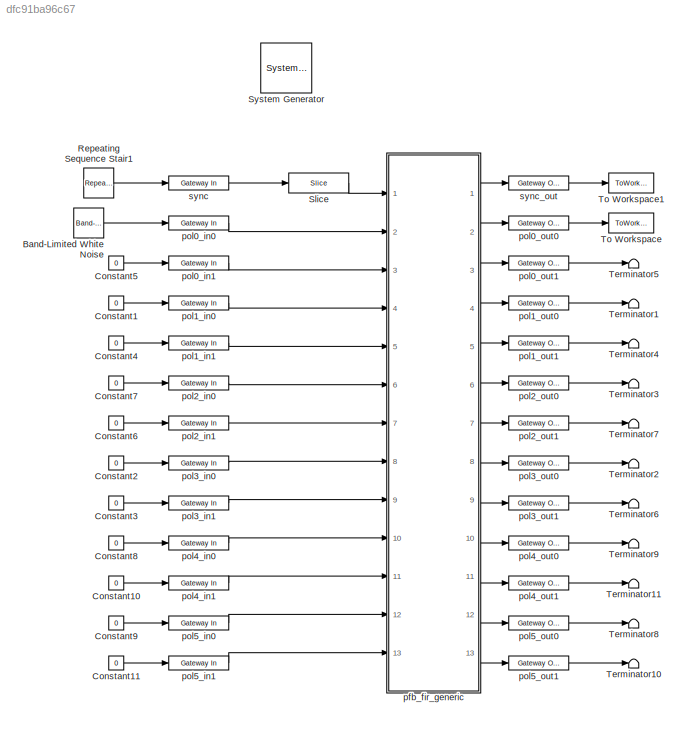
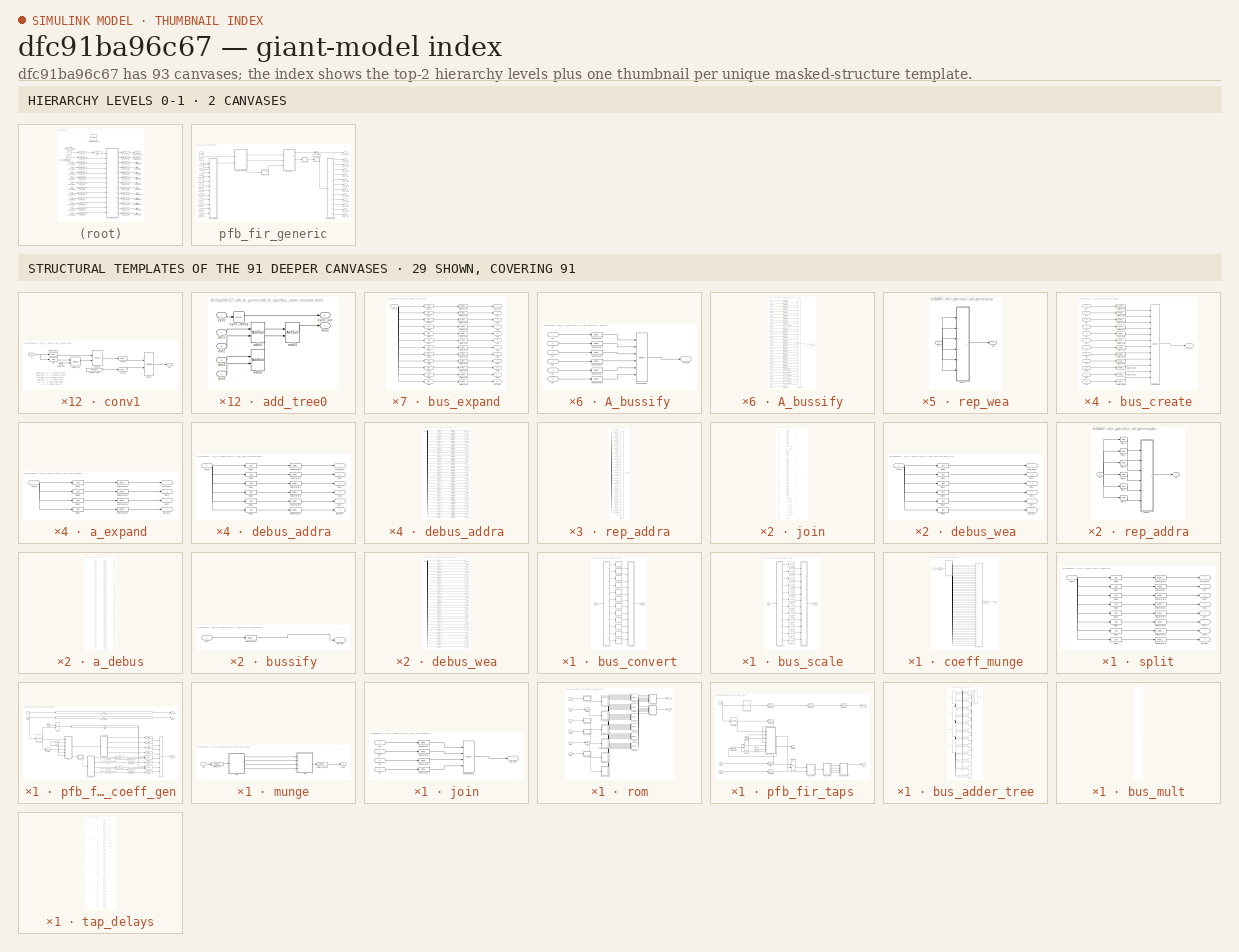
[diagram: thumbnail index - top-2 hierarchy levels (2 canvases) + 29 structural-template representatives of the remaining 91 canvases]
MODEL slx_dfc91ba96c67
KIND model
CONFIG AbsTol = auto
CONFIG EnableMultiTasking = on
CONFIG FixedStep = auto
CONFIG MaxStep = auto
CONFIG MinStep = auto
CONFIG RelTol = 1e-3
CONFIG SampleTimeConstraint = Unconstrained
CONFIG Solver = ode45
CONFIG SolverName = ode45
CONFIG StartTime = 0.0
CONFIG StopTime = 10.0
BLOCK [Reference]  System Generator  REF=xbsIndex_r4/ System Generator
  AttributesFormatString = System\nGenerator
  Ports = []
  SourceBlock = xbsIndex_r4/ System Generator
  SourceType = Xilinx System Generator Block
  Tag = genX
  UserDataPersistent = on
BLOCK [Reference] Band-Limited White Noise  REF=simulink/Sources/Band-Limited
White Noise
  Ports = [0, 1]
  SourceBlock = simulink/Sources/Band-Limited\nWhite Noise
  SourceType = Band-Limited White Noise.
BLOCK [Constant] Constant1
  Value = 0
BLOCK [Constant] Constant10
  Value = 0
BLOCK [Constant] Constant11
  Value = 0
BLOCK [Constant] Constant2
  Value = 0
BLOCK [Constant] Constant3
  Value = 0
BLOCK [Constant] Constant4
  Value = 0
BLOCK [Constant] Constant5
  Value = 0
BLOCK [Constant] Constant6
  Value = 0
BLOCK [Constant] Constant7
  Value = 0
BLOCK [Constant] Constant8
  Value = 0
BLOCK [Constant] Constant9
  Value = 0
BLOCK [Reference] Repeating Sequence Stair1  REF=simulink/Sources/Repeating
Sequence
Stair
  Ports = [0, 1]
  SourceBlock = simulink/Sources/Repeating\nSequence\nStair
  SourceType = Repeating Sequence Stair
BLOCK [Reference] Slice  REF=xbsIndex_r4/Slice
  Ports = [1, 1]
  SourceBlock = xbsIndex_r4/Slice
  SourceType = Xilinx Bit Slice Extractor Block
BLOCK [Terminator] Terminator1
BLOCK [Terminator] Terminator10
BLOCK [Terminator] Terminator11
BLOCK [Terminator] Terminator2
BLOCK [Terminator] Terminator3
BLOCK [Terminator] Terminator4
BLOCK [Terminator] Terminator5
BLOCK [Terminator] Terminator6
BLOCK [Terminator] Terminator7
BLOCK [Terminator] Terminator8
BLOCK [Terminator] Terminator9
BLOCK [ToWorkspace] To Workspace
  MaxDataPoints = inf
  Ports = [1]
  SampleTime = -1
  VariableName = pfbout
BLOCK [ToWorkspace] To Workspace1
  MaxDataPoints = inf
  Ports = [1]
  SampleTime = -1
  VariableName = pfbsync
BLOCK [SubSystem] pfb_fir_generic
  AncestorBlock = casper_library_pfbs/pfb_fir_generic
  Ports = [13, 13]
  RequestExecContextInheritance = off
  Tag = casper:pfb_fir_generic
  UserDataPersistent = on
  Variant = off
BLOCK [SubSystem] pfb_fir_generic/bus_convert
  AncestorBlock = casper_library_bus/bus_convert
  Ports = [1, 1]
  RequestExecContextInheritance = off
  UserDataPersistent = on
  Variant = off
BLOCK [SubSystem] pfb_fir_generic/bus_convert/bussify
  AncestorBlock = casper_library_flow_control/bus_create
  Ports = [12, 1]
  RequestExecContextInheritance = off
  UserDataPersistent = on
  Variant = off
BLOCK [Outport] pfb_fir_generic/bus_convert/bussify/bus_out
  IconDisplay = Port number
BLOCK [Reference] pfb_fir_generic/bus_convert/bussify/concatenate  REF=xbsIndex_r4/Concat
  Ports = [12, 1]
  SourceBlock = xbsIndex_r4/Concat
  SourceType = Xilinx Bus Concatenator Block
BLOCK [Inport] pfb_fir_generic/bus_convert/bussify/in1
  IconDisplay = Port number
BLOCK [Inport] pfb_fir_generic/bus_convert/bussify/in10
  IconDisplay = Port number
  Port = 10
BLOCK [Inport] pfb_fir_generic/bus_convert/bussify/in11
  IconDisplay = Port number
  Port = 11
BLOCK [Inport] pfb_fir_generic/bus_convert/bussify/in12
  IconDisplay = Port number
  Port = 12
BLOCK [Inport] pfb_fir_generic/bus_convert/bussify/in2
  IconDisplay = Port number
  Port = 2
BLOCK [Inport] pfb_fir_generic/bus_convert/bussify/in3
  IconDisplay = Port number
  Port = 3
BLOCK [Inport] pfb_fir_generic/bus_convert/bussify/in4
  IconDisplay = Port number
  Port = 4
BLOCK [Inport] pfb_fir_generic/bus_convert/bussify/in5
  IconDisplay = Port number
  Port = 5
BLOCK [Inport] pfb_fir_generic/bus_convert/bussify/in6
  IconDisplay = Port number
  Port = 6
BLOCK [Inport] pfb_fir_generic/bus_convert/bussify/in7
  IconDisplay = Port number
  Port = 7
BLOCK [Inport] pfb_fir_generic/bus_convert/bussify/in8
  IconDisplay = Port number
  Port = 8
BLOCK [Inport] pfb_fir_generic/bus_convert/bussify/in9
  IconDisplay = Port number
  Port = 9
BLOCK [Reference] pfb_fir_generic/bus_convert/bussify/reinterpret1  REF=xbsIndex_r4/Reinterpret
  Ports = [1, 1]
  SourceBlock = xbsIndex_r4/Reinterpret
  SourceType = Xilinx Type Reinterpreter Block
BLOCK [Reference] pfb_fir_generic/bus_convert/bussify/reinterpret10  REF=xbsIndex_r4/Reinterpret
  Ports = [1, 1]
  SourceBlock = xbsIndex_r4/Reinterpret
  SourceType = Xilinx Type Reinterpreter Block
BLOCK [Reference] pfb_fir_generic/bus_convert/bussify/reinterpret11  REF=xbsIndex_r4/Reinterpret
  Ports = [1, 1]
  SourceBlock = xbsIndex_r4/Reinterpret
  SourceType = Xilinx Type Reinterpreter Block
BLOCK [Reference] pfb_fir_generic/bus_convert/bussify/reinterpret12  REF=xbsIndex_r4/Reinterpret
  Ports = [1, 1]
  SourceBlock = xbsIndex_r4/Reinterpret
  SourceType = Xilinx Type Reinterpreter Block
BLOCK [Reference] pfb_fir_generic/bus_convert/bussify/reinterpret2  REF=xbsIndex_r4/Reinterpret
  Ports = [1, 1]
  SourceBlock = xbsIndex_r4/Reinterpret
  SourceType = Xilinx Type Reinterpreter Block
BLOCK [Reference] pfb_fir_generic/bus_convert/bussify/reinterpret3  REF=xbsIndex_r4/Reinterpret
  Ports = [1, 1]
  SourceBlock = xbsIndex_r4/Reinterpret
  SourceType = Xilinx Type Reinterpreter Block
BLOCK [Reference] pfb_fir_generic/bus_convert/bussify/reinterpret4  REF=xbsIndex_r4/Reinterpret
  Ports = [1, 1]
  SourceBlock = xbsIndex_r4/Reinterpret
  SourceType = Xilinx Type Reinterpreter Block
BLOCK [Reference] pfb_fir_generic/bus_convert/bussify/reinterpret5  REF=xbsIndex_r4/Reinterpret
  Ports = [1, 1]
  SourceBlock = xbsIndex_r4/Reinterpret
  SourceType = Xilinx Type Reinterpreter Block
BLOCK [Reference] pfb_fir_generic/bus_convert/bussify/reinterpret6  REF=xbsIndex_r4/Reinterpret
  Ports = [1, 1]
  SourceBlock = xbsIndex_r4/Reinterpret
  SourceType = Xilinx Type Reinterpreter Block
BLOCK [Reference] pfb_fir_generic/bus_convert/bussify/reinterpret7  REF=xbsIndex_r4/Reinterpret
  Ports = [1, 1]
  SourceBlock = xbsIndex_r4/Reinterpret
  SourceType = Xilinx Type Reinterpreter Block
BLOCK [Reference] pfb_fir_generic/bus_convert/bussify/reinterpret8  REF=xbsIndex_r4/Reinterpret
  Ports = [1, 1]
  SourceBlock = xbsIndex_r4/Reinterpret
  SourceType = Xilinx Type Reinterpreter Block
BLOCK [Reference] pfb_fir_generic/bus_convert/bussify/reinterpret9  REF=xbsIndex_r4/Reinterpret
  Ports = [1, 1]
  SourceBlock = xbsIndex_r4/Reinterpret
  SourceType = Xilinx Type Reinterpreter Block
BLOCK [SubSystem] pfb_fir_generic/bus_convert/conv1
  AncestorBlock = casper_library_misc/convert
  AttributesFormatString = N_19 ==> 12_11\nround even, wrap\nlatency = 1
  Ports = [1, 1]
  RequestExecContextInheritance = off
  UserDataPersistent = on
  Variant = off
BLOCK [Reference] pfb_fir_generic/bus_convert/conv1/Concat  REF=xbsIndex_r4/Concat
  Ports = [2, 1]
  SourceBlock = xbsIndex_r4/Concat
  SourceType = Xilinx Bus Concatenator Block
BLOCK [Reference] pfb_fir_generic/bus_convert/conv1/Constant  REF=xbsIndex_r4/Constant
  Ports = [0, 1]
  SourceBlock = xbsIndex_r4/Constant
  SourceType = Xilinx Constant Block Block
BLOCK [Reference] pfb_fir_generic/bus_convert/conv1/Reinterpret  REF=xbsIndex_r4/Reinterpret
  Ports = [1, 1]
  SourceBlock = xbsIndex_r4/Reinterpret
  SourceType = Xilinx Type Reinterpreter Block
BLOCK [Reference] pfb_fir_generic/bus_convert/conv1/adder  REF=xbsIndex_r4/AddSub
  Ports = [2, 1]
  SourceBlock = xbsIndex_r4/AddSub
  SourceType = Xilinx Adder/Subtracter Block
BLOCK [Reference] pfb_fir_generic/bus_convert/conv1/almost_half  REF=xbsIndex_r4/Constant
  Ports = [0, 1]
  SourceBlock = xbsIndex_r4/Constant
  SourceType = Xilinx Constant Block Block
BLOCK [Reference] pfb_fir_generic/bus_convert/conv1/bit  REF=xbsIndex_r4/Slice
  Ports = [1, 1]
  SourceBlock = xbsIndex_r4/Slice
  SourceType = Xilinx Bit Slice Extractor Block
BLOCK [Reference] pfb_fir_generic/bus_convert/conv1/force1  REF=xbsIndex_r4/Reinterpret
  Ports = [1, 1]
  SourceBlock = xbsIndex_r4/Reinterpret
  SourceType = Xilinx Type Reinterpreter Block
BLOCK [Reference] pfb_fir_generic/bus_convert/conv1/force2  REF=xbsIndex_r4/Reinterpret
  Ports = [1, 1]
  SourceBlock = xbsIndex_r4/Reinterpret
  SourceType = Xilinx Type Reinterpreter Block
BLOCK [Inport] pfb_fir_generic/bus_convert/conv1/in
  IconDisplay = Port number
BLOCK [Outport] pfb_fir_generic/bus_convert/conv1/out
  IconDisplay = Port number
BLOCK [Reference] pfb_fir_generic/bus_convert/conv1/tweak_op  REF=xbsIndex_r4/Logical
  Ports = [2, 1]
  SourceBlock = xbsIndex_r4/Logical
  SourceType = Xilinx Logical Block Block
BLOCK [SubSystem] pfb_fir_generic/bus_convert/conv10
  AncestorBlock = casper_library_misc/convert
  AttributesFormatString = N_19 ==> 12_11\nround even, wrap\nlatency = 1
  Ports = [1, 1]
  RequestExecContextInheritance = off
  UserDataPersistent = on
  Variant = off
BLOCK [Reference] pfb_fir_generic/bus_convert/conv10/Concat  REF=xbsIndex_r4/Concat
  Ports = [2, 1]
  SourceBlock = xbsIndex_r4/Concat
  SourceType = Xilinx Bus Concatenator Block
BLOCK [Reference] pfb_fir_generic/bus_convert/conv10/Constant  REF=xbsIndex_r4/Constant
  Ports = [0, 1]
  SourceBlock = xbsIndex_r4/Constant
  SourceType = Xilinx Constant Block Block
BLOCK [Reference] pfb_fir_generic/bus_convert/conv10/Reinterpret  REF=xbsIndex_r4/Reinterpret
  Ports = [1, 1]
  SourceBlock = xbsIndex_r4/Reinterpret
  SourceType = Xilinx Type Reinterpreter Block
BLOCK [Reference] pfb_fir_generic/bus_convert/conv10/adder  REF=xbsIndex_r4/AddSub
  Ports = [2, 1]
  SourceBlock = xbsIndex_r4/AddSub
  SourceType = Xilinx Adder/Subtracter Block
BLOCK [Reference] pfb_fir_generic/bus_convert/conv10/almost_half  REF=xbsIndex_r4/Constant
  Ports = [0, 1]
  SourceBlock = xbsIndex_r4/Constant
  SourceType = Xilinx Constant Block Block
BLOCK [Reference] pfb_fir_generic/bus_convert/conv10/bit  REF=xbsIndex_r4/Slice
  Ports = [1, 1]
  SourceBlock = xbsIndex_r4/Slice
  SourceType = Xilinx Bit Slice Extractor Block
BLOCK [Reference] pfb_fir_generic/bus_convert/conv10/force1  REF=xbsIndex_r4/Reinterpret
  Ports = [1, 1]
  SourceBlock = xbsIndex_r4/Reinterpret
  SourceType = Xilinx Type Reinterpreter Block
BLOCK [Reference] pfb_fir_generic/bus_convert/conv10/force2  REF=xbsIndex_r4/Reinterpret
  Ports = [1, 1]
  SourceBlock = xbsIndex_r4/Reinterpret
  SourceType = Xilinx Type Reinterpreter Block
BLOCK [Inport] pfb_fir_generic/bus_convert/conv10/in
  IconDisplay = Port number
BLOCK [Outport] pfb_fir_generic/bus_convert/conv10/out
  IconDisplay = Port number
BLOCK [Reference] pfb_fir_generic/bus_convert/conv10/tweak_op  REF=xbsIndex_r4/Logical
  Ports = [2, 1]
  SourceBlock = xbsIndex_r4/Logical
  SourceType = Xilinx Logical Block Block
BLOCK [SubSystem] pfb_fir_generic/bus_convert/conv11
  AncestorBlock = casper_library_misc/convert
  AttributesFormatString = N_19 ==> 12_11\nround even, wrap\nlatency = 1
  Ports = [1, 1]
  RequestExecContextInheritance = off
  UserDataPersistent = on
  Variant = off
BLOCK [Reference] pfb_fir_generic/bus_convert/conv11/Concat  REF=xbsIndex_r4/Concat
  Ports = [2, 1]
  SourceBlock = xbsIndex_r4/Concat
  SourceType = Xilinx Bus Concatenator Block
BLOCK [Reference] pfb_fir_generic/bus_convert/conv11/Constant  REF=xbsIndex_r4/Constant
  Ports = [0, 1]
  SourceBlock = xbsIndex_r4/Constant
  SourceType = Xilinx Constant Block Block
BLOCK [Reference] pfb_fir_generic/bus_convert/conv11/Reinterpret  REF=xbsIndex_r4/Reinterpret
  Ports = [1, 1]
  SourceBlock = xbsIndex_r4/Reinterpret
  SourceType = Xilinx Type Reinterpreter Block
BLOCK [Reference] pfb_fir_generic/bus_convert/conv11/adder  REF=xbsIndex_r4/AddSub
  Ports = [2, 1]
  SourceBlock = xbsIndex_r4/AddSub
  SourceType = Xilinx Adder/Subtracter Block
BLOCK [Reference] pfb_fir_generic/bus_convert/conv11/almost_half  REF=xbsIndex_r4/Constant
  Ports = [0, 1]
  SourceBlock = xbsIndex_r4/Constant
  SourceType = Xilinx Constant Block Block
BLOCK [Reference] pfb_fir_generic/bus_convert/conv11/bit  REF=xbsIndex_r4/Slice
  Ports = [1, 1]
  SourceBlock = xbsIndex_r4/Slice
  SourceType = Xilinx Bit Slice Extractor Block
BLOCK [Reference] pfb_fir_generic/bus_convert/conv11/force1  REF=xbsIndex_r4/Reinterpret
  Ports = [1, 1]
  SourceBlock = xbsIndex_r4/Reinterpret
  SourceType = Xilinx Type Reinterpreter Block
BLOCK [Reference] pfb_fir_generic/bus_convert/conv11/force2  REF=xbsIndex_r4/Reinterpret
  Ports = [1, 1]
  SourceBlock = xbsIndex_r4/Reinterpret
  SourceType = Xilinx Type Reinterpreter Block
BLOCK [Inport] pfb_fir_generic/bus_convert/conv11/in
  IconDisplay = Port number
BLOCK [Outport] pfb_fir_generic/bus_convert/conv11/out
  IconDisplay = Port number
BLOCK [Reference] pfb_fir_generic/bus_convert/conv11/tweak_op  REF=xbsIndex_r4/Logical
  Ports = [2, 1]
  SourceBlock = xbsIndex_r4/Logical
  SourceType = Xilinx Logical Block Block
BLOCK [SubSystem] pfb_fir_generic/bus_convert/conv12
  AncestorBlock = casper_library_misc/convert
  AttributesFormatString = N_19 ==> 12_11\nround even, wrap\nlatency = 1
  Ports = [1, 1]
  RequestExecContextInheritance = off
  UserDataPersistent = on
  Variant = off
BLOCK [Reference] pfb_fir_generic/bus_convert/conv12/Concat  REF=xbsIndex_r4/Concat
  Ports = [2, 1]
  SourceBlock = xbsIndex_r4/Concat
  SourceType = Xilinx Bus Concatenator Block
BLOCK [Reference] pfb_fir_generic/bus_convert/conv12/Constant  REF=xbsIndex_r4/Constant
  Ports = [0, 1]
  SourceBlock = xbsIndex_r4/Constant
  SourceType = Xilinx Constant Block Block
BLOCK [Reference] pfb_fir_generic/bus_convert/conv12/Reinterpret  REF=xbsIndex_r4/Reinterpret
  Ports = [1, 1]
  SourceBlock = xbsIndex_r4/Reinterpret
  SourceType = Xilinx Type Reinterpreter Block
BLOCK [Reference] pfb_fir_generic/bus_convert/conv12/adder  REF=xbsIndex_r4/AddSub
  Ports = [2, 1]
  SourceBlock = xbsIndex_r4/AddSub
  SourceType = Xilinx Adder/Subtracter Block
BLOCK [Reference] pfb_fir_generic/bus_convert/conv12/almost_half  REF=xbsIndex_r4/Constant
  Ports = [0, 1]
  SourceBlock = xbsIndex_r4/Constant
  SourceType = Xilinx Constant Block Block
BLOCK [Reference] pfb_fir_generic/bus_convert/conv12/bit  REF=xbsIndex_r4/Slice
  Ports = [1, 1]
  SourceBlock = xbsIndex_r4/Slice
  SourceType = Xilinx Bit Slice Extractor Block
BLOCK [Reference] pfb_fir_generic/bus_convert/conv12/force1  REF=xbsIndex_r4/Reinterpret
  Ports = [1, 1]
  SourceBlock = xbsIndex_r4/Reinterpret
  SourceType = Xilinx Type Reinterpreter Block
BLOCK [Reference] pfb_fir_generic/bus_convert/conv12/force2  REF=xbsIndex_r4/Reinterpret
  Ports = [1, 1]
  SourceBlock = xbsIndex_r4/Reinterpret
  SourceType = Xilinx Type Reinterpreter Block
BLOCK [Inport] pfb_fir_generic/bus_convert/conv12/in
  IconDisplay = Port number
BLOCK [Outport] pfb_fir_generic/bus_convert/conv12/out
  IconDisplay = Port number
BLOCK [Reference] pfb_fir_generic/bus_convert/conv12/tweak_op  REF=xbsIndex_r4/Logical
  Ports = [2, 1]
  SourceBlock = xbsIndex_r4/Logical
  SourceType = Xilinx Logical Block Block
BLOCK [SubSystem] pfb_fir_generic/bus_convert/conv2
  AncestorBlock = casper_library_misc/convert
  AttributesFormatString = N_19 ==> 12_11\nround even, wrap\nlatency = 1
  Ports = [1, 1]
  RequestExecContextInheritance = off
  UserDataPersistent = on
  Variant = off
BLOCK [Reference] pfb_fir_generic/bus_convert/conv2/Concat  REF=xbsIndex_r4/Concat
  Ports = [2, 1]
  SourceBlock = xbsIndex_r4/Concat
  SourceType = Xilinx Bus Concatenator Block
BLOCK [Reference] pfb_fir_generic/bus_convert/conv2/Constant  REF=xbsIndex_r4/Constant
  Ports = [0, 1]
  SourceBlock = xbsIndex_r4/Constant
  SourceType = Xilinx Constant Block Block
BLOCK [Reference] pfb_fir_generic/bus_convert/conv2/Reinterpret  REF=xbsIndex_r4/Reinterpret
  Ports = [1, 1]
  SourceBlock = xbsIndex_r4/Reinterpret
  SourceType = Xilinx Type Reinterpreter Block
BLOCK [Reference] pfb_fir_generic/bus_convert/conv2/adder  REF=xbsIndex_r4/AddSub
  Ports = [2, 1]
  SourceBlock = xbsIndex_r4/AddSub
  SourceType = Xilinx Adder/Subtracter Block
BLOCK [Reference] pfb_fir_generic/bus_convert/conv2/almost_half  REF=xbsIndex_r4/Constant
  Ports = [0, 1]
  SourceBlock = xbsIndex_r4/Constant
  SourceType = Xilinx Constant Block Block
BLOCK [Reference] pfb_fir_generic/bus_convert/conv2/bit  REF=xbsIndex_r4/Slice
  Ports = [1, 1]
  SourceBlock = xbsIndex_r4/Slice
  SourceType = Xilinx Bit Slice Extractor Block
BLOCK [Reference] pfb_fir_generic/bus_convert/conv2/force1  REF=xbsIndex_r4/Reinterpret
  Ports = [1, 1]
  SourceBlock = xbsIndex_r4/Reinterpret
  SourceType = Xilinx Type Reinterpreter Block
BLOCK [Reference] pfb_fir_generic/bus_convert/conv2/force2  REF=xbsIndex_r4/Reinterpret
  Ports = [1, 1]
  SourceBlock = xbsIndex_r4/Reinterpret
  SourceType = Xilinx Type Reinterpreter Block
BLOCK [Inport] pfb_fir_generic/bus_convert/conv2/in
  IconDisplay = Port number
BLOCK [Outport] pfb_fir_generic/bus_convert/conv2/out
  IconDisplay = Port number
BLOCK [Reference] pfb_fir_generic/bus_convert/conv2/tweak_op  REF=xbsIndex_r4/Logical
  Ports = [2, 1]
  SourceBlock = xbsIndex_r4/Logical
  SourceType = Xilinx Logical Block Block
BLOCK [SubSystem] pfb_fir_generic/bus_convert/conv3
  AncestorBlock = casper_library_misc/convert
  AttributesFormatString = N_19 ==> 12_11\nround even, wrap\nlatency = 1
  Ports = [1, 1]
  RequestExecContextInheritance = off
  UserDataPersistent = on
  Variant = off
BLOCK [Reference] pfb_fir_generic/bus_convert/conv3/Concat  REF=xbsIndex_r4/Concat
  Ports = [2, 1]
  SourceBlock = xbsIndex_r4/Concat
  SourceType = Xilinx Bus Concatenator Block
BLOCK [Reference] pfb_fir_generic/bus_convert/conv3/Constant  REF=xbsIndex_r4/Constant
  Ports = [0, 1]
  SourceBlock = xbsIndex_r4/Constant
  SourceType = Xilinx Constant Block Block
BLOCK [Reference] pfb_fir_generic/bus_convert/conv3/Reinterpret  REF=xbsIndex_r4/Reinterpret
  Ports = [1, 1]
  SourceBlock = xbsIndex_r4/Reinterpret
  SourceType = Xilinx Type Reinterpreter Block
BLOCK [Reference] pfb_fir_generic/bus_convert/conv3/adder  REF=xbsIndex_r4/AddSub
  Ports = [2, 1]
  SourceBlock = xbsIndex_r4/AddSub
  SourceType = Xilinx Adder/Subtracter Block
BLOCK [Reference] pfb_fir_generic/bus_convert/conv3/almost_half  REF=xbsIndex_r4/Constant
  Ports = [0, 1]
  SourceBlock = xbsIndex_r4/Constant
  SourceType = Xilinx Constant Block Block
BLOCK [Reference] pfb_fir_generic/bus_convert/conv3/bit  REF=xbsIndex_r4/Slice
  Ports = [1, 1]
  SourceBlock = xbsIndex_r4/Slice
  SourceType = Xilinx Bit Slice Extractor Block
BLOCK [Reference] pfb_fir_generic/bus_convert/conv3/force1  REF=xbsIndex_r4/Reinterpret
  Ports = [1, 1]
  SourceBlock = xbsIndex_r4/Reinterpret
  SourceType = Xilinx Type Reinterpreter Block
BLOCK [Reference] pfb_fir_generic/bus_convert/conv3/force2  REF=xbsIndex_r4/Reinterpret
  Ports = [1, 1]
  SourceBlock = xbsIndex_r4/Reinterpret
  SourceType = Xilinx Type Reinterpreter Block
BLOCK [Inport] pfb_fir_generic/bus_convert/conv3/in
  IconDisplay = Port number
BLOCK [Outport] pfb_fir_generic/bus_convert/conv3/out
  IconDisplay = Port number
BLOCK [Reference] pfb_fir_generic/bus_convert/conv3/tweak_op  REF=xbsIndex_r4/Logical
  Ports = [2, 1]
  SourceBlock = xbsIndex_r4/Logical
  SourceType = Xilinx Logical Block Block
BLOCK [SubSystem] pfb_fir_generic/bus_convert/conv4
  AncestorBlock = casper_library_misc/convert
  AttributesFormatString = N_19 ==> 12_11\nround even, wrap\nlatency = 1
  Ports = [1, 1]
  RequestExecContextInheritance = off
  UserDataPersistent = on
  Variant = off
BLOCK [Reference] pfb_fir_generic/bus_convert/conv4/Concat  REF=xbsIndex_r4/Concat
  Ports = [2, 1]
  SourceBlock = xbsIndex_r4/Concat
  SourceType = Xilinx Bus Concatenator Block
BLOCK [Reference] pfb_fir_generic/bus_convert/conv4/Constant  REF=xbsIndex_r4/Constant
  Ports = [0, 1]
  SourceBlock = xbsIndex_r4/Constant
  SourceType = Xilinx Constant Block Block
BLOCK [Reference] pfb_fir_generic/bus_convert/conv4/Reinterpret  REF=xbsIndex_r4/Reinterpret
  Ports = [1, 1]
  SourceBlock = xbsIndex_r4/Reinterpret
  SourceType = Xilinx Type Reinterpreter Block
BLOCK [Reference] pfb_fir_generic/bus_convert/conv4/adder  REF=xbsIndex_r4/AddSub
  Ports = [2, 1]
  SourceBlock = xbsIndex_r4/AddSub
  SourceType = Xilinx Adder/Subtracter Block
BLOCK [Reference] pfb_fir_generic/bus_convert/conv4/almost_half  REF=xbsIndex_r4/Constant
  Ports = [0, 1]
  SourceBlock = xbsIndex_r4/Constant
  SourceType = Xilinx Constant Block Block
BLOCK [Reference] pfb_fir_generic/bus_convert/conv4/bit  REF=xbsIndex_r4/Slice
  Ports = [1, 1]
  SourceBlock = xbsIndex_r4/Slice
  SourceType = Xilinx Bit Slice Extractor Block
BLOCK [Reference] pfb_fir_generic/bus_convert/conv4/force1  REF=xbsIndex_r4/Reinterpret
  Ports = [1, 1]
  SourceBlock = xbsIndex_r4/Reinterpret
  SourceType = Xilinx Type Reinterpreter Block
BLOCK [Reference] pfb_fir_generic/bus_convert/conv4/force2  REF=xbsIndex_r4/Reinterpret
  Ports = [1, 1]
  SourceBlock = xbsIndex_r4/Reinterpret
  SourceType = Xilinx Type Reinterpreter Block
BLOCK [Inport] pfb_fir_generic/bus_convert/conv4/in
  IconDisplay = Port number
BLOCK [Outport] pfb_fir_generic/bus_convert/conv4/out
  IconDisplay = Port number
BLOCK [Reference] pfb_fir_generic/bus_convert/conv4/tweak_op  REF=xbsIndex_r4/Logical
  Ports = [2, 1]
  SourceBlock = xbsIndex_r4/Logical
  SourceType = Xilinx Logical Block Block
BLOCK [SubSystem] pfb_fir_generic/bus_convert/conv5
  AncestorBlock = casper_library_misc/convert
  AttributesFormatString = N_19 ==> 12_11\nround even, wrap\nlatency = 1
  Ports = [1, 1]
  RequestExecContextInheritance = off
  UserDataPersistent = on
  Variant = off
BLOCK [Reference] pfb_fir_generic/bus_convert/conv5/Concat  REF=xbsIndex_r4/Concat
  Ports = [2, 1]
  SourceBlock = xbsIndex_r4/Concat
  SourceType = Xilinx Bus Concatenator Block
BLOCK [Reference] pfb_fir_generic/bus_convert/conv5/Constant  REF=xbsIndex_r4/Constant
  Ports = [0, 1]
  SourceBlock = xbsIndex_r4/Constant
  SourceType = Xilinx Constant Block Block
BLOCK [Reference] pfb_fir_generic/bus_convert/conv5/Reinterpret  REF=xbsIndex_r4/Reinterpret
  Ports = [1, 1]
  SourceBlock = xbsIndex_r4/Reinterpret
  SourceType = Xilinx Type Reinterpreter Block
BLOCK [Reference] pfb_fir_generic/bus_convert/conv5/adder  REF=xbsIndex_r4/AddSub
  Ports = [2, 1]
  SourceBlock = xbsIndex_r4/AddSub
  SourceType = Xilinx Adder/Subtracter Block
BLOCK [Reference] pfb_fir_generic/bus_convert/conv5/almost_half  REF=xbsIndex_r4/Constant
  Ports = [0, 1]
  SourceBlock = xbsIndex_r4/Constant
  SourceType = Xilinx Constant Block Block
BLOCK [Reference] pfb_fir_generic/bus_convert/conv5/bit  REF=xbsIndex_r4/Slice
  Ports = [1, 1]
  SourceBlock = xbsIndex_r4/Slice
  SourceType = Xilinx Bit Slice Extractor Block
BLOCK [Reference] pfb_fir_generic/bus_convert/conv5/force1  REF=xbsIndex_r4/Reinterpret
  Ports = [1, 1]
  SourceBlock = xbsIndex_r4/Reinterpret
  SourceType = Xilinx Type Reinterpreter Block
BLOCK [Reference] pfb_fir_generic/bus_convert/conv5/force2  REF=xbsIndex_r4/Reinterpret
  Ports = [1, 1]
  SourceBlock = xbsIndex_r4/Reinterpret
  SourceType = Xilinx Type Reinterpreter Block
BLOCK [Inport] pfb_fir_generic/bus_convert/conv5/in
  IconDisplay = Port number
BLOCK [Outport] pfb_fir_generic/bus_convert/conv5/out
  IconDisplay = Port number
BLOCK [Reference] pfb_fir_generic/bus_convert/conv5/tweak_op  REF=xbsIndex_r4/Logical
  Ports = [2, 1]
  SourceBlock = xbsIndex_r4/Logical
  SourceType = Xilinx Logical Block Block
BLOCK [SubSystem] pfb_fir_generic/bus_convert/conv6
  AncestorBlock = casper_library_misc/convert
  AttributesFormatString = N_19 ==> 12_11\nround even, wrap\nlatency = 1
  Ports = [1, 1]
  RequestExecContextInheritance = off
  UserDataPersistent = on
  Variant = off
BLOCK [Reference] pfb_fir_generic/bus_convert/conv6/Concat  REF=xbsIndex_r4/Concat
  Ports = [2, 1]
  SourceBlock = xbsIndex_r4/Concat
  SourceType = Xilinx Bus Concatenator Block
BLOCK [Reference] pfb_fir_generic/bus_convert/conv6/Constant  REF=xbsIndex_r4/Constant
  Ports = [0, 1]
  SourceBlock = xbsIndex_r4/Constant
  SourceType = Xilinx Constant Block Block
BLOCK [Reference] pfb_fir_generic/bus_convert/conv6/Reinterpret  REF=xbsIndex_r4/Reinterpret
  Ports = [1, 1]
  SourceBlock = xbsIndex_r4/Reinterpret
  SourceType = Xilinx Type Reinterpreter Block
BLOCK [Reference] pfb_fir_generic/bus_convert/conv6/adder  REF=xbsIndex_r4/AddSub
  Ports = [2, 1]
  SourceBlock = xbsIndex_r4/AddSub
  SourceType = Xilinx Adder/Subtracter Block
BLOCK [Reference] pfb_fir_generic/bus_convert/conv6/almost_half  REF=xbsIndex_r4/Constant
  Ports = [0, 1]
  SourceBlock = xbsIndex_r4/Constant
  SourceType = Xilinx Constant Block Block
BLOCK [Reference] pfb_fir_generic/bus_convert/conv6/bit  REF=xbsIndex_r4/Slice
  Ports = [1, 1]
  SourceBlock = xbsIndex_r4/Slice
  SourceType = Xilinx Bit Slice Extractor Block
BLOCK [Reference] pfb_fir_generic/bus_convert/conv6/force1  REF=xbsIndex_r4/Reinterpret
  Ports = [1, 1]
  SourceBlock = xbsIndex_r4/Reinterpret
  SourceType = Xilinx Type Reinterpreter Block
BLOCK [Reference] pfb_fir_generic/bus_convert/conv6/force2  REF=xbsIndex_r4/Reinterpret
  Ports = [1, 1]
  SourceBlock = xbsIndex_r4/Reinterpret
  SourceType = Xilinx Type Reinterpreter Block
BLOCK [Inport] pfb_fir_generic/bus_convert/conv6/in
  IconDisplay = Port number
BLOCK [Outport] pfb_fir_generic/bus_convert/conv6/out
  IconDisplay = Port number
BLOCK [Reference] pfb_fir_generic/bus_convert/conv6/tweak_op  REF=xbsIndex_r4/Logical
  Ports = [2, 1]
  SourceBlock = xbsIndex_r4/Logical
  SourceType = Xilinx Logical Block Block
BLOCK [SubSystem] pfb_fir_generic/bus_convert/conv7
  AncestorBlock = casper_library_misc/convert
  AttributesFormatString = N_19 ==> 12_11\nround even, wrap\nlatency = 1
  Ports = [1, 1]
  RequestExecContextInheritance = off
  UserDataPersistent = on
  Variant = off
BLOCK [Reference] pfb_fir_generic/bus_convert/conv7/Concat  REF=xbsIndex_r4/Concat
  Ports = [2, 1]
  SourceBlock = xbsIndex_r4/Concat
  SourceType = Xilinx Bus Concatenator Block
BLOCK [Reference] pfb_fir_generic/bus_convert/conv7/Constant  REF=xbsIndex_r4/Constant
  Ports = [0, 1]
  SourceBlock = xbsIndex_r4/Constant
  SourceType = Xilinx Constant Block Block
BLOCK [Reference] pfb_fir_generic/bus_convert/conv7/Reinterpret  REF=xbsIndex_r4/Reinterpret
  Ports = [1, 1]
  SourceBlock = xbsIndex_r4/Reinterpret
  SourceType = Xilinx Type Reinterpreter Block
BLOCK [Reference] pfb_fir_generic/bus_convert/conv7/adder  REF=xbsIndex_r4/AddSub
  Ports = [2, 1]
  SourceBlock = xbsIndex_r4/AddSub
  SourceType = Xilinx Adder/Subtracter Block
BLOCK [Reference] pfb_fir_generic/bus_convert/conv7/almost_half  REF=xbsIndex_r4/Constant
  Ports = [0, 1]
  SourceBlock = xbsIndex_r4/Constant
  SourceType = Xilinx Constant Block Block
BLOCK [Reference] pfb_fir_generic/bus_convert/conv7/bit  REF=xbsIndex_r4/Slice
  Ports = [1, 1]
  SourceBlock = xbsIndex_r4/Slice
  SourceType = Xilinx Bit Slice Extractor Block
BLOCK [Reference] pfb_fir_generic/bus_convert/conv7/force1  REF=xbsIndex_r4/Reinterpret
  Ports = [1, 1]
  SourceBlock = xbsIndex_r4/Reinterpret
  SourceType = Xilinx Type Reinterpreter Block
BLOCK [Reference] pfb_fir_generic/bus_convert/conv7/force2  REF=xbsIndex_r4/Reinterpret
  Ports = [1, 1]
  SourceBlock = xbsIndex_r4/Reinterpret
  SourceType = Xilinx Type Reinterpreter Block
BLOCK [Inport] pfb_fir_generic/bus_convert/conv7/in
  IconDisplay = Port number
BLOCK [Outport] pfb_fir_generic/bus_convert/conv7/out
  IconDisplay = Port number
BLOCK [Reference] pfb_fir_generic/bus_convert/conv7/tweak_op  REF=xbsIndex_r4/Logical
  Ports = [2, 1]
  SourceBlock = xbsIndex_r4/Logical
  SourceType = Xilinx Logical Block Block
BLOCK [SubSystem] pfb_fir_generic/bus_convert/conv8
  AncestorBlock = casper_library_misc/convert
  AttributesFormatString = N_19 ==> 12_11\nround even, wrap\nlatency = 1
  Ports = [1, 1]
  RequestExecContextInheritance = off
  UserDataPersistent = on
  Variant = off
BLOCK [Reference] pfb_fir_generic/bus_convert/conv8/Concat  REF=xbsIndex_r4/Concat
  Ports = [2, 1]
  SourceBlock = xbsIndex_r4/Concat
  SourceType = Xilinx Bus Concatenator Block
BLOCK [Reference] pfb_fir_generic/bus_convert/conv8/Constant  REF=xbsIndex_r4/Constant
  Ports = [0, 1]
  SourceBlock = xbsIndex_r4/Constant
  SourceType = Xilinx Constant Block Block
BLOCK [Reference] pfb_fir_generic/bus_convert/conv8/Reinterpret  REF=xbsIndex_r4/Reinterpret
  Ports = [1, 1]
  SourceBlock = xbsIndex_r4/Reinterpret
  SourceType = Xilinx Type Reinterpreter Block
BLOCK [Reference] pfb_fir_generic/bus_convert/conv8/adder  REF=xbsIndex_r4/AddSub
  Ports = [2, 1]
  SourceBlock = xbsIndex_r4/AddSub
  SourceType = Xilinx Adder/Subtracter Block
BLOCK [Reference] pfb_fir_generic/bus_convert/conv8/almost_half  REF=xbsIndex_r4/Constant
  Ports = [0, 1]
  SourceBlock = xbsIndex_r4/Constant
  SourceType = Xilinx Constant Block Block
BLOCK [Reference] pfb_fir_generic/bus_convert/conv8/bit  REF=xbsIndex_r4/Slice
  Ports = [1, 1]
  SourceBlock = xbsIndex_r4/Slice
  SourceType = Xilinx Bit Slice Extractor Block
BLOCK [Reference] pfb_fir_generic/bus_convert/conv8/force1  REF=xbsIndex_r4/Reinterpret
  Ports = [1, 1]
  SourceBlock = xbsIndex_r4/Reinterpret
  SourceType = Xilinx Type Reinterpreter Block
BLOCK [Reference] pfb_fir_generic/bus_convert/conv8/force2  REF=xbsIndex_r4/Reinterpret
  Ports = [1, 1]
  SourceBlock = xbsIndex_r4/Reinterpret
  SourceType = Xilinx Type Reinterpreter Block
BLOCK [Inport] pfb_fir_generic/bus_convert/conv8/in
  IconDisplay = Port number
BLOCK [Outport] pfb_fir_generic/bus_convert/conv8/out
  IconDisplay = Port number
BLOCK [Reference] pfb_fir_generic/bus_convert/conv8/tweak_op  REF=xbsIndex_r4/Logical
  Ports = [2, 1]
  SourceBlock = xbsIndex_r4/Logical
  SourceType = Xilinx Logical Block Block
BLOCK [SubSystem] pfb_fir_generic/bus_convert/conv9
  AncestorBlock = casper_library_misc/convert
  AttributesFormatString = N_19 ==> 12_11\nround even, wrap\nlatency = 1
  Ports = [1, 1]
  RequestExecContextInheritance = off
  UserDataPersistent = on
  Variant = off
BLOCK [Reference] pfb_fir_generic/bus_convert/conv9/Concat  REF=xbsIndex_r4/Concat
  Ports = [2, 1]
  SourceBlock = xbsIndex_r4/Concat
  SourceType = Xilinx Bus Concatenator Block
BLOCK [Reference] pfb_fir_generic/bus_convert/conv9/Constant  REF=xbsIndex_r4/Constant
  Ports = [0, 1]
  SourceBlock = xbsIndex_r4/Constant
  SourceType = Xilinx Constant Block Block
BLOCK [Reference] pfb_fir_generic/bus_convert/conv9/Reinterpret  REF=xbsIndex_r4/Reinterpret
  Ports = [1, 1]
  SourceBlock = xbsIndex_r4/Reinterpret
  SourceType = Xilinx Type Reinterpreter Block
BLOCK [Reference] pfb_fir_generic/bus_convert/conv9/adder  REF=xbsIndex_r4/AddSub
  Ports = [2, 1]
  SourceBlock = xbsIndex_r4/AddSub
  SourceType = Xilinx Adder/Subtracter Block
BLOCK [Reference] pfb_fir_generic/bus_convert/conv9/almost_half  REF=xbsIndex_r4/Constant
  Ports = [0, 1]
  SourceBlock = xbsIndex_r4/Constant
  SourceType = Xilinx Constant Block Block
BLOCK [Reference] pfb_fir_generic/bus_convert/conv9/bit  REF=xbsIndex_r4/Slice
  Ports = [1, 1]
  SourceBlock = xbsIndex_r4/Slice
  SourceType = Xilinx Bit Slice Extractor Block
BLOCK [Reference] pfb_fir_generic/bus_convert/conv9/force1  REF=xbsIndex_r4/Reinterpret
  Ports = [1, 1]
  SourceBlock = xbsIndex_r4/Reinterpret
  SourceType = Xilinx Type Reinterpreter Block
BLOCK [Reference] pfb_fir_generic/bus_convert/conv9/force2  REF=xbsIndex_r4/Reinterpret
  Ports = [1, 1]
  SourceBlock = xbsIndex_r4/Reinterpret
  SourceType = Xilinx Type Reinterpreter Block
BLOCK [Inport] pfb_fir_generic/bus_convert/conv9/in
  IconDisplay = Port number
BLOCK [Outport] pfb_fir_generic/bus_convert/conv9/out
  IconDisplay = Port number
BLOCK [Reference] pfb_fir_generic/bus_convert/conv9/tweak_op  REF=xbsIndex_r4/Logical
  Ports = [2, 1]
  SourceBlock = xbsIndex_r4/Logical
  SourceType = Xilinx Logical Block Block
BLOCK [SubSystem] pfb_fir_generic/bus_convert/debus
  AncestorBlock = casper_library_flow_control/bus_expand
  AttributesFormatString = 12 outputs: f22.19,f22.19,f22.19,f22.19,f22.19,f22.19,f22.19,f22.19,f22.19,f22.19,f22.19,f22.19,
  Ports = [1, 12]
  RequestExecContextInheritance = off
  UserDataPersistent = on
  Variant = off
BLOCK [Inport] pfb_fir_generic/bus_convert/debus/bus_in
  IconDisplay = Port number
BLOCK [Outport] pfb_fir_generic/bus_convert/debus/lsb_out1
  IconDisplay = Port number
  Port = 12
BLOCK [Outport] pfb_fir_generic/bus_convert/debus/msb_out12
  IconDisplay = Port number
BLOCK [Outport] pfb_fir_generic/bus_convert/debus/out10
  IconDisplay = Port number
  Port = 3
BLOCK [Outport] pfb_fir_generic/bus_convert/debus/out11
  IconDisplay = Port number
  Port = 2
BLOCK [Outport] pfb_fir_generic/bus_convert/debus/out2
  IconDisplay = Port number
  Port = 11
BLOCK [Outport] pfb_fir_generic/bus_convert/debus/out3
  IconDisplay = Port number
  Port = 10
BLOCK [Outport] pfb_fir_generic/bus_convert/debus/out4
  IconDisplay = Port number
  Port = 9
BLOCK [Outport] pfb_fir_generic/bus_convert/debus/out5
  IconDisplay = Port number
  Port = 8
BLOCK [Outport] pfb_fir_generic/bus_convert/debus/out6
  IconDisplay = Port number
  Port = 7
BLOCK [Outport] pfb_fir_generic/bus_convert/debus/out7
  IconDisplay = Port number
  Port = 6
BLOCK [Outport] pfb_fir_generic/bus_convert/debus/out8
  IconDisplay = Port number
  Port = 5
BLOCK [Outport] pfb_fir_generic/bus_convert/debus/out9
  IconDisplay = Port number
  Port = 4
BLOCK [Reference] pfb_fir_generic/bus_convert/debus/reinterpret1  REF=xbsIndex_r4/Reinterpret
  Ports = [1, 1]
  SourceBlock = xbsIndex_r4/Reinterpret
  SourceType = Xilinx Type Reinterpreter Block
BLOCK [Reference] pfb_fir_generic/bus_convert/debus/reinterpret10  REF=xbsIndex_r4/Reinterpret
  Ports = [1, 1]
  SourceBlock = xbsIndex_r4/Reinterpret
  SourceType = Xilinx Type Reinterpreter Block
BLOCK [Reference] pfb_fir_generic/bus_convert/debus/reinterpret11  REF=xbsIndex_r4/Reinterpret
  Ports = [1, 1]
  SourceBlock = xbsIndex_r4/Reinterpret
  SourceType = Xilinx Type Reinterpreter Block
BLOCK [Reference] pfb_fir_generic/bus_convert/debus/reinterpret12  REF=xbsIndex_r4/Reinterpret
  Ports = [1, 1]
  SourceBlock = xbsIndex_r4/Reinterpret
  SourceType = Xilinx Type Reinterpreter Block
BLOCK [Reference] pfb_fir_generic/bus_convert/debus/reinterpret2  REF=xbsIndex_r4/Reinterpret
  Ports = [1, 1]
  SourceBlock = xbsIndex_r4/Reinterpret
  SourceType = Xilinx Type Reinterpreter Block
BLOCK [Reference] pfb_fir_generic/bus_convert/debus/reinterpret3  REF=xbsIndex_r4/Reinterpret
  Ports = [1, 1]
  SourceBlock = xbsIndex_r4/Reinterpret
  SourceType = Xilinx Type Reinterpreter Block
BLOCK [Reference] pfb_fir_generic/bus_convert/debus/reinterpret4  REF=xbsIndex_r4/Reinterpret
  Ports = [1, 1]
  SourceBlock = xbsIndex_r4/Reinterpret
  SourceType = Xilinx Type Reinterpreter Block
BLOCK [Reference] pfb_fir_generic/bus_convert/debus/reinterpret5  REF=xbsIndex_r4/Reinterpret
  Ports = [1, 1]
  SourceBlock = xbsIndex_r4/Reinterpret
  SourceType = Xilinx Type Reinterpreter Block
BLOCK [Reference] pfb_fir_generic/bus_convert/debus/reinterpret6  REF=xbsIndex_r4/Reinterpret
  Ports = [1, 1]
  SourceBlock = xbsIndex_r4/Reinterpret
  SourceType = Xilinx Type Reinterpreter Block
BLOCK [Reference] pfb_fir_generic/bus_convert/debus/reinterpret7  REF=xbsIndex_r4/Reinterpret
  Ports = [1, 1]
  SourceBlock = xbsIndex_r4/Reinterpret
  SourceType = Xilinx Type Reinterpreter Block
BLOCK [Reference] pfb_fir_generic/bus_convert/debus/reinterpret8  REF=xbsIndex_r4/Reinterpret
  Ports = [1, 1]
  SourceBlock = xbsIndex_r4/Reinterpret
  SourceType = Xilinx Type Reinterpreter Block
BLOCK [Reference] pfb_fir_generic/bus_convert/debus/reinterpret9  REF=xbsIndex_r4/Reinterpret
  Ports = [1, 1]
  SourceBlock = xbsIndex_r4/Reinterpret
  SourceType = Xilinx Type Reinterpreter Block
BLOCK [Reference] pfb_fir_generic/bus_convert/debus/slice1  REF=xbsIndex_r4/Slice
  Ports = [1, 1]
  SourceBlock = xbsIndex_r4/Slice
  SourceType = Xilinx Bit Slice Extractor Block
BLOCK [Reference] pfb_fir_generic/bus_convert/debus/slice10  REF=xbsIndex_r4/Slice
  Ports = [1, 1]
  SourceBlock = xbsIndex_r4/Slice
  SourceType = Xilinx Bit Slice Extractor Block
BLOCK [Reference] pfb_fir_generic/bus_convert/debus/slice11  REF=xbsIndex_r4/Slice
  Ports = [1, 1]
  SourceBlock = xbsIndex_r4/Slice
  SourceType = Xilinx Bit Slice Extractor Block
BLOCK [Reference] pfb_fir_generic/bus_convert/debus/slice12  REF=xbsIndex_r4/Slice
  Ports = [1, 1]
  SourceBlock = xbsIndex_r4/Slice
  SourceType = Xilinx Bit Slice Extractor Block
BLOCK [Reference] pfb_fir_generic/bus_convert/debus/slice2  REF=xbsIndex_r4/Slice
  Ports = [1, 1]
  SourceBlock = xbsIndex_r4/Slice
  SourceType = Xilinx Bit Slice Extractor Block
BLOCK [Reference] pfb_fir_generic/bus_convert/debus/slice3  REF=xbsIndex_r4/Slice
  Ports = [1, 1]
  SourceBlock = xbsIndex_r4/Slice
  SourceType = Xilinx Bit Slice Extractor Block
BLOCK [Reference] pfb_fir_generic/bus_convert/debus/slice4  REF=xbsIndex_r4/Slice
  Ports = [1, 1]
  SourceBlock = xbsIndex_r4/Slice
  SourceType = Xilinx Bit Slice Extractor Block
BLOCK [Reference] pfb_fir_generic/bus_convert/debus/slice5  REF=xbsIndex_r4/Slice
  Ports = [1, 1]
  SourceBlock = xbsIndex_r4/Slice
  SourceType = Xilinx Bit Slice Extractor Block
BLOCK [Reference] pfb_fir_generic/bus_convert/debus/slice6  REF=xbsIndex_r4/Slice
  Ports = [1, 1]
  SourceBlock = xbsIndex_r4/Slice
  SourceType = Xilinx Bit Slice Extractor Block
BLOCK [Reference] pfb_fir_generic/bus_convert/debus/slice7  REF=xbsIndex_r4/Slice
  Ports = [1, 1]
  SourceBlock = xbsIndex_r4/Slice
  SourceType = Xilinx Bit Slice Extractor Block
BLOCK [Reference] pfb_fir_generic/bus_convert/debus/slice8  REF=xbsIndex_r4/Slice
  Ports = [1, 1]
  SourceBlock = xbsIndex_r4/Slice
  SourceType = Xilinx Bit Slice Extractor Block
BLOCK [Reference] pfb_fir_generic/bus_convert/debus/slice9  REF=xbsIndex_r4/Slice
  Ports = [1, 1]
  SourceBlock = xbsIndex_r4/Slice
  SourceType = Xilinx Bit Slice Extractor Block
BLOCK [Inport] pfb_fir_generic/bus_convert/din
  IconDisplay = Port number
BLOCK [Outport] pfb_fir_generic/bus_convert/dout
  IconDisplay = Port number
BLOCK [SubSystem] pfb_fir_generic/bus_create
  AncestorBlock = casper_library_flow_control/bus_create
  Ports = [12, 1]
  RequestExecContextInheritance = off
  UserDataPersistent = on
  Variant = off
BLOCK [Outport] pfb_fir_generic/bus_create/bus_out
  IconDisplay = Port number
BLOCK [Reference] pfb_fir_generic/bus_create/concatenate  REF=xbsIndex_r4/Concat
  Ports = [12, 1]
  SourceBlock = xbsIndex_r4/Concat
  SourceType = Xilinx Bus Concatenator Block
BLOCK [Inport] pfb_fir_generic/bus_create/in1
  IconDisplay = Port number
BLOCK [Inport] pfb_fir_generic/bus_create/in10
  IconDisplay = Port number
  Port = 10
BLOCK [Inport] pfb_fir_generic/bus_create/in11
  IconDisplay = Port number
  Port = 11
BLOCK [Inport] pfb_fir_generic/bus_create/in12
  IconDisplay = Port number
  Port = 12
BLOCK [Inport] pfb_fir_generic/bus_create/in2
  IconDisplay = Port number
  Port = 2
BLOCK [Inport] pfb_fir_generic/bus_create/in3
  IconDisplay = Port number
  Port = 3
BLOCK [Inport] pfb_fir_generic/bus_create/in4
  IconDisplay = Port number
  Port = 4
BLOCK [Inport] pfb_fir_generic/bus_create/in5
  IconDisplay = Port number
  Port = 5
BLOCK [Inport] pfb_fir_generic/bus_create/in6
  IconDisplay = Port number
  Port = 6
BLOCK [Inport] pfb_fir_generic/bus_create/in7
  IconDisplay = Port number
  Port = 7
BLOCK [Inport] pfb_fir_generic/bus_create/in8
  IconDisplay = Port number
  Port = 8
BLOCK [Inport] pfb_fir_generic/bus_create/in9
  IconDisplay = Port number
  Port = 9
BLOCK [Reference] pfb_fir_generic/bus_create/reinterpret1  REF=xbsIndex_r4/Reinterpret
  Ports = [1, 1]
  SourceBlock = xbsIndex_r4/Reinterpret
  SourceType = Xilinx Type Reinterpreter Block
BLOCK [Reference] pfb_fir_generic/bus_create/reinterpret10  REF=xbsIndex_r4/Reinterpret
  Ports = [1, 1]
  SourceBlock = xbsIndex_r4/Reinterpret
  SourceType = Xilinx Type Reinterpreter Block
BLOCK [Reference] pfb_fir_generic/bus_create/reinterpret11  REF=xbsIndex_r4/Reinterpret
  Ports = [1, 1]
  SourceBlock = xbsIndex_r4/Reinterpret
  SourceType = Xilinx Type Reinterpreter Block
BLOCK [Reference] pfb_fir_generic/bus_create/reinterpret12  REF=xbsIndex_r4/Reinterpret
  Ports = [1, 1]
  SourceBlock = xbsIndex_r4/Reinterpret
  SourceType = Xilinx Type Reinterpreter Block
BLOCK [Reference] pfb_fir_generic/bus_create/reinterpret2  REF=xbsIndex_r4/Reinterpret
  Ports = [1, 1]
  SourceBlock = xbsIndex_r4/Reinterpret
  SourceType = Xilinx Type Reinterpreter Block
BLOCK [Reference] pfb_fir_generic/bus_create/reinterpret3  REF=xbsIndex_r4/Reinterpret
  Ports = [1, 1]
  SourceBlock = xbsIndex_r4/Reinterpret
  SourceType = Xilinx Type Reinterpreter Block
BLOCK [Reference] pfb_fir_generic/bus_create/reinterpret4  REF=xbsIndex_r4/Reinterpret
  Ports = [1, 1]
  SourceBlock = xbsIndex_r4/Reinterpret
  SourceType = Xilinx Type Reinterpreter Block
BLOCK [Reference] pfb_fir_generic/bus_create/reinterpret5  REF=xbsIndex_r4/Reinterpret
  Ports = [1, 1]
  SourceBlock = xbsIndex_r4/Reinterpret
  SourceType = Xilinx Type Reinterpreter Block
BLOCK [Reference] pfb_fir_generic/bus_create/reinterpret6  REF=xbsIndex_r4/Reinterpret
  Ports = [1, 1]
  SourceBlock = xbsIndex_r4/Reinterpret
  SourceType = Xilinx Type Reinterpreter Block
BLOCK [Reference] pfb_fir_generic/bus_create/reinterpret7  REF=xbsIndex_r4/Reinterpret
  Ports = [1, 1]
  SourceBlock = xbsIndex_r4/Reinterpret
  SourceType = Xilinx Type Reinterpreter Block
BLOCK [Reference] pfb_fir_generic/bus_create/reinterpret8  REF=xbsIndex_r4/Reinterpret
  Ports = [1, 1]
  SourceBlock = xbsIndex_r4/Reinterpret
  SourceType = Xilinx Type Reinterpreter Block
BLOCK [Reference] pfb_fir_generic/bus_create/reinterpret9  REF=xbsIndex_r4/Reinterpret
  Ports = [1, 1]
  SourceBlock = xbsIndex_r4/Reinterpret
  SourceType = Xilinx Type Reinterpreter Block
BLOCK [SubSystem] pfb_fir_generic/bus_expand
  AncestorBlock = casper_library_flow_control/bus_expand
  AttributesFormatString = 12 outputs
  Ports = [1, 12]
  RequestExecContextInheritance = off
  UserDataPersistent = on
  Variant = off
BLOCK [Inport] pfb_fir_generic/bus_expand/bus_in
  IconDisplay = Port number
BLOCK [Outport] pfb_fir_generic/bus_expand/lsb_out1
  IconDisplay = Port number
  Port = 12
BLOCK [Outport] pfb_fir_generic/bus_expand/msb_out12
  IconDisplay = Port number
BLOCK [Outport] pfb_fir_generic/bus_expand/out10
  IconDisplay = Port number
  Port = 3
BLOCK [Outport] pfb_fir_generic/bus_expand/out11
  IconDisplay = Port number
  Port = 2
BLOCK [Outport] pfb_fir_generic/bus_expand/out2
  IconDisplay = Port number
  Port = 11
BLOCK [Outport] pfb_fir_generic/bus_expand/out3
  IconDisplay = Port number
  Port = 10
BLOCK [Outport] pfb_fir_generic/bus_expand/out4
  IconDisplay = Port number
  Port = 9
BLOCK [Outport] pfb_fir_generic/bus_expand/out5
  IconDisplay = Port number
  Port = 8
BLOCK [Outport] pfb_fir_generic/bus_expand/out6
  IconDisplay = Port number
  Port = 7
BLOCK [Outport] pfb_fir_generic/bus_expand/out7
  IconDisplay = Port number
  Port = 6
BLOCK [Outport] pfb_fir_generic/bus_expand/out8
  IconDisplay = Port number
  Port = 5
BLOCK [Outport] pfb_fir_generic/bus_expand/out9
  IconDisplay = Port number
  Port = 4
BLOCK [Reference] pfb_fir_generic/bus_expand/reinterpret1  REF=xbsIndex_r4/Reinterpret
  Ports = [1, 1]
  SourceBlock = xbsIndex_r4/Reinterpret
  SourceType = Xilinx Type Reinterpreter Block
BLOCK [Reference] pfb_fir_generic/bus_expand/reinterpret10  REF=xbsIndex_r4/Reinterpret
  Ports = [1, 1]
  SourceBlock = xbsIndex_r4/Reinterpret
  SourceType = Xilinx Type Reinterpreter Block
BLOCK [Reference] pfb_fir_generic/bus_expand/reinterpret11  REF=xbsIndex_r4/Reinterpret
  Ports = [1, 1]
  SourceBlock = xbsIndex_r4/Reinterpret
  SourceType = Xilinx Type Reinterpreter Block
BLOCK [Reference] pfb_fir_generic/bus_expand/reinterpret12  REF=xbsIndex_r4/Reinterpret
  Ports = [1, 1]
  SourceBlock = xbsIndex_r4/Reinterpret
  SourceType = Xilinx Type Reinterpreter Block
BLOCK [Reference] pfb_fir_generic/bus_expand/reinterpret2  REF=xbsIndex_r4/Reinterpret
  Ports = [1, 1]
  SourceBlock = xbsIndex_r4/Reinterpret
  SourceType = Xilinx Type Reinterpreter Block
BLOCK [Reference] pfb_fir_generic/bus_expand/reinterpret3  REF=xbsIndex_r4/Reinterpret
  Ports = [1, 1]
  SourceBlock = xbsIndex_r4/Reinterpret
  SourceType = Xilinx Type Reinterpreter Block
BLOCK [Reference] pfb_fir_generic/bus_expand/reinterpret4  REF=xbsIndex_r4/Reinterpret
  Ports = [1, 1]
  SourceBlock = xbsIndex_r4/Reinterpret
  SourceType = Xilinx Type Reinterpreter Block
BLOCK [Reference] pfb_fir_generic/bus_expand/reinterpret5  REF=xbsIndex_r4/Reinterpret
  Ports = [1, 1]
  SourceBlock = xbsIndex_r4/Reinterpret
  SourceType = Xilinx Type Reinterpreter Block
BLOCK [Reference] pfb_fir_generic/bus_expand/reinterpret6  REF=xbsIndex_r4/Reinterpret
  Ports = [1, 1]
  SourceBlock = xbsIndex_r4/Reinterpret
  SourceType = Xilinx Type Reinterpreter Block
BLOCK [Reference] pfb_fir_generic/bus_expand/reinterpret7  REF=xbsIndex_r4/Reinterpret
  Ports = [1, 1]
  SourceBlock = xbsIndex_r4/Reinterpret
  SourceType = Xilinx Type Reinterpreter Block
BLOCK [Reference] pfb_fir_generic/bus_expand/reinterpret8  REF=xbsIndex_r4/Reinterpret
  Ports = [1, 1]
  SourceBlock = xbsIndex_r4/Reinterpret
  SourceType = Xilinx Type Reinterpreter Block
BLOCK [Reference] pfb_fir_generic/bus_expand/reinterpret9  REF=xbsIndex_r4/Reinterpret
  Ports = [1, 1]
  SourceBlock = xbsIndex_r4/Reinterpret
  SourceType = Xilinx Type Reinterpreter Block
BLOCK [Reference] pfb_fir_generic/bus_expand/slice1  REF=xbsIndex_r4/Slice
  Ports = [1, 1]
  SourceBlock = xbsIndex_r4/Slice
  SourceType = Xilinx Bit Slice Extractor Block
BLOCK [Reference] pfb_fir_generic/bus_expand/slice10  REF=xbsIndex_r4/Slice
  Ports = [1, 1]
  SourceBlock = xbsIndex_r4/Slice
  SourceType = Xilinx Bit Slice Extractor Block
BLOCK [Reference] pfb_fir_generic/bus_expand/slice11  REF=xbsIndex_r4/Slice
  Ports = [1, 1]
  SourceBlock = xbsIndex_r4/Slice
  SourceType = Xilinx Bit Slice Extractor Block
BLOCK [Reference] pfb_fir_generic/bus_expand/slice12  REF=xbsIndex_r4/Slice
  Ports = [1, 1]
  SourceBlock = xbsIndex_r4/Slice
  SourceType = Xilinx Bit Slice Extractor Block
BLOCK [Reference] pfb_fir_generic/bus_expand/slice2  REF=xbsIndex_r4/Slice
  Ports = [1, 1]
  SourceBlock = xbsIndex_r4/Slice
  SourceType = Xilinx Bit Slice Extractor Block
BLOCK [Reference] pfb_fir_generic/bus_expand/slice3  REF=xbsIndex_r4/Slice
  Ports = [1, 1]
  SourceBlock = xbsIndex_r4/Slice
  SourceType = Xilinx Bit Slice Extractor Block
BLOCK [Reference] pfb_fir_generic/bus_expand/slice4  REF=xbsIndex_r4/Slice
  Ports = [1, 1]
  SourceBlock = xbsIndex_r4/Slice
  SourceType = Xilinx Bit Slice Extractor Block
BLOCK [Reference] pfb_fir_generic/bus_expand/slice5  REF=xbsIndex_r4/Slice
  Ports = [1, 1]
  SourceBlock = xbsIndex_r4/Slice
  SourceType = Xilinx Bit Slice Extractor Block
BLOCK [Reference] pfb_fir_generic/bus_expand/slice6  REF=xbsIndex_r4/Slice
  Ports = [1, 1]
  SourceBlock = xbsIndex_r4/Slice
  SourceType = Xilinx Bit Slice Extractor Block
BLOCK [Reference] pfb_fir_generic/bus_expand/slice7  REF=xbsIndex_r4/Slice
  Ports = [1, 1]
  SourceBlock = xbsIndex_r4/Slice
  SourceType = Xilinx Bit Slice Extractor Block
BLOCK [Reference] pfb_fir_generic/bus_expand/slice8  REF=xbsIndex_r4/Slice
  Ports = [1, 1]
  SourceBlock = xbsIndex_r4/Slice
  SourceType = Xilinx Bit Slice Extractor Block
BLOCK [Reference] pfb_fir_generic/bus_expand/slice9  REF=xbsIndex_r4/Slice
  Ports = [1, 1]
  SourceBlock = xbsIndex_r4/Slice
  SourceType = Xilinx Bit Slice Extractor Block
BLOCK [SubSystem] pfb_fir_generic/bus_scale
  AncestorBlock = casper_library_bus/bus_scale
  Ports = [1, 1]
  RequestExecContextInheritance = off
  UserDataPersistent = on
  Variant = off
BLOCK [SubSystem] pfb_fir_generic/bus_scale/bussify
  AncestorBlock = casper_library_flow_control/bus_create
  Ports = [12, 1]
  RequestExecContextInheritance = off
  UserDataPersistent = on
  Variant = off
BLOCK [Outport] pfb_fir_generic/bus_scale/bussify/bus_out
  IconDisplay = Port number
BLOCK [Reference] pfb_fir_generic/bus_scale/bussify/concatenate  REF=xbsIndex_r4/Concat
  Ports = [12, 1]
  SourceBlock = xbsIndex_r4/Concat
  SourceType = Xilinx Bus Concatenator Block
BLOCK [Inport] pfb_fir_generic/bus_scale/bussify/in1
  IconDisplay = Port number
BLOCK [Inport] pfb_fir_generic/bus_scale/bussify/in10
  IconDisplay = Port number
  Port = 10
BLOCK [Inport] pfb_fir_generic/bus_scale/bussify/in11
  IconDisplay = Port number
  Port = 11
BLOCK [Inport] pfb_fir_generic/bus_scale/bussify/in12
  IconDisplay = Port number
  Port = 12
BLOCK [Inport] pfb_fir_generic/bus_scale/bussify/in2
  IconDisplay = Port number
  Port = 2
BLOCK [Inport] pfb_fir_generic/bus_scale/bussify/in3
  IconDisplay = Port number
  Port = 3
BLOCK [Inport] pfb_fir_generic/bus_scale/bussify/in4
  IconDisplay = Port number
  Port = 4
BLOCK [Inport] pfb_fir_generic/bus_scale/bussify/in5
  IconDisplay = Port number
  Port = 5
BLOCK [Inport] pfb_fir_generic/bus_scale/bussify/in6
  IconDisplay = Port number
  Port = 6
BLOCK [Inport] pfb_fir_generic/bus_scale/bussify/in7
  IconDisplay = Port number
  Port = 7
BLOCK [Inport] pfb_fir_generic/bus_scale/bussify/in8
  IconDisplay = Port number
  Port = 8
BLOCK [Inport] pfb_fir_generic/bus_scale/bussify/in9
  IconDisplay = Port number
  Port = 9
BLOCK [Reference] pfb_fir_generic/bus_scale/bussify/reinterpret1  REF=xbsIndex_r4/Reinterpret
  Ports = [1, 1]
  SourceBlock = xbsIndex_r4/Reinterpret
  SourceType = Xilinx Type Reinterpreter Block
BLOCK [Reference] pfb_fir_generic/bus_scale/bussify/reinterpret10  REF=xbsIndex_r4/Reinterpret
  Ports = [1, 1]
  SourceBlock = xbsIndex_r4/Reinterpret
  SourceType = Xilinx Type Reinterpreter Block
BLOCK [Reference] pfb_fir_generic/bus_scale/bussify/reinterpret11  REF=xbsIndex_r4/Reinterpret
  Ports = [1, 1]
  SourceBlock = xbsIndex_r4/Reinterpret
  SourceType = Xilinx Type Reinterpreter Block
BLOCK [Reference] pfb_fir_generic/bus_scale/bussify/reinterpret12  REF=xbsIndex_r4/Reinterpret
  Ports = [1, 1]
  SourceBlock = xbsIndex_r4/Reinterpret
  SourceType = Xilinx Type Reinterpreter Block
BLOCK [Reference] pfb_fir_generic/bus_scale/bussify/reinterpret2  REF=xbsIndex_r4/Reinterpret
  Ports = [1, 1]
  SourceBlock = xbsIndex_r4/Reinterpret
  SourceType = Xilinx Type Reinterpreter Block
BLOCK [Reference] pfb_fir_generic/bus_scale/bussify/reinterpret3  REF=xbsIndex_r4/Reinterpret
  Ports = [1, 1]
  SourceBlock = xbsIndex_r4/Reinterpret
  SourceType = Xilinx Type Reinterpreter Block
BLOCK [Reference] pfb_fir_generic/bus_scale/bussify/reinterpret4  REF=xbsIndex_r4/Reinterpret
  Ports = [1, 1]
  SourceBlock = xbsIndex_r4/Reinterpret
  SourceType = Xilinx Type Reinterpreter Block
BLOCK [Reference] pfb_fir_generic/bus_scale/bussify/reinterpret5  REF=xbsIndex_r4/Reinterpret
  Ports = [1, 1]
  SourceBlock = xbsIndex_r4/Reinterpret
  SourceType = Xilinx Type Reinterpreter Block
BLOCK [Reference] pfb_fir_generic/bus_scale/bussify/reinterpret6  REF=xbsIndex_r4/Reinterpret
  Ports = [1, 1]
  SourceBlock = xbsIndex_r4/Reinterpret
  SourceType = Xilinx Type Reinterpreter Block
BLOCK [Reference] pfb_fir_generic/bus_scale/bussify/reinterpret7  REF=xbsIndex_r4/Reinterpret
  Ports = [1, 1]
  SourceBlock = xbsIndex_r4/Reinterpret
  SourceType = Xilinx Type Reinterpreter Block
BLOCK [Reference] pfb_fir_generic/bus_scale/bussify/reinterpret8  REF=xbsIndex_r4/Reinterpret
  Ports = [1, 1]
  SourceBlock = xbsIndex_r4/Reinterpret
  SourceType = Xilinx Type Reinterpreter Block
BLOCK [Reference] pfb_fir_generic/bus_scale/bussify/reinterpret9  REF=xbsIndex_r4/Reinterpret
  Ports = [1, 1]
  SourceBlock = xbsIndex_r4/Reinterpret
  SourceType = Xilinx Type Reinterpreter Block
BLOCK [SubSystem] pfb_fir_generic/bus_scale/debus
  AncestorBlock = casper_library_flow_control/bus_expand
  AttributesFormatString = 12 outputs: f22.18,f22.18,f22.18,f22.18,f22.18,f22.18,f22.18,f22.18,f22.18,f22.18,f22.18,f22.18,
  Ports = [1, 12]
  RequestExecContextInheritance = off
  UserDataPersistent = on
  Variant = off
BLOCK [Inport] pfb_fir_generic/bus_scale/debus/bus_in
  IconDisplay = Port number
BLOCK [Outport] pfb_fir_generic/bus_scale/debus/lsb_out1
  IconDisplay = Port number
  Port = 12
BLOCK [Outport] pfb_fir_generic/bus_scale/debus/msb_out12
  IconDisplay = Port number
BLOCK [Outport] pfb_fir_generic/bus_scale/debus/out10
  IconDisplay = Port number
  Port = 3
BLOCK [Outport] pfb_fir_generic/bus_scale/debus/out11
  IconDisplay = Port number
  Port = 2
BLOCK [Outport] pfb_fir_generic/bus_scale/debus/out2
  IconDisplay = Port number
  Port = 11
BLOCK [Outport] pfb_fir_generic/bus_scale/debus/out3
  IconDisplay = Port number
  Port = 10
BLOCK [Outport] pfb_fir_generic/bus_scale/debus/out4
  IconDisplay = Port number
  Port = 9
BLOCK [Outport] pfb_fir_generic/bus_scale/debus/out5
  IconDisplay = Port number
  Port = 8
BLOCK [Outport] pfb_fir_generic/bus_scale/debus/out6
  IconDisplay = Port number
  Port = 7
BLOCK [Outport] pfb_fir_generic/bus_scale/debus/out7
  IconDisplay = Port number
  Port = 6
BLOCK [Outport] pfb_fir_generic/bus_scale/debus/out8
  IconDisplay = Port number
  Port = 5
BLOCK [Outport] pfb_fir_generic/bus_scale/debus/out9
  IconDisplay = Port number
  Port = 4
BLOCK [Reference] pfb_fir_generic/bus_scale/debus/reinterpret1  REF=xbsIndex_r4/Reinterpret
  Ports = [1, 1]
  SourceBlock = xbsIndex_r4/Reinterpret
  SourceType = Xilinx Type Reinterpreter Block
BLOCK [Reference] pfb_fir_generic/bus_scale/debus/reinterpret10  REF=xbsIndex_r4/Reinterpret
  Ports = [1, 1]
  SourceBlock = xbsIndex_r4/Reinterpret
  SourceType = Xilinx Type Reinterpreter Block
BLOCK [Reference] pfb_fir_generic/bus_scale/debus/reinterpret11  REF=xbsIndex_r4/Reinterpret
  Ports = [1, 1]
  SourceBlock = xbsIndex_r4/Reinterpret
  SourceType = Xilinx Type Reinterpreter Block
BLOCK [Reference] pfb_fir_generic/bus_scale/debus/reinterpret12  REF=xbsIndex_r4/Reinterpret
  Ports = [1, 1]
  SourceBlock = xbsIndex_r4/Reinterpret
  SourceType = Xilinx Type Reinterpreter Block
BLOCK [Reference] pfb_fir_generic/bus_scale/debus/reinterpret2  REF=xbsIndex_r4/Reinterpret
  Ports = [1, 1]
  SourceBlock = xbsIndex_r4/Reinterpret
  SourceType = Xilinx Type Reinterpreter Block
BLOCK [Reference] pfb_fir_generic/bus_scale/debus/reinterpret3  REF=xbsIndex_r4/Reinterpret
  Ports = [1, 1]
  SourceBlock = xbsIndex_r4/Reinterpret
  SourceType = Xilinx Type Reinterpreter Block
BLOCK [Reference] pfb_fir_generic/bus_scale/debus/reinterpret4  REF=xbsIndex_r4/Reinterpret
  Ports = [1, 1]
  SourceBlock = xbsIndex_r4/Reinterpret
  SourceType = Xilinx Type Reinterpreter Block
BLOCK [Reference] pfb_fir_generic/bus_scale/debus/reinterpret5  REF=xbsIndex_r4/Reinterpret
  Ports = [1, 1]
  SourceBlock = xbsIndex_r4/Reinterpret
  SourceType = Xilinx Type Reinterpreter Block
BLOCK [Reference] pfb_fir_generic/bus_scale/debus/reinterpret6  REF=xbsIndex_r4/Reinterpret
  Ports = [1, 1]
  SourceBlock = xbsIndex_r4/Reinterpret
  SourceType = Xilinx Type Reinterpreter Block
BLOCK [Reference] pfb_fir_generic/bus_scale/debus/reinterpret7  REF=xbsIndex_r4/Reinterpret
  Ports = [1, 1]
  SourceBlock = xbsIndex_r4/Reinterpret
  SourceType = Xilinx Type Reinterpreter Block
BLOCK [Reference] pfb_fir_generic/bus_scale/debus/reinterpret8  REF=xbsIndex_r4/Reinterpret
  Ports = [1, 1]
  SourceBlock = xbsIndex_r4/Reinterpret
  SourceType = Xilinx Type Reinterpreter Block
BLOCK [Reference] pfb_fir_generic/bus_scale/debus/reinterpret9  REF=xbsIndex_r4/Reinterpret
  Ports = [1, 1]
  SourceBlock = xbsIndex_r4/Reinterpret
  SourceType = Xilinx Type Reinterpreter Block
BLOCK [Reference] pfb_fir_generic/bus_scale/debus/slice1  REF=xbsIndex_r4/Slice
  Ports = [1, 1]
  SourceBlock = xbsIndex_r4/Slice
  SourceType = Xilinx Bit Slice Extractor Block
BLOCK [Reference] pfb_fir_generic/bus_scale/debus/slice10  REF=xbsIndex_r4/Slice
  Ports = [1, 1]
  SourceBlock = xbsIndex_r4/Slice
  SourceType = Xilinx Bit Slice Extractor Block
BLOCK [Reference] pfb_fir_generic/bus_scale/debus/slice11  REF=xbsIndex_r4/Slice
  Ports = [1, 1]
  SourceBlock = xbsIndex_r4/Slice
  SourceType = Xilinx Bit Slice Extractor Block
BLOCK [Reference] pfb_fir_generic/bus_scale/debus/slice12  REF=xbsIndex_r4/Slice
  Ports = [1, 1]
  SourceBlock = xbsIndex_r4/Slice
  SourceType = Xilinx Bit Slice Extractor Block
BLOCK [Reference] pfb_fir_generic/bus_scale/debus/slice2  REF=xbsIndex_r4/Slice
  Ports = [1, 1]
  SourceBlock = xbsIndex_r4/Slice
  SourceType = Xilinx Bit Slice Extractor Block
BLOCK [Reference] pfb_fir_generic/bus_scale/debus/slice3  REF=xbsIndex_r4/Slice
  Ports = [1, 1]
  SourceBlock = xbsIndex_r4/Slice
  SourceType = Xilinx Bit Slice Extractor Block
BLOCK [Reference] pfb_fir_generic/bus_scale/debus/slice4  REF=xbsIndex_r4/Slice
  Ports = [1, 1]
  SourceBlock = xbsIndex_r4/Slice
  SourceType = Xilinx Bit Slice Extractor Block
BLOCK [Reference] pfb_fir_generic/bus_scale/debus/slice5  REF=xbsIndex_r4/Slice
  Ports = [1, 1]
  SourceBlock = xbsIndex_r4/Slice
  SourceType = Xilinx Bit Slice Extractor Block
BLOCK [Reference] pfb_fir_generic/bus_scale/debus/slice6  REF=xbsIndex_r4/Slice
  Ports = [1, 1]
  SourceBlock = xbsIndex_r4/Slice
  SourceType = Xilinx Bit Slice Extractor Block
BLOCK [Reference] pfb_fir_generic/bus_scale/debus/slice7  REF=xbsIndex_r4/Slice
  Ports = [1, 1]
  SourceBlock = xbsIndex_r4/Slice
  SourceType = Xilinx Bit Slice Extractor Block
BLOCK [Reference] pfb_fir_generic/bus_scale/debus/slice8  REF=xbsIndex_r4/Slice
  Ports = [1, 1]
  SourceBlock = xbsIndex_r4/Slice
  SourceType = Xilinx Bit Slice Extractor Block
BLOCK [Reference] pfb_fir_generic/bus_scale/debus/slice9  REF=xbsIndex_r4/Slice
  Ports = [1, 1]
  SourceBlock = xbsIndex_r4/Slice
  SourceType = Xilinx Bit Slice Extractor Block
BLOCK [Inport] pfb_fir_generic/bus_scale/din
  IconDisplay = Port number
BLOCK [Outport] pfb_fir_generic/bus_scale/dout
  IconDisplay = Port number
BLOCK [Reference] pfb_fir_generic/bus_scale/scale1  REF=xbsIndex_r4/Scale
  Ports = [1, 1]
  SourceBlock = xbsIndex_r4/Scale
  SourceType = Xilinx Input Scaler Block
BLOCK [Reference] pfb_fir_generic/bus_scale/scale10  REF=xbsIndex_r4/Scale
  Ports = [1, 1]
  SourceBlock = xbsIndex_r4/Scale
  SourceType = Xilinx Input Scaler Block
BLOCK [Reference] pfb_fir_generic/bus_scale/scale11  REF=xbsIndex_r4/Scale
  Ports = [1, 1]
  SourceBlock = xbsIndex_r4/Scale
  SourceType = Xilinx Input Scaler Block
BLOCK [Reference] pfb_fir_generic/bus_scale/scale12  REF=xbsIndex_r4/Scale
  Ports = [1, 1]
  SourceBlock = xbsIndex_r4/Scale
  SourceType = Xilinx Input Scaler Block
BLOCK [Reference] pfb_fir_generic/bus_scale/scale2  REF=xbsIndex_r4/Scale
  Ports = [1, 1]
  SourceBlock = xbsIndex_r4/Scale
  SourceType = Xilinx Input Scaler Block
BLOCK [Reference] pfb_fir_generic/bus_scale/scale3  REF=xbsIndex_r4/Scale
  Ports = [1, 1]
  SourceBlock = xbsIndex_r4/Scale
  SourceType = Xilinx Input Scaler Block
BLOCK [Reference] pfb_fir_generic/bus_scale/scale4  REF=xbsIndex_r4/Scale
  Ports = [1, 1]
  SourceBlock = xbsIndex_r4/Scale
  SourceType = Xilinx Input Scaler Block
BLOCK [Reference] pfb_fir_generic/bus_scale/scale5  REF=xbsIndex_r4/Scale
  Ports = [1, 1]
  SourceBlock = xbsIndex_r4/Scale
  SourceType = Xilinx Input Scaler Block
BLOCK [Reference] pfb_fir_generic/bus_scale/scale6  REF=xbsIndex_r4/Scale
  Ports = [1, 1]
  SourceBlock = xbsIndex_r4/Scale
  SourceType = Xilinx Input Scaler Block
BLOCK [Reference] pfb_fir_generic/bus_scale/scale7  REF=xbsIndex_r4/Scale
  Ports = [1, 1]
  SourceBlock = xbsIndex_r4/Scale
  SourceType = Xilinx Input Scaler Block
BLOCK [Reference] pfb_fir_generic/bus_scale/scale8  REF=xbsIndex_r4/Scale
  Ports = [1, 1]
  SourceBlock = xbsIndex_r4/Scale
  SourceType = Xilinx Input Scaler Block
BLOCK [Reference] pfb_fir_generic/bus_scale/scale9  REF=xbsIndex_r4/Scale
  Ports = [1, 1]
  SourceBlock = xbsIndex_r4/Scale
  SourceType = Xilinx Input Scaler Block
BLOCK [SubSystem] pfb_fir_generic/coeff_munge
  AncestorBlock = casper_library_flow_control/munge
  AttributesFormatString = split:[12 12 12 12 12 12 12 12]\njoin:[6 6 6 6 6 6 7 7 7 7 7 7 4 4 4 4 4 4 5 5 5 5 5 5 2 2 2 2 2 2 3 3 3 3 3 3 0 0 0 0 0 0 1 1 1 1 1 1]\nUnsigned [576,0]
  Ports = [1, 1]
  RequestExecContextInheritance = off
  UserDataPersistent = on
  Variant = off
BLOCK [Inport] pfb_fir_generic/coeff_munge/din
  IconDisplay = Port number
BLOCK [Outport] pfb_fir_generic/coeff_munge/dout
  IconDisplay = Port number
BLOCK [SubSystem] pfb_fir_generic/coeff_munge/join
  AncestorBlock = casper_library_flow_control/bus_create
  Ports = [48, 1]
  RequestExecContextInheritance = off
  UserDataPersistent = on
  Variant = off
BLOCK [Outport] pfb_fir_generic/coeff_munge/join/bus_out
  IconDisplay = Port number
BLOCK [Reference] pfb_fir_generic/coeff_munge/join/concatenate  REF=xbsIndex_r4/Concat
  Ports = [48, 1]
  SourceBlock = xbsIndex_r4/Concat
  SourceType = Xilinx Bus Concatenator Block
BLOCK [Inport] pfb_fir_generic/coeff_munge/join/in1
  IconDisplay = Port number
BLOCK [Inport] pfb_fir_generic/coeff_munge/join/in10
  IconDisplay = Port number
  Port = 10
BLOCK [Inport] pfb_fir_generic/coeff_munge/join/in11
  IconDisplay = Port number
  Port = 11
BLOCK [Inport] pfb_fir_generic/coeff_munge/join/in12
  IconDisplay = Port number
  Port = 12
BLOCK [Inport] pfb_fir_generic/coeff_munge/join/in13
  IconDisplay = Port number
  Port = 13
BLOCK [Inport] pfb_fir_generic/coeff_munge/join/in14
  IconDisplay = Port number
  Port = 14
BLOCK [Inport] pfb_fir_generic/coeff_munge/join/in15
  IconDisplay = Port number
  Port = 15
BLOCK [Inport] pfb_fir_generic/coeff_munge/join/in16
  IconDisplay = Port number
  Port = 16
BLOCK [Inport] pfb_fir_generic/coeff_munge/join/in17
  IconDisplay = Port number
  Port = 17
BLOCK [Inport] pfb_fir_generic/coeff_munge/join/in18
  IconDisplay = Port number
  Port = 18
BLOCK [Inport] pfb_fir_generic/coeff_munge/join/in19
  IconDisplay = Port number
  Port = 19
BLOCK [Inport] pfb_fir_generic/coeff_munge/join/in2
  IconDisplay = Port number
  Port = 2
BLOCK [Inport] pfb_fir_generic/coeff_munge/join/in20
  IconDisplay = Port number
  Port = 20
BLOCK [Inport] pfb_fir_generic/coeff_munge/join/in21
  IconDisplay = Port number
  Port = 21
BLOCK [Inport] pfb_fir_generic/coeff_munge/join/in22
  IconDisplay = Port number
  Port = 22
BLOCK [Inport] pfb_fir_generic/coeff_munge/join/in23
  IconDisplay = Port number
  Port = 23
BLOCK [Inport] pfb_fir_generic/coeff_munge/join/in24
  IconDisplay = Port number
  Port = 24
BLOCK [Inport] pfb_fir_generic/coeff_munge/join/in25
  IconDisplay = Port number
  Port = 25
BLOCK [Inport] pfb_fir_generic/coeff_munge/join/in26
  IconDisplay = Port number
  Port = 26
BLOCK [Inport] pfb_fir_generic/coeff_munge/join/in27
  IconDisplay = Port number
  Port = 27
BLOCK [Inport] pfb_fir_generic/coeff_munge/join/in28
  IconDisplay = Port number
  Port = 28
BLOCK [Inport] pfb_fir_generic/coeff_munge/join/in29
  IconDisplay = Port number
  Port = 29
BLOCK [Inport] pfb_fir_generic/coeff_munge/join/in3
  IconDisplay = Port number
  Port = 3
BLOCK [Inport] pfb_fir_generic/coeff_munge/join/in30
  IconDisplay = Port number
  Port = 30
BLOCK [Inport] pfb_fir_generic/coeff_munge/join/in31
  IconDisplay = Port number
  Port = 31
BLOCK [Inport] pfb_fir_generic/coeff_munge/join/in32
  IconDisplay = Port number
  Port = 32
BLOCK [Inport] pfb_fir_generic/coeff_munge/join/in33
  IconDisplay = Port number
  Port = 33
BLOCK [Inport] pfb_fir_generic/coeff_munge/join/in34
  IconDisplay = Port number
  Port = 34
BLOCK [Inport] pfb_fir_generic/coeff_munge/join/in35
  IconDisplay = Port number
  Port = 35
BLOCK [Inport] pfb_fir_generic/coeff_munge/join/in36
  IconDisplay = Port number
  Port = 36
BLOCK [Inport] pfb_fir_generic/coeff_munge/join/in37
  IconDisplay = Port number
  Port = 37
BLOCK [Inport] pfb_fir_generic/coeff_munge/join/in38
  IconDisplay = Port number
  Port = 38
BLOCK [Inport] pfb_fir_generic/coeff_munge/join/in39
  IconDisplay = Port number
  Port = 39
BLOCK [Inport] pfb_fir_generic/coeff_munge/join/in4
  IconDisplay = Port number
  Port = 4
BLOCK [Inport] pfb_fir_generic/coeff_munge/join/in40
  IconDisplay = Port number
  Port = 40
BLOCK [Inport] pfb_fir_generic/coeff_munge/join/in41
  IconDisplay = Port number
  Port = 41
BLOCK [Inport] pfb_fir_generic/coeff_munge/join/in42
  IconDisplay = Port number
  Port = 42
BLOCK [Inport] pfb_fir_generic/coeff_munge/join/in43
  IconDisplay = Port number
  Port = 43
BLOCK [Inport] pfb_fir_generic/coeff_munge/join/in44
  IconDisplay = Port number
  Port = 44
BLOCK [Inport] pfb_fir_generic/coeff_munge/join/in45
  IconDisplay = Port number
  Port = 45
BLOCK [Inport] pfb_fir_generic/coeff_munge/join/in46
  IconDisplay = Port number
  Port = 46
BLOCK [Inport] pfb_fir_generic/coeff_munge/join/in47
  IconDisplay = Port number
  Port = 47
BLOCK [Inport] pfb_fir_generic/coeff_munge/join/in48
  IconDisplay = Port number
  Port = 48
BLOCK [Inport] pfb_fir_generic/coeff_munge/join/in5
  IconDisplay = Port number
  Port = 5
BLOCK [Inport] pfb_fir_generic/coeff_munge/join/in6
  IconDisplay = Port number
  Port = 6
BLOCK [Inport] pfb_fir_generic/coeff_munge/join/in7
  IconDisplay = Port number
  Port = 7
BLOCK [Inport] pfb_fir_generic/coeff_munge/join/in8
  IconDisplay = Port number
  Port = 8
BLOCK [Inport] pfb_fir_generic/coeff_munge/join/in9
  IconDisplay = Port number
  Port = 9
BLOCK [Reference] pfb_fir_generic/coeff_munge/join/reinterpret1  REF=xbsIndex_r4/Reinterpret
  Ports = [1, 1]
  SourceBlock = xbsIndex_r4/Reinterpret
  SourceType = Xilinx Type Reinterpreter Block
BLOCK [Reference] pfb_fir_generic/coeff_munge/join/reinterpret10  REF=xbsIndex_r4/Reinterpret
  Ports = [1, 1]
  SourceBlock = xbsIndex_r4/Reinterpret
  SourceType = Xilinx Type Reinterpreter Block
BLOCK [Reference] pfb_fir_generic/coeff_munge/join/reinterpret11  REF=xbsIndex_r4/Reinterpret
  Ports = [1, 1]
  SourceBlock = xbsIndex_r4/Reinterpret
  SourceType = Xilinx Type Reinterpreter Block
BLOCK [Reference] pfb_fir_generic/coeff_munge/join/reinterpret12  REF=xbsIndex_r4/Reinterpret
  Ports = [1, 1]
  SourceBlock = xbsIndex_r4/Reinterpret
  SourceType = Xilinx Type Reinterpreter Block
BLOCK [Reference] pfb_fir_generic/coeff_munge/join/reinterpret13  REF=xbsIndex_r4/Reinterpret
  Ports = [1, 1]
  SourceBlock = xbsIndex_r4/Reinterpret
  SourceType = Xilinx Type Reinterpreter Block
BLOCK [Reference] pfb_fir_generic/coeff_munge/join/reinterpret14  REF=xbsIndex_r4/Reinterpret
  Ports = [1, 1]
  SourceBlock = xbsIndex_r4/Reinterpret
  SourceType = Xilinx Type Reinterpreter Block
BLOCK [Reference] pfb_fir_generic/coeff_munge/join/reinterpret15  REF=xbsIndex_r4/Reinterpret
  Ports = [1, 1]
  SourceBlock = xbsIndex_r4/Reinterpret
  SourceType = Xilinx Type Reinterpreter Block
BLOCK [Reference] pfb_fir_generic/coeff_munge/join/reinterpret16  REF=xbsIndex_r4/Reinterpret
  Ports = [1, 1]
  SourceBlock = xbsIndex_r4/Reinterpret
  SourceType = Xilinx Type Reinterpreter Block
BLOCK [Reference] pfb_fir_generic/coeff_munge/join/reinterpret17  REF=xbsIndex_r4/Reinterpret
  Ports = [1, 1]
  SourceBlock = xbsIndex_r4/Reinterpret
  SourceType = Xilinx Type Reinterpreter Block
BLOCK [Reference] pfb_fir_generic/coeff_munge/join/reinterpret18  REF=xbsIndex_r4/Reinterpret
  Ports = [1, 1]
  SourceBlock = xbsIndex_r4/Reinterpret
  SourceType = Xilinx Type Reinterpreter Block
BLOCK [Reference] pfb_fir_generic/coeff_munge/join/reinterpret19  REF=xbsIndex_r4/Reinterpret
  Ports = [1, 1]
  SourceBlock = xbsIndex_r4/Reinterpret
  SourceType = Xilinx Type Reinterpreter Block
BLOCK [Reference] pfb_fir_generic/coeff_munge/join/reinterpret2  REF=xbsIndex_r4/Reinterpret
  Ports = [1, 1]
  SourceBlock = xbsIndex_r4/Reinterpret
  SourceType = Xilinx Type Reinterpreter Block
BLOCK [Reference] pfb_fir_generic/coeff_munge/join/reinterpret20  REF=xbsIndex_r4/Reinterpret
  Ports = [1, 1]
  SourceBlock = xbsIndex_r4/Reinterpret
  SourceType = Xilinx Type Reinterpreter Block
BLOCK [Reference] pfb_fir_generic/coeff_munge/join/reinterpret21  REF=xbsIndex_r4/Reinterpret
  Ports = [1, 1]
  SourceBlock = xbsIndex_r4/Reinterpret
  SourceType = Xilinx Type Reinterpreter Block
BLOCK [Reference] pfb_fir_generic/coeff_munge/join/reinterpret22  REF=xbsIndex_r4/Reinterpret
  Ports = [1, 1]
  SourceBlock = xbsIndex_r4/Reinterpret
  SourceType = Xilinx Type Reinterpreter Block
BLOCK [Reference] pfb_fir_generic/coeff_munge/join/reinterpret23  REF=xbsIndex_r4/Reinterpret
  Ports = [1, 1]
  SourceBlock = xbsIndex_r4/Reinterpret
  SourceType = Xilinx Type Reinterpreter Block
BLOCK [Reference] pfb_fir_generic/coeff_munge/join/reinterpret24  REF=xbsIndex_r4/Reinterpret
  Ports = [1, 1]
  SourceBlock = xbsIndex_r4/Reinterpret
  SourceType = Xilinx Type Reinterpreter Block
BLOCK [Reference] pfb_fir_generic/coeff_munge/join/reinterpret25  REF=xbsIndex_r4/Reinterpret
  Ports = [1, 1]
  SourceBlock = xbsIndex_r4/Reinterpret
  SourceType = Xilinx Type Reinterpreter Block
BLOCK [Reference] pfb_fir_generic/coeff_munge/join/reinterpret26  REF=xbsIndex_r4/Reinterpret
  Ports = [1, 1]
  SourceBlock = xbsIndex_r4/Reinterpret
  SourceType = Xilinx Type Reinterpreter Block
BLOCK [Reference] pfb_fir_generic/coeff_munge/join/reinterpret27  REF=xbsIndex_r4/Reinterpret
  Ports = [1, 1]
  SourceBlock = xbsIndex_r4/Reinterpret
  SourceType = Xilinx Type Reinterpreter Block
BLOCK [Reference] pfb_fir_generic/coeff_munge/join/reinterpret28  REF=xbsIndex_r4/Reinterpret
  Ports = [1, 1]
  SourceBlock = xbsIndex_r4/Reinterpret
  SourceType = Xilinx Type Reinterpreter Block
BLOCK [Reference] pfb_fir_generic/coeff_munge/join/reinterpret29  REF=xbsIndex_r4/Reinterpret
  Ports = [1, 1]
  SourceBlock = xbsIndex_r4/Reinterpret
  SourceType = Xilinx Type Reinterpreter Block
BLOCK [Reference] pfb_fir_generic/coeff_munge/join/reinterpret3  REF=xbsIndex_r4/Reinterpret
  Ports = [1, 1]
  SourceBlock = xbsIndex_r4/Reinterpret
  SourceType = Xilinx Type Reinterpreter Block
BLOCK [Reference] pfb_fir_generic/coeff_munge/join/reinterpret30  REF=xbsIndex_r4/Reinterpret
  Ports = [1, 1]
  SourceBlock = xbsIndex_r4/Reinterpret
  SourceType = Xilinx Type Reinterpreter Block
BLOCK [Reference] pfb_fir_generic/coeff_munge/join/reinterpret31  REF=xbsIndex_r4/Reinterpret
  Ports = [1, 1]
  SourceBlock = xbsIndex_r4/Reinterpret
  SourceType = Xilinx Type Reinterpreter Block
BLOCK [Reference] pfb_fir_generic/coeff_munge/join/reinterpret32  REF=xbsIndex_r4/Reinterpret
  Ports = [1, 1]
  SourceBlock = xbsIndex_r4/Reinterpret
  SourceType = Xilinx Type Reinterpreter Block
BLOCK [Reference] pfb_fir_generic/coeff_munge/join/reinterpret33  REF=xbsIndex_r4/Reinterpret
  Ports = [1, 1]
  SourceBlock = xbsIndex_r4/Reinterpret
  SourceType = Xilinx Type Reinterpreter Block
BLOCK [Reference] pfb_fir_generic/coeff_munge/join/reinterpret34  REF=xbsIndex_r4/Reinterpret
  Ports = [1, 1]
  SourceBlock = xbsIndex_r4/Reinterpret
  SourceType = Xilinx Type Reinterpreter Block
BLOCK [Reference] pfb_fir_generic/coeff_munge/join/reinterpret35  REF=xbsIndex_r4/Reinterpret
  Ports = [1, 1]
  SourceBlock = xbsIndex_r4/Reinterpret
  SourceType = Xilinx Type Reinterpreter Block
BLOCK [Reference] pfb_fir_generic/coeff_munge/join/reinterpret36  REF=xbsIndex_r4/Reinterpret
  Ports = [1, 1]
  SourceBlock = xbsIndex_r4/Reinterpret
  SourceType = Xilinx Type Reinterpreter Block
BLOCK [Reference] pfb_fir_generic/coeff_munge/join/reinterpret37  REF=xbsIndex_r4/Reinterpret
  Ports = [1, 1]
  SourceBlock = xbsIndex_r4/Reinterpret
  SourceType = Xilinx Type Reinterpreter Block
BLOCK [Reference] pfb_fir_generic/coeff_munge/join/reinterpret38  REF=xbsIndex_r4/Reinterpret
  Ports = [1, 1]
  SourceBlock = xbsIndex_r4/Reinterpret
  SourceType = Xilinx Type Reinterpreter Block
BLOCK [Reference] pfb_fir_generic/coeff_munge/join/reinterpret39  REF=xbsIndex_r4/Reinterpret
  Ports = [1, 1]
  SourceBlock = xbsIndex_r4/Reinterpret
  SourceType = Xilinx Type Reinterpreter Block
BLOCK [Reference] pfb_fir_generic/coeff_munge/join/reinterpret4  REF=xbsIndex_r4/Reinterpret
  Ports = [1, 1]
  SourceBlock = xbsIndex_r4/Reinterpret
  SourceType = Xilinx Type Reinterpreter Block
BLOCK [Reference] pfb_fir_generic/coeff_munge/join/reinterpret40  REF=xbsIndex_r4/Reinterpret
  Ports = [1, 1]
  SourceBlock = xbsIndex_r4/Reinterpret
  SourceType = Xilinx Type Reinterpreter Block
BLOCK [Reference] pfb_fir_generic/coeff_munge/join/reinterpret41  REF=xbsIndex_r4/Reinterpret
  Ports = [1, 1]
  SourceBlock = xbsIndex_r4/Reinterpret
  SourceType = Xilinx Type Reinterpreter Block
BLOCK [Reference] pfb_fir_generic/coeff_munge/join/reinterpret42  REF=xbsIndex_r4/Reinterpret
  Ports = [1, 1]
  SourceBlock = xbsIndex_r4/Reinterpret
  SourceType = Xilinx Type Reinterpreter Block
BLOCK [Reference] pfb_fir_generic/coeff_munge/join/reinterpret43  REF=xbsIndex_r4/Reinterpret
  Ports = [1, 1]
  SourceBlock = xbsIndex_r4/Reinterpret
  SourceType = Xilinx Type Reinterpreter Block
BLOCK [Reference] pfb_fir_generic/coeff_munge/join/reinterpret44  REF=xbsIndex_r4/Reinterpret
  Ports = [1, 1]
  SourceBlock = xbsIndex_r4/Reinterpret
  SourceType = Xilinx Type Reinterpreter Block
BLOCK [Reference] pfb_fir_generic/coeff_munge/join/reinterpret45  REF=xbsIndex_r4/Reinterpret
  Ports = [1, 1]
  SourceBlock = xbsIndex_r4/Reinterpret
  SourceType = Xilinx Type Reinterpreter Block
BLOCK [Reference] pfb_fir_generic/coeff_munge/join/reinterpret46  REF=xbsIndex_r4/Reinterpret
  Ports = [1, 1]
  SourceBlock = xbsIndex_r4/Reinterpret
  SourceType = Xilinx Type Reinterpreter Block
BLOCK [Reference] pfb_fir_generic/coeff_munge/join/reinterpret47  REF=xbsIndex_r4/Reinterpret
  Ports = [1, 1]
  SourceBlock = xbsIndex_r4/Reinterpret
  SourceType = Xilinx Type Reinterpreter Block
BLOCK [Reference] pfb_fir_generic/coeff_munge/join/reinterpret48  REF=xbsIndex_r4/Reinterpret
  Ports = [1, 1]
  SourceBlock = xbsIndex_r4/Reinterpret
  SourceType = Xilinx Type Reinterpreter Block
BLOCK [Reference] pfb_fir_generic/coeff_munge/join/reinterpret5  REF=xbsIndex_r4/Reinterpret
  Ports = [1, 1]
  SourceBlock = xbsIndex_r4/Reinterpret
  SourceType = Xilinx Type Reinterpreter Block
BLOCK [Reference] pfb_fir_generic/coeff_munge/join/reinterpret6  REF=xbsIndex_r4/Reinterpret
  Ports = [1, 1]
  SourceBlock = xbsIndex_r4/Reinterpret
  SourceType = Xilinx Type Reinterpreter Block
BLOCK [Reference] pfb_fir_generic/coeff_munge/join/reinterpret7  REF=xbsIndex_r4/Reinterpret
  Ports = [1, 1]
  SourceBlock = xbsIndex_r4/Reinterpret
  SourceType = Xilinx Type Reinterpreter Block
BLOCK [Reference] pfb_fir_generic/coeff_munge/join/reinterpret8  REF=xbsIndex_r4/Reinterpret
  Ports = [1, 1]
  SourceBlock = xbsIndex_r4/Reinterpret
  SourceType = Xilinx Type Reinterpreter Block
BLOCK [Reference] pfb_fir_generic/coeff_munge/join/reinterpret9  REF=xbsIndex_r4/Reinterpret
  Ports = [1, 1]
  SourceBlock = xbsIndex_r4/Reinterpret
  SourceType = Xilinx Type Reinterpreter Block
BLOCK [Reference] pfb_fir_generic/coeff_munge/reinterpret  REF=xbsIndex_r4/Reinterpret
  Ports = [1, 1]
  SourceBlock = xbsIndex_r4/Reinterpret
  SourceType = Xilinx Type Reinterpreter Block
BLOCK [Reference] pfb_fir_generic/coeff_munge/reinterpret_out  REF=xbsIndex_r4/Reinterpret
  Ports = [1, 1]
  SourceBlock = xbsIndex_r4/Reinterpret
  SourceType = Xilinx Type Reinterpreter Block
BLOCK [SubSystem] pfb_fir_generic/coeff_munge/split
  AncestorBlock = casper_library_flow_control/bus_expand
  AttributesFormatString = 8 outputs
  Ports = [1, 8]
  RequestExecContextInheritance = off
  UserDataPersistent = on
  Variant = off
BLOCK [Inport] pfb_fir_generic/coeff_munge/split/bus_in
  IconDisplay = Port number
BLOCK [Outport] pfb_fir_generic/coeff_munge/split/lsb_out1
  IconDisplay = Port number
  Port = 8
BLOCK [Outport] pfb_fir_generic/coeff_munge/split/msb_out8
  IconDisplay = Port number
BLOCK [Outport] pfb_fir_generic/coeff_munge/split/out2
  IconDisplay = Port number
  Port = 7
BLOCK [Outport] pfb_fir_generic/coeff_munge/split/out3
  IconDisplay = Port number
  Port = 6
BLOCK [Outport] pfb_fir_generic/coeff_munge/split/out4
  IconDisplay = Port number
  Port = 5
BLOCK [Outport] pfb_fir_generic/coeff_munge/split/out5
  IconDisplay = Port number
  Port = 4
BLOCK [Outport] pfb_fir_generic/coeff_munge/split/out6
  IconDisplay = Port number
  Port = 3
BLOCK [Outport] pfb_fir_generic/coeff_munge/split/out7
  IconDisplay = Port number
  Port = 2
BLOCK [Reference] pfb_fir_generic/coeff_munge/split/reinterpret1  REF=xbsIndex_r4/Reinterpret
  Ports = [1, 1]
  SourceBlock = xbsIndex_r4/Reinterpret
  SourceType = Xilinx Type Reinterpreter Block
BLOCK [Reference] pfb_fir_generic/coeff_munge/split/reinterpret2  REF=xbsIndex_r4/Reinterpret
  Ports = [1, 1]
  SourceBlock = xbsIndex_r4/Reinterpret
  SourceType = Xilinx Type Reinterpreter Block
BLOCK [Reference] pfb_fir_generic/coeff_munge/split/reinterpret3  REF=xbsIndex_r4/Reinterpret
  Ports = [1, 1]
  SourceBlock = xbsIndex_r4/Reinterpret
  SourceType = Xilinx Type Reinterpreter Block
BLOCK [Reference] pfb_fir_generic/coeff_munge/split/reinterpret4  REF=xbsIndex_r4/Reinterpret
  Ports = [1, 1]
  SourceBlock = xbsIndex_r4/Reinterpret
  SourceType = Xilinx Type Reinterpreter Block
BLOCK [Reference] pfb_fir_generic/coeff_munge/split/reinterpret5  REF=xbsIndex_r4/Reinterpret
  Ports = [1, 1]
  SourceBlock = xbsIndex_r4/Reinterpret
  SourceType = Xilinx Type Reinterpreter Block
BLOCK [Reference] pfb_fir_generic/coeff_munge/split/reinterpret6  REF=xbsIndex_r4/Reinterpret
  Ports = [1, 1]
  SourceBlock = xbsIndex_r4/Reinterpret
  SourceType = Xilinx Type Reinterpreter Block
BLOCK [Reference] pfb_fir_generic/coeff_munge/split/reinterpret7  REF=xbsIndex_r4/Reinterpret
  Ports = [1, 1]
  SourceBlock = xbsIndex_r4/Reinterpret
  SourceType = Xilinx Type Reinterpreter Block
BLOCK [Reference] pfb_fir_generic/coeff_munge/split/reinterpret8  REF=xbsIndex_r4/Reinterpret
  Ports = [1, 1]
  SourceBlock = xbsIndex_r4/Reinterpret
  SourceType = Xilinx Type Reinterpreter Block
BLOCK [Reference] pfb_fir_generic/coeff_munge/split/slice1  REF=xbsIndex_r4/Slice
  Ports = [1, 1]
  SourceBlock = xbsIndex_r4/Slice
  SourceType = Xilinx Bit Slice Extractor Block
BLOCK [Reference] pfb_fir_generic/coeff_munge/split/slice2  REF=xbsIndex_r4/Slice
  Ports = [1, 1]
  SourceBlock = xbsIndex_r4/Slice
  SourceType = Xilinx Bit Slice Extractor Block
BLOCK [Reference] pfb_fir_generic/coeff_munge/split/slice3  REF=xbsIndex_r4/Slice
  Ports = [1, 1]
  SourceBlock = xbsIndex_r4/Slice
  SourceType = Xilinx Bit Slice Extractor Block
BLOCK [Reference] pfb_fir_generic/coeff_munge/split/slice4  REF=xbsIndex_r4/Slice
  Ports = [1, 1]
  SourceBlock = xbsIndex_r4/Slice
  SourceType = Xilinx Bit Slice Extractor Block
BLOCK [Reference] pfb_fir_generic/coeff_munge/split/slice5  REF=xbsIndex_r4/Slice
  Ports = [1, 1]
  SourceBlock = xbsIndex_r4/Slice
  SourceType = Xilinx Bit Slice Extractor Block
BLOCK [Reference] pfb_fir_generic/coeff_munge/split/slice6  REF=xbsIndex_r4/Slice
  Ports = [1, 1]
  SourceBlock = xbsIndex_r4/Slice
  SourceType = Xilinx Bit Slice Extractor Block
BLOCK [Reference] pfb_fir_generic/coeff_munge/split/slice7  REF=xbsIndex_r4/Slice
  Ports = [1, 1]
  SourceBlock = xbsIndex_r4/Slice
  SourceType = Xilinx Bit Slice Extractor Block
BLOCK [Reference] pfb_fir_generic/coeff_munge/split/slice8  REF=xbsIndex_r4/Slice
  Ports = [1, 1]
  SourceBlock = xbsIndex_r4/Slice
  SourceType = Xilinx Bit Slice Extractor Block
BLOCK [SubSystem] pfb_fir_generic/pfb_fir_coeff_gen
  AncestorBlock = casper_library_pfbs/pfb_fir_coeff_gen
  Ports = [2, 3]
  RequestExecContextInheritance = off
  UserDataPersistent = on
  Variant = off
BLOCK [SubSystem] pfb_fir_generic/pfb_fir_coeff_gen/a_expand
  AncestorBlock = casper_library_flow_control/bus_expand
  AttributesFormatString = 4 outputs
  Ports = [1, 4]
  RequestExecContextInheritance = off
  UserDataPersistent = on
  Variant = off
BLOCK [Inport] pfb_fir_generic/pfb_fir_coeff_gen/a_expand/bus_in
  IconDisplay = Port number
BLOCK [Outport] pfb_fir_generic/pfb_fir_coeff_gen/a_expand/lsb_out1
  IconDisplay = Port number
  Port = 4
BLOCK [Outport] pfb_fir_generic/pfb_fir_coeff_gen/a_expand/msb_out4
  IconDisplay = Port number
BLOCK [Outport] pfb_fir_generic/pfb_fir_coeff_gen/a_expand/out2
  IconDisplay = Port number
  Port = 3
BLOCK [Outport] pfb_fir_generic/pfb_fir_coeff_gen/a_expand/out3
  IconDisplay = Port number
  Port = 2
BLOCK [Reference] pfb_fir_generic/pfb_fir_coeff_gen/a_expand/reinterpret1  REF=xbsIndex_r4/Reinterpret
  Ports = [1, 1]
  SourceBlock = xbsIndex_r4/Reinterpret
  SourceType = Xilinx Type Reinterpreter Block
BLOCK [Reference] pfb_fir_generic/pfb_fir_coeff_gen/a_expand/reinterpret2  REF=xbsIndex_r4/Reinterpret
  Ports = [1, 1]
  SourceBlock = xbsIndex_r4/Reinterpret
  SourceType = Xilinx Type Reinterpreter Block
BLOCK [Reference] pfb_fir_generic/pfb_fir_coeff_gen/a_expand/reinterpret3  REF=xbsIndex_r4/Reinterpret
  Ports = [1, 1]
  SourceBlock = xbsIndex_r4/Reinterpret
  SourceType = Xilinx Type Reinterpreter Block
BLOCK [Reference] pfb_fir_generic/pfb_fir_coeff_gen/a_expand/reinterpret4  REF=xbsIndex_r4/Reinterpret
  Ports = [1, 1]
  SourceBlock = xbsIndex_r4/Reinterpret
  SourceType = Xilinx Type Reinterpreter Block
BLOCK [Reference] pfb_fir_generic/pfb_fir_coeff_gen/a_expand/slice1  REF=xbsIndex_r4/Slice
  Ports = [1, 1]
  SourceBlock = xbsIndex_r4/Slice
  SourceType = Xilinx Bit Slice Extractor Block
BLOCK [Reference] pfb_fir_generic/pfb_fir_coeff_gen/a_expand/slice2  REF=xbsIndex_r4/Slice
  Ports = [1, 1]
  SourceBlock = xbsIndex_r4/Slice
  SourceType = Xilinx Bit Slice Extractor Block
BLOCK [Reference] pfb_fir_generic/pfb_fir_coeff_gen/a_expand/slice3  REF=xbsIndex_r4/Slice
  Ports = [1, 1]
  SourceBlock = xbsIndex_r4/Slice
  SourceType = Xilinx Bit Slice Extractor Block
BLOCK [Reference] pfb_fir_generic/pfb_fir_coeff_gen/a_expand/slice4  REF=xbsIndex_r4/Slice
  Ports = [1, 1]
  SourceBlock = xbsIndex_r4/Slice
  SourceType = Xilinx Bit Slice Extractor Block
BLOCK [SubSystem] pfb_fir_generic/pfb_fir_coeff_gen/b_expand
  AncestorBlock = casper_library_flow_control/bus_expand
  AttributesFormatString = 4 outputs
  Ports = [1, 4]
  RequestExecContextInheritance = off
  UserDataPersistent = on
  Variant = off
BLOCK [Inport] pfb_fir_generic/pfb_fir_coeff_gen/b_expand/bus_in
  IconDisplay = Port number
BLOCK [Outport] pfb_fir_generic/pfb_fir_coeff_gen/b_expand/lsb_out1
  IconDisplay = Port number
  Port = 4
BLOCK [Outport] pfb_fir_generic/pfb_fir_coeff_gen/b_expand/msb_out4
  IconDisplay = Port number
BLOCK [Outport] pfb_fir_generic/pfb_fir_coeff_gen/b_expand/out2
  IconDisplay = Port number
  Port = 3
BLOCK [Outport] pfb_fir_generic/pfb_fir_coeff_gen/b_expand/out3
  IconDisplay = Port number
  Port = 2
BLOCK [Reference] pfb_fir_generic/pfb_fir_coeff_gen/b_expand/reinterpret1  REF=xbsIndex_r4/Reinterpret
  Ports = [1, 1]
  SourceBlock = xbsIndex_r4/Reinterpret
  SourceType = Xilinx Type Reinterpreter Block
BLOCK [Reference] pfb_fir_generic/pfb_fir_coeff_gen/b_expand/reinterpret2  REF=xbsIndex_r4/Reinterpret
  Ports = [1, 1]
  SourceBlock = xbsIndex_r4/Reinterpret
  SourceType = Xilinx Type Reinterpreter Block
BLOCK [Reference] pfb_fir_generic/pfb_fir_coeff_gen/b_expand/reinterpret3  REF=xbsIndex_r4/Reinterpret
  Ports = [1, 1]
  SourceBlock = xbsIndex_r4/Reinterpret
  SourceType = Xilinx Type Reinterpreter Block
BLOCK [Reference] pfb_fir_generic/pfb_fir_coeff_gen/b_expand/reinterpret4  REF=xbsIndex_r4/Reinterpret
  Ports = [1, 1]
  SourceBlock = xbsIndex_r4/Reinterpret
  SourceType = Xilinx Type Reinterpreter Block
BLOCK [Reference] pfb_fir_generic/pfb_fir_coeff_gen/b_expand/slice1  REF=xbsIndex_r4/Slice
  Ports = [1, 1]
  SourceBlock = xbsIndex_r4/Slice
  SourceType = Xilinx Bit Slice Extractor Block
BLOCK [Reference] pfb_fir_generic/pfb_fir_coeff_gen/b_expand/slice2  REF=xbsIndex_r4/Slice
  Ports = [1, 1]
  SourceBlock = xbsIndex_r4/Slice
  SourceType = Xilinx Bit Slice Extractor Block
BLOCK [Reference] pfb_fir_generic/pfb_fir_coeff_gen/b_expand/slice3  REF=xbsIndex_r4/Slice
  Ports = [1, 1]
  SourceBlock = xbsIndex_r4/Slice
  SourceType = Xilinx Bit Slice Extractor Block
BLOCK [Reference] pfb_fir_generic/pfb_fir_coeff_gen/b_expand/slice4  REF=xbsIndex_r4/Slice
  Ports = [1, 1]
  SourceBlock = xbsIndex_r4/Slice
  SourceType = Xilinx Bit Slice Extractor Block
BLOCK [Outport] pfb_fir_generic/pfb_fir_coeff_gen/coeffs
  IconDisplay = Port number
  Port = 3
BLOCK [Reference] pfb_fir_generic/pfb_fir_coeff_gen/concat  REF=xbsIndex_r4/Concat
  Ports = [8, 1]
  SourceBlock = xbsIndex_r4/Concat
  SourceType = Xilinx Bus Concatenator Block
BLOCK [Reference] pfb_fir_generic/pfb_fir_coeff_gen/const0  REF=xbsIndex_r4/Constant
  Ports = [0, 1]
  SourceBlock = xbsIndex_r4/Constant
  SourceType = Xilinx Constant Block Block
BLOCK [Reference] pfb_fir_generic/pfb_fir_coeff_gen/const1  REF=xbsIndex_r4/Constant
  Ports = [0, 1]
  SourceBlock = xbsIndex_r4/Constant
  SourceType = Xilinx Constant Block Block
BLOCK [Reference] pfb_fir_generic/pfb_fir_coeff_gen/counter  REF=xbsIndex_r4/Counter
  Ports = [1, 1]
  SourceBlock = xbsIndex_r4/Counter
  SourceType = Xilinx Counter Block
BLOCK [Reference] pfb_fir_generic/pfb_fir_coeff_gen/d0  REF=xbsIndex_r4/Delay
  Ports = [1, 1]
  SourceBlock = xbsIndex_r4/Delay
  SourceType = Xilinx Delay Block
BLOCK [Reference] pfb_fir_generic/pfb_fir_coeff_gen/d1  REF=xbsIndex_r4/Delay
  Ports = [1, 1]
  SourceBlock = xbsIndex_r4/Delay
  SourceType = Xilinx Delay Block
BLOCK [Reference] pfb_fir_generic/pfb_fir_coeff_gen/d2  REF=xbsIndex_r4/Delay
  Ports = [1, 1]
  SourceBlock = xbsIndex_r4/Delay
  SourceType = Xilinx Delay Block
BLOCK [Reference] pfb_fir_generic/pfb_fir_coeff_gen/d3  REF=xbsIndex_r4/Delay
  Ports = [1, 1]
  SourceBlock = xbsIndex_r4/Delay
  SourceType = Xilinx Delay Block
BLOCK [Reference] pfb_fir_generic/pfb_fir_coeff_gen/d4  REF=xbsIndex_r4/Delay
  Ports = [1, 1]
  SourceBlock = xbsIndex_r4/Delay
  SourceType = Xilinx Delay Block
BLOCK [Reference] pfb_fir_generic/pfb_fir_coeff_gen/d5  REF=xbsIndex_r4/Delay
  Ports = [1, 1]
  SourceBlock = xbsIndex_r4/Delay
  SourceType = Xilinx Delay Block
BLOCK [Reference] pfb_fir_generic/pfb_fir_coeff_gen/d6  REF=xbsIndex_r4/Delay
  Ports = [1, 1]
  SourceBlock = xbsIndex_r4/Delay
  SourceType = Xilinx Delay Block
BLOCK [Reference] pfb_fir_generic/pfb_fir_coeff_gen/d7  REF=xbsIndex_r4/Delay
  Ports = [1, 1]
  SourceBlock = xbsIndex_r4/Delay
  SourceType = Xilinx Delay Block
BLOCK [Reference] pfb_fir_generic/pfb_fir_coeff_gen/dfirst  REF=xbsIndex_r4/Delay
  Ports = [1, 1]
  SourceBlock = xbsIndex_r4/Delay
  SourceType = Xilinx Delay Block
BLOCK [Inport] pfb_fir_generic/pfb_fir_coeff_gen/din
  IconDisplay = Port number
  Port = 2
BLOCK [Reference] pfb_fir_generic/pfb_fir_coeff_gen/din_delay  REF=xbsIndex_r4/Delay
  Ports = [1, 1]
  SourceBlock = xbsIndex_r4/Delay
  SourceType = Xilinx Delay Block
BLOCK [Outport] pfb_fir_generic/pfb_fir_coeff_gen/dout
  IconDisplay = Port number
  Port = 2
BLOCK [Reference] pfb_fir_generic/pfb_fir_coeff_gen/first  REF=xbsIndex_r4/Relational
  Ports = [2, 1]
  SourceBlock = xbsIndex_r4/Relational
  SourceType = Xilinx Arithmetic Relational Operator Block
BLOCK [Reference] pfb_fir_generic/pfb_fir_coeff_gen/inverter  REF=xbsIndex_r4/Inverter
  Ports = [1, 1]
  SourceBlock = xbsIndex_r4/Inverter
  SourceType = Xilinx Inverter Block
BLOCK [SubSystem] pfb_fir_generic/pfb_fir_coeff_gen/munge
  AncestorBlock = casper_library_flow_control/munge
  AttributesFormatString = split:[12 12 12 12]\njoin:[2 3 0 1]\nUnsigned [48,0]
  Ports = [1, 1]
  RequestExecContextInheritance = off
  UserDataPersistent = on
  Variant = off
BLOCK [Inport] pfb_fir_generic/pfb_fir_coeff_gen/munge/din
  IconDisplay = Port number
BLOCK [Outport] pfb_fir_generic/pfb_fir_coeff_gen/munge/dout
  IconDisplay = Port number
BLOCK [SubSystem] pfb_fir_generic/pfb_fir_coeff_gen/munge/join
  AncestorBlock = casper_library_flow_control/bus_create
  Ports = [4, 1]
  RequestExecContextInheritance = off
  UserDataPersistent = on
  Variant = off
BLOCK [Outport] pfb_fir_generic/pfb_fir_coeff_gen/munge/join/bus_out
  IconDisplay = Port number
BLOCK [Reference] pfb_fir_generic/pfb_fir_coeff_gen/munge/join/concatenate  REF=xbsIndex_r4/Concat
  Ports = [4, 1]
  SourceBlock = xbsIndex_r4/Concat
  SourceType = Xilinx Bus Concatenator Block
BLOCK [Inport] pfb_fir_generic/pfb_fir_coeff_gen/munge/join/in1
  IconDisplay = Port number
BLOCK [Inport] pfb_fir_generic/pfb_fir_coeff_gen/munge/join/in2
  IconDisplay = Port number
  Port = 2
BLOCK [Inport] pfb_fir_generic/pfb_fir_coeff_gen/munge/join/in3
  IconDisplay = Port number
  Port = 3
BLOCK [Inport] pfb_fir_generic/pfb_fir_coeff_gen/munge/join/in4
  IconDisplay = Port number
  Port = 4
BLOCK [Reference] pfb_fir_generic/pfb_fir_coeff_gen/munge/join/reinterpret1  REF=xbsIndex_r4/Reinterpret
  Ports = [1, 1]
  SourceBlock = xbsIndex_r4/Reinterpret
  SourceType = Xilinx Type Reinterpreter Block
BLOCK [Reference] pfb_fir_generic/pfb_fir_coeff_gen/munge/join/reinterpret2  REF=xbsIndex_r4/Reinterpret
  Ports = [1, 1]
  SourceBlock = xbsIndex_r4/Reinterpret
  SourceType = Xilinx Type Reinterpreter Block
BLOCK [Reference] pfb_fir_generic/pfb_fir_coeff_gen/munge/join/reinterpret3  REF=xbsIndex_r4/Reinterpret
  Ports = [1, 1]
  SourceBlock = xbsIndex_r4/Reinterpret
  SourceType = Xilinx Type Reinterpreter Block
BLOCK [Reference] pfb_fir_generic/pfb_fir_coeff_gen/munge/join/reinterpret4  REF=xbsIndex_r4/Reinterpret
  Ports = [1, 1]
  SourceBlock = xbsIndex_r4/Reinterpret
  SourceType = Xilinx Type Reinterpreter Block
BLOCK [Reference] pfb_fir_generic/pfb_fir_coeff_gen/munge/reinterpret  REF=xbsIndex_r4/Reinterpret
  Ports = [1, 1]
  SourceBlock = xbsIndex_r4/Reinterpret
  SourceType = Xilinx Type Reinterpreter Block
BLOCK [Reference] pfb_fir_generic/pfb_fir_coeff_gen/munge/reinterpret_out  REF=xbsIndex_r4/Reinterpret
  Ports = [1, 1]
  SourceBlock = xbsIndex_r4/Reinterpret
  SourceType = Xilinx Type Reinterpreter Block
BLOCK [SubSystem] pfb_fir_generic/pfb_fir_coeff_gen/munge/split
  AncestorBlock = casper_library_flow_control/bus_expand
  AttributesFormatString = 4 outputs
  Ports = [1, 4]
  RequestExecContextInheritance = off
  UserDataPersistent = on
  Variant = off
BLOCK [Inport] pfb_fir_generic/pfb_fir_coeff_gen/munge/split/bus_in
  IconDisplay = Port number
BLOCK [Outport] pfb_fir_generic/pfb_fir_coeff_gen/munge/split/lsb_out1
  IconDisplay = Port number
  Port = 4
BLOCK [Outport] pfb_fir_generic/pfb_fir_coeff_gen/munge/split/msb_out4
  IconDisplay = Port number
BLOCK [Outport] pfb_fir_generic/pfb_fir_coeff_gen/munge/split/out2
  IconDisplay = Port number
  Port = 3
BLOCK [Outport] pfb_fir_generic/pfb_fir_coeff_gen/munge/split/out3
  IconDisplay = Port number
  Port = 2
BLOCK [Reference] pfb_fir_generic/pfb_fir_coeff_gen/munge/split/reinterpret1  REF=xbsIndex_r4/Reinterpret
  Ports = [1, 1]
  SourceBlock = xbsIndex_r4/Reinterpret
  SourceType = Xilinx Type Reinterpreter Block
BLOCK [Reference] pfb_fir_generic/pfb_fir_coeff_gen/munge/split/reinterpret2  REF=xbsIndex_r4/Reinterpret
  Ports = [1, 1]
  SourceBlock = xbsIndex_r4/Reinterpret
  SourceType = Xilinx Type Reinterpreter Block
BLOCK [Reference] pfb_fir_generic/pfb_fir_coeff_gen/munge/split/reinterpret3  REF=xbsIndex_r4/Reinterpret
  Ports = [1, 1]
  SourceBlock = xbsIndex_r4/Reinterpret
  SourceType = Xilinx Type Reinterpreter Block
BLOCK [Reference] pfb_fir_generic/pfb_fir_coeff_gen/munge/split/reinterpret4  REF=xbsIndex_r4/Reinterpret
  Ports = [1, 1]
  SourceBlock = xbsIndex_r4/Reinterpret
  SourceType = Xilinx Type Reinterpreter Block
BLOCK [Reference] pfb_fir_generic/pfb_fir_coeff_gen/munge/split/slice1  REF=xbsIndex_r4/Slice
  Ports = [1, 1]
  SourceBlock = xbsIndex_r4/Slice
  SourceType = Xilinx Bit Slice Extractor Block
BLOCK [Reference] pfb_fir_generic/pfb_fir_coeff_gen/munge/split/slice2  REF=xbsIndex_r4/Slice
  Ports = [1, 1]
  SourceBlock = xbsIndex_r4/Slice
  SourceType = Xilinx Bit Slice Extractor Block
BLOCK [Reference] pfb_fir_generic/pfb_fir_coeff_gen/munge/split/slice3  REF=xbsIndex_r4/Slice
  Ports = [1, 1]
  SourceBlock = xbsIndex_r4/Slice
  SourceType = Xilinx Bit Slice Extractor Block
BLOCK [Reference] pfb_fir_generic/pfb_fir_coeff_gen/munge/split/slice4  REF=xbsIndex_r4/Slice
  Ports = [1, 1]
  SourceBlock = xbsIndex_r4/Slice
  SourceType = Xilinx Bit Slice Extractor Block
BLOCK [Reference] pfb_fir_generic/pfb_fir_coeff_gen/mux0  REF=xbsIndex_r4/Mux
  Ports = [3, 1]
  SourceBlock = xbsIndex_r4/Mux
  SourceType = Xilinx Bus Multiplexer Block
BLOCK [Reference] pfb_fir_generic/pfb_fir_coeff_gen/mux1  REF=xbsIndex_r4/Mux
  Ports = [3, 1]
  SourceBlock = xbsIndex_r4/Mux
  SourceType = Xilinx Bus Multiplexer Block
BLOCK [Reference] pfb_fir_generic/pfb_fir_coeff_gen/reinterpret0  REF=xbsIndex_r4/Reinterpret
  Ports = [1, 1]
  SourceBlock = xbsIndex_r4/Reinterpret
  SourceType = Xilinx Type Reinterpreter Block
BLOCK [Reference] pfb_fir_generic/pfb_fir_coeff_gen/reinterpret1  REF=xbsIndex_r4/Reinterpret
  Ports = [1, 1]
  SourceBlock = xbsIndex_r4/Reinterpret
  SourceType = Xilinx Type Reinterpreter Block
BLOCK [SubSystem] pfb_fir_generic/pfb_fir_coeff_gen/rom
  AncestorBlock = casper_library_bus/bus_dual_port_ram
  Ports = [6, 2]
  RequestExecContextInheritance = off
  UserDataPersistent = on
  Variant = off
BLOCK [Outport] pfb_fir_generic/pfb_fir_coeff_gen/rom/A
  IconDisplay = Port number
BLOCK [SubSystem] pfb_fir_generic/pfb_fir_coeff_gen/rom/A_bussify
  AncestorBlock = casper_library_flow_control/bus_create
  Ports = [6, 1]
  RequestExecContextInheritance = off
  UserDataPersistent = on
  Variant = off
BLOCK [Outport] pfb_fir_generic/pfb_fir_coeff_gen/rom/A_bussify/bus_out
  IconDisplay = Port number
BLOCK [Reference] pfb_fir_generic/pfb_fir_coeff_gen/rom/A_bussify/concatenate  REF=xbsIndex_r4/Concat
  Ports = [6, 1]
  SourceBlock = xbsIndex_r4/Concat
  SourceType = Xilinx Bus Concatenator Block
BLOCK [Inport] pfb_fir_generic/pfb_fir_coeff_gen/rom/A_bussify/in1
  IconDisplay = Port number
BLOCK [Inport] pfb_fir_generic/pfb_fir_coeff_gen/rom/A_bussify/in2
  IconDisplay = Port number
  Port = 2
BLOCK [Inport] pfb_fir_generic/pfb_fir_coeff_gen/rom/A_bussify/in3
  IconDisplay = Port number
  Port = 3
BLOCK [Inport] pfb_fir_generic/pfb_fir_coeff_gen/rom/A_bussify/in4
  IconDisplay = Port number
  Port = 4
BLOCK [Inport] pfb_fir_generic/pfb_fir_coeff_gen/rom/A_bussify/in5
  IconDisplay = Port number
  Port = 5
BLOCK [Inport] pfb_fir_generic/pfb_fir_coeff_gen/rom/A_bussify/in6
  IconDisplay = Port number
  Port = 6
BLOCK [Reference] pfb_fir_generic/pfb_fir_coeff_gen/rom/A_bussify/reinterpret1  REF=xbsIndex_r4/Reinterpret
  Ports = [1, 1]
  SourceBlock = xbsIndex_r4/Reinterpret
  SourceType = Xilinx Type Reinterpreter Block
BLOCK [Reference] pfb_fir_generic/pfb_fir_coeff_gen/rom/A_bussify/reinterpret2  REF=xbsIndex_r4/Reinterpret
  Ports = [1, 1]
  SourceBlock = xbsIndex_r4/Reinterpret
  SourceType = Xilinx Type Reinterpreter Block
BLOCK [Reference] pfb_fir_generic/pfb_fir_coeff_gen/rom/A_bussify/reinterpret3  REF=xbsIndex_r4/Reinterpret
  Ports = [1, 1]
  SourceBlock = xbsIndex_r4/Reinterpret
  SourceType = Xilinx Type Reinterpreter Block
BLOCK [Reference] pfb_fir_generic/pfb_fir_coeff_gen/rom/A_bussify/reinterpret4  REF=xbsIndex_r4/Reinterpret
  Ports = [1, 1]
  SourceBlock = xbsIndex_r4/Reinterpret
  SourceType = Xilinx Type Reinterpreter Block
BLOCK [Reference] pfb_fir_generic/pfb_fir_coeff_gen/rom/A_bussify/reinterpret5  REF=xbsIndex_r4/Reinterpret
  Ports = [1, 1]
  SourceBlock = xbsIndex_r4/Reinterpret
  SourceType = Xilinx Type Reinterpreter Block
BLOCK [Reference] pfb_fir_generic/pfb_fir_coeff_gen/rom/A_bussify/reinterpret6  REF=xbsIndex_r4/Reinterpret
  Ports = [1, 1]
  SourceBlock = xbsIndex_r4/Reinterpret
  SourceType = Xilinx Type Reinterpreter Block
BLOCK [Outport] pfb_fir_generic/pfb_fir_coeff_gen/rom/B
  IconDisplay = Port number
  Port = 2
BLOCK [SubSystem] pfb_fir_generic/pfb_fir_coeff_gen/rom/B_bussify
  AncestorBlock = casper_library_flow_control/bus_create
  Ports = [6, 1]
  RequestExecContextInheritance = off
  UserDataPersistent = on
  Variant = off
BLOCK [Outport] pfb_fir_generic/pfb_fir_coeff_gen/rom/B_bussify/bus_out
  IconDisplay = Port number
BLOCK [Reference] pfb_fir_generic/pfb_fir_coeff_gen/rom/B_bussify/concatenate  REF=xbsIndex_r4/Concat
  Ports = [6, 1]
  SourceBlock = xbsIndex_r4/Concat
  SourceType = Xilinx Bus Concatenator Block
BLOCK [Inport] pfb_fir_generic/pfb_fir_coeff_gen/rom/B_bussify/in1
  IconDisplay = Port number
BLOCK [Inport] pfb_fir_generic/pfb_fir_coeff_gen/rom/B_bussify/in2
  IconDisplay = Port number
  Port = 2
BLOCK [Inport] pfb_fir_generic/pfb_fir_coeff_gen/rom/B_bussify/in3
  IconDisplay = Port number
  Port = 3
BLOCK [Inport] pfb_fir_generic/pfb_fir_coeff_gen/rom/B_bussify/in4
  IconDisplay = Port number
  Port = 4
BLOCK [Inport] pfb_fir_generic/pfb_fir_coeff_gen/rom/B_bussify/in5
  IconDisplay = Port number
  Port = 5
BLOCK [Inport] pfb_fir_generic/pfb_fir_coeff_gen/rom/B_bussify/in6
  IconDisplay = Port number
  Port = 6
BLOCK [Reference] pfb_fir_generic/pfb_fir_coeff_gen/rom/B_bussify/reinterpret1  REF=xbsIndex_r4/Reinterpret
  Ports = [1, 1]
  SourceBlock = xbsIndex_r4/Reinterpret
  SourceType = Xilinx Type Reinterpreter Block
BLOCK [Reference] pfb_fir_generic/pfb_fir_coeff_gen/rom/B_bussify/reinterpret2  REF=xbsIndex_r4/Reinterpret
  Ports = [1, 1]
  SourceBlock = xbsIndex_r4/Reinterpret
  SourceType = Xilinx Type Reinterpreter Block
BLOCK [Reference] pfb_fir_generic/pfb_fir_coeff_gen/rom/B_bussify/reinterpret3  REF=xbsIndex_r4/Reinterpret
  Ports = [1, 1]
  SourceBlock = xbsIndex_r4/Reinterpret
  SourceType = Xilinx Type Reinterpreter Block
BLOCK [Reference] pfb_fir_generic/pfb_fir_coeff_gen/rom/B_bussify/reinterpret4  REF=xbsIndex_r4/Reinterpret
  Ports = [1, 1]
  SourceBlock = xbsIndex_r4/Reinterpret
  SourceType = Xilinx Type Reinterpreter Block
BLOCK [Reference] pfb_fir_generic/pfb_fir_coeff_gen/rom/B_bussify/reinterpret5  REF=xbsIndex_r4/Reinterpret
  Ports = [1, 1]
  SourceBlock = xbsIndex_r4/Reinterpret
  SourceType = Xilinx Type Reinterpreter Block
BLOCK [Reference] pfb_fir_generic/pfb_fir_coeff_gen/rom/B_bussify/reinterpret6  REF=xbsIndex_r4/Reinterpret
  Ports = [1, 1]
  SourceBlock = xbsIndex_r4/Reinterpret
  SourceType = Xilinx Type Reinterpreter Block
BLOCK [Inport] pfb_fir_generic/pfb_fir_coeff_gen/rom/addra
  IconDisplay = Port number
BLOCK [Inport] pfb_fir_generic/pfb_fir_coeff_gen/rom/addrb
  IconDisplay = Port number
  Port = 4
BLOCK [Reference] pfb_fir_generic/pfb_fir_coeff_gen/rom/bram0  REF=xbsIndex_r4/Dual Port RAM
  Ports = [6, 2]
  SourceBlock = xbsIndex_r4/Dual Port RAM
  SourceType = Xilinx Dual Port Random Access Memory Block
  UserDataPersistent = on
BLOCK [Reference] pfb_fir_generic/pfb_fir_coeff_gen/rom/bram1  REF=xbsIndex_r4/Dual Port RAM
  Ports = [6, 2]
  SourceBlock = xbsIndex_r4/Dual Port RAM
  SourceType = Xilinx Dual Port Random Access Memory Block
  UserDataPersistent = on
BLOCK [Reference] pfb_fir_generic/pfb_fir_coeff_gen/rom/bram2  REF=xbsIndex_r4/Dual Port RAM
  Ports = [6, 2]
  SourceBlock = xbsIndex_r4/Dual Port RAM
  SourceType = Xilinx Dual Port Random Access Memory Block
  UserDataPersistent = on
BLOCK [Reference] pfb_fir_generic/pfb_fir_coeff_gen/rom/bram3  REF=xbsIndex_r4/Dual Port RAM
  Ports = [6, 2]
  SourceBlock = xbsIndex_r4/Dual Port RAM
  SourceType = Xilinx Dual Port Random Access Memory Block
  UserDataPersistent = on
BLOCK [Reference] pfb_fir_generic/pfb_fir_coeff_gen/rom/bram4  REF=xbsIndex_r4/Dual Port RAM
  Ports = [6, 2]
  SourceBlock = xbsIndex_r4/Dual Port RAM
  SourceType = Xilinx Dual Port Random Access Memory Block
  UserDataPersistent = on
BLOCK [Reference] pfb_fir_generic/pfb_fir_coeff_gen/rom/bram5  REF=xbsIndex_r4/Dual Port RAM
  Ports = [6, 2]
  SourceBlock = xbsIndex_r4/Dual Port RAM
  SourceType = Xilinx Dual Port Random Access Memory Block
  UserDataPersistent = on
BLOCK [Reference] pfb_fir_generic/pfb_fir_coeff_gen/rom/ddina  REF=xbsIndex_r4/Delay
  Ports = [1, 1]
  SourceBlock = xbsIndex_r4/Delay
  SourceType = Xilinx Delay Block
BLOCK [Reference] pfb_fir_generic/pfb_fir_coeff_gen/rom/ddinb  REF=xbsIndex_r4/Delay
  Ports = [1, 1]
  SourceBlock = xbsIndex_r4/Delay
  SourceType = Xilinx Delay Block
BLOCK [SubSystem] pfb_fir_generic/pfb_fir_coeff_gen/rom/debus_addra
  AncestorBlock = casper_library_flow_control/bus_expand
  AttributesFormatString = 6 outputs: uf13.0,uf13.0,uf13.0,uf13.0,uf13.0,uf13.0,
  Ports = [1, 6]
  RequestExecContextInheritance = off
  UserDataPersistent = on
  Variant = off
BLOCK [Inport] pfb_fir_generic/pfb_fir_coeff_gen/rom/debus_addra/bus_in
  IconDisplay = Port number
BLOCK [Outport] pfb_fir_generic/pfb_fir_coeff_gen/rom/debus_addra/lsb_out1
  IconDisplay = Port number
  Port = 6
BLOCK [Outport] pfb_fir_generic/pfb_fir_coeff_gen/rom/debus_addra/msb_out6
  IconDisplay = Port number
BLOCK [Outport] pfb_fir_generic/pfb_fir_coeff_gen/rom/debus_addra/out2
  IconDisplay = Port number
  Port = 5
BLOCK [Outport] pfb_fir_generic/pfb_fir_coeff_gen/rom/debus_addra/out3
  IconDisplay = Port number
  Port = 4
BLOCK [Outport] pfb_fir_generic/pfb_fir_coeff_gen/rom/debus_addra/out4
  IconDisplay = Port number
  Port = 3
BLOCK [Outport] pfb_fir_generic/pfb_fir_coeff_gen/rom/debus_addra/out5
  IconDisplay = Port number
  Port = 2
BLOCK [Reference] pfb_fir_generic/pfb_fir_coeff_gen/rom/debus_addra/reinterpret1  REF=xbsIndex_r4/Reinterpret
  Ports = [1, 1]
  SourceBlock = xbsIndex_r4/Reinterpret
  SourceType = Xilinx Type Reinterpreter Block
BLOCK [Reference] pfb_fir_generic/pfb_fir_coeff_gen/rom/debus_addra/reinterpret2  REF=xbsIndex_r4/Reinterpret
  Ports = [1, 1]
  SourceBlock = xbsIndex_r4/Reinterpret
  SourceType = Xilinx Type Reinterpreter Block
BLOCK [Reference] pfb_fir_generic/pfb_fir_coeff_gen/rom/debus_addra/reinterpret3  REF=xbsIndex_r4/Reinterpret
  Ports = [1, 1]
  SourceBlock = xbsIndex_r4/Reinterpret
  SourceType = Xilinx Type Reinterpreter Block
BLOCK [Reference] pfb_fir_generic/pfb_fir_coeff_gen/rom/debus_addra/reinterpret4  REF=xbsIndex_r4/Reinterpret
  Ports = [1, 1]
  SourceBlock = xbsIndex_r4/Reinterpret
  SourceType = Xilinx Type Reinterpreter Block
BLOCK [Reference] pfb_fir_generic/pfb_fir_coeff_gen/rom/debus_addra/reinterpret5  REF=xbsIndex_r4/Reinterpret
  Ports = [1, 1]
  SourceBlock = xbsIndex_r4/Reinterpret
  SourceType = Xilinx Type Reinterpreter Block
BLOCK [Reference] pfb_fir_generic/pfb_fir_coeff_gen/rom/debus_addra/reinterpret6  REF=xbsIndex_r4/Reinterpret
  Ports = [1, 1]
  SourceBlock = xbsIndex_r4/Reinterpret
  SourceType = Xilinx Type Reinterpreter Block
BLOCK [Reference] pfb_fir_generic/pfb_fir_coeff_gen/rom/debus_addra/slice1  REF=xbsIndex_r4/Slice
  Ports = [1, 1]
  SourceBlock = xbsIndex_r4/Slice
  SourceType = Xilinx Bit Slice Extractor Block
BLOCK [Reference] pfb_fir_generic/pfb_fir_coeff_gen/rom/debus_addra/slice2  REF=xbsIndex_r4/Slice
  Ports = [1, 1]
  SourceBlock = xbsIndex_r4/Slice
  SourceType = Xilinx Bit Slice Extractor Block
BLOCK [Reference] pfb_fir_generic/pfb_fir_coeff_gen/rom/debus_addra/slice3  REF=xbsIndex_r4/Slice
  Ports = [1, 1]
  SourceBlock = xbsIndex_r4/Slice
  SourceType = Xilinx Bit Slice Extractor Block
BLOCK [Reference] pfb_fir_generic/pfb_fir_coeff_gen/rom/debus_addra/slice4  REF=xbsIndex_r4/Slice
  Ports = [1, 1]
  SourceBlock = xbsIndex_r4/Slice
  SourceType = Xilinx Bit Slice Extractor Block
BLOCK [Reference] pfb_fir_generic/pfb_fir_coeff_gen/rom/debus_addra/slice5  REF=xbsIndex_r4/Slice
  Ports = [1, 1]
  SourceBlock = xbsIndex_r4/Slice
  SourceType = Xilinx Bit Slice Extractor Block
BLOCK [Reference] pfb_fir_generic/pfb_fir_coeff_gen/rom/debus_addra/slice6  REF=xbsIndex_r4/Slice
  Ports = [1, 1]
  SourceBlock = xbsIndex_r4/Slice
  SourceType = Xilinx Bit Slice Extractor Block
BLOCK [SubSystem] pfb_fir_generic/pfb_fir_coeff_gen/rom/debus_addrb
  AncestorBlock = casper_library_flow_control/bus_expand
  AttributesFormatString = 6 outputs: uf13.0,uf13.0,uf13.0,uf13.0,uf13.0,uf13.0,
  Ports = [1, 6]
  RequestExecContextInheritance = off
  UserDataPersistent = on
  Variant = off
BLOCK [Inport] pfb_fir_generic/pfb_fir_coeff_gen/rom/debus_addrb/bus_in
  IconDisplay = Port number
BLOCK [Outport] pfb_fir_generic/pfb_fir_coeff_gen/rom/debus_addrb/lsb_out1
  IconDisplay = Port number
  Port = 6
BLOCK [Outport] pfb_fir_generic/pfb_fir_coeff_gen/rom/debus_addrb/msb_out6
  IconDisplay = Port number
BLOCK [Outport] pfb_fir_generic/pfb_fir_coeff_gen/rom/debus_addrb/out2
  IconDisplay = Port number
  Port = 5
BLOCK [Outport] pfb_fir_generic/pfb_fir_coeff_gen/rom/debus_addrb/out3
  IconDisplay = Port number
  Port = 4
BLOCK [Outport] pfb_fir_generic/pfb_fir_coeff_gen/rom/debus_addrb/out4
  IconDisplay = Port number
  Port = 3
BLOCK [Outport] pfb_fir_generic/pfb_fir_coeff_gen/rom/debus_addrb/out5
  IconDisplay = Port number
  Port = 2
BLOCK [Reference] pfb_fir_generic/pfb_fir_coeff_gen/rom/debus_addrb/reinterpret1  REF=xbsIndex_r4/Reinterpret
  Ports = [1, 1]
  SourceBlock = xbsIndex_r4/Reinterpret
  SourceType = Xilinx Type Reinterpreter Block
BLOCK [Reference] pfb_fir_generic/pfb_fir_coeff_gen/rom/debus_addrb/reinterpret2  REF=xbsIndex_r4/Reinterpret
  Ports = [1, 1]
  SourceBlock = xbsIndex_r4/Reinterpret
  SourceType = Xilinx Type Reinterpreter Block
BLOCK [Reference] pfb_fir_generic/pfb_fir_coeff_gen/rom/debus_addrb/reinterpret3  REF=xbsIndex_r4/Reinterpret
  Ports = [1, 1]
  SourceBlock = xbsIndex_r4/Reinterpret
  SourceType = Xilinx Type Reinterpreter Block
BLOCK [Reference] pfb_fir_generic/pfb_fir_coeff_gen/rom/debus_addrb/reinterpret4  REF=xbsIndex_r4/Reinterpret
  Ports = [1, 1]
  SourceBlock = xbsIndex_r4/Reinterpret
  SourceType = Xilinx Type Reinterpreter Block
BLOCK [Reference] pfb_fir_generic/pfb_fir_coeff_gen/rom/debus_addrb/reinterpret5  REF=xbsIndex_r4/Reinterpret
  Ports = [1, 1]
  SourceBlock = xbsIndex_r4/Reinterpret
  SourceType = Xilinx Type Reinterpreter Block
BLOCK [Reference] pfb_fir_generic/pfb_fir_coeff_gen/rom/debus_addrb/reinterpret6  REF=xbsIndex_r4/Reinterpret
  Ports = [1, 1]
  SourceBlock = xbsIndex_r4/Reinterpret
  SourceType = Xilinx Type Reinterpreter Block
BLOCK [Reference] pfb_fir_generic/pfb_fir_coeff_gen/rom/debus_addrb/slice1  REF=xbsIndex_r4/Slice
  Ports = [1, 1]
  SourceBlock = xbsIndex_r4/Slice
  SourceType = Xilinx Bit Slice Extractor Block
BLOCK [Reference] pfb_fir_generic/pfb_fir_coeff_gen/rom/debus_addrb/slice2  REF=xbsIndex_r4/Slice
  Ports = [1, 1]
  SourceBlock = xbsIndex_r4/Slice
  SourceType = Xilinx Bit Slice Extractor Block
BLOCK [Reference] pfb_fir_generic/pfb_fir_coeff_gen/rom/debus_addrb/slice3  REF=xbsIndex_r4/Slice
  Ports = [1, 1]
  SourceBlock = xbsIndex_r4/Slice
  SourceType = Xilinx Bit Slice Extractor Block
BLOCK [Reference] pfb_fir_generic/pfb_fir_coeff_gen/rom/debus_addrb/slice4  REF=xbsIndex_r4/Slice
  Ports = [1, 1]
  SourceBlock = xbsIndex_r4/Slice
  SourceType = Xilinx Bit Slice Extractor Block
BLOCK [Reference] pfb_fir_generic/pfb_fir_coeff_gen/rom/debus_addrb/slice5  REF=xbsIndex_r4/Slice
  Ports = [1, 1]
  SourceBlock = xbsIndex_r4/Slice
  SourceType = Xilinx Bit Slice Extractor Block
BLOCK [Reference] pfb_fir_generic/pfb_fir_coeff_gen/rom/debus_addrb/slice6  REF=xbsIndex_r4/Slice
  Ports = [1, 1]
  SourceBlock = xbsIndex_r4/Slice
  SourceType = Xilinx Bit Slice Extractor Block
BLOCK [SubSystem] pfb_fir_generic/pfb_fir_coeff_gen/rom/debus_dina
  AncestorBlock = casper_library_flow_control/bus_expand
  AttributesFormatString = 6 outputs: uf3.0,uf9.0,uf9.0,uf9.0,uf9.0,uf9.0,
  Ports = [1, 6]
  RequestExecContextInheritance = off
  UserDataPersistent = on
  Variant = off
BLOCK [Inport] pfb_fir_generic/pfb_fir_coeff_gen/rom/debus_dina/bus_in
  IconDisplay = Port number
BLOCK [Outport] pfb_fir_generic/pfb_fir_coeff_gen/rom/debus_dina/lsb_out1
  IconDisplay = Port number
  Port = 6
BLOCK [Outport] pfb_fir_generic/pfb_fir_coeff_gen/rom/debus_dina/msb_out6
  IconDisplay = Port number
BLOCK [Outport] pfb_fir_generic/pfb_fir_coeff_gen/rom/debus_dina/out2
  IconDisplay = Port number
  Port = 5
BLOCK [Outport] pfb_fir_generic/pfb_fir_coeff_gen/rom/debus_dina/out3
  IconDisplay = Port number
  Port = 4
BLOCK [Outport] pfb_fir_generic/pfb_fir_coeff_gen/rom/debus_dina/out4
  IconDisplay = Port number
  Port = 3
BLOCK [Outport] pfb_fir_generic/pfb_fir_coeff_gen/rom/debus_dina/out5
  IconDisplay = Port number
  Port = 2
BLOCK [Reference] pfb_fir_generic/pfb_fir_coeff_gen/rom/debus_dina/reinterpret1  REF=xbsIndex_r4/Reinterpret
  Ports = [1, 1]
  SourceBlock = xbsIndex_r4/Reinterpret
  SourceType = Xilinx Type Reinterpreter Block
BLOCK [Reference] pfb_fir_generic/pfb_fir_coeff_gen/rom/debus_dina/reinterpret2  REF=xbsIndex_r4/Reinterpret
  Ports = [1, 1]
  SourceBlock = xbsIndex_r4/Reinterpret
  SourceType = Xilinx Type Reinterpreter Block
BLOCK [Reference] pfb_fir_generic/pfb_fir_coeff_gen/rom/debus_dina/reinterpret3  REF=xbsIndex_r4/Reinterpret
  Ports = [1, 1]
  SourceBlock = xbsIndex_r4/Reinterpret
  SourceType = Xilinx Type Reinterpreter Block
BLOCK [Reference] pfb_fir_generic/pfb_fir_coeff_gen/rom/debus_dina/reinterpret4  REF=xbsIndex_r4/Reinterpret
  Ports = [1, 1]
  SourceBlock = xbsIndex_r4/Reinterpret
  SourceType = Xilinx Type Reinterpreter Block
BLOCK [Reference] pfb_fir_generic/pfb_fir_coeff_gen/rom/debus_dina/reinterpret5  REF=xbsIndex_r4/Reinterpret
  Ports = [1, 1]
  SourceBlock = xbsIndex_r4/Reinterpret
  SourceType = Xilinx Type Reinterpreter Block
BLOCK [Reference] pfb_fir_generic/pfb_fir_coeff_gen/rom/debus_dina/reinterpret6  REF=xbsIndex_r4/Reinterpret
  Ports = [1, 1]
  SourceBlock = xbsIndex_r4/Reinterpret
  SourceType = Xilinx Type Reinterpreter Block
BLOCK [Reference] pfb_fir_generic/pfb_fir_coeff_gen/rom/debus_dina/slice1  REF=xbsIndex_r4/Slice
  Ports = [1, 1]
  SourceBlock = xbsIndex_r4/Slice
  SourceType = Xilinx Bit Slice Extractor Block
BLOCK [Reference] pfb_fir_generic/pfb_fir_coeff_gen/rom/debus_dina/slice2  REF=xbsIndex_r4/Slice
  Ports = [1, 1]
  SourceBlock = xbsIndex_r4/Slice
  SourceType = Xilinx Bit Slice Extractor Block
BLOCK [Reference] pfb_fir_generic/pfb_fir_coeff_gen/rom/debus_dina/slice3  REF=xbsIndex_r4/Slice
  Ports = [1, 1]
  SourceBlock = xbsIndex_r4/Slice
  SourceType = Xilinx Bit Slice Extractor Block
BLOCK [Reference] pfb_fir_generic/pfb_fir_coeff_gen/rom/debus_dina/slice4  REF=xbsIndex_r4/Slice
  Ports = [1, 1]
  SourceBlock = xbsIndex_r4/Slice
  SourceType = Xilinx Bit Slice Extractor Block
BLOCK [Reference] pfb_fir_generic/pfb_fir_coeff_gen/rom/debus_dina/slice5  REF=xbsIndex_r4/Slice
  Ports = [1, 1]
  SourceBlock = xbsIndex_r4/Slice
  SourceType = Xilinx Bit Slice Extractor Block
BLOCK [Reference] pfb_fir_generic/pfb_fir_coeff_gen/rom/debus_dina/slice6  REF=xbsIndex_r4/Slice
  Ports = [1, 1]
  SourceBlock = xbsIndex_r4/Slice
  SourceType = Xilinx Bit Slice Extractor Block
BLOCK [SubSystem] pfb_fir_generic/pfb_fir_coeff_gen/rom/debus_dinb
  AncestorBlock = casper_library_flow_control/bus_expand
  AttributesFormatString = 6 outputs: uf3.0,uf9.0,uf9.0,uf9.0,uf9.0,uf9.0,
  Ports = [1, 6]
  RequestExecContextInheritance = off
  UserDataPersistent = on
  Variant = off
BLOCK [Inport] pfb_fir_generic/pfb_fir_coeff_gen/rom/debus_dinb/bus_in
  IconDisplay = Port number
BLOCK [Outport] pfb_fir_generic/pfb_fir_coeff_gen/rom/debus_dinb/lsb_out1
  IconDisplay = Port number
  Port = 6
BLOCK [Outport] pfb_fir_generic/pfb_fir_coeff_gen/rom/debus_dinb/msb_out6
  IconDisplay = Port number
BLOCK [Outport] pfb_fir_generic/pfb_fir_coeff_gen/rom/debus_dinb/out2
  IconDisplay = Port number
  Port = 5
BLOCK [Outport] pfb_fir_generic/pfb_fir_coeff_gen/rom/debus_dinb/out3
  IconDisplay = Port number
  Port = 4
BLOCK [Outport] pfb_fir_generic/pfb_fir_coeff_gen/rom/debus_dinb/out4
  IconDisplay = Port number
  Port = 3
BLOCK [Outport] pfb_fir_generic/pfb_fir_coeff_gen/rom/debus_dinb/out5
  IconDisplay = Port number
  Port = 2
BLOCK [Reference] pfb_fir_generic/pfb_fir_coeff_gen/rom/debus_dinb/reinterpret1  REF=xbsIndex_r4/Reinterpret
  Ports = [1, 1]
  SourceBlock = xbsIndex_r4/Reinterpret
  SourceType = Xilinx Type Reinterpreter Block
BLOCK [Reference] pfb_fir_generic/pfb_fir_coeff_gen/rom/debus_dinb/reinterpret2  REF=xbsIndex_r4/Reinterpret
  Ports = [1, 1]
  SourceBlock = xbsIndex_r4/Reinterpret
  SourceType = Xilinx Type Reinterpreter Block
BLOCK [Reference] pfb_fir_generic/pfb_fir_coeff_gen/rom/debus_dinb/reinterpret3  REF=xbsIndex_r4/Reinterpret
  Ports = [1, 1]
  SourceBlock = xbsIndex_r4/Reinterpret
  SourceType = Xilinx Type Reinterpreter Block
BLOCK [Reference] pfb_fir_generic/pfb_fir_coeff_gen/rom/debus_dinb/reinterpret4  REF=xbsIndex_r4/Reinterpret
  Ports = [1, 1]
  SourceBlock = xbsIndex_r4/Reinterpret
  SourceType = Xilinx Type Reinterpreter Block
BLOCK [Reference] pfb_fir_generic/pfb_fir_coeff_gen/rom/debus_dinb/reinterpret5  REF=xbsIndex_r4/Reinterpret
  Ports = [1, 1]
  SourceBlock = xbsIndex_r4/Reinterpret
  SourceType = Xilinx Type Reinterpreter Block
BLOCK [Reference] pfb_fir_generic/pfb_fir_coeff_gen/rom/debus_dinb/reinterpret6  REF=xbsIndex_r4/Reinterpret
  Ports = [1, 1]
  SourceBlock = xbsIndex_r4/Reinterpret
  SourceType = Xilinx Type Reinterpreter Block
BLOCK [Reference] pfb_fir_generic/pfb_fir_coeff_gen/rom/debus_dinb/slice1  REF=xbsIndex_r4/Slice
  Ports = [1, 1]
  SourceBlock = xbsIndex_r4/Slice
  SourceType = Xilinx Bit Slice Extractor Block
BLOCK [Reference] pfb_fir_generic/pfb_fir_coeff_gen/rom/debus_dinb/slice2  REF=xbsIndex_r4/Slice
  Ports = [1, 1]
  SourceBlock = xbsIndex_r4/Slice
  SourceType = Xilinx Bit Slice Extractor Block
BLOCK [Reference] pfb_fir_generic/pfb_fir_coeff_gen/rom/debus_dinb/slice3  REF=xbsIndex_r4/Slice
  Ports = [1, 1]
  SourceBlock = xbsIndex_r4/Slice
  SourceType = Xilinx Bit Slice Extractor Block
BLOCK [Reference] pfb_fir_generic/pfb_fir_coeff_gen/rom/debus_dinb/slice4  REF=xbsIndex_r4/Slice
  Ports = [1, 1]
  SourceBlock = xbsIndex_r4/Slice
  SourceType = Xilinx Bit Slice Extractor Block
BLOCK [Reference] pfb_fir_generic/pfb_fir_coeff_gen/rom/debus_dinb/slice5  REF=xbsIndex_r4/Slice
  Ports = [1, 1]
  SourceBlock = xbsIndex_r4/Slice
  SourceType = Xilinx Bit Slice Extractor Block
BLOCK [Reference] pfb_fir_generic/pfb_fir_coeff_gen/rom/debus_dinb/slice6  REF=xbsIndex_r4/Slice
  Ports = [1, 1]
  SourceBlock = xbsIndex_r4/Slice
  SourceType = Xilinx Bit Slice Extractor Block
BLOCK [SubSystem] pfb_fir_generic/pfb_fir_coeff_gen/rom/debus_wea
  AncestorBlock = casper_library_flow_control/bus_expand
  AttributesFormatString = 6 outputs: b,b,b,b,b,b,
  Ports = [1, 6]
  RequestExecContextInheritance = off
  UserDataPersistent = on
  Variant = off
BLOCK [Inport] pfb_fir_generic/pfb_fir_coeff_gen/rom/debus_wea/bus_in
  IconDisplay = Port number
BLOCK [Outport] pfb_fir_generic/pfb_fir_coeff_gen/rom/debus_wea/lsb_out1
  IconDisplay = Port number
  Port = 6
BLOCK [Outport] pfb_fir_generic/pfb_fir_coeff_gen/rom/debus_wea/msb_out6
  IconDisplay = Port number
BLOCK [Outport] pfb_fir_generic/pfb_fir_coeff_gen/rom/debus_wea/out2
  IconDisplay = Port number
  Port = 5
BLOCK [Outport] pfb_fir_generic/pfb_fir_coeff_gen/rom/debus_wea/out3
  IconDisplay = Port number
  Port = 4
BLOCK [Outport] pfb_fir_generic/pfb_fir_coeff_gen/rom/debus_wea/out4
  IconDisplay = Port number
  Port = 3
BLOCK [Outport] pfb_fir_generic/pfb_fir_coeff_gen/rom/debus_wea/out5
  IconDisplay = Port number
  Port = 2
BLOCK [Reference] pfb_fir_generic/pfb_fir_coeff_gen/rom/debus_wea/slice1  REF=xbsIndex_r4/Slice
  Ports = [1, 1]
  SourceBlock = xbsIndex_r4/Slice
  SourceType = Xilinx Bit Slice Extractor Block
BLOCK [Reference] pfb_fir_generic/pfb_fir_coeff_gen/rom/debus_wea/slice2  REF=xbsIndex_r4/Slice
  Ports = [1, 1]
  SourceBlock = xbsIndex_r4/Slice
  SourceType = Xilinx Bit Slice Extractor Block
BLOCK [Reference] pfb_fir_generic/pfb_fir_coeff_gen/rom/debus_wea/slice3  REF=xbsIndex_r4/Slice
  Ports = [1, 1]
  SourceBlock = xbsIndex_r4/Slice
  SourceType = Xilinx Bit Slice Extractor Block
BLOCK [Reference] pfb_fir_generic/pfb_fir_coeff_gen/rom/debus_wea/slice4  REF=xbsIndex_r4/Slice
  Ports = [1, 1]
  SourceBlock = xbsIndex_r4/Slice
  SourceType = Xilinx Bit Slice Extractor Block
BLOCK [Reference] pfb_fir_generic/pfb_fir_coeff_gen/rom/debus_wea/slice5  REF=xbsIndex_r4/Slice
  Ports = [1, 1]
  SourceBlock = xbsIndex_r4/Slice
  SourceType = Xilinx Bit Slice Extractor Block
BLOCK [Reference] pfb_fir_generic/pfb_fir_coeff_gen/rom/debus_wea/slice6  REF=xbsIndex_r4/Slice
  Ports = [1, 1]
  SourceBlock = xbsIndex_r4/Slice
  SourceType = Xilinx Bit Slice Extractor Block
BLOCK [SubSystem] pfb_fir_generic/pfb_fir_coeff_gen/rom/debus_web
  AncestorBlock = casper_library_flow_control/bus_expand
  AttributesFormatString = 6 outputs: b,b,b,b,b,b,
  Ports = [1, 6]
  RequestExecContextInheritance = off
  UserDataPersistent = on
  Variant = off
BLOCK [Inport] pfb_fir_generic/pfb_fir_coeff_gen/rom/debus_web/bus_in
  IconDisplay = Port number
BLOCK [Outport] pfb_fir_generic/pfb_fir_coeff_gen/rom/debus_web/lsb_out1
  IconDisplay = Port number
  Port = 6
BLOCK [Outport] pfb_fir_generic/pfb_fir_coeff_gen/rom/debus_web/msb_out6
  IconDisplay = Port number
BLOCK [Outport] pfb_fir_generic/pfb_fir_coeff_gen/rom/debus_web/out2
  IconDisplay = Port number
  Port = 5
BLOCK [Outport] pfb_fir_generic/pfb_fir_coeff_gen/rom/debus_web/out3
  IconDisplay = Port number
  Port = 4
BLOCK [Outport] pfb_fir_generic/pfb_fir_coeff_gen/rom/debus_web/out4
  IconDisplay = Port number
  Port = 3
BLOCK [Outport] pfb_fir_generic/pfb_fir_coeff_gen/rom/debus_web/out5
  IconDisplay = Port number
  Port = 2
BLOCK [Reference] pfb_fir_generic/pfb_fir_coeff_gen/rom/debus_web/slice1  REF=xbsIndex_r4/Slice
  Ports = [1, 1]
  SourceBlock = xbsIndex_r4/Slice
  SourceType = Xilinx Bit Slice Extractor Block
BLOCK [Reference] pfb_fir_generic/pfb_fir_coeff_gen/rom/debus_web/slice2  REF=xbsIndex_r4/Slice
  Ports = [1, 1]
  SourceBlock = xbsIndex_r4/Slice
  SourceType = Xilinx Bit Slice Extractor Block
BLOCK [Reference] pfb_fir_generic/pfb_fir_coeff_gen/rom/debus_web/slice3  REF=xbsIndex_r4/Slice
  Ports = [1, 1]
  SourceBlock = xbsIndex_r4/Slice
  SourceType = Xilinx Bit Slice Extractor Block
BLOCK [Reference] pfb_fir_generic/pfb_fir_coeff_gen/rom/debus_web/slice4  REF=xbsIndex_r4/Slice
  Ports = [1, 1]
  SourceBlock = xbsIndex_r4/Slice
  SourceType = Xilinx Bit Slice Extractor Block
BLOCK [Reference] pfb_fir_generic/pfb_fir_coeff_gen/rom/debus_web/slice5  REF=xbsIndex_r4/Slice
  Ports = [1, 1]
  SourceBlock = xbsIndex_r4/Slice
  SourceType = Xilinx Bit Slice Extractor Block
BLOCK [Reference] pfb_fir_generic/pfb_fir_coeff_gen/rom/debus_web/slice6  REF=xbsIndex_r4/Slice
  Ports = [1, 1]
  SourceBlock = xbsIndex_r4/Slice
  SourceType = Xilinx Bit Slice Extractor Block
BLOCK [Inport] pfb_fir_generic/pfb_fir_coeff_gen/rom/dina
  IconDisplay = Port number
  Port = 2
BLOCK [Inport] pfb_fir_generic/pfb_fir_coeff_gen/rom/dinb
  IconDisplay = Port number
  Port = 5
BLOCK [SubSystem] pfb_fir_generic/pfb_fir_coeff_gen/rom/rep_addra
  AncestorBlock = casper_library_bus/bus_replicate
  Ports = [1, 1]
  RequestExecContextInheritance = off
  UserDataPersistent = on
  Variant = off
BLOCK [SubSystem] pfb_fir_generic/pfb_fir_coeff_gen/rom/rep_addra/bussify
  AncestorBlock = casper_library_flow_control/bus_create
  Ports = [6, 1]
  RequestExecContextInheritance = off
  UserDataPersistent = on
  Variant = off
BLOCK [Outport] pfb_fir_generic/pfb_fir_coeff_gen/rom/rep_addra/bussify/bus_out
  IconDisplay = Port number
BLOCK [Reference] pfb_fir_generic/pfb_fir_coeff_gen/rom/rep_addra/bussify/concatenate  REF=xbsIndex_r4/Concat
  Ports = [6, 1]
  SourceBlock = xbsIndex_r4/Concat
  SourceType = Xilinx Bus Concatenator Block
BLOCK [Inport] pfb_fir_generic/pfb_fir_coeff_gen/rom/rep_addra/bussify/in1
  IconDisplay = Port number
BLOCK [Inport] pfb_fir_generic/pfb_fir_coeff_gen/rom/rep_addra/bussify/in2
  IconDisplay = Port number
  Port = 2
BLOCK [Inport] pfb_fir_generic/pfb_fir_coeff_gen/rom/rep_addra/bussify/in3
  IconDisplay = Port number
  Port = 3
BLOCK [Inport] pfb_fir_generic/pfb_fir_coeff_gen/rom/rep_addra/bussify/in4
  IconDisplay = Port number
  Port = 4
BLOCK [Inport] pfb_fir_generic/pfb_fir_coeff_gen/rom/rep_addra/bussify/in5
  IconDisplay = Port number
  Port = 5
BLOCK [Inport] pfb_fir_generic/pfb_fir_coeff_gen/rom/rep_addra/bussify/in6
  IconDisplay = Port number
  Port = 6
BLOCK [Reference] pfb_fir_generic/pfb_fir_coeff_gen/rom/rep_addra/bussify/reinterpret1  REF=xbsIndex_r4/Reinterpret
  Ports = [1, 1]
  SourceBlock = xbsIndex_r4/Reinterpret
  SourceType = Xilinx Type Reinterpreter Block
BLOCK [Reference] pfb_fir_generic/pfb_fir_coeff_gen/rom/rep_addra/bussify/reinterpret2  REF=xbsIndex_r4/Reinterpret
  Ports = [1, 1]
  SourceBlock = xbsIndex_r4/Reinterpret
  SourceType = Xilinx Type Reinterpreter Block
BLOCK [Reference] pfb_fir_generic/pfb_fir_coeff_gen/rom/rep_addra/bussify/reinterpret3  REF=xbsIndex_r4/Reinterpret
  Ports = [1, 1]
  SourceBlock = xbsIndex_r4/Reinterpret
  SourceType = Xilinx Type Reinterpreter Block
BLOCK [Reference] pfb_fir_generic/pfb_fir_coeff_gen/rom/rep_addra/bussify/reinterpret4  REF=xbsIndex_r4/Reinterpret
  Ports = [1, 1]
  SourceBlock = xbsIndex_r4/Reinterpret
  SourceType = Xilinx Type Reinterpreter Block
BLOCK [Reference] pfb_fir_generic/pfb_fir_coeff_gen/rom/rep_addra/bussify/reinterpret5  REF=xbsIndex_r4/Reinterpret
  Ports = [1, 1]
  SourceBlock = xbsIndex_r4/Reinterpret
  SourceType = Xilinx Type Reinterpreter Block
BLOCK [Reference] pfb_fir_generic/pfb_fir_coeff_gen/rom/rep_addra/bussify/reinterpret6  REF=xbsIndex_r4/Reinterpret
  Ports = [1, 1]
  SourceBlock = xbsIndex_r4/Reinterpret
  SourceType = Xilinx Type Reinterpreter Block
BLOCK [Reference] pfb_fir_generic/pfb_fir_coeff_gen/rom/rep_addra/din0_0  REF=xbsIndex_r4/Delay
  Ports = [1, 1]
  SourceBlock = xbsIndex_r4/Delay
  SourceType = Xilinx Delay Block
BLOCK [Reference] pfb_fir_generic/pfb_fir_coeff_gen/rom/rep_addra/din0_1  REF=xbsIndex_r4/Delay
  Ports = [1, 1]
  SourceBlock = xbsIndex_r4/Delay
  SourceType = Xilinx Delay Block
BLOCK [Reference] pfb_fir_generic/pfb_fir_coeff_gen/rom/rep_addra/din0_2  REF=xbsIndex_r4/Delay
  Ports = [1, 1]
  SourceBlock = xbsIndex_r4/Delay
  SourceType = Xilinx Delay Block
BLOCK [Reference] pfb_fir_generic/pfb_fir_coeff_gen/rom/rep_addra/din0_3  REF=xbsIndex_r4/Delay
  Ports = [1, 1]
  SourceBlock = xbsIndex_r4/Delay
  SourceType = Xilinx Delay Block
BLOCK [Reference] pfb_fir_generic/pfb_fir_coeff_gen/rom/rep_addra/din0_4  REF=xbsIndex_r4/Delay
  Ports = [1, 1]
  SourceBlock = xbsIndex_r4/Delay
  SourceType = Xilinx Delay Block
BLOCK [Reference] pfb_fir_generic/pfb_fir_coeff_gen/rom/rep_addra/din0_5  REF=xbsIndex_r4/Delay
  Ports = [1, 1]
  SourceBlock = xbsIndex_r4/Delay
  SourceType = Xilinx Delay Block
BLOCK [Inport] pfb_fir_generic/pfb_fir_coeff_gen/rom/rep_addra/in
  IconDisplay = Port number
BLOCK [Outport] pfb_fir_generic/pfb_fir_coeff_gen/rom/rep_addra/out
  IconDisplay = Port number
BLOCK [SubSystem] pfb_fir_generic/pfb_fir_coeff_gen/rom/rep_addrb
  AncestorBlock = casper_library_bus/bus_replicate
  Ports = [1, 1]
  RequestExecContextInheritance = off
  UserDataPersistent = on
  Variant = off
BLOCK [SubSystem] pfb_fir_generic/pfb_fir_coeff_gen/rom/rep_addrb/bussify
  AncestorBlock = casper_library_flow_control/bus_create
  Ports = [6, 1]
  RequestExecContextInheritance = off
  UserDataPersistent = on
  Variant = off
BLOCK [Outport] pfb_fir_generic/pfb_fir_coeff_gen/rom/rep_addrb/bussify/bus_out
  IconDisplay = Port number
BLOCK [Reference] pfb_fir_generic/pfb_fir_coeff_gen/rom/rep_addrb/bussify/concatenate  REF=xbsIndex_r4/Concat
  Ports = [6, 1]
  SourceBlock = xbsIndex_r4/Concat
  SourceType = Xilinx Bus Concatenator Block
BLOCK [Inport] pfb_fir_generic/pfb_fir_coeff_gen/rom/rep_addrb/bussify/in1
  IconDisplay = Port number
BLOCK [Inport] pfb_fir_generic/pfb_fir_coeff_gen/rom/rep_addrb/bussify/in2
  IconDisplay = Port number
  Port = 2
BLOCK [Inport] pfb_fir_generic/pfb_fir_coeff_gen/rom/rep_addrb/bussify/in3
  IconDisplay = Port number
  Port = 3
BLOCK [Inport] pfb_fir_generic/pfb_fir_coeff_gen/rom/rep_addrb/bussify/in4
  IconDisplay = Port number
  Port = 4
BLOCK [Inport] pfb_fir_generic/pfb_fir_coeff_gen/rom/rep_addrb/bussify/in5
  IconDisplay = Port number
  Port = 5
BLOCK [Inport] pfb_fir_generic/pfb_fir_coeff_gen/rom/rep_addrb/bussify/in6
  IconDisplay = Port number
  Port = 6
BLOCK [Reference] pfb_fir_generic/pfb_fir_coeff_gen/rom/rep_addrb/bussify/reinterpret1  REF=xbsIndex_r4/Reinterpret
  Ports = [1, 1]
  SourceBlock = xbsIndex_r4/Reinterpret
  SourceType = Xilinx Type Reinterpreter Block
BLOCK [Reference] pfb_fir_generic/pfb_fir_coeff_gen/rom/rep_addrb/bussify/reinterpret2  REF=xbsIndex_r4/Reinterpret
  Ports = [1, 1]
  SourceBlock = xbsIndex_r4/Reinterpret
  SourceType = Xilinx Type Reinterpreter Block
BLOCK [Reference] pfb_fir_generic/pfb_fir_coeff_gen/rom/rep_addrb/bussify/reinterpret3  REF=xbsIndex_r4/Reinterpret
  Ports = [1, 1]
  SourceBlock = xbsIndex_r4/Reinterpret
  SourceType = Xilinx Type Reinterpreter Block
BLOCK [Reference] pfb_fir_generic/pfb_fir_coeff_gen/rom/rep_addrb/bussify/reinterpret4  REF=xbsIndex_r4/Reinterpret
  Ports = [1, 1]
  SourceBlock = xbsIndex_r4/Reinterpret
  SourceType = Xilinx Type Reinterpreter Block
BLOCK [Reference] pfb_fir_generic/pfb_fir_coeff_gen/rom/rep_addrb/bussify/reinterpret5  REF=xbsIndex_r4/Reinterpret
  Ports = [1, 1]
  SourceBlock = xbsIndex_r4/Reinterpret
  SourceType = Xilinx Type Reinterpreter Block
BLOCK [Reference] pfb_fir_generic/pfb_fir_coeff_gen/rom/rep_addrb/bussify/reinterpret6  REF=xbsIndex_r4/Reinterpret
  Ports = [1, 1]
  SourceBlock = xbsIndex_r4/Reinterpret
  SourceType = Xilinx Type Reinterpreter Block
BLOCK [Reference] pfb_fir_generic/pfb_fir_coeff_gen/rom/rep_addrb/din0_0  REF=xbsIndex_r4/Delay
  Ports = [1, 1]
  SourceBlock = xbsIndex_r4/Delay
  SourceType = Xilinx Delay Block
BLOCK [Reference] pfb_fir_generic/pfb_fir_coeff_gen/rom/rep_addrb/din0_1  REF=xbsIndex_r4/Delay
  Ports = [1, 1]
  SourceBlock = xbsIndex_r4/Delay
  SourceType = Xilinx Delay Block
BLOCK [Reference] pfb_fir_generic/pfb_fir_coeff_gen/rom/rep_addrb/din0_2  REF=xbsIndex_r4/Delay
  Ports = [1, 1]
  SourceBlock = xbsIndex_r4/Delay
  SourceType = Xilinx Delay Block
BLOCK [Reference] pfb_fir_generic/pfb_fir_coeff_gen/rom/rep_addrb/din0_3  REF=xbsIndex_r4/Delay
  Ports = [1, 1]
  SourceBlock = xbsIndex_r4/Delay
  SourceType = Xilinx Delay Block
BLOCK [Reference] pfb_fir_generic/pfb_fir_coeff_gen/rom/rep_addrb/din0_4  REF=xbsIndex_r4/Delay
  Ports = [1, 1]
  SourceBlock = xbsIndex_r4/Delay
  SourceType = Xilinx Delay Block
BLOCK [Reference] pfb_fir_generic/pfb_fir_coeff_gen/rom/rep_addrb/din0_5  REF=xbsIndex_r4/Delay
  Ports = [1, 1]
  SourceBlock = xbsIndex_r4/Delay
  SourceType = Xilinx Delay Block
BLOCK [Inport] pfb_fir_generic/pfb_fir_coeff_gen/rom/rep_addrb/in
  IconDisplay = Port number
BLOCK [Outport] pfb_fir_generic/pfb_fir_coeff_gen/rom/rep_addrb/out
  IconDisplay = Port number
BLOCK [SubSystem] pfb_fir_generic/pfb_fir_coeff_gen/rom/rep_wea
  AncestorBlock = casper_library_bus/bus_replicate
  Ports = [1, 1]
  RequestExecContextInheritance = off
  UserDataPersistent = on
  Variant = off
BLOCK [SubSystem] pfb_fir_generic/pfb_fir_coeff_gen/rom/rep_wea/bussify
  AncestorBlock = casper_library_flow_control/bus_create
  Ports = [6, 1]
  RequestExecContextInheritance = off
  UserDataPersistent = on
  Variant = off
BLOCK [Outport] pfb_fir_generic/pfb_fir_coeff_gen/rom/rep_wea/bussify/bus_out
  IconDisplay = Port number
BLOCK [Reference] pfb_fir_generic/pfb_fir_coeff_gen/rom/rep_wea/bussify/concatenate  REF=xbsIndex_r4/Concat
  Ports = [6, 1]
  SourceBlock = xbsIndex_r4/Concat
  SourceType = Xilinx Bus Concatenator Block
BLOCK [Inport] pfb_fir_generic/pfb_fir_coeff_gen/rom/rep_wea/bussify/in1
  IconDisplay = Port number
BLOCK [Inport] pfb_fir_generic/pfb_fir_coeff_gen/rom/rep_wea/bussify/in2
  IconDisplay = Port number
  Port = 2
BLOCK [Inport] pfb_fir_generic/pfb_fir_coeff_gen/rom/rep_wea/bussify/in3
  IconDisplay = Port number
  Port = 3
BLOCK [Inport] pfb_fir_generic/pfb_fir_coeff_gen/rom/rep_wea/bussify/in4
  IconDisplay = Port number
  Port = 4
BLOCK [Inport] pfb_fir_generic/pfb_fir_coeff_gen/rom/rep_wea/bussify/in5
  IconDisplay = Port number
  Port = 5
BLOCK [Inport] pfb_fir_generic/pfb_fir_coeff_gen/rom/rep_wea/bussify/in6
  IconDisplay = Port number
  Port = 6
BLOCK [Reference] pfb_fir_generic/pfb_fir_coeff_gen/rom/rep_wea/bussify/reinterpret1  REF=xbsIndex_r4/Reinterpret
  Ports = [1, 1]
  SourceBlock = xbsIndex_r4/Reinterpret
  SourceType = Xilinx Type Reinterpreter Block
BLOCK [Reference] pfb_fir_generic/pfb_fir_coeff_gen/rom/rep_wea/bussify/reinterpret2  REF=xbsIndex_r4/Reinterpret
  Ports = [1, 1]
  SourceBlock = xbsIndex_r4/Reinterpret
  SourceType = Xilinx Type Reinterpreter Block
BLOCK [Reference] pfb_fir_generic/pfb_fir_coeff_gen/rom/rep_wea/bussify/reinterpret3  REF=xbsIndex_r4/Reinterpret
  Ports = [1, 1]
  SourceBlock = xbsIndex_r4/Reinterpret
  SourceType = Xilinx Type Reinterpreter Block
BLOCK [Reference] pfb_fir_generic/pfb_fir_coeff_gen/rom/rep_wea/bussify/reinterpret4  REF=xbsIndex_r4/Reinterpret
  Ports = [1, 1]
  SourceBlock = xbsIndex_r4/Reinterpret
  SourceType = Xilinx Type Reinterpreter Block
BLOCK [Reference] pfb_fir_generic/pfb_fir_coeff_gen/rom/rep_wea/bussify/reinterpret5  REF=xbsIndex_r4/Reinterpret
  Ports = [1, 1]
  SourceBlock = xbsIndex_r4/Reinterpret
  SourceType = Xilinx Type Reinterpreter Block
BLOCK [Reference] pfb_fir_generic/pfb_fir_coeff_gen/rom/rep_wea/bussify/reinterpret6  REF=xbsIndex_r4/Reinterpret
  Ports = [1, 1]
  SourceBlock = xbsIndex_r4/Reinterpret
  SourceType = Xilinx Type Reinterpreter Block
BLOCK [Inport] pfb_fir_generic/pfb_fir_coeff_gen/rom/rep_wea/in
  IconDisplay = Port number
BLOCK [Outport] pfb_fir_generic/pfb_fir_coeff_gen/rom/rep_wea/out
  IconDisplay = Port number
BLOCK [SubSystem] pfb_fir_generic/pfb_fir_coeff_gen/rom/rep_web
  AncestorBlock = casper_library_bus/bus_replicate
  Ports = [1, 1]
  RequestExecContextInheritance = off
  UserDataPersistent = on
  Variant = off
BLOCK [SubSystem] pfb_fir_generic/pfb_fir_coeff_gen/rom/rep_web/bussify
  AncestorBlock = casper_library_flow_control/bus_create
  Ports = [6, 1]
  RequestExecContextInheritance = off
  UserDataPersistent = on
  Variant = off
BLOCK [Outport] pfb_fir_generic/pfb_fir_coeff_gen/rom/rep_web/bussify/bus_out
  IconDisplay = Port number
BLOCK [Reference] pfb_fir_generic/pfb_fir_coeff_gen/rom/rep_web/bussify/concatenate  REF=xbsIndex_r4/Concat
  Ports = [6, 1]
  SourceBlock = xbsIndex_r4/Concat
  SourceType = Xilinx Bus Concatenator Block
BLOCK [Inport] pfb_fir_generic/pfb_fir_coeff_gen/rom/rep_web/bussify/in1
  IconDisplay = Port number
BLOCK [Inport] pfb_fir_generic/pfb_fir_coeff_gen/rom/rep_web/bussify/in2
  IconDisplay = Port number
  Port = 2
BLOCK [Inport] pfb_fir_generic/pfb_fir_coeff_gen/rom/rep_web/bussify/in3
  IconDisplay = Port number
  Port = 3
BLOCK [Inport] pfb_fir_generic/pfb_fir_coeff_gen/rom/rep_web/bussify/in4
  IconDisplay = Port number
  Port = 4
BLOCK [Inport] pfb_fir_generic/pfb_fir_coeff_gen/rom/rep_web/bussify/in5
  IconDisplay = Port number
  Port = 5
BLOCK [Inport] pfb_fir_generic/pfb_fir_coeff_gen/rom/rep_web/bussify/in6
  IconDisplay = Port number
  Port = 6
BLOCK [Reference] pfb_fir_generic/pfb_fir_coeff_gen/rom/rep_web/bussify/reinterpret1  REF=xbsIndex_r4/Reinterpret
  Ports = [1, 1]
  SourceBlock = xbsIndex_r4/Reinterpret
  SourceType = Xilinx Type Reinterpreter Block
BLOCK [Reference] pfb_fir_generic/pfb_fir_coeff_gen/rom/rep_web/bussify/reinterpret2  REF=xbsIndex_r4/Reinterpret
  Ports = [1, 1]
  SourceBlock = xbsIndex_r4/Reinterpret
  SourceType = Xilinx Type Reinterpreter Block
BLOCK [Reference] pfb_fir_generic/pfb_fir_coeff_gen/rom/rep_web/bussify/reinterpret3  REF=xbsIndex_r4/Reinterpret
  Ports = [1, 1]
  SourceBlock = xbsIndex_r4/Reinterpret
  SourceType = Xilinx Type Reinterpreter Block
BLOCK [Reference] pfb_fir_generic/pfb_fir_coeff_gen/rom/rep_web/bussify/reinterpret4  REF=xbsIndex_r4/Reinterpret
  Ports = [1, 1]
  SourceBlock = xbsIndex_r4/Reinterpret
  SourceType = Xilinx Type Reinterpreter Block
BLOCK [Reference] pfb_fir_generic/pfb_fir_coeff_gen/rom/rep_web/bussify/reinterpret5  REF=xbsIndex_r4/Reinterpret
  Ports = [1, 1]
  SourceBlock = xbsIndex_r4/Reinterpret
  SourceType = Xilinx Type Reinterpreter Block
BLOCK [Reference] pfb_fir_generic/pfb_fir_coeff_gen/rom/rep_web/bussify/reinterpret6  REF=xbsIndex_r4/Reinterpret
  Ports = [1, 1]
  SourceBlock = xbsIndex_r4/Reinterpret
  SourceType = Xilinx Type Reinterpreter Block
BLOCK [Inport] pfb_fir_generic/pfb_fir_coeff_gen/rom/rep_web/in
  IconDisplay = Port number
BLOCK [Outport] pfb_fir_generic/pfb_fir_coeff_gen/rom/rep_web/out
  IconDisplay = Port number
BLOCK [Inport] pfb_fir_generic/pfb_fir_coeff_gen/rom/wea
  IconDisplay = Port number
  Port = 3
BLOCK [Inport] pfb_fir_generic/pfb_fir_coeff_gen/rom/web
  IconDisplay = Port number
  Port = 6
BLOCK [Reference] pfb_fir_generic/pfb_fir_coeff_gen/rom_din  REF=xbsIndex_r4/Constant
  Ports = [0, 1]
  SourceBlock = xbsIndex_r4/Constant
  SourceType = Xilinx Constant Block Block
BLOCK [Reference] pfb_fir_generic/pfb_fir_coeff_gen/rom_we  REF=xbsIndex_r4/Constant
  Ports = [0, 1]
  SourceBlock = xbsIndex_r4/Constant
  SourceType = Xilinx Constant Block Block
BLOCK [Inport] pfb_fir_generic/pfb_fir_coeff_gen/sync
  IconDisplay = Port number
BLOCK [Reference] pfb_fir_generic/pfb_fir_coeff_gen/sync_delay  REF=xbsIndex_r4/Delay
  Ports = [1, 1]
  SourceBlock = xbsIndex_r4/Delay
  SourceType = Xilinx Delay Block
BLOCK [Outport] pfb_fir_generic/pfb_fir_coeff_gen/sync_out
  IconDisplay = Port number
BLOCK [Reference] pfb_fir_generic/pfb_fir_coeff_gen/zero  REF=xbsIndex_r4/Constant
  Ports = [0, 1]
  SourceBlock = xbsIndex_r4/Constant
  SourceType = Xilinx Constant Block Block
BLOCK [SubSystem] pfb_fir_generic/pfb_fir_taps
  AncestorBlock = casper_library_pfbs/pfb_fir_taps
  Ports = [3, 2]
  RequestExecContextInheritance = off
  UserDataPersistent = on
  Variant = off
BLOCK [Reference] pfb_fir_generic/pfb_fir_taps/always  REF=xbsIndex_r4/Constant
  Ports = [0, 1]
  SourceBlock = xbsIndex_r4/Constant
  SourceType = Xilinx Constant Block Block
BLOCK [Terminator] pfb_fir_generic/pfb_fir_taps/arnold
BLOCK [Reference] pfb_fir_generic/pfb_fir_taps/bram_din  REF=xbsIndex_r4/Concat
  Ports = [2, 1]
  SourceBlock = xbsIndex_r4/Concat
  SourceType = Xilinx Bus Concatenator Block
BLOCK [SubSystem] pfb_fir_generic/pfb_fir_taps/bus_adder_tree
  AncestorBlock = casper_library_bus/bus_adder_tree
  Ports = [4, 1]
  RequestExecContextInheritance = off
  UserDataPersistent = on
  Variant = off
BLOCK [SubSystem] pfb_fir_generic/pfb_fir_taps/bus_adder_tree/add_tree0
  AncestorBlock = casper_library_misc/adder_tree
  AttributesFormatString = latency 2
  Ports = [5, 2]
  RequestExecContextInheritance = off
  UserDataPersistent = on
  Variant = off
BLOCK [Reference] pfb_fir_generic/pfb_fir_taps/bus_adder_tree/add_tree0/addr1  REF=xbsIndex_r4/AddSub
  Ports = [2, 1]
  SourceBlock = xbsIndex_r4/AddSub
  SourceType = Xilinx Adder/Subtracter Block
BLOCK [Reference] pfb_fir_generic/pfb_fir_taps/bus_adder_tree/add_tree0/addr2  REF=xbsIndex_r4/AddSub
  Ports = [2, 1]
  SourceBlock = xbsIndex_r4/AddSub
  SourceType = Xilinx Adder/Subtracter Block
BLOCK [Reference] pfb_fir_generic/pfb_fir_taps/bus_adder_tree/add_tree0/addr3  REF=xbsIndex_r4/AddSub
  Ports = [2, 1]
  SourceBlock = xbsIndex_r4/AddSub
  SourceType = Xilinx Adder/Subtracter Block
BLOCK [Inport] pfb_fir_generic/pfb_fir_taps/bus_adder_tree/add_tree0/din1
  IconDisplay = Port number
  Port = 2
BLOCK [Inport] pfb_fir_generic/pfb_fir_taps/bus_adder_tree/add_tree0/din2
  IconDisplay = Port number
  Port = 3
BLOCK [Inport] pfb_fir_generic/pfb_fir_taps/bus_adder_tree/add_tree0/din3
  IconDisplay = Port number
  Port = 4
BLOCK [Inport] pfb_fir_generic/pfb_fir_taps/bus_adder_tree/add_tree0/din4
  IconDisplay = Port number
  Port = 5
BLOCK [Outport] pfb_fir_generic/pfb_fir_taps/bus_adder_tree/add_tree0/dout
  IconDisplay = Port number
  Port = 2
BLOCK [Inport] pfb_fir_generic/pfb_fir_taps/bus_adder_tree/add_tree0/sync
  IconDisplay = Port number
BLOCK [Reference] pfb_fir_generic/pfb_fir_taps/bus_adder_tree/add_tree0/sync_delay  REF=xbsIndex_r4/Delay
  Ports = [1, 1]
  SourceBlock = xbsIndex_r4/Delay
  SourceType = Xilinx Delay Block
BLOCK [Outport] pfb_fir_generic/pfb_fir_taps/bus_adder_tree/add_tree0/sync_out
  IconDisplay = Port number
BLOCK [SubSystem] pfb_fir_generic/pfb_fir_taps/bus_adder_tree/add_tree1
  AncestorBlock = casper_library_misc/adder_tree
  AttributesFormatString = latency 2
  Ports = [5, 2]
  RequestExecContextInheritance = off
  UserDataPersistent = on
  Variant = off
BLOCK [Reference] pfb_fir_generic/pfb_fir_taps/bus_adder_tree/add_tree1/addr1  REF=xbsIndex_r4/AddSub
  Ports = [2, 1]
  SourceBlock = xbsIndex_r4/AddSub
  SourceType = Xilinx Adder/Subtracter Block
BLOCK [Reference] pfb_fir_generic/pfb_fir_taps/bus_adder_tree/add_tree1/addr2  REF=xbsIndex_r4/AddSub
  Ports = [2, 1]
  SourceBlock = xbsIndex_r4/AddSub
  SourceType = Xilinx Adder/Subtracter Block
BLOCK [Reference] pfb_fir_generic/pfb_fir_taps/bus_adder_tree/add_tree1/addr3  REF=xbsIndex_r4/AddSub
  Ports = [2, 1]
  SourceBlock = xbsIndex_r4/AddSub
  SourceType = Xilinx Adder/Subtracter Block
BLOCK [Inport] pfb_fir_generic/pfb_fir_taps/bus_adder_tree/add_tree1/din1
  IconDisplay = Port number
  Port = 2
BLOCK [Inport] pfb_fir_generic/pfb_fir_taps/bus_adder_tree/add_tree1/din2
  IconDisplay = Port number
  Port = 3
BLOCK [Inport] pfb_fir_generic/pfb_fir_taps/bus_adder_tree/add_tree1/din3
  IconDisplay = Port number
  Port = 4
BLOCK [Inport] pfb_fir_generic/pfb_fir_taps/bus_adder_tree/add_tree1/din4
  IconDisplay = Port number
  Port = 5
BLOCK [Outport] pfb_fir_generic/pfb_fir_taps/bus_adder_tree/add_tree1/dout
  IconDisplay = Port number
  Port = 2
BLOCK [Inport] pfb_fir_generic/pfb_fir_taps/bus_adder_tree/add_tree1/sync
  IconDisplay = Port number
BLOCK [Reference] pfb_fir_generic/pfb_fir_taps/bus_adder_tree/add_tree1/sync_delay  REF=xbsIndex_r4/Delay
  Ports = [1, 1]
  SourceBlock = xbsIndex_r4/Delay
  SourceType = Xilinx Delay Block
BLOCK [Outport] pfb_fir_generic/pfb_fir_taps/bus_adder_tree/add_tree1/sync_out
  IconDisplay = Port number
BLOCK [SubSystem] pfb_fir_generic/pfb_fir_taps/bus_adder_tree/add_tree10
  AncestorBlock = casper_library_misc/adder_tree
  AttributesFormatString = latency 2
  Ports = [5, 2]
  RequestExecContextInheritance = off
  UserDataPersistent = on
  Variant = off
BLOCK [Reference] pfb_fir_generic/pfb_fir_taps/bus_adder_tree/add_tree10/addr1  REF=xbsIndex_r4/AddSub
  Ports = [2, 1]
  SourceBlock = xbsIndex_r4/AddSub
  SourceType = Xilinx Adder/Subtracter Block
BLOCK [Reference] pfb_fir_generic/pfb_fir_taps/bus_adder_tree/add_tree10/addr2  REF=xbsIndex_r4/AddSub
  Ports = [2, 1]
  SourceBlock = xbsIndex_r4/AddSub
  SourceType = Xilinx Adder/Subtracter Block
BLOCK [Reference] pfb_fir_generic/pfb_fir_taps/bus_adder_tree/add_tree10/addr3  REF=xbsIndex_r4/AddSub
  Ports = [2, 1]
  SourceBlock = xbsIndex_r4/AddSub
  SourceType = Xilinx Adder/Subtracter Block
BLOCK [Inport] pfb_fir_generic/pfb_fir_taps/bus_adder_tree/add_tree10/din1
  IconDisplay = Port number
  Port = 2
BLOCK [Inport] pfb_fir_generic/pfb_fir_taps/bus_adder_tree/add_tree10/din2
  IconDisplay = Port number
  Port = 3
BLOCK [Inport] pfb_fir_generic/pfb_fir_taps/bus_adder_tree/add_tree10/din3
  IconDisplay = Port number
  Port = 4
BLOCK [Inport] pfb_fir_generic/pfb_fir_taps/bus_adder_tree/add_tree10/din4
  IconDisplay = Port number
  Port = 5
BLOCK [Outport] pfb_fir_generic/pfb_fir_taps/bus_adder_tree/add_tree10/dout
  IconDisplay = Port number
  Port = 2
BLOCK [Inport] pfb_fir_generic/pfb_fir_taps/bus_adder_tree/add_tree10/sync
  IconDisplay = Port number
BLOCK [Reference] pfb_fir_generic/pfb_fir_taps/bus_adder_tree/add_tree10/sync_delay  REF=xbsIndex_r4/Delay
  Ports = [1, 1]
  SourceBlock = xbsIndex_r4/Delay
  SourceType = Xilinx Delay Block
BLOCK [Outport] pfb_fir_generic/pfb_fir_taps/bus_adder_tree/add_tree10/sync_out
  IconDisplay = Port number
BLOCK [SubSystem] pfb_fir_generic/pfb_fir_taps/bus_adder_tree/add_tree11
  AncestorBlock = casper_library_misc/adder_tree
  AttributesFormatString = latency 2
  Ports = [5, 2]
  RequestExecContextInheritance = off
  UserDataPersistent = on
  Variant = off
BLOCK [Reference] pfb_fir_generic/pfb_fir_taps/bus_adder_tree/add_tree11/addr1  REF=xbsIndex_r4/AddSub
  Ports = [2, 1]
  SourceBlock = xbsIndex_r4/AddSub
  SourceType = Xilinx Adder/Subtracter Block
BLOCK [Reference] pfb_fir_generic/pfb_fir_taps/bus_adder_tree/add_tree11/addr2  REF=xbsIndex_r4/AddSub
  Ports = [2, 1]
  SourceBlock = xbsIndex_r4/AddSub
  SourceType = Xilinx Adder/Subtracter Block
BLOCK [Reference] pfb_fir_generic/pfb_fir_taps/bus_adder_tree/add_tree11/addr3  REF=xbsIndex_r4/AddSub
  Ports = [2, 1]
  SourceBlock = xbsIndex_r4/AddSub
  SourceType = Xilinx Adder/Subtracter Block
BLOCK [Inport] pfb_fir_generic/pfb_fir_taps/bus_adder_tree/add_tree11/din1
  IconDisplay = Port number
  Port = 2
BLOCK [Inport] pfb_fir_generic/pfb_fir_taps/bus_adder_tree/add_tree11/din2
  IconDisplay = Port number
  Port = 3
BLOCK [Inport] pfb_fir_generic/pfb_fir_taps/bus_adder_tree/add_tree11/din3
  IconDisplay = Port number
  Port = 4
BLOCK [Inport] pfb_fir_generic/pfb_fir_taps/bus_adder_tree/add_tree11/din4
  IconDisplay = Port number
  Port = 5
BLOCK [Outport] pfb_fir_generic/pfb_fir_taps/bus_adder_tree/add_tree11/dout
  IconDisplay = Port number
  Port = 2
BLOCK [Inport] pfb_fir_generic/pfb_fir_taps/bus_adder_tree/add_tree11/sync
  IconDisplay = Port number
BLOCK [Reference] pfb_fir_generic/pfb_fir_taps/bus_adder_tree/add_tree11/sync_delay  REF=xbsIndex_r4/Delay
  Ports = [1, 1]
  SourceBlock = xbsIndex_r4/Delay
  SourceType = Xilinx Delay Block
BLOCK [Outport] pfb_fir_generic/pfb_fir_taps/bus_adder_tree/add_tree11/sync_out
  IconDisplay = Port number
BLOCK [SubSystem] pfb_fir_generic/pfb_fir_taps/bus_adder_tree/add_tree2
  AncestorBlock = casper_library_misc/adder_tree
  AttributesFormatString = latency 2
  Ports = [5, 2]
  RequestExecContextInheritance = off
  UserDataPersistent = on
  Variant = off
BLOCK [Reference] pfb_fir_generic/pfb_fir_taps/bus_adder_tree/add_tree2/addr1  REF=xbsIndex_r4/AddSub
  Ports = [2, 1]
  SourceBlock = xbsIndex_r4/AddSub
  SourceType = Xilinx Adder/Subtracter Block
BLOCK [Reference] pfb_fir_generic/pfb_fir_taps/bus_adder_tree/add_tree2/addr2  REF=xbsIndex_r4/AddSub
  Ports = [2, 1]
  SourceBlock = xbsIndex_r4/AddSub
  SourceType = Xilinx Adder/Subtracter Block
BLOCK [Reference] pfb_fir_generic/pfb_fir_taps/bus_adder_tree/add_tree2/addr3  REF=xbsIndex_r4/AddSub
  Ports = [2, 1]
  SourceBlock = xbsIndex_r4/AddSub
  SourceType = Xilinx Adder/Subtracter Block
BLOCK [Inport] pfb_fir_generic/pfb_fir_taps/bus_adder_tree/add_tree2/din1
  IconDisplay = Port number
  Port = 2
BLOCK [Inport] pfb_fir_generic/pfb_fir_taps/bus_adder_tree/add_tree2/din2
  IconDisplay = Port number
  Port = 3
BLOCK [Inport] pfb_fir_generic/pfb_fir_taps/bus_adder_tree/add_tree2/din3
  IconDisplay = Port number
  Port = 4
BLOCK [Inport] pfb_fir_generic/pfb_fir_taps/bus_adder_tree/add_tree2/din4
  IconDisplay = Port number
  Port = 5
BLOCK [Outport] pfb_fir_generic/pfb_fir_taps/bus_adder_tree/add_tree2/dout
  IconDisplay = Port number
  Port = 2
BLOCK [Inport] pfb_fir_generic/pfb_fir_taps/bus_adder_tree/add_tree2/sync
  IconDisplay = Port number
BLOCK [Reference] pfb_fir_generic/pfb_fir_taps/bus_adder_tree/add_tree2/sync_delay  REF=xbsIndex_r4/Delay
  Ports = [1, 1]
  SourceBlock = xbsIndex_r4/Delay
  SourceType = Xilinx Delay Block
BLOCK [Outport] pfb_fir_generic/pfb_fir_taps/bus_adder_tree/add_tree2/sync_out
  IconDisplay = Port number
BLOCK [SubSystem] pfb_fir_generic/pfb_fir_taps/bus_adder_tree/add_tree3
  AncestorBlock = casper_library_misc/adder_tree
  AttributesFormatString = latency 2
  Ports = [5, 2]
  RequestExecContextInheritance = off
  UserDataPersistent = on
  Variant = off
BLOCK [Reference] pfb_fir_generic/pfb_fir_taps/bus_adder_tree/add_tree3/addr1  REF=xbsIndex_r4/AddSub
  Ports = [2, 1]
  SourceBlock = xbsIndex_r4/AddSub
  SourceType = Xilinx Adder/Subtracter Block
BLOCK [Reference] pfb_fir_generic/pfb_fir_taps/bus_adder_tree/add_tree3/addr2  REF=xbsIndex_r4/AddSub
  Ports = [2, 1]
  SourceBlock = xbsIndex_r4/AddSub
  SourceType = Xilinx Adder/Subtracter Block
BLOCK [Reference] pfb_fir_generic/pfb_fir_taps/bus_adder_tree/add_tree3/addr3  REF=xbsIndex_r4/AddSub
  Ports = [2, 1]
  SourceBlock = xbsIndex_r4/AddSub
  SourceType = Xilinx Adder/Subtracter Block
BLOCK [Inport] pfb_fir_generic/pfb_fir_taps/bus_adder_tree/add_tree3/din1
  IconDisplay = Port number
  Port = 2
BLOCK [Inport] pfb_fir_generic/pfb_fir_taps/bus_adder_tree/add_tree3/din2
  IconDisplay = Port number
  Port = 3
BLOCK [Inport] pfb_fir_generic/pfb_fir_taps/bus_adder_tree/add_tree3/din3
  IconDisplay = Port number
  Port = 4
BLOCK [Inport] pfb_fir_generic/pfb_fir_taps/bus_adder_tree/add_tree3/din4
  IconDisplay = Port number
  Port = 5
BLOCK [Outport] pfb_fir_generic/pfb_fir_taps/bus_adder_tree/add_tree3/dout
  IconDisplay = Port number
  Port = 2
BLOCK [Inport] pfb_fir_generic/pfb_fir_taps/bus_adder_tree/add_tree3/sync
  IconDisplay = Port number
BLOCK [Reference] pfb_fir_generic/pfb_fir_taps/bus_adder_tree/add_tree3/sync_delay  REF=xbsIndex_r4/Delay
  Ports = [1, 1]
  SourceBlock = xbsIndex_r4/Delay
  SourceType = Xilinx Delay Block
BLOCK [Outport] pfb_fir_generic/pfb_fir_taps/bus_adder_tree/add_tree3/sync_out
  IconDisplay = Port number
BLOCK [SubSystem] pfb_fir_generic/pfb_fir_taps/bus_adder_tree/add_tree4
  AncestorBlock = casper_library_misc/adder_tree
  AttributesFormatString = latency 2
  Ports = [5, 2]
  RequestExecContextInheritance = off
  UserDataPersistent = on
  Variant = off
BLOCK [Reference] pfb_fir_generic/pfb_fir_taps/bus_adder_tree/add_tree4/addr1  REF=xbsIndex_r4/AddSub
  Ports = [2, 1]
  SourceBlock = xbsIndex_r4/AddSub
  SourceType = Xilinx Adder/Subtracter Block
BLOCK [Reference] pfb_fir_generic/pfb_fir_taps/bus_adder_tree/add_tree4/addr2  REF=xbsIndex_r4/AddSub
  Ports = [2, 1]
  SourceBlock = xbsIndex_r4/AddSub
  SourceType = Xilinx Adder/Subtracter Block
BLOCK [Reference] pfb_fir_generic/pfb_fir_taps/bus_adder_tree/add_tree4/addr3  REF=xbsIndex_r4/AddSub
  Ports = [2, 1]
  SourceBlock = xbsIndex_r4/AddSub
  SourceType = Xilinx Adder/Subtracter Block
BLOCK [Inport] pfb_fir_generic/pfb_fir_taps/bus_adder_tree/add_tree4/din1
  IconDisplay = Port number
  Port = 2
BLOCK [Inport] pfb_fir_generic/pfb_fir_taps/bus_adder_tree/add_tree4/din2
  IconDisplay = Port number
  Port = 3
BLOCK [Inport] pfb_fir_generic/pfb_fir_taps/bus_adder_tree/add_tree4/din3
  IconDisplay = Port number
  Port = 4
BLOCK [Inport] pfb_fir_generic/pfb_fir_taps/bus_adder_tree/add_tree4/din4
  IconDisplay = Port number
  Port = 5
BLOCK [Outport] pfb_fir_generic/pfb_fir_taps/bus_adder_tree/add_tree4/dout
  IconDisplay = Port number
  Port = 2
BLOCK [Inport] pfb_fir_generic/pfb_fir_taps/bus_adder_tree/add_tree4/sync
  IconDisplay = Port number
BLOCK [Reference] pfb_fir_generic/pfb_fir_taps/bus_adder_tree/add_tree4/sync_delay  REF=xbsIndex_r4/Delay
  Ports = [1, 1]
  SourceBlock = xbsIndex_r4/Delay
  SourceType = Xilinx Delay Block
BLOCK [Outport] pfb_fir_generic/pfb_fir_taps/bus_adder_tree/add_tree4/sync_out
  IconDisplay = Port number
BLOCK [SubSystem] pfb_fir_generic/pfb_fir_taps/bus_adder_tree/add_tree5
  AncestorBlock = casper_library_misc/adder_tree
  AttributesFormatString = latency 2
  Ports = [5, 2]
  RequestExecContextInheritance = off
  UserDataPersistent = on
  Variant = off
BLOCK [Reference] pfb_fir_generic/pfb_fir_taps/bus_adder_tree/add_tree5/addr1  REF=xbsIndex_r4/AddSub
  Ports = [2, 1]
  SourceBlock = xbsIndex_r4/AddSub
  SourceType = Xilinx Adder/Subtracter Block
BLOCK [Reference] pfb_fir_generic/pfb_fir_taps/bus_adder_tree/add_tree5/addr2  REF=xbsIndex_r4/AddSub
  Ports = [2, 1]
  SourceBlock = xbsIndex_r4/AddSub
  SourceType = Xilinx Adder/Subtracter Block
BLOCK [Reference] pfb_fir_generic/pfb_fir_taps/bus_adder_tree/add_tree5/addr3  REF=xbsIndex_r4/AddSub
  Ports = [2, 1]
  SourceBlock = xbsIndex_r4/AddSub
  SourceType = Xilinx Adder/Subtracter Block
BLOCK [Inport] pfb_fir_generic/pfb_fir_taps/bus_adder_tree/add_tree5/din1
  IconDisplay = Port number
  Port = 2
BLOCK [Inport] pfb_fir_generic/pfb_fir_taps/bus_adder_tree/add_tree5/din2
  IconDisplay = Port number
  Port = 3
BLOCK [Inport] pfb_fir_generic/pfb_fir_taps/bus_adder_tree/add_tree5/din3
  IconDisplay = Port number
  Port = 4
BLOCK [Inport] pfb_fir_generic/pfb_fir_taps/bus_adder_tree/add_tree5/din4
  IconDisplay = Port number
  Port = 5
BLOCK [Outport] pfb_fir_generic/pfb_fir_taps/bus_adder_tree/add_tree5/dout
  IconDisplay = Port number
  Port = 2
BLOCK [Inport] pfb_fir_generic/pfb_fir_taps/bus_adder_tree/add_tree5/sync
  IconDisplay = Port number
BLOCK [Reference] pfb_fir_generic/pfb_fir_taps/bus_adder_tree/add_tree5/sync_delay  REF=xbsIndex_r4/Delay
  Ports = [1, 1]
  SourceBlock = xbsIndex_r4/Delay
  SourceType = Xilinx Delay Block
BLOCK [Outport] pfb_fir_generic/pfb_fir_taps/bus_adder_tree/add_tree5/sync_out
  IconDisplay = Port number
BLOCK [SubSystem] pfb_fir_generic/pfb_fir_taps/bus_adder_tree/add_tree6
  AncestorBlock = casper_library_misc/adder_tree
  AttributesFormatString = latency 2
  Ports = [5, 2]
  RequestExecContextInheritance = off
  UserDataPersistent = on
  Variant = off
BLOCK [Reference] pfb_fir_generic/pfb_fir_taps/bus_adder_tree/add_tree6/addr1  REF=xbsIndex_r4/AddSub
  Ports = [2, 1]
  SourceBlock = xbsIndex_r4/AddSub
  SourceType = Xilinx Adder/Subtracter Block
BLOCK [Reference] pfb_fir_generic/pfb_fir_taps/bus_adder_tree/add_tree6/addr2  REF=xbsIndex_r4/AddSub
  Ports = [2, 1]
  SourceBlock = xbsIndex_r4/AddSub
  SourceType = Xilinx Adder/Subtracter Block
BLOCK [Reference] pfb_fir_generic/pfb_fir_taps/bus_adder_tree/add_tree6/addr3  REF=xbsIndex_r4/AddSub
  Ports = [2, 1]
  SourceBlock = xbsIndex_r4/AddSub
  SourceType = Xilinx Adder/Subtracter Block
BLOCK [Inport] pfb_fir_generic/pfb_fir_taps/bus_adder_tree/add_tree6/din1
  IconDisplay = Port number
  Port = 2
BLOCK [Inport] pfb_fir_generic/pfb_fir_taps/bus_adder_tree/add_tree6/din2
  IconDisplay = Port number
  Port = 3
BLOCK [Inport] pfb_fir_generic/pfb_fir_taps/bus_adder_tree/add_tree6/din3
  IconDisplay = Port number
  Port = 4
BLOCK [Inport] pfb_fir_generic/pfb_fir_taps/bus_adder_tree/add_tree6/din4
  IconDisplay = Port number
  Port = 5
BLOCK [Outport] pfb_fir_generic/pfb_fir_taps/bus_adder_tree/add_tree6/dout
  IconDisplay = Port number
  Port = 2
BLOCK [Inport] pfb_fir_generic/pfb_fir_taps/bus_adder_tree/add_tree6/sync
  IconDisplay = Port number
BLOCK [Reference] pfb_fir_generic/pfb_fir_taps/bus_adder_tree/add_tree6/sync_delay  REF=xbsIndex_r4/Delay
  Ports = [1, 1]
  SourceBlock = xbsIndex_r4/Delay
  SourceType = Xilinx Delay Block
BLOCK [Outport] pfb_fir_generic/pfb_fir_taps/bus_adder_tree/add_tree6/sync_out
  IconDisplay = Port number
BLOCK [SubSystem] pfb_fir_generic/pfb_fir_taps/bus_adder_tree/add_tree7
  AncestorBlock = casper_library_misc/adder_tree
  AttributesFormatString = latency 2
  Ports = [5, 2]
  RequestExecContextInheritance = off
  UserDataPersistent = on
  Variant = off
BLOCK [Reference] pfb_fir_generic/pfb_fir_taps/bus_adder_tree/add_tree7/addr1  REF=xbsIndex_r4/AddSub
  Ports = [2, 1]
  SourceBlock = xbsIndex_r4/AddSub
  SourceType = Xilinx Adder/Subtracter Block
BLOCK [Reference] pfb_fir_generic/pfb_fir_taps/bus_adder_tree/add_tree7/addr2  REF=xbsIndex_r4/AddSub
  Ports = [2, 1]
  SourceBlock = xbsIndex_r4/AddSub
  SourceType = Xilinx Adder/Subtracter Block
BLOCK [Reference] pfb_fir_generic/pfb_fir_taps/bus_adder_tree/add_tree7/addr3  REF=xbsIndex_r4/AddSub
  Ports = [2, 1]
  SourceBlock = xbsIndex_r4/AddSub
  SourceType = Xilinx Adder/Subtracter Block
BLOCK [Inport] pfb_fir_generic/pfb_fir_taps/bus_adder_tree/add_tree7/din1
  IconDisplay = Port number
  Port = 2
BLOCK [Inport] pfb_fir_generic/pfb_fir_taps/bus_adder_tree/add_tree7/din2
  IconDisplay = Port number
  Port = 3
BLOCK [Inport] pfb_fir_generic/pfb_fir_taps/bus_adder_tree/add_tree7/din3
  IconDisplay = Port number
  Port = 4
BLOCK [Inport] pfb_fir_generic/pfb_fir_taps/bus_adder_tree/add_tree7/din4
  IconDisplay = Port number
  Port = 5
BLOCK [Outport] pfb_fir_generic/pfb_fir_taps/bus_adder_tree/add_tree7/dout
  IconDisplay = Port number
  Port = 2
BLOCK [Inport] pfb_fir_generic/pfb_fir_taps/bus_adder_tree/add_tree7/sync
  IconDisplay = Port number
BLOCK [Reference] pfb_fir_generic/pfb_fir_taps/bus_adder_tree/add_tree7/sync_delay  REF=xbsIndex_r4/Delay
  Ports = [1, 1]
  SourceBlock = xbsIndex_r4/Delay
  SourceType = Xilinx Delay Block
BLOCK [Outport] pfb_fir_generic/pfb_fir_taps/bus_adder_tree/add_tree7/sync_out
  IconDisplay = Port number
BLOCK [SubSystem] pfb_fir_generic/pfb_fir_taps/bus_adder_tree/add_tree8
  AncestorBlock = casper_library_misc/adder_tree
  AttributesFormatString = latency 2
  Ports = [5, 2]
  RequestExecContextInheritance = off
  UserDataPersistent = on
  Variant = off
BLOCK [Reference] pfb_fir_generic/pfb_fir_taps/bus_adder_tree/add_tree8/addr1  REF=xbsIndex_r4/AddSub
  Ports = [2, 1]
  SourceBlock = xbsIndex_r4/AddSub
  SourceType = Xilinx Adder/Subtracter Block
BLOCK [Reference] pfb_fir_generic/pfb_fir_taps/bus_adder_tree/add_tree8/addr2  REF=xbsIndex_r4/AddSub
  Ports = [2, 1]
  SourceBlock = xbsIndex_r4/AddSub
  SourceType = Xilinx Adder/Subtracter Block
BLOCK [Reference] pfb_fir_generic/pfb_fir_taps/bus_adder_tree/add_tree8/addr3  REF=xbsIndex_r4/AddSub
  Ports = [2, 1]
  SourceBlock = xbsIndex_r4/AddSub
  SourceType = Xilinx Adder/Subtracter Block
BLOCK [Inport] pfb_fir_generic/pfb_fir_taps/bus_adder_tree/add_tree8/din1
  IconDisplay = Port number
  Port = 2
BLOCK [Inport] pfb_fir_generic/pfb_fir_taps/bus_adder_tree/add_tree8/din2
  IconDisplay = Port number
  Port = 3
BLOCK [Inport] pfb_fir_generic/pfb_fir_taps/bus_adder_tree/add_tree8/din3
  IconDisplay = Port number
  Port = 4
BLOCK [Inport] pfb_fir_generic/pfb_fir_taps/bus_adder_tree/add_tree8/din4
  IconDisplay = Port number
  Port = 5
BLOCK [Outport] pfb_fir_generic/pfb_fir_taps/bus_adder_tree/add_tree8/dout
  IconDisplay = Port number
  Port = 2
BLOCK [Inport] pfb_fir_generic/pfb_fir_taps/bus_adder_tree/add_tree8/sync
  IconDisplay = Port number
BLOCK [Reference] pfb_fir_generic/pfb_fir_taps/bus_adder_tree/add_tree8/sync_delay  REF=xbsIndex_r4/Delay
  Ports = [1, 1]
  SourceBlock = xbsIndex_r4/Delay
  SourceType = Xilinx Delay Block
BLOCK [Outport] pfb_fir_generic/pfb_fir_taps/bus_adder_tree/add_tree8/sync_out
  IconDisplay = Port number
BLOCK [SubSystem] pfb_fir_generic/pfb_fir_taps/bus_adder_tree/add_tree9
  AncestorBlock = casper_library_misc/adder_tree
  AttributesFormatString = latency 2
  Ports = [5, 2]
  RequestExecContextInheritance = off
  UserDataPersistent = on
  Variant = off
BLOCK [Reference] pfb_fir_generic/pfb_fir_taps/bus_adder_tree/add_tree9/addr1  REF=xbsIndex_r4/AddSub
  Ports = [2, 1]
  SourceBlock = xbsIndex_r4/AddSub
  SourceType = Xilinx Adder/Subtracter Block
BLOCK [Reference] pfb_fir_generic/pfb_fir_taps/bus_adder_tree/add_tree9/addr2  REF=xbsIndex_r4/AddSub
  Ports = [2, 1]
  SourceBlock = xbsIndex_r4/AddSub
  SourceType = Xilinx Adder/Subtracter Block
BLOCK [Reference] pfb_fir_generic/pfb_fir_taps/bus_adder_tree/add_tree9/addr3  REF=xbsIndex_r4/AddSub
  Ports = [2, 1]
  SourceBlock = xbsIndex_r4/AddSub
  SourceType = Xilinx Adder/Subtracter Block
BLOCK [Inport] pfb_fir_generic/pfb_fir_taps/bus_adder_tree/add_tree9/din1
  IconDisplay = Port number
  Port = 2
BLOCK [Inport] pfb_fir_generic/pfb_fir_taps/bus_adder_tree/add_tree9/din2
  IconDisplay = Port number
  Port = 3
BLOCK [Inport] pfb_fir_generic/pfb_fir_taps/bus_adder_tree/add_tree9/din3
  IconDisplay = Port number
  Port = 4
BLOCK [Inport] pfb_fir_generic/pfb_fir_taps/bus_adder_tree/add_tree9/din4
  IconDisplay = Port number
  Port = 5
BLOCK [Outport] pfb_fir_generic/pfb_fir_taps/bus_adder_tree/add_tree9/dout
  IconDisplay = Port number
  Port = 2
BLOCK [Inport] pfb_fir_generic/pfb_fir_taps/bus_adder_tree/add_tree9/sync
  IconDisplay = Port number
BLOCK [Reference] pfb_fir_generic/pfb_fir_taps/bus_adder_tree/add_tree9/sync_delay  REF=xbsIndex_r4/Delay
  Ports = [1, 1]
  SourceBlock = xbsIndex_r4/Delay
  SourceType = Xilinx Delay Block
BLOCK [Outport] pfb_fir_generic/pfb_fir_taps/bus_adder_tree/add_tree9/sync_out
  IconDisplay = Port number
BLOCK [Reference] pfb_fir_generic/pfb_fir_taps/bus_adder_tree/constant  REF=xbsIndex_r4/Constant
  Ports = [0, 1]
  SourceBlock = xbsIndex_r4/Constant
  SourceType = Xilinx Constant Block Block
BLOCK [Inport] pfb_fir_generic/pfb_fir_taps/bus_adder_tree/d0
  IconDisplay = Port number
BLOCK [Inport] pfb_fir_generic/pfb_fir_taps/bus_adder_tree/d1
  IconDisplay = Port number
  Port = 2
BLOCK [Inport] pfb_fir_generic/pfb_fir_taps/bus_adder_tree/d2
  IconDisplay = Port number
  Port = 3
BLOCK [Inport] pfb_fir_generic/pfb_fir_taps/bus_adder_tree/d3
  IconDisplay = Port number
  Port = 4
BLOCK [SubSystem] pfb_fir_generic/pfb_fir_taps/bus_adder_tree/d_bussify
  AncestorBlock = casper_library_flow_control/bus_create
  Ports = [12, 1]
  RequestExecContextInheritance = off
  UserDataPersistent = on
  Variant = off
BLOCK [Outport] pfb_fir_generic/pfb_fir_taps/bus_adder_tree/d_bussify/bus_out
  IconDisplay = Port number
BLOCK [Reference] pfb_fir_generic/pfb_fir_taps/bus_adder_tree/d_bussify/concatenate  REF=xbsIndex_r4/Concat
  Ports = [12, 1]
  SourceBlock = xbsIndex_r4/Concat
  SourceType = Xilinx Bus Concatenator Block
BLOCK [Inport] pfb_fir_generic/pfb_fir_taps/bus_adder_tree/d_bussify/in1
  IconDisplay = Port number
BLOCK [Inport] pfb_fir_generic/pfb_fir_taps/bus_adder_tree/d_bussify/in10
  IconDisplay = Port number
  Port = 10
BLOCK [Inport] pfb_fir_generic/pfb_fir_taps/bus_adder_tree/d_bussify/in11
  IconDisplay = Port number
  Port = 11
BLOCK [Inport] pfb_fir_generic/pfb_fir_taps/bus_adder_tree/d_bussify/in12
  IconDisplay = Port number
  Port = 12
BLOCK [Inport] pfb_fir_generic/pfb_fir_taps/bus_adder_tree/d_bussify/in2
  IconDisplay = Port number
  Port = 2
BLOCK [Inport] pfb_fir_generic/pfb_fir_taps/bus_adder_tree/d_bussify/in3
  IconDisplay = Port number
  Port = 3
BLOCK [Inport] pfb_fir_generic/pfb_fir_taps/bus_adder_tree/d_bussify/in4
  IconDisplay = Port number
  Port = 4
BLOCK [Inport] pfb_fir_generic/pfb_fir_taps/bus_adder_tree/d_bussify/in5
  IconDisplay = Port number
  Port = 5
BLOCK [Inport] pfb_fir_generic/pfb_fir_taps/bus_adder_tree/d_bussify/in6
  IconDisplay = Port number
  Port = 6
BLOCK [Inport] pfb_fir_generic/pfb_fir_taps/bus_adder_tree/d_bussify/in7
  IconDisplay = Port number
  Port = 7
BLOCK [Inport] pfb_fir_generic/pfb_fir_taps/bus_adder_tree/d_bussify/in8
  IconDisplay = Port number
  Port = 8
BLOCK [Inport] pfb_fir_generic/pfb_fir_taps/bus_adder_tree/d_bussify/in9
  IconDisplay = Port number
  Port = 9
BLOCK [Reference] pfb_fir_generic/pfb_fir_taps/bus_adder_tree/d_bussify/reinterpret1  REF=xbsIndex_r4/Reinterpret
  Ports = [1, 1]
  SourceBlock = xbsIndex_r4/Reinterpret
  SourceType = Xilinx Type Reinterpreter Block
BLOCK [Reference] pfb_fir_generic/pfb_fir_taps/bus_adder_tree/d_bussify/reinterpret10  REF=xbsIndex_r4/Reinterpret
  Ports = [1, 1]
  SourceBlock = xbsIndex_r4/Reinterpret
  SourceType = Xilinx Type Reinterpreter Block
BLOCK [Reference] pfb_fir_generic/pfb_fir_taps/bus_adder_tree/d_bussify/reinterpret11  REF=xbsIndex_r4/Reinterpret
  Ports = [1, 1]
  SourceBlock = xbsIndex_r4/Reinterpret
  SourceType = Xilinx Type Reinterpreter Block
BLOCK [Reference] pfb_fir_generic/pfb_fir_taps/bus_adder_tree/d_bussify/reinterpret12  REF=xbsIndex_r4/Reinterpret
  Ports = [1, 1]
  SourceBlock = xbsIndex_r4/Reinterpret
  SourceType = Xilinx Type Reinterpreter Block
BLOCK [Reference] pfb_fir_generic/pfb_fir_taps/bus_adder_tree/d_bussify/reinterpret2  REF=xbsIndex_r4/Reinterpret
  Ports = [1, 1]
  SourceBlock = xbsIndex_r4/Reinterpret
  SourceType = Xilinx Type Reinterpreter Block
BLOCK [Reference] pfb_fir_generic/pfb_fir_taps/bus_adder_tree/d_bussify/reinterpret3  REF=xbsIndex_r4/Reinterpret
  Ports = [1, 1]
  SourceBlock = xbsIndex_r4/Reinterpret
  SourceType = Xilinx Type Reinterpreter Block
BLOCK [Reference] pfb_fir_generic/pfb_fir_taps/bus_adder_tree/d_bussify/reinterpret4  REF=xbsIndex_r4/Reinterpret
  Ports = [1, 1]
  SourceBlock = xbsIndex_r4/Reinterpret
  SourceType = Xilinx Type Reinterpreter Block
BLOCK [Reference] pfb_fir_generic/pfb_fir_taps/bus_adder_tree/d_bussify/reinterpret5  REF=xbsIndex_r4/Reinterpret
  Ports = [1, 1]
  SourceBlock = xbsIndex_r4/Reinterpret
  SourceType = Xilinx Type Reinterpreter Block
BLOCK [Reference] pfb_fir_generic/pfb_fir_taps/bus_adder_tree/d_bussify/reinterpret6  REF=xbsIndex_r4/Reinterpret
  Ports = [1, 1]
  SourceBlock = xbsIndex_r4/Reinterpret
  SourceType = Xilinx Type Reinterpreter Block
BLOCK [Reference] pfb_fir_generic/pfb_fir_taps/bus_adder_tree/d_bussify/reinterpret7  REF=xbsIndex_r4/Reinterpret
  Ports = [1, 1]
  SourceBlock = xbsIndex_r4/Reinterpret
  SourceType = Xilinx Type Reinterpreter Block
BLOCK [Reference] pfb_fir_generic/pfb_fir_taps/bus_adder_tree/d_bussify/reinterpret8  REF=xbsIndex_r4/Reinterpret
  Ports = [1, 1]
  SourceBlock = xbsIndex_r4/Reinterpret
  SourceType = Xilinx Type Reinterpreter Block
BLOCK [Reference] pfb_fir_generic/pfb_fir_taps/bus_adder_tree/d_bussify/reinterpret9  REF=xbsIndex_r4/Reinterpret
  Ports = [1, 1]
  SourceBlock = xbsIndex_r4/Reinterpret
  SourceType = Xilinx Type Reinterpreter Block
BLOCK [SubSystem] pfb_fir_generic/pfb_fir_taps/bus_adder_tree/expand0
  AncestorBlock = casper_library_flow_control/bus_expand
  AttributesFormatString = 12 outputs: f20.18,f20.18,f20.18,f20.18,f20.18,f20.18,f20.18,f20.18,f20.18,f20.18,f20.18,f20.18,
  Ports = [1, 12]
  RequestExecContextInheritance = off
  UserDataPersistent = on
  Variant = off
BLOCK [Inport] pfb_fir_generic/pfb_fir_taps/bus_adder_tree/expand0/bus_in
  IconDisplay = Port number
BLOCK [Outport] pfb_fir_generic/pfb_fir_taps/bus_adder_tree/expand0/lsb_out1
  IconDisplay = Port number
  Port = 12
BLOCK [Outport] pfb_fir_generic/pfb_fir_taps/bus_adder_tree/expand0/msb_out12
  IconDisplay = Port number
BLOCK [Outport] pfb_fir_generic/pfb_fir_taps/bus_adder_tree/expand0/out10
  IconDisplay = Port number
  Port = 3
BLOCK [Outport] pfb_fir_generic/pfb_fir_taps/bus_adder_tree/expand0/out11
  IconDisplay = Port number
  Port = 2
BLOCK [Outport] pfb_fir_generic/pfb_fir_taps/bus_adder_tree/expand0/out2
  IconDisplay = Port number
  Port = 11
BLOCK [Outport] pfb_fir_generic/pfb_fir_taps/bus_adder_tree/expand0/out3
  IconDisplay = Port number
  Port = 10
BLOCK [Outport] pfb_fir_generic/pfb_fir_taps/bus_adder_tree/expand0/out4
  IconDisplay = Port number
  Port = 9
BLOCK [Outport] pfb_fir_generic/pfb_fir_taps/bus_adder_tree/expand0/out5
  IconDisplay = Port number
  Port = 8
BLOCK [Outport] pfb_fir_generic/pfb_fir_taps/bus_adder_tree/expand0/out6
  IconDisplay = Port number
  Port = 7
BLOCK [Outport] pfb_fir_generic/pfb_fir_taps/bus_adder_tree/expand0/out7
  IconDisplay = Port number
  Port = 6
BLOCK [Outport] pfb_fir_generic/pfb_fir_taps/bus_adder_tree/expand0/out8
  IconDisplay = Port number
  Port = 5
BLOCK [Outport] pfb_fir_generic/pfb_fir_taps/bus_adder_tree/expand0/out9
  IconDisplay = Port number
  Port = 4
BLOCK [Reference] pfb_fir_generic/pfb_fir_taps/bus_adder_tree/expand0/reinterpret1  REF=xbsIndex_r4/Reinterpret
  Ports = [1, 1]
  SourceBlock = xbsIndex_r4/Reinterpret
  SourceType = Xilinx Type Reinterpreter Block
BLOCK [Reference] pfb_fir_generic/pfb_fir_taps/bus_adder_tree/expand0/reinterpret10  REF=xbsIndex_r4/Reinterpret
  Ports = [1, 1]
  SourceBlock = xbsIndex_r4/Reinterpret
  SourceType = Xilinx Type Reinterpreter Block
BLOCK [Reference] pfb_fir_generic/pfb_fir_taps/bus_adder_tree/expand0/reinterpret11  REF=xbsIndex_r4/Reinterpret
  Ports = [1, 1]
  SourceBlock = xbsIndex_r4/Reinterpret
  SourceType = Xilinx Type Reinterpreter Block
BLOCK [Reference] pfb_fir_generic/pfb_fir_taps/bus_adder_tree/expand0/reinterpret12  REF=xbsIndex_r4/Reinterpret
  Ports = [1, 1]
  SourceBlock = xbsIndex_r4/Reinterpret
  SourceType = Xilinx Type Reinterpreter Block
BLOCK [Reference] pfb_fir_generic/pfb_fir_taps/bus_adder_tree/expand0/reinterpret2  REF=xbsIndex_r4/Reinterpret
  Ports = [1, 1]
  SourceBlock = xbsIndex_r4/Reinterpret
  SourceType = Xilinx Type Reinterpreter Block
BLOCK [Reference] pfb_fir_generic/pfb_fir_taps/bus_adder_tree/expand0/reinterpret3  REF=xbsIndex_r4/Reinterpret
  Ports = [1, 1]
  SourceBlock = xbsIndex_r4/Reinterpret
  SourceType = Xilinx Type Reinterpreter Block
BLOCK [Reference] pfb_fir_generic/pfb_fir_taps/bus_adder_tree/expand0/reinterpret4  REF=xbsIndex_r4/Reinterpret
  Ports = [1, 1]
  SourceBlock = xbsIndex_r4/Reinterpret
  SourceType = Xilinx Type Reinterpreter Block
BLOCK [Reference] pfb_fir_generic/pfb_fir_taps/bus_adder_tree/expand0/reinterpret5  REF=xbsIndex_r4/Reinterpret
  Ports = [1, 1]
  SourceBlock = xbsIndex_r4/Reinterpret
  SourceType = Xilinx Type Reinterpreter Block
BLOCK [Reference] pfb_fir_generic/pfb_fir_taps/bus_adder_tree/expand0/reinterpret6  REF=xbsIndex_r4/Reinterpret
  Ports = [1, 1]
  SourceBlock = xbsIndex_r4/Reinterpret
  SourceType = Xilinx Type Reinterpreter Block
BLOCK [Reference] pfb_fir_generic/pfb_fir_taps/bus_adder_tree/expand0/reinterpret7  REF=xbsIndex_r4/Reinterpret
  Ports = [1, 1]
  SourceBlock = xbsIndex_r4/Reinterpret
  SourceType = Xilinx Type Reinterpreter Block
BLOCK [Reference] pfb_fir_generic/pfb_fir_taps/bus_adder_tree/expand0/reinterpret8  REF=xbsIndex_r4/Reinterpret
  Ports = [1, 1]
  SourceBlock = xbsIndex_r4/Reinterpret
  SourceType = Xilinx Type Reinterpreter Block
BLOCK [Reference] pfb_fir_generic/pfb_fir_taps/bus_adder_tree/expand0/reinterpret9  REF=xbsIndex_r4/Reinterpret
  Ports = [1, 1]
  SourceBlock = xbsIndex_r4/Reinterpret
  SourceType = Xilinx Type Reinterpreter Block
BLOCK [Reference] pfb_fir_generic/pfb_fir_taps/bus_adder_tree/expand0/slice1  REF=xbsIndex_r4/Slice
  Ports = [1, 1]
  SourceBlock = xbsIndex_r4/Slice
  SourceType = Xilinx Bit Slice Extractor Block
BLOCK [Reference] pfb_fir_generic/pfb_fir_taps/bus_adder_tree/expand0/slice10  REF=xbsIndex_r4/Slice
  Ports = [1, 1]
  SourceBlock = xbsIndex_r4/Slice
  SourceType = Xilinx Bit Slice Extractor Block
BLOCK [Reference] pfb_fir_generic/pfb_fir_taps/bus_adder_tree/expand0/slice11  REF=xbsIndex_r4/Slice
  Ports = [1, 1]
  SourceBlock = xbsIndex_r4/Slice
  SourceType = Xilinx Bit Slice Extractor Block
BLOCK [Reference] pfb_fir_generic/pfb_fir_taps/bus_adder_tree/expand0/slice12  REF=xbsIndex_r4/Slice
  Ports = [1, 1]
  SourceBlock = xbsIndex_r4/Slice
  SourceType = Xilinx Bit Slice Extractor Block
BLOCK [Reference] pfb_fir_generic/pfb_fir_taps/bus_adder_tree/expand0/slice2  REF=xbsIndex_r4/Slice
  Ports = [1, 1]
  SourceBlock = xbsIndex_r4/Slice
  SourceType = Xilinx Bit Slice Extractor Block
BLOCK [Reference] pfb_fir_generic/pfb_fir_taps/bus_adder_tree/expand0/slice3  REF=xbsIndex_r4/Slice
  Ports = [1, 1]
  SourceBlock = xbsIndex_r4/Slice
  SourceType = Xilinx Bit Slice Extractor Block
BLOCK [Reference] pfb_fir_generic/pfb_fir_taps/bus_adder_tree/expand0/slice4  REF=xbsIndex_r4/Slice
  Ports = [1, 1]
  SourceBlock = xbsIndex_r4/Slice
  SourceType = Xilinx Bit Slice Extractor Block
BLOCK [Reference] pfb_fir_generic/pfb_fir_taps/bus_adder_tree/expand0/slice5  REF=xbsIndex_r4/Slice
  Ports = [1, 1]
  SourceBlock = xbsIndex_r4/Slice
  SourceType = Xilinx Bit Slice Extractor Block
BLOCK [Reference] pfb_fir_generic/pfb_fir_taps/bus_adder_tree/expand0/slice6  REF=xbsIndex_r4/Slice
  Ports = [1, 1]
  SourceBlock = xbsIndex_r4/Slice
  SourceType = Xilinx Bit Slice Extractor Block
BLOCK [Reference] pfb_fir_generic/pfb_fir_taps/bus_adder_tree/expand0/slice7  REF=xbsIndex_r4/Slice
  Ports = [1, 1]
  SourceBlock = xbsIndex_r4/Slice
  SourceType = Xilinx Bit Slice Extractor Block
BLOCK [Reference] pfb_fir_generic/pfb_fir_taps/bus_adder_tree/expand0/slice8  REF=xbsIndex_r4/Slice
  Ports = [1, 1]
  SourceBlock = xbsIndex_r4/Slice
  SourceType = Xilinx Bit Slice Extractor Block
BLOCK [Reference] pfb_fir_generic/pfb_fir_taps/bus_adder_tree/expand0/slice9  REF=xbsIndex_r4/Slice
  Ports = [1, 1]
  SourceBlock = xbsIndex_r4/Slice
  SourceType = Xilinx Bit Slice Extractor Block
BLOCK [SubSystem] pfb_fir_generic/pfb_fir_taps/bus_adder_tree/expand1
  AncestorBlock = casper_library_flow_control/bus_expand
  AttributesFormatString = 12 outputs: f20.18,f20.18,f20.18,f20.18,f20.18,f20.18,f20.18,f20.18,f20.18,f20.18,f20.18,f20.18,
  Ports = [1, 12]
  RequestExecContextInheritance = off
  UserDataPersistent = on
  Variant = off
BLOCK [Inport] pfb_fir_generic/pfb_fir_taps/bus_adder_tree/expand1/bus_in
  IconDisplay = Port number
BLOCK [Outport] pfb_fir_generic/pfb_fir_taps/bus_adder_tree/expand1/lsb_out1
  IconDisplay = Port number
  Port = 12
BLOCK [Outport] pfb_fir_generic/pfb_fir_taps/bus_adder_tree/expand1/msb_out12
  IconDisplay = Port number
BLOCK [Outport] pfb_fir_generic/pfb_fir_taps/bus_adder_tree/expand1/out10
  IconDisplay = Port number
  Port = 3
BLOCK [Outport] pfb_fir_generic/pfb_fir_taps/bus_adder_tree/expand1/out11
  IconDisplay = Port number
  Port = 2
BLOCK [Outport] pfb_fir_generic/pfb_fir_taps/bus_adder_tree/expand1/out2
  IconDisplay = Port number
  Port = 11
BLOCK [Outport] pfb_fir_generic/pfb_fir_taps/bus_adder_tree/expand1/out3
  IconDisplay = Port number
  Port = 10
BLOCK [Outport] pfb_fir_generic/pfb_fir_taps/bus_adder_tree/expand1/out4
  IconDisplay = Port number
  Port = 9
BLOCK [Outport] pfb_fir_generic/pfb_fir_taps/bus_adder_tree/expand1/out5
  IconDisplay = Port number
  Port = 8
BLOCK [Outport] pfb_fir_generic/pfb_fir_taps/bus_adder_tree/expand1/out6
  IconDisplay = Port number
  Port = 7
BLOCK [Outport] pfb_fir_generic/pfb_fir_taps/bus_adder_tree/expand1/out7
  IconDisplay = Port number
  Port = 6
BLOCK [Outport] pfb_fir_generic/pfb_fir_taps/bus_adder_tree/expand1/out8
  IconDisplay = Port number
  Port = 5
BLOCK [Outport] pfb_fir_generic/pfb_fir_taps/bus_adder_tree/expand1/out9
  IconDisplay = Port number
  Port = 4
BLOCK [Reference] pfb_fir_generic/pfb_fir_taps/bus_adder_tree/expand1/reinterpret1  REF=xbsIndex_r4/Reinterpret
  Ports = [1, 1]
  SourceBlock = xbsIndex_r4/Reinterpret
  SourceType = Xilinx Type Reinterpreter Block
BLOCK [Reference] pfb_fir_generic/pfb_fir_taps/bus_adder_tree/expand1/reinterpret10  REF=xbsIndex_r4/Reinterpret
  Ports = [1, 1]
  SourceBlock = xbsIndex_r4/Reinterpret
  SourceType = Xilinx Type Reinterpreter Block
BLOCK [Reference] pfb_fir_generic/pfb_fir_taps/bus_adder_tree/expand1/reinterpret11  REF=xbsIndex_r4/Reinterpret
  Ports = [1, 1]
  SourceBlock = xbsIndex_r4/Reinterpret
  SourceType = Xilinx Type Reinterpreter Block
BLOCK [Reference] pfb_fir_generic/pfb_fir_taps/bus_adder_tree/expand1/reinterpret12  REF=xbsIndex_r4/Reinterpret
  Ports = [1, 1]
  SourceBlock = xbsIndex_r4/Reinterpret
  SourceType = Xilinx Type Reinterpreter Block
BLOCK [Reference] pfb_fir_generic/pfb_fir_taps/bus_adder_tree/expand1/reinterpret2  REF=xbsIndex_r4/Reinterpret
  Ports = [1, 1]
  SourceBlock = xbsIndex_r4/Reinterpret
  SourceType = Xilinx Type Reinterpreter Block
BLOCK [Reference] pfb_fir_generic/pfb_fir_taps/bus_adder_tree/expand1/reinterpret3  REF=xbsIndex_r4/Reinterpret
  Ports = [1, 1]
  SourceBlock = xbsIndex_r4/Reinterpret
  SourceType = Xilinx Type Reinterpreter Block
BLOCK [Reference] pfb_fir_generic/pfb_fir_taps/bus_adder_tree/expand1/reinterpret4  REF=xbsIndex_r4/Reinterpret
  Ports = [1, 1]
  SourceBlock = xbsIndex_r4/Reinterpret
  SourceType = Xilinx Type Reinterpreter Block
BLOCK [Reference] pfb_fir_generic/pfb_fir_taps/bus_adder_tree/expand1/reinterpret5  REF=xbsIndex_r4/Reinterpret
  Ports = [1, 1]
  SourceBlock = xbsIndex_r4/Reinterpret
  SourceType = Xilinx Type Reinterpreter Block
BLOCK [Reference] pfb_fir_generic/pfb_fir_taps/bus_adder_tree/expand1/reinterpret6  REF=xbsIndex_r4/Reinterpret
  Ports = [1, 1]
  SourceBlock = xbsIndex_r4/Reinterpret
  SourceType = Xilinx Type Reinterpreter Block
BLOCK [Reference] pfb_fir_generic/pfb_fir_taps/bus_adder_tree/expand1/reinterpret7  REF=xbsIndex_r4/Reinterpret
  Ports = [1, 1]
  SourceBlock = xbsIndex_r4/Reinterpret
  SourceType = Xilinx Type Reinterpreter Block
BLOCK [Reference] pfb_fir_generic/pfb_fir_taps/bus_adder_tree/expand1/reinterpret8  REF=xbsIndex_r4/Reinterpret
  Ports = [1, 1]
  SourceBlock = xbsIndex_r4/Reinterpret
  SourceType = Xilinx Type Reinterpreter Block
BLOCK [Reference] pfb_fir_generic/pfb_fir_taps/bus_adder_tree/expand1/reinterpret9  REF=xbsIndex_r4/Reinterpret
  Ports = [1, 1]
  SourceBlock = xbsIndex_r4/Reinterpret
  SourceType = Xilinx Type Reinterpreter Block
BLOCK [Reference] pfb_fir_generic/pfb_fir_taps/bus_adder_tree/expand1/slice1  REF=xbsIndex_r4/Slice
  Ports = [1, 1]
  SourceBlock = xbsIndex_r4/Slice
  SourceType = Xilinx Bit Slice Extractor Block
BLOCK [Reference] pfb_fir_generic/pfb_fir_taps/bus_adder_tree/expand1/slice10  REF=xbsIndex_r4/Slice
  Ports = [1, 1]
  SourceBlock = xbsIndex_r4/Slice
  SourceType = Xilinx Bit Slice Extractor Block
BLOCK [Reference] pfb_fir_generic/pfb_fir_taps/bus_adder_tree/expand1/slice11  REF=xbsIndex_r4/Slice
  Ports = [1, 1]
  SourceBlock = xbsIndex_r4/Slice
  SourceType = Xilinx Bit Slice Extractor Block
BLOCK [Reference] pfb_fir_generic/pfb_fir_taps/bus_adder_tree/expand1/slice12  REF=xbsIndex_r4/Slice
  Ports = [1, 1]
  SourceBlock = xbsIndex_r4/Slice
  SourceType = Xilinx Bit Slice Extractor Block
BLOCK [Reference] pfb_fir_generic/pfb_fir_taps/bus_adder_tree/expand1/slice2  REF=xbsIndex_r4/Slice
  Ports = [1, 1]
  SourceBlock = xbsIndex_r4/Slice
  SourceType = Xilinx Bit Slice Extractor Block
BLOCK [Reference] pfb_fir_generic/pfb_fir_taps/bus_adder_tree/expand1/slice3  REF=xbsIndex_r4/Slice
  Ports = [1, 1]
  SourceBlock = xbsIndex_r4/Slice
  SourceType = Xilinx Bit Slice Extractor Block
BLOCK [Reference] pfb_fir_generic/pfb_fir_taps/bus_adder_tree/expand1/slice4  REF=xbsIndex_r4/Slice
  Ports = [1, 1]
  SourceBlock = xbsIndex_r4/Slice
  SourceType = Xilinx Bit Slice Extractor Block
BLOCK [Reference] pfb_fir_generic/pfb_fir_taps/bus_adder_tree/expand1/slice5  REF=xbsIndex_r4/Slice
  Ports = [1, 1]
  SourceBlock = xbsIndex_r4/Slice
  SourceType = Xilinx Bit Slice Extractor Block
BLOCK [Reference] pfb_fir_generic/pfb_fir_taps/bus_adder_tree/expand1/slice6  REF=xbsIndex_r4/Slice
  Ports = [1, 1]
  SourceBlock = xbsIndex_r4/Slice
  SourceType = Xilinx Bit Slice Extractor Block
BLOCK [Reference] pfb_fir_generic/pfb_fir_taps/bus_adder_tree/expand1/slice7  REF=xbsIndex_r4/Slice
  Ports = [1, 1]
  SourceBlock = xbsIndex_r4/Slice
  SourceType = Xilinx Bit Slice Extractor Block
BLOCK [Reference] pfb_fir_generic/pfb_fir_taps/bus_adder_tree/expand1/slice8  REF=xbsIndex_r4/Slice
  Ports = [1, 1]
  SourceBlock = xbsIndex_r4/Slice
  SourceType = Xilinx Bit Slice Extractor Block
BLOCK [Reference] pfb_fir_generic/pfb_fir_taps/bus_adder_tree/expand1/slice9  REF=xbsIndex_r4/Slice
  Ports = [1, 1]
  SourceBlock = xbsIndex_r4/Slice
  SourceType = Xilinx Bit Slice Extractor Block
BLOCK [SubSystem] pfb_fir_generic/pfb_fir_taps/bus_adder_tree/expand2
  AncestorBlock = casper_library_flow_control/bus_expand
  AttributesFormatString = 12 outputs: f20.18,f20.18,f20.18,f20.18,f20.18,f20.18,f20.18,f20.18,f20.18,f20.18,f20.18,f20.18,
  Ports = [1, 12]
  RequestExecContextInheritance = off
  UserDataPersistent = on
  Variant = off
BLOCK [Inport] pfb_fir_generic/pfb_fir_taps/bus_adder_tree/expand2/bus_in
  IconDisplay = Port number
BLOCK [Outport] pfb_fir_generic/pfb_fir_taps/bus_adder_tree/expand2/lsb_out1
  IconDisplay = Port number
  Port = 12
BLOCK [Outport] pfb_fir_generic/pfb_fir_taps/bus_adder_tree/expand2/msb_out12
  IconDisplay = Port number
BLOCK [Outport] pfb_fir_generic/pfb_fir_taps/bus_adder_tree/expand2/out10
  IconDisplay = Port number
  Port = 3
BLOCK [Outport] pfb_fir_generic/pfb_fir_taps/bus_adder_tree/expand2/out11
  IconDisplay = Port number
  Port = 2
BLOCK [Outport] pfb_fir_generic/pfb_fir_taps/bus_adder_tree/expand2/out2
  IconDisplay = Port number
  Port = 11
BLOCK [Outport] pfb_fir_generic/pfb_fir_taps/bus_adder_tree/expand2/out3
  IconDisplay = Port number
  Port = 10
BLOCK [Outport] pfb_fir_generic/pfb_fir_taps/bus_adder_tree/expand2/out4
  IconDisplay = Port number
  Port = 9
BLOCK [Outport] pfb_fir_generic/pfb_fir_taps/bus_adder_tree/expand2/out5
  IconDisplay = Port number
  Port = 8
BLOCK [Outport] pfb_fir_generic/pfb_fir_taps/bus_adder_tree/expand2/out6
  IconDisplay = Port number
  Port = 7
BLOCK [Outport] pfb_fir_generic/pfb_fir_taps/bus_adder_tree/expand2/out7
  IconDisplay = Port number
  Port = 6
BLOCK [Outport] pfb_fir_generic/pfb_fir_taps/bus_adder_tree/expand2/out8
  IconDisplay = Port number
  Port = 5
BLOCK [Outport] pfb_fir_generic/pfb_fir_taps/bus_adder_tree/expand2/out9
  IconDisplay = Port number
  Port = 4
BLOCK [Reference] pfb_fir_generic/pfb_fir_taps/bus_adder_tree/expand2/reinterpret1  REF=xbsIndex_r4/Reinterpret
  Ports = [1, 1]
  SourceBlock = xbsIndex_r4/Reinterpret
  SourceType = Xilinx Type Reinterpreter Block
BLOCK [Reference] pfb_fir_generic/pfb_fir_taps/bus_adder_tree/expand2/reinterpret10  REF=xbsIndex_r4/Reinterpret
  Ports = [1, 1]
  SourceBlock = xbsIndex_r4/Reinterpret
  SourceType = Xilinx Type Reinterpreter Block
BLOCK [Reference] pfb_fir_generic/pfb_fir_taps/bus_adder_tree/expand2/reinterpret11  REF=xbsIndex_r4/Reinterpret
  Ports = [1, 1]
  SourceBlock = xbsIndex_r4/Reinterpret
  SourceType = Xilinx Type Reinterpreter Block
BLOCK [Reference] pfb_fir_generic/pfb_fir_taps/bus_adder_tree/expand2/reinterpret12  REF=xbsIndex_r4/Reinterpret
  Ports = [1, 1]
  SourceBlock = xbsIndex_r4/Reinterpret
  SourceType = Xilinx Type Reinterpreter Block
BLOCK [Reference] pfb_fir_generic/pfb_fir_taps/bus_adder_tree/expand2/reinterpret2  REF=xbsIndex_r4/Reinterpret
  Ports = [1, 1]
  SourceBlock = xbsIndex_r4/Reinterpret
  SourceType = Xilinx Type Reinterpreter Block
BLOCK [Reference] pfb_fir_generic/pfb_fir_taps/bus_adder_tree/expand2/reinterpret3  REF=xbsIndex_r4/Reinterpret
  Ports = [1, 1]
  SourceBlock = xbsIndex_r4/Reinterpret
  SourceType = Xilinx Type Reinterpreter Block
BLOCK [Reference] pfb_fir_generic/pfb_fir_taps/bus_adder_tree/expand2/reinterpret4  REF=xbsIndex_r4/Reinterpret
  Ports = [1, 1]
  SourceBlock = xbsIndex_r4/Reinterpret
  SourceType = Xilinx Type Reinterpreter Block
BLOCK [Reference] pfb_fir_generic/pfb_fir_taps/bus_adder_tree/expand2/reinterpret5  REF=xbsIndex_r4/Reinterpret
  Ports = [1, 1]
  SourceBlock = xbsIndex_r4/Reinterpret
  SourceType = Xilinx Type Reinterpreter Block
BLOCK [Reference] pfb_fir_generic/pfb_fir_taps/bus_adder_tree/expand2/reinterpret6  REF=xbsIndex_r4/Reinterpret
  Ports = [1, 1]
  SourceBlock = xbsIndex_r4/Reinterpret
  SourceType = Xilinx Type Reinterpreter Block
BLOCK [Reference] pfb_fir_generic/pfb_fir_taps/bus_adder_tree/expand2/reinterpret7  REF=xbsIndex_r4/Reinterpret
  Ports = [1, 1]
  SourceBlock = xbsIndex_r4/Reinterpret
  SourceType = Xilinx Type Reinterpreter Block
BLOCK [Reference] pfb_fir_generic/pfb_fir_taps/bus_adder_tree/expand2/reinterpret8  REF=xbsIndex_r4/Reinterpret
  Ports = [1, 1]
  SourceBlock = xbsIndex_r4/Reinterpret
  SourceType = Xilinx Type Reinterpreter Block
BLOCK [Reference] pfb_fir_generic/pfb_fir_taps/bus_adder_tree/expand2/reinterpret9  REF=xbsIndex_r4/Reinterpret
  Ports = [1, 1]
  SourceBlock = xbsIndex_r4/Reinterpret
  SourceType = Xilinx Type Reinterpreter Block
BLOCK [Reference] pfb_fir_generic/pfb_fir_taps/bus_adder_tree/expand2/slice1  REF=xbsIndex_r4/Slice
  Ports = [1, 1]
  SourceBlock = xbsIndex_r4/Slice
  SourceType = Xilinx Bit Slice Extractor Block
BLOCK [Reference] pfb_fir_generic/pfb_fir_taps/bus_adder_tree/expand2/slice10  REF=xbsIndex_r4/Slice
  Ports = [1, 1]
  SourceBlock = xbsIndex_r4/Slice
  SourceType = Xilinx Bit Slice Extractor Block
BLOCK [Reference] pfb_fir_generic/pfb_fir_taps/bus_adder_tree/expand2/slice11  REF=xbsIndex_r4/Slice
  Ports = [1, 1]
  SourceBlock = xbsIndex_r4/Slice
  SourceType = Xilinx Bit Slice Extractor Block
BLOCK [Reference] pfb_fir_generic/pfb_fir_taps/bus_adder_tree/expand2/slice12  REF=xbsIndex_r4/Slice
  Ports = [1, 1]
  SourceBlock = xbsIndex_r4/Slice
  SourceType = Xilinx Bit Slice Extractor Block
BLOCK [Reference] pfb_fir_generic/pfb_fir_taps/bus_adder_tree/expand2/slice2  REF=xbsIndex_r4/Slice
  Ports = [1, 1]
  SourceBlock = xbsIndex_r4/Slice
  SourceType = Xilinx Bit Slice Extractor Block
BLOCK [Reference] pfb_fir_generic/pfb_fir_taps/bus_adder_tree/expand2/slice3  REF=xbsIndex_r4/Slice
  Ports = [1, 1]
  SourceBlock = xbsIndex_r4/Slice
  SourceType = Xilinx Bit Slice Extractor Block
BLOCK [Reference] pfb_fir_generic/pfb_fir_taps/bus_adder_tree/expand2/slice4  REF=xbsIndex_r4/Slice
  Ports = [1, 1]
  SourceBlock = xbsIndex_r4/Slice
  SourceType = Xilinx Bit Slice Extractor Block
BLOCK [Reference] pfb_fir_generic/pfb_fir_taps/bus_adder_tree/expand2/slice5  REF=xbsIndex_r4/Slice
  Ports = [1, 1]
  SourceBlock = xbsIndex_r4/Slice
  SourceType = Xilinx Bit Slice Extractor Block
BLOCK [Reference] pfb_fir_generic/pfb_fir_taps/bus_adder_tree/expand2/slice6  REF=xbsIndex_r4/Slice
  Ports = [1, 1]
  SourceBlock = xbsIndex_r4/Slice
  SourceType = Xilinx Bit Slice Extractor Block
BLOCK [Reference] pfb_fir_generic/pfb_fir_taps/bus_adder_tree/expand2/slice7  REF=xbsIndex_r4/Slice
  Ports = [1, 1]
  SourceBlock = xbsIndex_r4/Slice
  SourceType = Xilinx Bit Slice Extractor Block
BLOCK [Reference] pfb_fir_generic/pfb_fir_taps/bus_adder_tree/expand2/slice8  REF=xbsIndex_r4/Slice
  Ports = [1, 1]
  SourceBlock = xbsIndex_r4/Slice
  SourceType = Xilinx Bit Slice Extractor Block
BLOCK [Reference] pfb_fir_generic/pfb_fir_taps/bus_adder_tree/expand2/slice9  REF=xbsIndex_r4/Slice
  Ports = [1, 1]
  SourceBlock = xbsIndex_r4/Slice
  SourceType = Xilinx Bit Slice Extractor Block
BLOCK [SubSystem] pfb_fir_generic/pfb_fir_taps/bus_adder_tree/expand3
  AncestorBlock = casper_library_flow_control/bus_expand
  AttributesFormatString = 12 outputs: f20.18,f20.18,f20.18,f20.18,f20.18,f20.18,f20.18,f20.18,f20.18,f20.18,f20.18,f20.18,
  Ports = [1, 12]
  RequestExecContextInheritance = off
  UserDataPersistent = on
  Variant = off
BLOCK [Inport] pfb_fir_generic/pfb_fir_taps/bus_adder_tree/expand3/bus_in
  IconDisplay = Port number
BLOCK [Outport] pfb_fir_generic/pfb_fir_taps/bus_adder_tree/expand3/lsb_out1
  IconDisplay = Port number
  Port = 12
BLOCK [Outport] pfb_fir_generic/pfb_fir_taps/bus_adder_tree/expand3/msb_out12
  IconDisplay = Port number
BLOCK [Outport] pfb_fir_generic/pfb_fir_taps/bus_adder_tree/expand3/out10
  IconDisplay = Port number
  Port = 3
BLOCK [Outport] pfb_fir_generic/pfb_fir_taps/bus_adder_tree/expand3/out11
  IconDisplay = Port number
  Port = 2
BLOCK [Outport] pfb_fir_generic/pfb_fir_taps/bus_adder_tree/expand3/out2
  IconDisplay = Port number
  Port = 11
BLOCK [Outport] pfb_fir_generic/pfb_fir_taps/bus_adder_tree/expand3/out3
  IconDisplay = Port number
  Port = 10
BLOCK [Outport] pfb_fir_generic/pfb_fir_taps/bus_adder_tree/expand3/out4
  IconDisplay = Port number
  Port = 9
BLOCK [Outport] pfb_fir_generic/pfb_fir_taps/bus_adder_tree/expand3/out5
  IconDisplay = Port number
  Port = 8
BLOCK [Outport] pfb_fir_generic/pfb_fir_taps/bus_adder_tree/expand3/out6
  IconDisplay = Port number
  Port = 7
BLOCK [Outport] pfb_fir_generic/pfb_fir_taps/bus_adder_tree/expand3/out7
  IconDisplay = Port number
  Port = 6
BLOCK [Outport] pfb_fir_generic/pfb_fir_taps/bus_adder_tree/expand3/out8
  IconDisplay = Port number
  Port = 5
BLOCK [Outport] pfb_fir_generic/pfb_fir_taps/bus_adder_tree/expand3/out9
  IconDisplay = Port number
  Port = 4
BLOCK [Reference] pfb_fir_generic/pfb_fir_taps/bus_adder_tree/expand3/reinterpret1  REF=xbsIndex_r4/Reinterpret
  Ports = [1, 1]
  SourceBlock = xbsIndex_r4/Reinterpret
  SourceType = Xilinx Type Reinterpreter Block
BLOCK [Reference] pfb_fir_generic/pfb_fir_taps/bus_adder_tree/expand3/reinterpret10  REF=xbsIndex_r4/Reinterpret
  Ports = [1, 1]
  SourceBlock = xbsIndex_r4/Reinterpret
  SourceType = Xilinx Type Reinterpreter Block
BLOCK [Reference] pfb_fir_generic/pfb_fir_taps/bus_adder_tree/expand3/reinterpret11  REF=xbsIndex_r4/Reinterpret
  Ports = [1, 1]
  SourceBlock = xbsIndex_r4/Reinterpret
  SourceType = Xilinx Type Reinterpreter Block
BLOCK [Reference] pfb_fir_generic/pfb_fir_taps/bus_adder_tree/expand3/reinterpret12  REF=xbsIndex_r4/Reinterpret
  Ports = [1, 1]
  SourceBlock = xbsIndex_r4/Reinterpret
  SourceType = Xilinx Type Reinterpreter Block
BLOCK [Reference] pfb_fir_generic/pfb_fir_taps/bus_adder_tree/expand3/reinterpret2  REF=xbsIndex_r4/Reinterpret
  Ports = [1, 1]
  SourceBlock = xbsIndex_r4/Reinterpret
  SourceType = Xilinx Type Reinterpreter Block
BLOCK [Reference] pfb_fir_generic/pfb_fir_taps/bus_adder_tree/expand3/reinterpret3  REF=xbsIndex_r4/Reinterpret
  Ports = [1, 1]
  SourceBlock = xbsIndex_r4/Reinterpret
  SourceType = Xilinx Type Reinterpreter Block
BLOCK [Reference] pfb_fir_generic/pfb_fir_taps/bus_adder_tree/expand3/reinterpret4  REF=xbsIndex_r4/Reinterpret
  Ports = [1, 1]
  SourceBlock = xbsIndex_r4/Reinterpret
  SourceType = Xilinx Type Reinterpreter Block
BLOCK [Reference] pfb_fir_generic/pfb_fir_taps/bus_adder_tree/expand3/reinterpret5  REF=xbsIndex_r4/Reinterpret
  Ports = [1, 1]
  SourceBlock = xbsIndex_r4/Reinterpret
  SourceType = Xilinx Type Reinterpreter Block
BLOCK [Reference] pfb_fir_generic/pfb_fir_taps/bus_adder_tree/expand3/reinterpret6  REF=xbsIndex_r4/Reinterpret
  Ports = [1, 1]
  SourceBlock = xbsIndex_r4/Reinterpret
  SourceType = Xilinx Type Reinterpreter Block
BLOCK [Reference] pfb_fir_generic/pfb_fir_taps/bus_adder_tree/expand3/reinterpret7  REF=xbsIndex_r4/Reinterpret
  Ports = [1, 1]
  SourceBlock = xbsIndex_r4/Reinterpret
  SourceType = Xilinx Type Reinterpreter Block
BLOCK [Reference] pfb_fir_generic/pfb_fir_taps/bus_adder_tree/expand3/reinterpret8  REF=xbsIndex_r4/Reinterpret
  Ports = [1, 1]
  SourceBlock = xbsIndex_r4/Reinterpret
  SourceType = Xilinx Type Reinterpreter Block
BLOCK [Reference] pfb_fir_generic/pfb_fir_taps/bus_adder_tree/expand3/reinterpret9  REF=xbsIndex_r4/Reinterpret
  Ports = [1, 1]
  SourceBlock = xbsIndex_r4/Reinterpret
  SourceType = Xilinx Type Reinterpreter Block
BLOCK [Reference] pfb_fir_generic/pfb_fir_taps/bus_adder_tree/expand3/slice1  REF=xbsIndex_r4/Slice
  Ports = [1, 1]
  SourceBlock = xbsIndex_r4/Slice
  SourceType = Xilinx Bit Slice Extractor Block
BLOCK [Reference] pfb_fir_generic/pfb_fir_taps/bus_adder_tree/expand3/slice10  REF=xbsIndex_r4/Slice
  Ports = [1, 1]
  SourceBlock = xbsIndex_r4/Slice
  SourceType = Xilinx Bit Slice Extractor Block
BLOCK [Reference] pfb_fir_generic/pfb_fir_taps/bus_adder_tree/expand3/slice11  REF=xbsIndex_r4/Slice
  Ports = [1, 1]
  SourceBlock = xbsIndex_r4/Slice
  SourceType = Xilinx Bit Slice Extractor Block
BLOCK [Reference] pfb_fir_generic/pfb_fir_taps/bus_adder_tree/expand3/slice12  REF=xbsIndex_r4/Slice
  Ports = [1, 1]
  SourceBlock = xbsIndex_r4/Slice
  SourceType = Xilinx Bit Slice Extractor Block
BLOCK [Reference] pfb_fir_generic/pfb_fir_taps/bus_adder_tree/expand3/slice2  REF=xbsIndex_r4/Slice
  Ports = [1, 1]
  SourceBlock = xbsIndex_r4/Slice
  SourceType = Xilinx Bit Slice Extractor Block
BLOCK [Reference] pfb_fir_generic/pfb_fir_taps/bus_adder_tree/expand3/slice3  REF=xbsIndex_r4/Slice
  Ports = [1, 1]
  SourceBlock = xbsIndex_r4/Slice
  SourceType = Xilinx Bit Slice Extractor Block
BLOCK [Reference] pfb_fir_generic/pfb_fir_taps/bus_adder_tree/expand3/slice4  REF=xbsIndex_r4/Slice
  Ports = [1, 1]
  SourceBlock = xbsIndex_r4/Slice
  SourceType = Xilinx Bit Slice Extractor Block
BLOCK [Reference] pfb_fir_generic/pfb_fir_taps/bus_adder_tree/expand3/slice5  REF=xbsIndex_r4/Slice
  Ports = [1, 1]
  SourceBlock = xbsIndex_r4/Slice
  SourceType = Xilinx Bit Slice Extractor Block
BLOCK [Reference] pfb_fir_generic/pfb_fir_taps/bus_adder_tree/expand3/slice6  REF=xbsIndex_r4/Slice
  Ports = [1, 1]
  SourceBlock = xbsIndex_r4/Slice
  SourceType = Xilinx Bit Slice Extractor Block
BLOCK [Reference] pfb_fir_generic/pfb_fir_taps/bus_adder_tree/expand3/slice7  REF=xbsIndex_r4/Slice
  Ports = [1, 1]
  SourceBlock = xbsIndex_r4/Slice
  SourceType = Xilinx Bit Slice Extractor Block
BLOCK [Reference] pfb_fir_generic/pfb_fir_taps/bus_adder_tree/expand3/slice8  REF=xbsIndex_r4/Slice
  Ports = [1, 1]
  SourceBlock = xbsIndex_r4/Slice
  SourceType = Xilinx Bit Slice Extractor Block
BLOCK [Reference] pfb_fir_generic/pfb_fir_taps/bus_adder_tree/expand3/slice9  REF=xbsIndex_r4/Slice
  Ports = [1, 1]
  SourceBlock = xbsIndex_r4/Slice
  SourceType = Xilinx Bit Slice Extractor Block
BLOCK [Outport] pfb_fir_generic/pfb_fir_taps/bus_adder_tree/out
  IconDisplay = Port number
BLOCK [SubSystem] pfb_fir_generic/pfb_fir_taps/bus_mult
  AncestorBlock = casper_library_bus/bus_mult
  Ports = [2, 1]
  RequestExecContextInheritance = off
  UserDataPersistent = on
  Variant = off
BLOCK [Inport] pfb_fir_generic/pfb_fir_taps/bus_mult/a
  IconDisplay = Port number
BLOCK [Outport] pfb_fir_generic/pfb_fir_taps/bus_mult/a*b
  IconDisplay = Port number
BLOCK [SubSystem] pfb_fir_generic/pfb_fir_taps/bus_mult/a*b_bussify
  AncestorBlock = casper_library_flow_control/bus_create
  Ports = [48, 1]
  RequestExecContextInheritance = off
  UserDataPersistent = on
  Variant = off
BLOCK [Outport] pfb_fir_generic/pfb_fir_taps/bus_mult/a*b_bussify/bus_out
  IconDisplay = Port number
BLOCK [Reference] pfb_fir_generic/pfb_fir_taps/bus_mult/a*b_bussify/concatenate  REF=xbsIndex_r4/Concat
  Ports = [48, 1]
  SourceBlock = xbsIndex_r4/Concat
  SourceType = Xilinx Bus Concatenator Block
BLOCK [Inport] pfb_fir_generic/pfb_fir_taps/bus_mult/a*b_bussify/in1
  IconDisplay = Port number
BLOCK [Inport] pfb_fir_generic/pfb_fir_taps/bus_mult/a*b_bussify/in10
  IconDisplay = Port number
  Port = 10
BLOCK [Inport] pfb_fir_generic/pfb_fir_taps/bus_mult/a*b_bussify/in11
  IconDisplay = Port number
  Port = 11
BLOCK [Inport] pfb_fir_generic/pfb_fir_taps/bus_mult/a*b_bussify/in12
  IconDisplay = Port number
  Port = 12
BLOCK [Inport] pfb_fir_generic/pfb_fir_taps/bus_mult/a*b_bussify/in13
  IconDisplay = Port number
  Port = 13
BLOCK [Inport] pfb_fir_generic/pfb_fir_taps/bus_mult/a*b_bussify/in14
  IconDisplay = Port number
  Port = 14
BLOCK [Inport] pfb_fir_generic/pfb_fir_taps/bus_mult/a*b_bussify/in15
  IconDisplay = Port number
  Port = 15
BLOCK [Inport] pfb_fir_generic/pfb_fir_taps/bus_mult/a*b_bussify/in16
  IconDisplay = Port number
  Port = 16
BLOCK [Inport] pfb_fir_generic/pfb_fir_taps/bus_mult/a*b_bussify/in17
  IconDisplay = Port number
  Port = 17
BLOCK [Inport] pfb_fir_generic/pfb_fir_taps/bus_mult/a*b_bussify/in18
  IconDisplay = Port number
  Port = 18
BLOCK [Inport] pfb_fir_generic/pfb_fir_taps/bus_mult/a*b_bussify/in19
  IconDisplay = Port number
  Port = 19
BLOCK [Inport] pfb_fir_generic/pfb_fir_taps/bus_mult/a*b_bussify/in2
  IconDisplay = Port number
  Port = 2
BLOCK [Inport] pfb_fir_generic/pfb_fir_taps/bus_mult/a*b_bussify/in20
  IconDisplay = Port number
  Port = 20
BLOCK [Inport] pfb_fir_generic/pfb_fir_taps/bus_mult/a*b_bussify/in21
  IconDisplay = Port number
  Port = 21
BLOCK [Inport] pfb_fir_generic/pfb_fir_taps/bus_mult/a*b_bussify/in22
  IconDisplay = Port number
  Port = 22
BLOCK [Inport] pfb_fir_generic/pfb_fir_taps/bus_mult/a*b_bussify/in23
  IconDisplay = Port number
  Port = 23
BLOCK [Inport] pfb_fir_generic/pfb_fir_taps/bus_mult/a*b_bussify/in24
  IconDisplay = Port number
  Port = 24
BLOCK [Inport] pfb_fir_generic/pfb_fir_taps/bus_mult/a*b_bussify/in25
  IconDisplay = Port number
  Port = 25
BLOCK [Inport] pfb_fir_generic/pfb_fir_taps/bus_mult/a*b_bussify/in26
  IconDisplay = Port number
  Port = 26
BLOCK [Inport] pfb_fir_generic/pfb_fir_taps/bus_mult/a*b_bussify/in27
  IconDisplay = Port number
  Port = 27
BLOCK [Inport] pfb_fir_generic/pfb_fir_taps/bus_mult/a*b_bussify/in28
  IconDisplay = Port number
  Port = 28
BLOCK [Inport] pfb_fir_generic/pfb_fir_taps/bus_mult/a*b_bussify/in29
  IconDisplay = Port number
  Port = 29
BLOCK [Inport] pfb_fir_generic/pfb_fir_taps/bus_mult/a*b_bussify/in3
  IconDisplay = Port number
  Port = 3
BLOCK [Inport] pfb_fir_generic/pfb_fir_taps/bus_mult/a*b_bussify/in30
  IconDisplay = Port number
  Port = 30
BLOCK [Inport] pfb_fir_generic/pfb_fir_taps/bus_mult/a*b_bussify/in31
  IconDisplay = Port number
  Port = 31
BLOCK [Inport] pfb_fir_generic/pfb_fir_taps/bus_mult/a*b_bussify/in32
  IconDisplay = Port number
  Port = 32
BLOCK [Inport] pfb_fir_generic/pfb_fir_taps/bus_mult/a*b_bussify/in33
  IconDisplay = Port number
  Port = 33
BLOCK [Inport] pfb_fir_generic/pfb_fir_taps/bus_mult/a*b_bussify/in34
  IconDisplay = Port number
  Port = 34
BLOCK [Inport] pfb_fir_generic/pfb_fir_taps/bus_mult/a*b_bussify/in35
  IconDisplay = Port number
  Port = 35
BLOCK [Inport] pfb_fir_generic/pfb_fir_taps/bus_mult/a*b_bussify/in36
  IconDisplay = Port number
  Port = 36
BLOCK [Inport] pfb_fir_generic/pfb_fir_taps/bus_mult/a*b_bussify/in37
  IconDisplay = Port number
  Port = 37
BLOCK [Inport] pfb_fir_generic/pfb_fir_taps/bus_mult/a*b_bussify/in38
  IconDisplay = Port number
  Port = 38
BLOCK [Inport] pfb_fir_generic/pfb_fir_taps/bus_mult/a*b_bussify/in39
  IconDisplay = Port number
  Port = 39
BLOCK [Inport] pfb_fir_generic/pfb_fir_taps/bus_mult/a*b_bussify/in4
  IconDisplay = Port number
  Port = 4
BLOCK [Inport] pfb_fir_generic/pfb_fir_taps/bus_mult/a*b_bussify/in40
  IconDisplay = Port number
  Port = 40
BLOCK [Inport] pfb_fir_generic/pfb_fir_taps/bus_mult/a*b_bussify/in41
  IconDisplay = Port number
  Port = 41
BLOCK [Inport] pfb_fir_generic/pfb_fir_taps/bus_mult/a*b_bussify/in42
  IconDisplay = Port number
  Port = 42
BLOCK [Inport] pfb_fir_generic/pfb_fir_taps/bus_mult/a*b_bussify/in43
  IconDisplay = Port number
  Port = 43
BLOCK [Inport] pfb_fir_generic/pfb_fir_taps/bus_mult/a*b_bussify/in44
  IconDisplay = Port number
  Port = 44
BLOCK [Inport] pfb_fir_generic/pfb_fir_taps/bus_mult/a*b_bussify/in45
  IconDisplay = Port number
  Port = 45
BLOCK [Inport] pfb_fir_generic/pfb_fir_taps/bus_mult/a*b_bussify/in46
  IconDisplay = Port number
  Port = 46
BLOCK [Inport] pfb_fir_generic/pfb_fir_taps/bus_mult/a*b_bussify/in47
  IconDisplay = Port number
  Port = 47
BLOCK [Inport] pfb_fir_generic/pfb_fir_taps/bus_mult/a*b_bussify/in48
  IconDisplay = Port number
  Port = 48
BLOCK [Inport] pfb_fir_generic/pfb_fir_taps/bus_mult/a*b_bussify/in5
  IconDisplay = Port number
  Port = 5
BLOCK [Inport] pfb_fir_generic/pfb_fir_taps/bus_mult/a*b_bussify/in6
  IconDisplay = Port number
  Port = 6
BLOCK [Inport] pfb_fir_generic/pfb_fir_taps/bus_mult/a*b_bussify/in7
  IconDisplay = Port number
  Port = 7
BLOCK [Inport] pfb_fir_generic/pfb_fir_taps/bus_mult/a*b_bussify/in8
  IconDisplay = Port number
  Port = 8
BLOCK [Inport] pfb_fir_generic/pfb_fir_taps/bus_mult/a*b_bussify/in9
  IconDisplay = Port number
  Port = 9
BLOCK [Reference] pfb_fir_generic/pfb_fir_taps/bus_mult/a*b_bussify/reinterpret1  REF=xbsIndex_r4/Reinterpret
  Ports = [1, 1]
  SourceBlock = xbsIndex_r4/Reinterpret
  SourceType = Xilinx Type Reinterpreter Block
BLOCK [Reference] pfb_fir_generic/pfb_fir_taps/bus_mult/a*b_bussify/reinterpret10  REF=xbsIndex_r4/Reinterpret
  Ports = [1, 1]
  SourceBlock = xbsIndex_r4/Reinterpret
  SourceType = Xilinx Type Reinterpreter Block
BLOCK [Reference] pfb_fir_generic/pfb_fir_taps/bus_mult/a*b_bussify/reinterpret11  REF=xbsIndex_r4/Reinterpret
  Ports = [1, 1]
  SourceBlock = xbsIndex_r4/Reinterpret
  SourceType = Xilinx Type Reinterpreter Block
BLOCK [Reference] pfb_fir_generic/pfb_fir_taps/bus_mult/a*b_bussify/reinterpret12  REF=xbsIndex_r4/Reinterpret
  Ports = [1, 1]
  SourceBlock = xbsIndex_r4/Reinterpret
  SourceType = Xilinx Type Reinterpreter Block
BLOCK [Reference] pfb_fir_generic/pfb_fir_taps/bus_mult/a*b_bussify/reinterpret13  REF=xbsIndex_r4/Reinterpret
  Ports = [1, 1]
  SourceBlock = xbsIndex_r4/Reinterpret
  SourceType = Xilinx Type Reinterpreter Block
BLOCK [Reference] pfb_fir_generic/pfb_fir_taps/bus_mult/a*b_bussify/reinterpret14  REF=xbsIndex_r4/Reinterpret
  Ports = [1, 1]
  SourceBlock = xbsIndex_r4/Reinterpret
  SourceType = Xilinx Type Reinterpreter Block
BLOCK [Reference] pfb_fir_generic/pfb_fir_taps/bus_mult/a*b_bussify/reinterpret15  REF=xbsIndex_r4/Reinterpret
  Ports = [1, 1]
  SourceBlock = xbsIndex_r4/Reinterpret
  SourceType = Xilinx Type Reinterpreter Block
BLOCK [Reference] pfb_fir_generic/pfb_fir_taps/bus_mult/a*b_bussify/reinterpret16  REF=xbsIndex_r4/Reinterpret
  Ports = [1, 1]
  SourceBlock = xbsIndex_r4/Reinterpret
  SourceType = Xilinx Type Reinterpreter Block
BLOCK [Reference] pfb_fir_generic/pfb_fir_taps/bus_mult/a*b_bussify/reinterpret17  REF=xbsIndex_r4/Reinterpret
  Ports = [1, 1]
  SourceBlock = xbsIndex_r4/Reinterpret
  SourceType = Xilinx Type Reinterpreter Block
BLOCK [Reference] pfb_fir_generic/pfb_fir_taps/bus_mult/a*b_bussify/reinterpret18  REF=xbsIndex_r4/Reinterpret
  Ports = [1, 1]
  SourceBlock = xbsIndex_r4/Reinterpret
  SourceType = Xilinx Type Reinterpreter Block
BLOCK [Reference] pfb_fir_generic/pfb_fir_taps/bus_mult/a*b_bussify/reinterpret19  REF=xbsIndex_r4/Reinterpret
  Ports = [1, 1]
  SourceBlock = xbsIndex_r4/Reinterpret
  SourceType = Xilinx Type Reinterpreter Block
BLOCK [Reference] pfb_fir_generic/pfb_fir_taps/bus_mult/a*b_bussify/reinterpret2  REF=xbsIndex_r4/Reinterpret
  Ports = [1, 1]
  SourceBlock = xbsIndex_r4/Reinterpret
  SourceType = Xilinx Type Reinterpreter Block
BLOCK [Reference] pfb_fir_generic/pfb_fir_taps/bus_mult/a*b_bussify/reinterpret20  REF=xbsIndex_r4/Reinterpret
  Ports = [1, 1]
  SourceBlock = xbsIndex_r4/Reinterpret
  SourceType = Xilinx Type Reinterpreter Block
BLOCK [Reference] pfb_fir_generic/pfb_fir_taps/bus_mult/a*b_bussify/reinterpret21  REF=xbsIndex_r4/Reinterpret
  Ports = [1, 1]
  SourceBlock = xbsIndex_r4/Reinterpret
  SourceType = Xilinx Type Reinterpreter Block
BLOCK [Reference] pfb_fir_generic/pfb_fir_taps/bus_mult/a*b_bussify/reinterpret22  REF=xbsIndex_r4/Reinterpret
  Ports = [1, 1]
  SourceBlock = xbsIndex_r4/Reinterpret
  SourceType = Xilinx Type Reinterpreter Block
BLOCK [Reference] pfb_fir_generic/pfb_fir_taps/bus_mult/a*b_bussify/reinterpret23  REF=xbsIndex_r4/Reinterpret
  Ports = [1, 1]
  SourceBlock = xbsIndex_r4/Reinterpret
  SourceType = Xilinx Type Reinterpreter Block
BLOCK [Reference] pfb_fir_generic/pfb_fir_taps/bus_mult/a*b_bussify/reinterpret24  REF=xbsIndex_r4/Reinterpret
  Ports = [1, 1]
  SourceBlock = xbsIndex_r4/Reinterpret
  SourceType = Xilinx Type Reinterpreter Block
BLOCK [Reference] pfb_fir_generic/pfb_fir_taps/bus_mult/a*b_bussify/reinterpret25  REF=xbsIndex_r4/Reinterpret
  Ports = [1, 1]
  SourceBlock = xbsIndex_r4/Reinterpret
  SourceType = Xilinx Type Reinterpreter Block
BLOCK [Reference] pfb_fir_generic/pfb_fir_taps/bus_mult/a*b_bussify/reinterpret26  REF=xbsIndex_r4/Reinterpret
  Ports = [1, 1]
  SourceBlock = xbsIndex_r4/Reinterpret
  SourceType = Xilinx Type Reinterpreter Block
BLOCK [Reference] pfb_fir_generic/pfb_fir_taps/bus_mult/a*b_bussify/reinterpret27  REF=xbsIndex_r4/Reinterpret
  Ports = [1, 1]
  SourceBlock = xbsIndex_r4/Reinterpret
  SourceType = Xilinx Type Reinterpreter Block
BLOCK [Reference] pfb_fir_generic/pfb_fir_taps/bus_mult/a*b_bussify/reinterpret28  REF=xbsIndex_r4/Reinterpret
  Ports = [1, 1]
  SourceBlock = xbsIndex_r4/Reinterpret
  SourceType = Xilinx Type Reinterpreter Block
BLOCK [Reference] pfb_fir_generic/pfb_fir_taps/bus_mult/a*b_bussify/reinterpret29  REF=xbsIndex_r4/Reinterpret
  Ports = [1, 1]
  SourceBlock = xbsIndex_r4/Reinterpret
  SourceType = Xilinx Type Reinterpreter Block
BLOCK [Reference] pfb_fir_generic/pfb_fir_taps/bus_mult/a*b_bussify/reinterpret3  REF=xbsIndex_r4/Reinterpret
  Ports = [1, 1]
  SourceBlock = xbsIndex_r4/Reinterpret
  SourceType = Xilinx Type Reinterpreter Block
BLOCK [Reference] pfb_fir_generic/pfb_fir_taps/bus_mult/a*b_bussify/reinterpret30  REF=xbsIndex_r4/Reinterpret
  Ports = [1, 1]
  SourceBlock = xbsIndex_r4/Reinterpret
  SourceType = Xilinx Type Reinterpreter Block
BLOCK [Reference] pfb_fir_generic/pfb_fir_taps/bus_mult/a*b_bussify/reinterpret31  REF=xbsIndex_r4/Reinterpret
  Ports = [1, 1]
  SourceBlock = xbsIndex_r4/Reinterpret
  SourceType = Xilinx Type Reinterpreter Block
BLOCK [Reference] pfb_fir_generic/pfb_fir_taps/bus_mult/a*b_bussify/reinterpret32  REF=xbsIndex_r4/Reinterpret
  Ports = [1, 1]
  SourceBlock = xbsIndex_r4/Reinterpret
  SourceType = Xilinx Type Reinterpreter Block
BLOCK [Reference] pfb_fir_generic/pfb_fir_taps/bus_mult/a*b_bussify/reinterpret33  REF=xbsIndex_r4/Reinterpret
  Ports = [1, 1]
  SourceBlock = xbsIndex_r4/Reinterpret
  SourceType = Xilinx Type Reinterpreter Block
BLOCK [Reference] pfb_fir_generic/pfb_fir_taps/bus_mult/a*b_bussify/reinterpret34  REF=xbsIndex_r4/Reinterpret
  Ports = [1, 1]
  SourceBlock = xbsIndex_r4/Reinterpret
  SourceType = Xilinx Type Reinterpreter Block
BLOCK [Reference] pfb_fir_generic/pfb_fir_taps/bus_mult/a*b_bussify/reinterpret35  REF=xbsIndex_r4/Reinterpret
  Ports = [1, 1]
  SourceBlock = xbsIndex_r4/Reinterpret
  SourceType = Xilinx Type Reinterpreter Block
BLOCK [Reference] pfb_fir_generic/pfb_fir_taps/bus_mult/a*b_bussify/reinterpret36  REF=xbsIndex_r4/Reinterpret
  Ports = [1, 1]
  SourceBlock = xbsIndex_r4/Reinterpret
  SourceType = Xilinx Type Reinterpreter Block
BLOCK [Reference] pfb_fir_generic/pfb_fir_taps/bus_mult/a*b_bussify/reinterpret37  REF=xbsIndex_r4/Reinterpret
  Ports = [1, 1]
  SourceBlock = xbsIndex_r4/Reinterpret
  SourceType = Xilinx Type Reinterpreter Block
BLOCK [Reference] pfb_fir_generic/pfb_fir_taps/bus_mult/a*b_bussify/reinterpret38  REF=xbsIndex_r4/Reinterpret
  Ports = [1, 1]
  SourceBlock = xbsIndex_r4/Reinterpret
  SourceType = Xilinx Type Reinterpreter Block
BLOCK [Reference] pfb_fir_generic/pfb_fir_taps/bus_mult/a*b_bussify/reinterpret39  REF=xbsIndex_r4/Reinterpret
  Ports = [1, 1]
  SourceBlock = xbsIndex_r4/Reinterpret
  SourceType = Xilinx Type Reinterpreter Block
BLOCK [Reference] pfb_fir_generic/pfb_fir_taps/bus_mult/a*b_bussify/reinterpret4  REF=xbsIndex_r4/Reinterpret
  Ports = [1, 1]
  SourceBlock = xbsIndex_r4/Reinterpret
  SourceType = Xilinx Type Reinterpreter Block
BLOCK [Reference] pfb_fir_generic/pfb_fir_taps/bus_mult/a*b_bussify/reinterpret40  REF=xbsIndex_r4/Reinterpret
  Ports = [1, 1]
  SourceBlock = xbsIndex_r4/Reinterpret
  SourceType = Xilinx Type Reinterpreter Block
BLOCK [Reference] pfb_fir_generic/pfb_fir_taps/bus_mult/a*b_bussify/reinterpret41  REF=xbsIndex_r4/Reinterpret
  Ports = [1, 1]
  SourceBlock = xbsIndex_r4/Reinterpret
  SourceType = Xilinx Type Reinterpreter Block
BLOCK [Reference] pfb_fir_generic/pfb_fir_taps/bus_mult/a*b_bussify/reinterpret42  REF=xbsIndex_r4/Reinterpret
  Ports = [1, 1]
  SourceBlock = xbsIndex_r4/Reinterpret
  SourceType = Xilinx Type Reinterpreter Block
BLOCK [Reference] pfb_fir_generic/pfb_fir_taps/bus_mult/a*b_bussify/reinterpret43  REF=xbsIndex_r4/Reinterpret
  Ports = [1, 1]
  SourceBlock = xbsIndex_r4/Reinterpret
  SourceType = Xilinx Type Reinterpreter Block
BLOCK [Reference] pfb_fir_generic/pfb_fir_taps/bus_mult/a*b_bussify/reinterpret44  REF=xbsIndex_r4/Reinterpret
  Ports = [1, 1]
  SourceBlock = xbsIndex_r4/Reinterpret
  SourceType = Xilinx Type Reinterpreter Block
BLOCK [Reference] pfb_fir_generic/pfb_fir_taps/bus_mult/a*b_bussify/reinterpret45  REF=xbsIndex_r4/Reinterpret
  Ports = [1, 1]
  SourceBlock = xbsIndex_r4/Reinterpret
  SourceType = Xilinx Type Reinterpreter Block
BLOCK [Reference] pfb_fir_generic/pfb_fir_taps/bus_mult/a*b_bussify/reinterpret46  REF=xbsIndex_r4/Reinterpret
  Ports = [1, 1]
  SourceBlock = xbsIndex_r4/Reinterpret
  SourceType = Xilinx Type Reinterpreter Block
BLOCK [Reference] pfb_fir_generic/pfb_fir_taps/bus_mult/a*b_bussify/reinterpret47  REF=xbsIndex_r4/Reinterpret
  Ports = [1, 1]
  SourceBlock = xbsIndex_r4/Reinterpret
  SourceType = Xilinx Type Reinterpreter Block
BLOCK [Reference] pfb_fir_generic/pfb_fir_taps/bus_mult/a*b_bussify/reinterpret48  REF=xbsIndex_r4/Reinterpret
  Ports = [1, 1]
  SourceBlock = xbsIndex_r4/Reinterpret
  SourceType = Xilinx Type Reinterpreter Block
BLOCK [Reference] pfb_fir_generic/pfb_fir_taps/bus_mult/a*b_bussify/reinterpret5  REF=xbsIndex_r4/Reinterpret
  Ports = [1, 1]
  SourceBlock = xbsIndex_r4/Reinterpret
  SourceType = Xilinx Type Reinterpreter Block
BLOCK [Reference] pfb_fir_generic/pfb_fir_taps/bus_mult/a*b_bussify/reinterpret6  REF=xbsIndex_r4/Reinterpret
  Ports = [1, 1]
  SourceBlock = xbsIndex_r4/Reinterpret
  SourceType = Xilinx Type Reinterpreter Block
BLOCK [Reference] pfb_fir_generic/pfb_fir_taps/bus_mult/a*b_bussify/reinterpret7  REF=xbsIndex_r4/Reinterpret
  Ports = [1, 1]
  SourceBlock = xbsIndex_r4/Reinterpret
  SourceType = Xilinx Type Reinterpreter Block
BLOCK [Reference] pfb_fir_generic/pfb_fir_taps/bus_mult/a*b_bussify/reinterpret8  REF=xbsIndex_r4/Reinterpret
  Ports = [1, 1]
  SourceBlock = xbsIndex_r4/Reinterpret
  SourceType = Xilinx Type Reinterpreter Block
BLOCK [Reference] pfb_fir_generic/pfb_fir_taps/bus_mult/a*b_bussify/reinterpret9  REF=xbsIndex_r4/Reinterpret
  Ports = [1, 1]
  SourceBlock = xbsIndex_r4/Reinterpret
  SourceType = Xilinx Type Reinterpreter Block
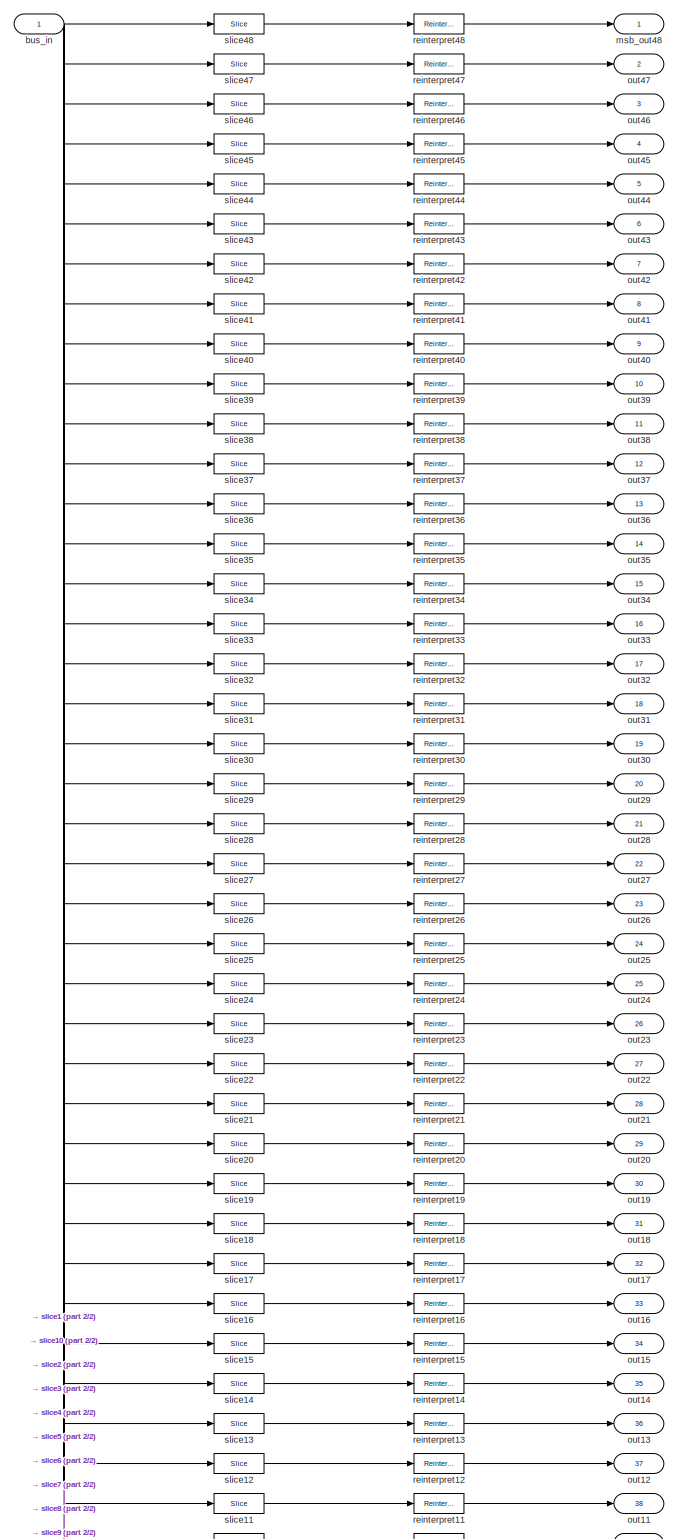
[diagram: pfb_fir_generic/pfb_fir_taps/bus_mult/a_debus - part 1/2, most of the canvas]
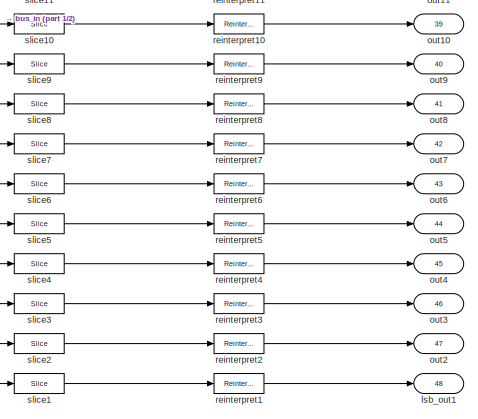
[diagram: pfb_fir_generic/pfb_fir_taps/bus_mult/a_debus - part 2/2, bottom center region]
BLOCK [SubSystem] pfb_fir_generic/pfb_fir_taps/bus_mult/a_debus
  AncestorBlock = casper_library_flow_control/bus_expand
  AttributesFormatString = 48 outputs: f8.7,f8.7,f8.7,f8.7,f8.7,f8.7,f8.7,f8.7,f8.7,f8.7,f8.7,f8.7,f8.7,f8.7,f8.7,f8.7,f8.7,f8.7,f8.7,f8.7,f8.7,f8.7,f8.7,f8.7,f8.7,f8.7,f8.7,f8.7,f8.7,f8.7,f8.7,f8.7,f8.7,f8.7,f8.7,f8.7,f8.7,f8.7,f8.7,f8.7,f8.7,f8.7,f8.7,f8.7,f8.7,f8.7,f8.7,f8.7,
  Ports = [1, 48]
  RequestExecContextInheritance = off
  UserDataPersistent = on
  Variant = off
BLOCK [Inport] pfb_fir_generic/pfb_fir_taps/bus_mult/a_debus/bus_in
  IconDisplay = Port number
BLOCK [Outport] pfb_fir_generic/pfb_fir_taps/bus_mult/a_debus/lsb_out1
  IconDisplay = Port number
  Port = 48
BLOCK [Outport] pfb_fir_generic/pfb_fir_taps/bus_mult/a_debus/msb_out48
  IconDisplay = Port number
BLOCK [Outport] pfb_fir_generic/pfb_fir_taps/bus_mult/a_debus/out10
  IconDisplay = Port number
  Port = 39
BLOCK [Outport] pfb_fir_generic/pfb_fir_taps/bus_mult/a_debus/out11
  IconDisplay = Port number
  Port = 38
BLOCK [Outport] pfb_fir_generic/pfb_fir_taps/bus_mult/a_debus/out12
  IconDisplay = Port number
  Port = 37
BLOCK [Outport] pfb_fir_generic/pfb_fir_taps/bus_mult/a_debus/out13
  IconDisplay = Port number
  Port = 36
BLOCK [Outport] pfb_fir_generic/pfb_fir_taps/bus_mult/a_debus/out14
  IconDisplay = Port number
  Port = 35
BLOCK [Outport] pfb_fir_generic/pfb_fir_taps/bus_mult/a_debus/out15
  IconDisplay = Port number
  Port = 34
BLOCK [Outport] pfb_fir_generic/pfb_fir_taps/bus_mult/a_debus/out16
  IconDisplay = Port number
  Port = 33
BLOCK [Outport] pfb_fir_generic/pfb_fir_taps/bus_mult/a_debus/out17
  IconDisplay = Port number
  Port = 32
BLOCK [Outport] pfb_fir_generic/pfb_fir_taps/bus_mult/a_debus/out18
  IconDisplay = Port number
  Port = 31
BLOCK [Outport] pfb_fir_generic/pfb_fir_taps/bus_mult/a_debus/out19
  IconDisplay = Port number
  Port = 30
BLOCK [Outport] pfb_fir_generic/pfb_fir_taps/bus_mult/a_debus/out2
  IconDisplay = Port number
  Port = 47
BLOCK [Outport] pfb_fir_generic/pfb_fir_taps/bus_mult/a_debus/out20
  IconDisplay = Port number
  Port = 29
BLOCK [Outport] pfb_fir_generic/pfb_fir_taps/bus_mult/a_debus/out21
  IconDisplay = Port number
  Port = 28
BLOCK [Outport] pfb_fir_generic/pfb_fir_taps/bus_mult/a_debus/out22
  IconDisplay = Port number
  Port = 27
BLOCK [Outport] pfb_fir_generic/pfb_fir_taps/bus_mult/a_debus/out23
  IconDisplay = Port number
  Port = 26
BLOCK [Outport] pfb_fir_generic/pfb_fir_taps/bus_mult/a_debus/out24
  IconDisplay = Port number
  Port = 25
BLOCK [Outport] pfb_fir_generic/pfb_fir_taps/bus_mult/a_debus/out25
  IconDisplay = Port number
  Port = 24
BLOCK [Outport] pfb_fir_generic/pfb_fir_taps/bus_mult/a_debus/out26
  IconDisplay = Port number
  Port = 23
BLOCK [Outport] pfb_fir_generic/pfb_fir_taps/bus_mult/a_debus/out27
  IconDisplay = Port number
  Port = 22
BLOCK [Outport] pfb_fir_generic/pfb_fir_taps/bus_mult/a_debus/out28
  IconDisplay = Port number
  Port = 21
BLOCK [Outport] pfb_fir_generic/pfb_fir_taps/bus_mult/a_debus/out29
  IconDisplay = Port number
  Port = 20
BLOCK [Outport] pfb_fir_generic/pfb_fir_taps/bus_mult/a_debus/out3
  IconDisplay = Port number
  Port = 46
BLOCK [Outport] pfb_fir_generic/pfb_fir_taps/bus_mult/a_debus/out30
  IconDisplay = Port number
  Port = 19
BLOCK [Outport] pfb_fir_generic/pfb_fir_taps/bus_mult/a_debus/out31
  IconDisplay = Port number
  Port = 18
BLOCK [Outport] pfb_fir_generic/pfb_fir_taps/bus_mult/a_debus/out32
  IconDisplay = Port number
  Port = 17
BLOCK [Outport] pfb_fir_generic/pfb_fir_taps/bus_mult/a_debus/out33
  IconDisplay = Port number
  Port = 16
BLOCK [Outport] pfb_fir_generic/pfb_fir_taps/bus_mult/a_debus/out34
  IconDisplay = Port number
  Port = 15
BLOCK [Outport] pfb_fir_generic/pfb_fir_taps/bus_mult/a_debus/out35
  IconDisplay = Port number
  Port = 14
BLOCK [Outport] pfb_fir_generic/pfb_fir_taps/bus_mult/a_debus/out36
  IconDisplay = Port number
  Port = 13
BLOCK [Outport] pfb_fir_generic/pfb_fir_taps/bus_mult/a_debus/out37
  IconDisplay = Port number
  Port = 12
BLOCK [Outport] pfb_fir_generic/pfb_fir_taps/bus_mult/a_debus/out38
  IconDisplay = Port number
  Port = 11
BLOCK [Outport] pfb_fir_generic/pfb_fir_taps/bus_mult/a_debus/out39
  IconDisplay = Port number
  Port = 10
BLOCK [Outport] pfb_fir_generic/pfb_fir_taps/bus_mult/a_debus/out4
  IconDisplay = Port number
  Port = 45
BLOCK [Outport] pfb_fir_generic/pfb_fir_taps/bus_mult/a_debus/out40
  IconDisplay = Port number
  Port = 9
BLOCK [Outport] pfb_fir_generic/pfb_fir_taps/bus_mult/a_debus/out41
  IconDisplay = Port number
  Port = 8
BLOCK [Outport] pfb_fir_generic/pfb_fir_taps/bus_mult/a_debus/out42
  IconDisplay = Port number
  Port = 7
BLOCK [Outport] pfb_fir_generic/pfb_fir_taps/bus_mult/a_debus/out43
  IconDisplay = Port number
  Port = 6
BLOCK [Outport] pfb_fir_generic/pfb_fir_taps/bus_mult/a_debus/out44
  IconDisplay = Port number
  Port = 5
BLOCK [Outport] pfb_fir_generic/pfb_fir_taps/bus_mult/a_debus/out45
  IconDisplay = Port number
  Port = 4
BLOCK [Outport] pfb_fir_generic/pfb_fir_taps/bus_mult/a_debus/out46
  IconDisplay = Port number
  Port = 3
BLOCK [Outport] pfb_fir_generic/pfb_fir_taps/bus_mult/a_debus/out47
  IconDisplay = Port number
  Port = 2
BLOCK [Outport] pfb_fir_generic/pfb_fir_taps/bus_mult/a_debus/out5
  IconDisplay = Port number
  Port = 44
BLOCK [Outport] pfb_fir_generic/pfb_fir_taps/bus_mult/a_debus/out6
  IconDisplay = Port number
  Port = 43
BLOCK [Outport] pfb_fir_generic/pfb_fir_taps/bus_mult/a_debus/out7
  IconDisplay = Port number
  Port = 42
BLOCK [Outport] pfb_fir_generic/pfb_fir_taps/bus_mult/a_debus/out8
  IconDisplay = Port number
  Port = 41
BLOCK [Outport] pfb_fir_generic/pfb_fir_taps/bus_mult/a_debus/out9
  IconDisplay = Port number
  Port = 40
BLOCK [Reference] pfb_fir_generic/pfb_fir_taps/bus_mult/a_debus/reinterpret1  REF=xbsIndex_r4/Reinterpret
  Ports = [1, 1]
  SourceBlock = xbsIndex_r4/Reinterpret
  SourceType = Xilinx Type Reinterpreter Block
BLOCK [Reference] pfb_fir_generic/pfb_fir_taps/bus_mult/a_debus/reinterpret10  REF=xbsIndex_r4/Reinterpret
  Ports = [1, 1]
  SourceBlock = xbsIndex_r4/Reinterpret
  SourceType = Xilinx Type Reinterpreter Block
BLOCK [Reference] pfb_fir_generic/pfb_fir_taps/bus_mult/a_debus/reinterpret11  REF=xbsIndex_r4/Reinterpret
  Ports = [1, 1]
  SourceBlock = xbsIndex_r4/Reinterpret
  SourceType = Xilinx Type Reinterpreter Block
BLOCK [Reference] pfb_fir_generic/pfb_fir_taps/bus_mult/a_debus/reinterpret12  REF=xbsIndex_r4/Reinterpret
  Ports = [1, 1]
  SourceBlock = xbsIndex_r4/Reinterpret
  SourceType = Xilinx Type Reinterpreter Block
BLOCK [Reference] pfb_fir_generic/pfb_fir_taps/bus_mult/a_debus/reinterpret13  REF=xbsIndex_r4/Reinterpret
  Ports = [1, 1]
  SourceBlock = xbsIndex_r4/Reinterpret
  SourceType = Xilinx Type Reinterpreter Block
BLOCK [Reference] pfb_fir_generic/pfb_fir_taps/bus_mult/a_debus/reinterpret14  REF=xbsIndex_r4/Reinterpret
  Ports = [1, 1]
  SourceBlock = xbsIndex_r4/Reinterpret
  SourceType = Xilinx Type Reinterpreter Block
BLOCK [Reference] pfb_fir_generic/pfb_fir_taps/bus_mult/a_debus/reinterpret15  REF=xbsIndex_r4/Reinterpret
  Ports = [1, 1]
  SourceBlock = xbsIndex_r4/Reinterpret
  SourceType = Xilinx Type Reinterpreter Block
BLOCK [Reference] pfb_fir_generic/pfb_fir_taps/bus_mult/a_debus/reinterpret16  REF=xbsIndex_r4/Reinterpret
  Ports = [1, 1]
  SourceBlock = xbsIndex_r4/Reinterpret
  SourceType = Xilinx Type Reinterpreter Block
BLOCK [Reference] pfb_fir_generic/pfb_fir_taps/bus_mult/a_debus/reinterpret17  REF=xbsIndex_r4/Reinterpret
  Ports = [1, 1]
  SourceBlock = xbsIndex_r4/Reinterpret
  SourceType = Xilinx Type Reinterpreter Block
BLOCK [Reference] pfb_fir_generic/pfb_fir_taps/bus_mult/a_debus/reinterpret18  REF=xbsIndex_r4/Reinterpret
  Ports = [1, 1]
  SourceBlock = xbsIndex_r4/Reinterpret
  SourceType = Xilinx Type Reinterpreter Block
BLOCK [Reference] pfb_fir_generic/pfb_fir_taps/bus_mult/a_debus/reinterpret19  REF=xbsIndex_r4/Reinterpret
  Ports = [1, 1]
  SourceBlock = xbsIndex_r4/Reinterpret
  SourceType = Xilinx Type Reinterpreter Block
BLOCK [Reference] pfb_fir_generic/pfb_fir_taps/bus_mult/a_debus/reinterpret2  REF=xbsIndex_r4/Reinterpret
  Ports = [1, 1]
  SourceBlock = xbsIndex_r4/Reinterpret
  SourceType = Xilinx Type Reinterpreter Block
BLOCK [Reference] pfb_fir_generic/pfb_fir_taps/bus_mult/a_debus/reinterpret20  REF=xbsIndex_r4/Reinterpret
  Ports = [1, 1]
  SourceBlock = xbsIndex_r4/Reinterpret
  SourceType = Xilinx Type Reinterpreter Block
BLOCK [Reference] pfb_fir_generic/pfb_fir_taps/bus_mult/a_debus/reinterpret21  REF=xbsIndex_r4/Reinterpret
  Ports = [1, 1]
  SourceBlock = xbsIndex_r4/Reinterpret
  SourceType = Xilinx Type Reinterpreter Block
BLOCK [Reference] pfb_fir_generic/pfb_fir_taps/bus_mult/a_debus/reinterpret22  REF=xbsIndex_r4/Reinterpret
  Ports = [1, 1]
  SourceBlock = xbsIndex_r4/Reinterpret
  SourceType = Xilinx Type Reinterpreter Block
BLOCK [Reference] pfb_fir_generic/pfb_fir_taps/bus_mult/a_debus/reinterpret23  REF=xbsIndex_r4/Reinterpret
  Ports = [1, 1]
  SourceBlock = xbsIndex_r4/Reinterpret
  SourceType = Xilinx Type Reinterpreter Block
BLOCK [Reference] pfb_fir_generic/pfb_fir_taps/bus_mult/a_debus/reinterpret24  REF=xbsIndex_r4/Reinterpret
  Ports = [1, 1]
  SourceBlock = xbsIndex_r4/Reinterpret
  SourceType = Xilinx Type Reinterpreter Block
BLOCK [Reference] pfb_fir_generic/pfb_fir_taps/bus_mult/a_debus/reinterpret25  REF=xbsIndex_r4/Reinterpret
  Ports = [1, 1]
  SourceBlock = xbsIndex_r4/Reinterpret
  SourceType = Xilinx Type Reinterpreter Block
BLOCK [Reference] pfb_fir_generic/pfb_fir_taps/bus_mult/a_debus/reinterpret26  REF=xbsIndex_r4/Reinterpret
  Ports = [1, 1]
  SourceBlock = xbsIndex_r4/Reinterpret
  SourceType = Xilinx Type Reinterpreter Block
BLOCK [Reference] pfb_fir_generic/pfb_fir_taps/bus_mult/a_debus/reinterpret27  REF=xbsIndex_r4/Reinterpret
  Ports = [1, 1]
  SourceBlock = xbsIndex_r4/Reinterpret
  SourceType = Xilinx Type Reinterpreter Block
BLOCK [Reference] pfb_fir_generic/pfb_fir_taps/bus_mult/a_debus/reinterpret28  REF=xbsIndex_r4/Reinterpret
  Ports = [1, 1]
  SourceBlock = xbsIndex_r4/Reinterpret
  SourceType = Xilinx Type Reinterpreter Block
BLOCK [Reference] pfb_fir_generic/pfb_fir_taps/bus_mult/a_debus/reinterpret29  REF=xbsIndex_r4/Reinterpret
  Ports = [1, 1]
  SourceBlock = xbsIndex_r4/Reinterpret
  SourceType = Xilinx Type Reinterpreter Block
BLOCK [Reference] pfb_fir_generic/pfb_fir_taps/bus_mult/a_debus/reinterpret3  REF=xbsIndex_r4/Reinterpret
  Ports = [1, 1]
  SourceBlock = xbsIndex_r4/Reinterpret
  SourceType = Xilinx Type Reinterpreter Block
BLOCK [Reference] pfb_fir_generic/pfb_fir_taps/bus_mult/a_debus/reinterpret30  REF=xbsIndex_r4/Reinterpret
  Ports = [1, 1]
  SourceBlock = xbsIndex_r4/Reinterpret
  SourceType = Xilinx Type Reinterpreter Block
BLOCK [Reference] pfb_fir_generic/pfb_fir_taps/bus_mult/a_debus/reinterpret31  REF=xbsIndex_r4/Reinterpret
  Ports = [1, 1]
  SourceBlock = xbsIndex_r4/Reinterpret
  SourceType = Xilinx Type Reinterpreter Block
BLOCK [Reference] pfb_fir_generic/pfb_fir_taps/bus_mult/a_debus/reinterpret32  REF=xbsIndex_r4/Reinterpret
  Ports = [1, 1]
  SourceBlock = xbsIndex_r4/Reinterpret
  SourceType = Xilinx Type Reinterpreter Block
BLOCK [Reference] pfb_fir_generic/pfb_fir_taps/bus_mult/a_debus/reinterpret33  REF=xbsIndex_r4/Reinterpret
  Ports = [1, 1]
  SourceBlock = xbsIndex_r4/Reinterpret
  SourceType = Xilinx Type Reinterpreter Block
BLOCK [Reference] pfb_fir_generic/pfb_fir_taps/bus_mult/a_debus/reinterpret34  REF=xbsIndex_r4/Reinterpret
  Ports = [1, 1]
  SourceBlock = xbsIndex_r4/Reinterpret
  SourceType = Xilinx Type Reinterpreter Block
BLOCK [Reference] pfb_fir_generic/pfb_fir_taps/bus_mult/a_debus/reinterpret35  REF=xbsIndex_r4/Reinterpret
  Ports = [1, 1]
  SourceBlock = xbsIndex_r4/Reinterpret
  SourceType = Xilinx Type Reinterpreter Block
BLOCK [Reference] pfb_fir_generic/pfb_fir_taps/bus_mult/a_debus/reinterpret36  REF=xbsIndex_r4/Reinterpret
  Ports = [1, 1]
  SourceBlock = xbsIndex_r4/Reinterpret
  SourceType = Xilinx Type Reinterpreter Block
BLOCK [Reference] pfb_fir_generic/pfb_fir_taps/bus_mult/a_debus/reinterpret37  REF=xbsIndex_r4/Reinterpret
  Ports = [1, 1]
  SourceBlock = xbsIndex_r4/Reinterpret
  SourceType = Xilinx Type Reinterpreter Block
BLOCK [Reference] pfb_fir_generic/pfb_fir_taps/bus_mult/a_debus/reinterpret38  REF=xbsIndex_r4/Reinterpret
  Ports = [1, 1]
  SourceBlock = xbsIndex_r4/Reinterpret
  SourceType = Xilinx Type Reinterpreter Block
BLOCK [Reference] pfb_fir_generic/pfb_fir_taps/bus_mult/a_debus/reinterpret39  REF=xbsIndex_r4/Reinterpret
  Ports = [1, 1]
  SourceBlock = xbsIndex_r4/Reinterpret
  SourceType = Xilinx Type Reinterpreter Block
BLOCK [Reference] pfb_fir_generic/pfb_fir_taps/bus_mult/a_debus/reinterpret4  REF=xbsIndex_r4/Reinterpret
  Ports = [1, 1]
  SourceBlock = xbsIndex_r4/Reinterpret
  SourceType = Xilinx Type Reinterpreter Block
BLOCK [Reference] pfb_fir_generic/pfb_fir_taps/bus_mult/a_debus/reinterpret40  REF=xbsIndex_r4/Reinterpret
  Ports = [1, 1]
  SourceBlock = xbsIndex_r4/Reinterpret
  SourceType = Xilinx Type Reinterpreter Block
BLOCK [Reference] pfb_fir_generic/pfb_fir_taps/bus_mult/a_debus/reinterpret41  REF=xbsIndex_r4/Reinterpret
  Ports = [1, 1]
  SourceBlock = xbsIndex_r4/Reinterpret
  SourceType = Xilinx Type Reinterpreter Block
BLOCK [Reference] pfb_fir_generic/pfb_fir_taps/bus_mult/a_debus/reinterpret42  REF=xbsIndex_r4/Reinterpret
  Ports = [1, 1]
  SourceBlock = xbsIndex_r4/Reinterpret
  SourceType = Xilinx Type Reinterpreter Block
BLOCK [Reference] pfb_fir_generic/pfb_fir_taps/bus_mult/a_debus/reinterpret43  REF=xbsIndex_r4/Reinterpret
  Ports = [1, 1]
  SourceBlock = xbsIndex_r4/Reinterpret
  SourceType = Xilinx Type Reinterpreter Block
BLOCK [Reference] pfb_fir_generic/pfb_fir_taps/bus_mult/a_debus/reinterpret44  REF=xbsIndex_r4/Reinterpret
  Ports = [1, 1]
  SourceBlock = xbsIndex_r4/Reinterpret
  SourceType = Xilinx Type Reinterpreter Block
BLOCK [Reference] pfb_fir_generic/pfb_fir_taps/bus_mult/a_debus/reinterpret45  REF=xbsIndex_r4/Reinterpret
  Ports = [1, 1]
  SourceBlock = xbsIndex_r4/Reinterpret
  SourceType = Xilinx Type Reinterpreter Block
BLOCK [Reference] pfb_fir_generic/pfb_fir_taps/bus_mult/a_debus/reinterpret46  REF=xbsIndex_r4/Reinterpret
  Ports = [1, 1]
  SourceBlock = xbsIndex_r4/Reinterpret
  SourceType = Xilinx Type Reinterpreter Block
BLOCK [Reference] pfb_fir_generic/pfb_fir_taps/bus_mult/a_debus/reinterpret47  REF=xbsIndex_r4/Reinterpret
  Ports = [1, 1]
  SourceBlock = xbsIndex_r4/Reinterpret
  SourceType = Xilinx Type Reinterpreter Block
BLOCK [Reference] pfb_fir_generic/pfb_fir_taps/bus_mult/a_debus/reinterpret48  REF=xbsIndex_r4/Reinterpret
  Ports = [1, 1]
  SourceBlock = xbsIndex_r4/Reinterpret
  SourceType = Xilinx Type Reinterpreter Block
BLOCK [Reference] pfb_fir_generic/pfb_fir_taps/bus_mult/a_debus/reinterpret5  REF=xbsIndex_r4/Reinterpret
  Ports = [1, 1]
  SourceBlock = xbsIndex_r4/Reinterpret
  SourceType = Xilinx Type Reinterpreter Block
BLOCK [Reference] pfb_fir_generic/pfb_fir_taps/bus_mult/a_debus/reinterpret6  REF=xbsIndex_r4/Reinterpret
  Ports = [1, 1]
  SourceBlock = xbsIndex_r4/Reinterpret
  SourceType = Xilinx Type Reinterpreter Block
BLOCK [Reference] pfb_fir_generic/pfb_fir_taps/bus_mult/a_debus/reinterpret7  REF=xbsIndex_r4/Reinterpret
  Ports = [1, 1]
  SourceBlock = xbsIndex_r4/Reinterpret
  SourceType = Xilinx Type Reinterpreter Block
BLOCK [Reference] pfb_fir_generic/pfb_fir_taps/bus_mult/a_debus/reinterpret8  REF=xbsIndex_r4/Reinterpret
  Ports = [1, 1]
  SourceBlock = xbsIndex_r4/Reinterpret
  SourceType = Xilinx Type Reinterpreter Block
BLOCK [Reference] pfb_fir_generic/pfb_fir_taps/bus_mult/a_debus/reinterpret9  REF=xbsIndex_r4/Reinterpret
  Ports = [1, 1]
  SourceBlock = xbsIndex_r4/Reinterpret
  SourceType = Xilinx Type Reinterpreter Block
BLOCK [Reference] pfb_fir_generic/pfb_fir_taps/bus_mult/a_debus/slice1  REF=xbsIndex_r4/Slice
  Ports = [1, 1]
  SourceBlock = xbsIndex_r4/Slice
  SourceType = Xilinx Bit Slice Extractor Block
BLOCK [Reference] pfb_fir_generic/pfb_fir_taps/bus_mult/a_debus/slice10  REF=xbsIndex_r4/Slice
  Ports = [1, 1]
  SourceBlock = xbsIndex_r4/Slice
  SourceType = Xilinx Bit Slice Extractor Block
BLOCK [Reference] pfb_fir_generic/pfb_fir_taps/bus_mult/a_debus/slice11  REF=xbsIndex_r4/Slice
  Ports = [1, 1]
  SourceBlock = xbsIndex_r4/Slice
  SourceType = Xilinx Bit Slice Extractor Block
BLOCK [Reference] pfb_fir_generic/pfb_fir_taps/bus_mult/a_debus/slice12  REF=xbsIndex_r4/Slice
  Ports = [1, 1]
  SourceBlock = xbsIndex_r4/Slice
  SourceType = Xilinx Bit Slice Extractor Block
BLOCK [Reference] pfb_fir_generic/pfb_fir_taps/bus_mult/a_debus/slice13  REF=xbsIndex_r4/Slice
  Ports = [1, 1]
  SourceBlock = xbsIndex_r4/Slice
  SourceType = Xilinx Bit Slice Extractor Block
BLOCK [Reference] pfb_fir_generic/pfb_fir_taps/bus_mult/a_debus/slice14  REF=xbsIndex_r4/Slice
  Ports = [1, 1]
  SourceBlock = xbsIndex_r4/Slice
  SourceType = Xilinx Bit Slice Extractor Block
BLOCK [Reference] pfb_fir_generic/pfb_fir_taps/bus_mult/a_debus/slice15  REF=xbsIndex_r4/Slice
  Ports = [1, 1]
  SourceBlock = xbsIndex_r4/Slice
  SourceType = Xilinx Bit Slice Extractor Block
BLOCK [Reference] pfb_fir_generic/pfb_fir_taps/bus_mult/a_debus/slice16  REF=xbsIndex_r4/Slice
  Ports = [1, 1]
  SourceBlock = xbsIndex_r4/Slice
  SourceType = Xilinx Bit Slice Extractor Block
BLOCK [Reference] pfb_fir_generic/pfb_fir_taps/bus_mult/a_debus/slice17  REF=xbsIndex_r4/Slice
  Ports = [1, 1]
  SourceBlock = xbsIndex_r4/Slice
  SourceType = Xilinx Bit Slice Extractor Block
BLOCK [Reference] pfb_fir_generic/pfb_fir_taps/bus_mult/a_debus/slice18  REF=xbsIndex_r4/Slice
  Ports = [1, 1]
  SourceBlock = xbsIndex_r4/Slice
  SourceType = Xilinx Bit Slice Extractor Block
BLOCK [Reference] pfb_fir_generic/pfb_fir_taps/bus_mult/a_debus/slice19  REF=xbsIndex_r4/Slice
  Ports = [1, 1]
  SourceBlock = xbsIndex_r4/Slice
  SourceType = Xilinx Bit Slice Extractor Block
BLOCK [Reference] pfb_fir_generic/pfb_fir_taps/bus_mult/a_debus/slice2  REF=xbsIndex_r4/Slice
  Ports = [1, 1]
  SourceBlock = xbsIndex_r4/Slice
  SourceType = Xilinx Bit Slice Extractor Block
BLOCK [Reference] pfb_fir_generic/pfb_fir_taps/bus_mult/a_debus/slice20  REF=xbsIndex_r4/Slice
  Ports = [1, 1]
  SourceBlock = xbsIndex_r4/Slice
  SourceType = Xilinx Bit Slice Extractor Block
BLOCK [Reference] pfb_fir_generic/pfb_fir_taps/bus_mult/a_debus/slice21  REF=xbsIndex_r4/Slice
  Ports = [1, 1]
  SourceBlock = xbsIndex_r4/Slice
  SourceType = Xilinx Bit Slice Extractor Block
BLOCK [Reference] pfb_fir_generic/pfb_fir_taps/bus_mult/a_debus/slice22  REF=xbsIndex_r4/Slice
  Ports = [1, 1]
  SourceBlock = xbsIndex_r4/Slice
  SourceType = Xilinx Bit Slice Extractor Block
BLOCK [Reference] pfb_fir_generic/pfb_fir_taps/bus_mult/a_debus/slice23  REF=xbsIndex_r4/Slice
  Ports = [1, 1]
  SourceBlock = xbsIndex_r4/Slice
  SourceType = Xilinx Bit Slice Extractor Block
BLOCK [Reference] pfb_fir_generic/pfb_fir_taps/bus_mult/a_debus/slice24  REF=xbsIndex_r4/Slice
  Ports = [1, 1]
  SourceBlock = xbsIndex_r4/Slice
  SourceType = Xilinx Bit Slice Extractor Block
BLOCK [Reference] pfb_fir_generic/pfb_fir_taps/bus_mult/a_debus/slice25  REF=xbsIndex_r4/Slice
  Ports = [1, 1]
  SourceBlock = xbsIndex_r4/Slice
  SourceType = Xilinx Bit Slice Extractor Block
BLOCK [Reference] pfb_fir_generic/pfb_fir_taps/bus_mult/a_debus/slice26  REF=xbsIndex_r4/Slice
  Ports = [1, 1]
  SourceBlock = xbsIndex_r4/Slice
  SourceType = Xilinx Bit Slice Extractor Block
BLOCK [Reference] pfb_fir_generic/pfb_fir_taps/bus_mult/a_debus/slice27  REF=xbsIndex_r4/Slice
  Ports = [1, 1]
  SourceBlock = xbsIndex_r4/Slice
  SourceType = Xilinx Bit Slice Extractor Block
BLOCK [Reference] pfb_fir_generic/pfb_fir_taps/bus_mult/a_debus/slice28  REF=xbsIndex_r4/Slice
  Ports = [1, 1]
  SourceBlock = xbsIndex_r4/Slice
  SourceType = Xilinx Bit Slice Extractor Block
BLOCK [Reference] pfb_fir_generic/pfb_fir_taps/bus_mult/a_debus/slice29  REF=xbsIndex_r4/Slice
  Ports = [1, 1]
  SourceBlock = xbsIndex_r4/Slice
  SourceType = Xilinx Bit Slice Extractor Block
BLOCK [Reference] pfb_fir_generic/pfb_fir_taps/bus_mult/a_debus/slice3  REF=xbsIndex_r4/Slice
  Ports = [1, 1]
  SourceBlock = xbsIndex_r4/Slice
  SourceType = Xilinx Bit Slice Extractor Block
BLOCK [Reference] pfb_fir_generic/pfb_fir_taps/bus_mult/a_debus/slice30  REF=xbsIndex_r4/Slice
  Ports = [1, 1]
  SourceBlock = xbsIndex_r4/Slice
  SourceType = Xilinx Bit Slice Extractor Block
BLOCK [Reference] pfb_fir_generic/pfb_fir_taps/bus_mult/a_debus/slice31  REF=xbsIndex_r4/Slice
  Ports = [1, 1]
  SourceBlock = xbsIndex_r4/Slice
  SourceType = Xilinx Bit Slice Extractor Block
BLOCK [Reference] pfb_fir_generic/pfb_fir_taps/bus_mult/a_debus/slice32  REF=xbsIndex_r4/Slice
  Ports = [1, 1]
  SourceBlock = xbsIndex_r4/Slice
  SourceType = Xilinx Bit Slice Extractor Block
BLOCK [Reference] pfb_fir_generic/pfb_fir_taps/bus_mult/a_debus/slice33  REF=xbsIndex_r4/Slice
  Ports = [1, 1]
  SourceBlock = xbsIndex_r4/Slice
  SourceType = Xilinx Bit Slice Extractor Block
BLOCK [Reference] pfb_fir_generic/pfb_fir_taps/bus_mult/a_debus/slice34  REF=xbsIndex_r4/Slice
  Ports = [1, 1]
  SourceBlock = xbsIndex_r4/Slice
  SourceType = Xilinx Bit Slice Extractor Block
BLOCK [Reference] pfb_fir_generic/pfb_fir_taps/bus_mult/a_debus/slice35  REF=xbsIndex_r4/Slice
  Ports = [1, 1]
  SourceBlock = xbsIndex_r4/Slice
  SourceType = Xilinx Bit Slice Extractor Block
BLOCK [Reference] pfb_fir_generic/pfb_fir_taps/bus_mult/a_debus/slice36  REF=xbsIndex_r4/Slice
  Ports = [1, 1]
  SourceBlock = xbsIndex_r4/Slice
  SourceType = Xilinx Bit Slice Extractor Block
BLOCK [Reference] pfb_fir_generic/pfb_fir_taps/bus_mult/a_debus/slice37  REF=xbsIndex_r4/Slice
  Ports = [1, 1]
  SourceBlock = xbsIndex_r4/Slice
  SourceType = Xilinx Bit Slice Extractor Block
BLOCK [Reference] pfb_fir_generic/pfb_fir_taps/bus_mult/a_debus/slice38  REF=xbsIndex_r4/Slice
  Ports = [1, 1]
  SourceBlock = xbsIndex_r4/Slice
  SourceType = Xilinx Bit Slice Extractor Block
BLOCK [Reference] pfb_fir_generic/pfb_fir_taps/bus_mult/a_debus/slice39  REF=xbsIndex_r4/Slice
  Ports = [1, 1]
  SourceBlock = xbsIndex_r4/Slice
  SourceType = Xilinx Bit Slice Extractor Block
BLOCK [Reference] pfb_fir_generic/pfb_fir_taps/bus_mult/a_debus/slice4  REF=xbsIndex_r4/Slice
  Ports = [1, 1]
  SourceBlock = xbsIndex_r4/Slice
  SourceType = Xilinx Bit Slice Extractor Block
BLOCK [Reference] pfb_fir_generic/pfb_fir_taps/bus_mult/a_debus/slice40  REF=xbsIndex_r4/Slice
  Ports = [1, 1]
  SourceBlock = xbsIndex_r4/Slice
  SourceType = Xilinx Bit Slice Extractor Block
BLOCK [Reference] pfb_fir_generic/pfb_fir_taps/bus_mult/a_debus/slice41  REF=xbsIndex_r4/Slice
  Ports = [1, 1]
  SourceBlock = xbsIndex_r4/Slice
  SourceType = Xilinx Bit Slice Extractor Block
BLOCK [Reference] pfb_fir_generic/pfb_fir_taps/bus_mult/a_debus/slice42  REF=xbsIndex_r4/Slice
  Ports = [1, 1]
  SourceBlock = xbsIndex_r4/Slice
  SourceType = Xilinx Bit Slice Extractor Block
BLOCK [Reference] pfb_fir_generic/pfb_fir_taps/bus_mult/a_debus/slice43  REF=xbsIndex_r4/Slice
  Ports = [1, 1]
  SourceBlock = xbsIndex_r4/Slice
  SourceType = Xilinx Bit Slice Extractor Block
BLOCK [Reference] pfb_fir_generic/pfb_fir_taps/bus_mult/a_debus/slice44  REF=xbsIndex_r4/Slice
  Ports = [1, 1]
  SourceBlock = xbsIndex_r4/Slice
  SourceType = Xilinx Bit Slice Extractor Block
BLOCK [Reference] pfb_fir_generic/pfb_fir_taps/bus_mult/a_debus/slice45  REF=xbsIndex_r4/Slice
  Ports = [1, 1]
  SourceBlock = xbsIndex_r4/Slice
  SourceType = Xilinx Bit Slice Extractor Block
BLOCK [Reference] pfb_fir_generic/pfb_fir_taps/bus_mult/a_debus/slice46  REF=xbsIndex_r4/Slice
  Ports = [1, 1]
  SourceBlock = xbsIndex_r4/Slice
  SourceType = Xilinx Bit Slice Extractor Block
BLOCK [Reference] pfb_fir_generic/pfb_fir_taps/bus_mult/a_debus/slice47  REF=xbsIndex_r4/Slice
  Ports = [1, 1]
  SourceBlock = xbsIndex_r4/Slice
  SourceType = Xilinx Bit Slice Extractor Block
BLOCK [Reference] pfb_fir_generic/pfb_fir_taps/bus_mult/a_debus/slice48  REF=xbsIndex_r4/Slice
  Ports = [1, 1]
  SourceBlock = xbsIndex_r4/Slice
  SourceType = Xilinx Bit Slice Extractor Block
BLOCK [Reference] pfb_fir_generic/pfb_fir_taps/bus_mult/a_debus/slice5  REF=xbsIndex_r4/Slice
  Ports = [1, 1]
  SourceBlock = xbsIndex_r4/Slice
  SourceType = Xilinx Bit Slice Extractor Block
BLOCK [Reference] pfb_fir_generic/pfb_fir_taps/bus_mult/a_debus/slice6  REF=xbsIndex_r4/Slice
  Ports = [1, 1]
  SourceBlock = xbsIndex_r4/Slice
  SourceType = Xilinx Bit Slice Extractor Block
BLOCK [Reference] pfb_fir_generic/pfb_fir_taps/bus_mult/a_debus/slice7  REF=xbsIndex_r4/Slice
  Ports = [1, 1]
  SourceBlock = xbsIndex_r4/Slice
  SourceType = Xilinx Bit Slice Extractor Block
BLOCK [Reference] pfb_fir_generic/pfb_fir_taps/bus_mult/a_debus/slice8  REF=xbsIndex_r4/Slice
  Ports = [1, 1]
  SourceBlock = xbsIndex_r4/Slice
  SourceType = Xilinx Bit Slice Extractor Block
BLOCK [Reference] pfb_fir_generic/pfb_fir_taps/bus_mult/a_debus/slice9  REF=xbsIndex_r4/Slice
  Ports = [1, 1]
  SourceBlock = xbsIndex_r4/Slice
  SourceType = Xilinx Bit Slice Extractor Block
BLOCK [Inport] pfb_fir_generic/pfb_fir_taps/bus_mult/b
  IconDisplay = Port number
  Port = 2
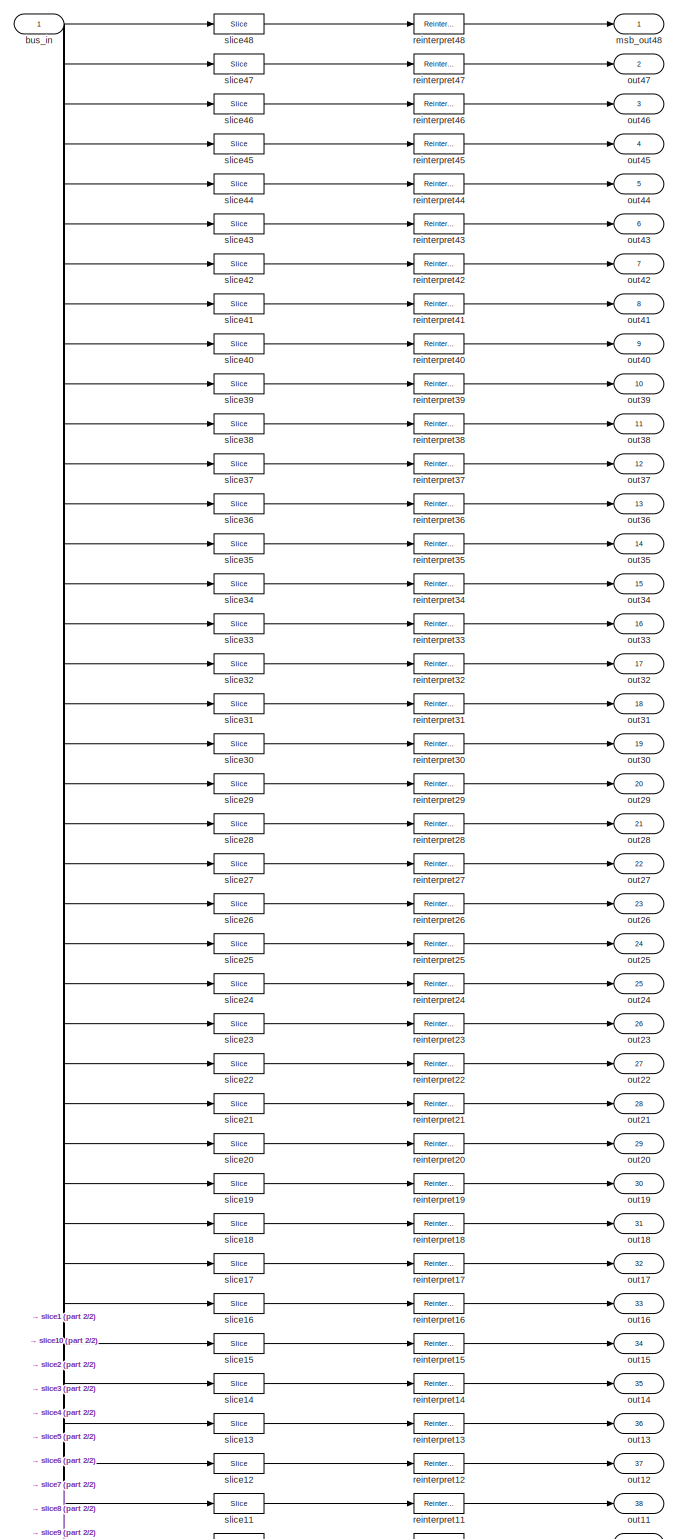
[diagram: pfb_fir_generic/pfb_fir_taps/bus_mult/b_debus - part 1/2, most of the canvas]
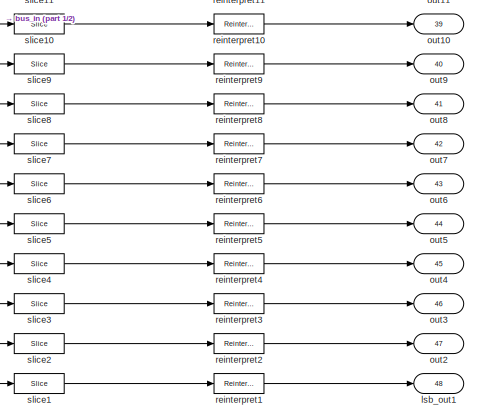
[diagram: pfb_fir_generic/pfb_fir_taps/bus_mult/b_debus - part 2/2, bottom center region]
BLOCK [SubSystem] pfb_fir_generic/pfb_fir_taps/bus_mult/b_debus
  AncestorBlock = casper_library_flow_control/bus_expand
  AttributesFormatString = 48 outputs: f12.11,f12.11,f12.11,f12.11,f12.11,f12.11,f12.11,f12.11,f12.11,f12.11,f12.11,f12.11,f12.11,f12.11,f12.11,f12.11,f12.11,f12.11,f12.11,f12.11,f12.11,f12.11,f12.11,f12.11,f12.11,f12.11,f12.11,f12.11,f12.11,f12.11,f12.11,f12.11,f12.11,f12.11,f12.11,f12.11,f12.11,f12.11,f12.11,f12.11,f12.11,f12.11,f12.11,f12.11,f12.11,f12.11,f12.11,f12.11,
  Ports = [1, 48]
  RequestExecContextInheritance = off
  UserDataPersistent = on
  Variant = off
BLOCK [Inport] pfb_fir_generic/pfb_fir_taps/bus_mult/b_debus/bus_in
  IconDisplay = Port number
BLOCK [Outport] pfb_fir_generic/pfb_fir_taps/bus_mult/b_debus/lsb_out1
  IconDisplay = Port number
  Port = 48
BLOCK [Outport] pfb_fir_generic/pfb_fir_taps/bus_mult/b_debus/msb_out48
  IconDisplay = Port number
BLOCK [Outport] pfb_fir_generic/pfb_fir_taps/bus_mult/b_debus/out10
  IconDisplay = Port number
  Port = 39
BLOCK [Outport] pfb_fir_generic/pfb_fir_taps/bus_mult/b_debus/out11
  IconDisplay = Port number
  Port = 38
BLOCK [Outport] pfb_fir_generic/pfb_fir_taps/bus_mult/b_debus/out12
  IconDisplay = Port number
  Port = 37
BLOCK [Outport] pfb_fir_generic/pfb_fir_taps/bus_mult/b_debus/out13
  IconDisplay = Port number
  Port = 36
BLOCK [Outport] pfb_fir_generic/pfb_fir_taps/bus_mult/b_debus/out14
  IconDisplay = Port number
  Port = 35
BLOCK [Outport] pfb_fir_generic/pfb_fir_taps/bus_mult/b_debus/out15
  IconDisplay = Port number
  Port = 34
BLOCK [Outport] pfb_fir_generic/pfb_fir_taps/bus_mult/b_debus/out16
  IconDisplay = Port number
  Port = 33
BLOCK [Outport] pfb_fir_generic/pfb_fir_taps/bus_mult/b_debus/out17
  IconDisplay = Port number
  Port = 32
BLOCK [Outport] pfb_fir_generic/pfb_fir_taps/bus_mult/b_debus/out18
  IconDisplay = Port number
  Port = 31
BLOCK [Outport] pfb_fir_generic/pfb_fir_taps/bus_mult/b_debus/out19
  IconDisplay = Port number
  Port = 30
BLOCK [Outport] pfb_fir_generic/pfb_fir_taps/bus_mult/b_debus/out2
  IconDisplay = Port number
  Port = 47
BLOCK [Outport] pfb_fir_generic/pfb_fir_taps/bus_mult/b_debus/out20
  IconDisplay = Port number
  Port = 29
BLOCK [Outport] pfb_fir_generic/pfb_fir_taps/bus_mult/b_debus/out21
  IconDisplay = Port number
  Port = 28
BLOCK [Outport] pfb_fir_generic/pfb_fir_taps/bus_mult/b_debus/out22
  IconDisplay = Port number
  Port = 27
BLOCK [Outport] pfb_fir_generic/pfb_fir_taps/bus_mult/b_debus/out23
  IconDisplay = Port number
  Port = 26
BLOCK [Outport] pfb_fir_generic/pfb_fir_taps/bus_mult/b_debus/out24
  IconDisplay = Port number
  Port = 25
BLOCK [Outport] pfb_fir_generic/pfb_fir_taps/bus_mult/b_debus/out25
  IconDisplay = Port number
  Port = 24
BLOCK [Outport] pfb_fir_generic/pfb_fir_taps/bus_mult/b_debus/out26
  IconDisplay = Port number
  Port = 23
BLOCK [Outport] pfb_fir_generic/pfb_fir_taps/bus_mult/b_debus/out27
  IconDisplay = Port number
  Port = 22
BLOCK [Outport] pfb_fir_generic/pfb_fir_taps/bus_mult/b_debus/out28
  IconDisplay = Port number
  Port = 21
BLOCK [Outport] pfb_fir_generic/pfb_fir_taps/bus_mult/b_debus/out29
  IconDisplay = Port number
  Port = 20
BLOCK [Outport] pfb_fir_generic/pfb_fir_taps/bus_mult/b_debus/out3
  IconDisplay = Port number
  Port = 46
BLOCK [Outport] pfb_fir_generic/pfb_fir_taps/bus_mult/b_debus/out30
  IconDisplay = Port number
  Port = 19
BLOCK [Outport] pfb_fir_generic/pfb_fir_taps/bus_mult/b_debus/out31
  IconDisplay = Port number
  Port = 18
BLOCK [Outport] pfb_fir_generic/pfb_fir_taps/bus_mult/b_debus/out32
  IconDisplay = Port number
  Port = 17
BLOCK [Outport] pfb_fir_generic/pfb_fir_taps/bus_mult/b_debus/out33
  IconDisplay = Port number
  Port = 16
BLOCK [Outport] pfb_fir_generic/pfb_fir_taps/bus_mult/b_debus/out34
  IconDisplay = Port number
  Port = 15
BLOCK [Outport] pfb_fir_generic/pfb_fir_taps/bus_mult/b_debus/out35
  IconDisplay = Port number
  Port = 14
BLOCK [Outport] pfb_fir_generic/pfb_fir_taps/bus_mult/b_debus/out36
  IconDisplay = Port number
  Port = 13
BLOCK [Outport] pfb_fir_generic/pfb_fir_taps/bus_mult/b_debus/out37
  IconDisplay = Port number
  Port = 12
BLOCK [Outport] pfb_fir_generic/pfb_fir_taps/bus_mult/b_debus/out38
  IconDisplay = Port number
  Port = 11
BLOCK [Outport] pfb_fir_generic/pfb_fir_taps/bus_mult/b_debus/out39
  IconDisplay = Port number
  Port = 10
BLOCK [Outport] pfb_fir_generic/pfb_fir_taps/bus_mult/b_debus/out4
  IconDisplay = Port number
  Port = 45
BLOCK [Outport] pfb_fir_generic/pfb_fir_taps/bus_mult/b_debus/out40
  IconDisplay = Port number
  Port = 9
BLOCK [Outport] pfb_fir_generic/pfb_fir_taps/bus_mult/b_debus/out41
  IconDisplay = Port number
  Port = 8
BLOCK [Outport] pfb_fir_generic/pfb_fir_taps/bus_mult/b_debus/out42
  IconDisplay = Port number
  Port = 7
BLOCK [Outport] pfb_fir_generic/pfb_fir_taps/bus_mult/b_debus/out43
  IconDisplay = Port number
  Port = 6
BLOCK [Outport] pfb_fir_generic/pfb_fir_taps/bus_mult/b_debus/out44
  IconDisplay = Port number
  Port = 5
BLOCK [Outport] pfb_fir_generic/pfb_fir_taps/bus_mult/b_debus/out45
  IconDisplay = Port number
  Port = 4
BLOCK [Outport] pfb_fir_generic/pfb_fir_taps/bus_mult/b_debus/out46
  IconDisplay = Port number
  Port = 3
BLOCK [Outport] pfb_fir_generic/pfb_fir_taps/bus_mult/b_debus/out47
  IconDisplay = Port number
  Port = 2
BLOCK [Outport] pfb_fir_generic/pfb_fir_taps/bus_mult/b_debus/out5
  IconDisplay = Port number
  Port = 44
BLOCK [Outport] pfb_fir_generic/pfb_fir_taps/bus_mult/b_debus/out6
  IconDisplay = Port number
  Port = 43
BLOCK [Outport] pfb_fir_generic/pfb_fir_taps/bus_mult/b_debus/out7
  IconDisplay = Port number
  Port = 42
BLOCK [Outport] pfb_fir_generic/pfb_fir_taps/bus_mult/b_debus/out8
  IconDisplay = Port number
  Port = 41
BLOCK [Outport] pfb_fir_generic/pfb_fir_taps/bus_mult/b_debus/out9
  IconDisplay = Port number
  Port = 40
BLOCK [Reference] pfb_fir_generic/pfb_fir_taps/bus_mult/b_debus/reinterpret1  REF=xbsIndex_r4/Reinterpret
  Ports = [1, 1]
  SourceBlock = xbsIndex_r4/Reinterpret
  SourceType = Xilinx Type Reinterpreter Block
BLOCK [Reference] pfb_fir_generic/pfb_fir_taps/bus_mult/b_debus/reinterpret10  REF=xbsIndex_r4/Reinterpret
  Ports = [1, 1]
  SourceBlock = xbsIndex_r4/Reinterpret
  SourceType = Xilinx Type Reinterpreter Block
BLOCK [Reference] pfb_fir_generic/pfb_fir_taps/bus_mult/b_debus/reinterpret11  REF=xbsIndex_r4/Reinterpret
  Ports = [1, 1]
  SourceBlock = xbsIndex_r4/Reinterpret
  SourceType = Xilinx Type Reinterpreter Block
BLOCK [Reference] pfb_fir_generic/pfb_fir_taps/bus_mult/b_debus/reinterpret12  REF=xbsIndex_r4/Reinterpret
  Ports = [1, 1]
  SourceBlock = xbsIndex_r4/Reinterpret
  SourceType = Xilinx Type Reinterpreter Block
BLOCK [Reference] pfb_fir_generic/pfb_fir_taps/bus_mult/b_debus/reinterpret13  REF=xbsIndex_r4/Reinterpret
  Ports = [1, 1]
  SourceBlock = xbsIndex_r4/Reinterpret
  SourceType = Xilinx Type Reinterpreter Block
BLOCK [Reference] pfb_fir_generic/pfb_fir_taps/bus_mult/b_debus/reinterpret14  REF=xbsIndex_r4/Reinterpret
  Ports = [1, 1]
  SourceBlock = xbsIndex_r4/Reinterpret
  SourceType = Xilinx Type Reinterpreter Block
BLOCK [Reference] pfb_fir_generic/pfb_fir_taps/bus_mult/b_debus/reinterpret15  REF=xbsIndex_r4/Reinterpret
  Ports = [1, 1]
  SourceBlock = xbsIndex_r4/Reinterpret
  SourceType = Xilinx Type Reinterpreter Block
BLOCK [Reference] pfb_fir_generic/pfb_fir_taps/bus_mult/b_debus/reinterpret16  REF=xbsIndex_r4/Reinterpret
  Ports = [1, 1]
  SourceBlock = xbsIndex_r4/Reinterpret
  SourceType = Xilinx Type Reinterpreter Block
BLOCK [Reference] pfb_fir_generic/pfb_fir_taps/bus_mult/b_debus/reinterpret17  REF=xbsIndex_r4/Reinterpret
  Ports = [1, 1]
  SourceBlock = xbsIndex_r4/Reinterpret
  SourceType = Xilinx Type Reinterpreter Block
BLOCK [Reference] pfb_fir_generic/pfb_fir_taps/bus_mult/b_debus/reinterpret18  REF=xbsIndex_r4/Reinterpret
  Ports = [1, 1]
  SourceBlock = xbsIndex_r4/Reinterpret
  SourceType = Xilinx Type Reinterpreter Block
BLOCK [Reference] pfb_fir_generic/pfb_fir_taps/bus_mult/b_debus/reinterpret19  REF=xbsIndex_r4/Reinterpret
  Ports = [1, 1]
  SourceBlock = xbsIndex_r4/Reinterpret
  SourceType = Xilinx Type Reinterpreter Block
BLOCK [Reference] pfb_fir_generic/pfb_fir_taps/bus_mult/b_debus/reinterpret2  REF=xbsIndex_r4/Reinterpret
  Ports = [1, 1]
  SourceBlock = xbsIndex_r4/Reinterpret
  SourceType = Xilinx Type Reinterpreter Block
BLOCK [Reference] pfb_fir_generic/pfb_fir_taps/bus_mult/b_debus/reinterpret20  REF=xbsIndex_r4/Reinterpret
  Ports = [1, 1]
  SourceBlock = xbsIndex_r4/Reinterpret
  SourceType = Xilinx Type Reinterpreter Block
BLOCK [Reference] pfb_fir_generic/pfb_fir_taps/bus_mult/b_debus/reinterpret21  REF=xbsIndex_r4/Reinterpret
  Ports = [1, 1]
  SourceBlock = xbsIndex_r4/Reinterpret
  SourceType = Xilinx Type Reinterpreter Block
BLOCK [Reference] pfb_fir_generic/pfb_fir_taps/bus_mult/b_debus/reinterpret22  REF=xbsIndex_r4/Reinterpret
  Ports = [1, 1]
  SourceBlock = xbsIndex_r4/Reinterpret
  SourceType = Xilinx Type Reinterpreter Block
BLOCK [Reference] pfb_fir_generic/pfb_fir_taps/bus_mult/b_debus/reinterpret23  REF=xbsIndex_r4/Reinterpret
  Ports = [1, 1]
  SourceBlock = xbsIndex_r4/Reinterpret
  SourceType = Xilinx Type Reinterpreter Block
BLOCK [Reference] pfb_fir_generic/pfb_fir_taps/bus_mult/b_debus/reinterpret24  REF=xbsIndex_r4/Reinterpret
  Ports = [1, 1]
  SourceBlock = xbsIndex_r4/Reinterpret
  SourceType = Xilinx Type Reinterpreter Block
BLOCK [Reference] pfb_fir_generic/pfb_fir_taps/bus_mult/b_debus/reinterpret25  REF=xbsIndex_r4/Reinterpret
  Ports = [1, 1]
  SourceBlock = xbsIndex_r4/Reinterpret
  SourceType = Xilinx Type Reinterpreter Block
BLOCK [Reference] pfb_fir_generic/pfb_fir_taps/bus_mult/b_debus/reinterpret26  REF=xbsIndex_r4/Reinterpret
  Ports = [1, 1]
  SourceBlock = xbsIndex_r4/Reinterpret
  SourceType = Xilinx Type Reinterpreter Block
BLOCK [Reference] pfb_fir_generic/pfb_fir_taps/bus_mult/b_debus/reinterpret27  REF=xbsIndex_r4/Reinterpret
  Ports = [1, 1]
  SourceBlock = xbsIndex_r4/Reinterpret
  SourceType = Xilinx Type Reinterpreter Block
BLOCK [Reference] pfb_fir_generic/pfb_fir_taps/bus_mult/b_debus/reinterpret28  REF=xbsIndex_r4/Reinterpret
  Ports = [1, 1]
  SourceBlock = xbsIndex_r4/Reinterpret
  SourceType = Xilinx Type Reinterpreter Block
BLOCK [Reference] pfb_fir_generic/pfb_fir_taps/bus_mult/b_debus/reinterpret29  REF=xbsIndex_r4/Reinterpret
  Ports = [1, 1]
  SourceBlock = xbsIndex_r4/Reinterpret
  SourceType = Xilinx Type Reinterpreter Block
BLOCK [Reference] pfb_fir_generic/pfb_fir_taps/bus_mult/b_debus/reinterpret3  REF=xbsIndex_r4/Reinterpret
  Ports = [1, 1]
  SourceBlock = xbsIndex_r4/Reinterpret
  SourceType = Xilinx Type Reinterpreter Block
BLOCK [Reference] pfb_fir_generic/pfb_fir_taps/bus_mult/b_debus/reinterpret30  REF=xbsIndex_r4/Reinterpret
  Ports = [1, 1]
  SourceBlock = xbsIndex_r4/Reinterpret
  SourceType = Xilinx Type Reinterpreter Block
BLOCK [Reference] pfb_fir_generic/pfb_fir_taps/bus_mult/b_debus/reinterpret31  REF=xbsIndex_r4/Reinterpret
  Ports = [1, 1]
  SourceBlock = xbsIndex_r4/Reinterpret
  SourceType = Xilinx Type Reinterpreter Block
BLOCK [Reference] pfb_fir_generic/pfb_fir_taps/bus_mult/b_debus/reinterpret32  REF=xbsIndex_r4/Reinterpret
  Ports = [1, 1]
  SourceBlock = xbsIndex_r4/Reinterpret
  SourceType = Xilinx Type Reinterpreter Block
BLOCK [Reference] pfb_fir_generic/pfb_fir_taps/bus_mult/b_debus/reinterpret33  REF=xbsIndex_r4/Reinterpret
  Ports = [1, 1]
  SourceBlock = xbsIndex_r4/Reinterpret
  SourceType = Xilinx Type Reinterpreter Block
BLOCK [Reference] pfb_fir_generic/pfb_fir_taps/bus_mult/b_debus/reinterpret34  REF=xbsIndex_r4/Reinterpret
  Ports = [1, 1]
  SourceBlock = xbsIndex_r4/Reinterpret
  SourceType = Xilinx Type Reinterpreter Block
BLOCK [Reference] pfb_fir_generic/pfb_fir_taps/bus_mult/b_debus/reinterpret35  REF=xbsIndex_r4/Reinterpret
  Ports = [1, 1]
  SourceBlock = xbsIndex_r4/Reinterpret
  SourceType = Xilinx Type Reinterpreter Block
BLOCK [Reference] pfb_fir_generic/pfb_fir_taps/bus_mult/b_debus/reinterpret36  REF=xbsIndex_r4/Reinterpret
  Ports = [1, 1]
  SourceBlock = xbsIndex_r4/Reinterpret
  SourceType = Xilinx Type Reinterpreter Block
BLOCK [Reference] pfb_fir_generic/pfb_fir_taps/bus_mult/b_debus/reinterpret37  REF=xbsIndex_r4/Reinterpret
  Ports = [1, 1]
  SourceBlock = xbsIndex_r4/Reinterpret
  SourceType = Xilinx Type Reinterpreter Block
BLOCK [Reference] pfb_fir_generic/pfb_fir_taps/bus_mult/b_debus/reinterpret38  REF=xbsIndex_r4/Reinterpret
  Ports = [1, 1]
  SourceBlock = xbsIndex_r4/Reinterpret
  SourceType = Xilinx Type Reinterpreter Block
BLOCK [Reference] pfb_fir_generic/pfb_fir_taps/bus_mult/b_debus/reinterpret39  REF=xbsIndex_r4/Reinterpret
  Ports = [1, 1]
  SourceBlock = xbsIndex_r4/Reinterpret
  SourceType = Xilinx Type Reinterpreter Block
BLOCK [Reference] pfb_fir_generic/pfb_fir_taps/bus_mult/b_debus/reinterpret4  REF=xbsIndex_r4/Reinterpret
  Ports = [1, 1]
  SourceBlock = xbsIndex_r4/Reinterpret
  SourceType = Xilinx Type Reinterpreter Block
BLOCK [Reference] pfb_fir_generic/pfb_fir_taps/bus_mult/b_debus/reinterpret40  REF=xbsIndex_r4/Reinterpret
  Ports = [1, 1]
  SourceBlock = xbsIndex_r4/Reinterpret
  SourceType = Xilinx Type Reinterpreter Block
BLOCK [Reference] pfb_fir_generic/pfb_fir_taps/bus_mult/b_debus/reinterpret41  REF=xbsIndex_r4/Reinterpret
  Ports = [1, 1]
  SourceBlock = xbsIndex_r4/Reinterpret
  SourceType = Xilinx Type Reinterpreter Block
BLOCK [Reference] pfb_fir_generic/pfb_fir_taps/bus_mult/b_debus/reinterpret42  REF=xbsIndex_r4/Reinterpret
  Ports = [1, 1]
  SourceBlock = xbsIndex_r4/Reinterpret
  SourceType = Xilinx Type Reinterpreter Block
BLOCK [Reference] pfb_fir_generic/pfb_fir_taps/bus_mult/b_debus/reinterpret43  REF=xbsIndex_r4/Reinterpret
  Ports = [1, 1]
  SourceBlock = xbsIndex_r4/Reinterpret
  SourceType = Xilinx Type Reinterpreter Block
BLOCK [Reference] pfb_fir_generic/pfb_fir_taps/bus_mult/b_debus/reinterpret44  REF=xbsIndex_r4/Reinterpret
  Ports = [1, 1]
  SourceBlock = xbsIndex_r4/Reinterpret
  SourceType = Xilinx Type Reinterpreter Block
BLOCK [Reference] pfb_fir_generic/pfb_fir_taps/bus_mult/b_debus/reinterpret45  REF=xbsIndex_r4/Reinterpret
  Ports = [1, 1]
  SourceBlock = xbsIndex_r4/Reinterpret
  SourceType = Xilinx Type Reinterpreter Block
BLOCK [Reference] pfb_fir_generic/pfb_fir_taps/bus_mult/b_debus/reinterpret46  REF=xbsIndex_r4/Reinterpret
  Ports = [1, 1]
  SourceBlock = xbsIndex_r4/Reinterpret
  SourceType = Xilinx Type Reinterpreter Block
BLOCK [Reference] pfb_fir_generic/pfb_fir_taps/bus_mult/b_debus/reinterpret47  REF=xbsIndex_r4/Reinterpret
  Ports = [1, 1]
  SourceBlock = xbsIndex_r4/Reinterpret
  SourceType = Xilinx Type Reinterpreter Block
BLOCK [Reference] pfb_fir_generic/pfb_fir_taps/bus_mult/b_debus/reinterpret48  REF=xbsIndex_r4/Reinterpret
  Ports = [1, 1]
  SourceBlock = xbsIndex_r4/Reinterpret
  SourceType = Xilinx Type Reinterpreter Block
BLOCK [Reference] pfb_fir_generic/pfb_fir_taps/bus_mult/b_debus/reinterpret5  REF=xbsIndex_r4/Reinterpret
  Ports = [1, 1]
  SourceBlock = xbsIndex_r4/Reinterpret
  SourceType = Xilinx Type Reinterpreter Block
BLOCK [Reference] pfb_fir_generic/pfb_fir_taps/bus_mult/b_debus/reinterpret6  REF=xbsIndex_r4/Reinterpret
  Ports = [1, 1]
  SourceBlock = xbsIndex_r4/Reinterpret
  SourceType = Xilinx Type Reinterpreter Block
BLOCK [Reference] pfb_fir_generic/pfb_fir_taps/bus_mult/b_debus/reinterpret7  REF=xbsIndex_r4/Reinterpret
  Ports = [1, 1]
  SourceBlock = xbsIndex_r4/Reinterpret
  SourceType = Xilinx Type Reinterpreter Block
BLOCK [Reference] pfb_fir_generic/pfb_fir_taps/bus_mult/b_debus/reinterpret8  REF=xbsIndex_r4/Reinterpret
  Ports = [1, 1]
  SourceBlock = xbsIndex_r4/Reinterpret
  SourceType = Xilinx Type Reinterpreter Block
BLOCK [Reference] pfb_fir_generic/pfb_fir_taps/bus_mult/b_debus/reinterpret9  REF=xbsIndex_r4/Reinterpret
  Ports = [1, 1]
  SourceBlock = xbsIndex_r4/Reinterpret
  SourceType = Xilinx Type Reinterpreter Block
BLOCK [Reference] pfb_fir_generic/pfb_fir_taps/bus_mult/b_debus/slice1  REF=xbsIndex_r4/Slice
  Ports = [1, 1]
  SourceBlock = xbsIndex_r4/Slice
  SourceType = Xilinx Bit Slice Extractor Block
BLOCK [Reference] pfb_fir_generic/pfb_fir_taps/bus_mult/b_debus/slice10  REF=xbsIndex_r4/Slice
  Ports = [1, 1]
  SourceBlock = xbsIndex_r4/Slice
  SourceType = Xilinx Bit Slice Extractor Block
BLOCK [Reference] pfb_fir_generic/pfb_fir_taps/bus_mult/b_debus/slice11  REF=xbsIndex_r4/Slice
  Ports = [1, 1]
  SourceBlock = xbsIndex_r4/Slice
  SourceType = Xilinx Bit Slice Extractor Block
BLOCK [Reference] pfb_fir_generic/pfb_fir_taps/bus_mult/b_debus/slice12  REF=xbsIndex_r4/Slice
  Ports = [1, 1]
  SourceBlock = xbsIndex_r4/Slice
  SourceType = Xilinx Bit Slice Extractor Block
BLOCK [Reference] pfb_fir_generic/pfb_fir_taps/bus_mult/b_debus/slice13  REF=xbsIndex_r4/Slice
  Ports = [1, 1]
  SourceBlock = xbsIndex_r4/Slice
  SourceType = Xilinx Bit Slice Extractor Block
BLOCK [Reference] pfb_fir_generic/pfb_fir_taps/bus_mult/b_debus/slice14  REF=xbsIndex_r4/Slice
  Ports = [1, 1]
  SourceBlock = xbsIndex_r4/Slice
  SourceType = Xilinx Bit Slice Extractor Block
BLOCK [Reference] pfb_fir_generic/pfb_fir_taps/bus_mult/b_debus/slice15  REF=xbsIndex_r4/Slice
  Ports = [1, 1]
  SourceBlock = xbsIndex_r4/Slice
  SourceType = Xilinx Bit Slice Extractor Block
BLOCK [Reference] pfb_fir_generic/pfb_fir_taps/bus_mult/b_debus/slice16  REF=xbsIndex_r4/Slice
  Ports = [1, 1]
  SourceBlock = xbsIndex_r4/Slice
  SourceType = Xilinx Bit Slice Extractor Block
BLOCK [Reference] pfb_fir_generic/pfb_fir_taps/bus_mult/b_debus/slice17  REF=xbsIndex_r4/Slice
  Ports = [1, 1]
  SourceBlock = xbsIndex_r4/Slice
  SourceType = Xilinx Bit Slice Extractor Block
BLOCK [Reference] pfb_fir_generic/pfb_fir_taps/bus_mult/b_debus/slice18  REF=xbsIndex_r4/Slice
  Ports = [1, 1]
  SourceBlock = xbsIndex_r4/Slice
  SourceType = Xilinx Bit Slice Extractor Block
BLOCK [Reference] pfb_fir_generic/pfb_fir_taps/bus_mult/b_debus/slice19  REF=xbsIndex_r4/Slice
  Ports = [1, 1]
  SourceBlock = xbsIndex_r4/Slice
  SourceType = Xilinx Bit Slice Extractor Block
BLOCK [Reference] pfb_fir_generic/pfb_fir_taps/bus_mult/b_debus/slice2  REF=xbsIndex_r4/Slice
  Ports = [1, 1]
  SourceBlock = xbsIndex_r4/Slice
  SourceType = Xilinx Bit Slice Extractor Block
BLOCK [Reference] pfb_fir_generic/pfb_fir_taps/bus_mult/b_debus/slice20  REF=xbsIndex_r4/Slice
  Ports = [1, 1]
  SourceBlock = xbsIndex_r4/Slice
  SourceType = Xilinx Bit Slice Extractor Block
BLOCK [Reference] pfb_fir_generic/pfb_fir_taps/bus_mult/b_debus/slice21  REF=xbsIndex_r4/Slice
  Ports = [1, 1]
  SourceBlock = xbsIndex_r4/Slice
  SourceType = Xilinx Bit Slice Extractor Block
BLOCK [Reference] pfb_fir_generic/pfb_fir_taps/bus_mult/b_debus/slice22  REF=xbsIndex_r4/Slice
  Ports = [1, 1]
  SourceBlock = xbsIndex_r4/Slice
  SourceType = Xilinx Bit Slice Extractor Block
BLOCK [Reference] pfb_fir_generic/pfb_fir_taps/bus_mult/b_debus/slice23  REF=xbsIndex_r4/Slice
  Ports = [1, 1]
  SourceBlock = xbsIndex_r4/Slice
  SourceType = Xilinx Bit Slice Extractor Block
BLOCK [Reference] pfb_fir_generic/pfb_fir_taps/bus_mult/b_debus/slice24  REF=xbsIndex_r4/Slice
  Ports = [1, 1]
  SourceBlock = xbsIndex_r4/Slice
  SourceType = Xilinx Bit Slice Extractor Block
BLOCK [Reference] pfb_fir_generic/pfb_fir_taps/bus_mult/b_debus/slice25  REF=xbsIndex_r4/Slice
  Ports = [1, 1]
  SourceBlock = xbsIndex_r4/Slice
  SourceType = Xilinx Bit Slice Extractor Block
BLOCK [Reference] pfb_fir_generic/pfb_fir_taps/bus_mult/b_debus/slice26  REF=xbsIndex_r4/Slice
  Ports = [1, 1]
  SourceBlock = xbsIndex_r4/Slice
  SourceType = Xilinx Bit Slice Extractor Block
BLOCK [Reference] pfb_fir_generic/pfb_fir_taps/bus_mult/b_debus/slice27  REF=xbsIndex_r4/Slice
  Ports = [1, 1]
  SourceBlock = xbsIndex_r4/Slice
  SourceType = Xilinx Bit Slice Extractor Block
BLOCK [Reference] pfb_fir_generic/pfb_fir_taps/bus_mult/b_debus/slice28  REF=xbsIndex_r4/Slice
  Ports = [1, 1]
  SourceBlock = xbsIndex_r4/Slice
  SourceType = Xilinx Bit Slice Extractor Block
BLOCK [Reference] pfb_fir_generic/pfb_fir_taps/bus_mult/b_debus/slice29  REF=xbsIndex_r4/Slice
  Ports = [1, 1]
  SourceBlock = xbsIndex_r4/Slice
  SourceType = Xilinx Bit Slice Extractor Block
BLOCK [Reference] pfb_fir_generic/pfb_fir_taps/bus_mult/b_debus/slice3  REF=xbsIndex_r4/Slice
  Ports = [1, 1]
  SourceBlock = xbsIndex_r4/Slice
  SourceType = Xilinx Bit Slice Extractor Block
BLOCK [Reference] pfb_fir_generic/pfb_fir_taps/bus_mult/b_debus/slice30  REF=xbsIndex_r4/Slice
  Ports = [1, 1]
  SourceBlock = xbsIndex_r4/Slice
  SourceType = Xilinx Bit Slice Extractor Block
BLOCK [Reference] pfb_fir_generic/pfb_fir_taps/bus_mult/b_debus/slice31  REF=xbsIndex_r4/Slice
  Ports = [1, 1]
  SourceBlock = xbsIndex_r4/Slice
  SourceType = Xilinx Bit Slice Extractor Block
BLOCK [Reference] pfb_fir_generic/pfb_fir_taps/bus_mult/b_debus/slice32  REF=xbsIndex_r4/Slice
  Ports = [1, 1]
  SourceBlock = xbsIndex_r4/Slice
  SourceType = Xilinx Bit Slice Extractor Block
BLOCK [Reference] pfb_fir_generic/pfb_fir_taps/bus_mult/b_debus/slice33  REF=xbsIndex_r4/Slice
  Ports = [1, 1]
  SourceBlock = xbsIndex_r4/Slice
  SourceType = Xilinx Bit Slice Extractor Block
BLOCK [Reference] pfb_fir_generic/pfb_fir_taps/bus_mult/b_debus/slice34  REF=xbsIndex_r4/Slice
  Ports = [1, 1]
  SourceBlock = xbsIndex_r4/Slice
  SourceType = Xilinx Bit Slice Extractor Block
BLOCK [Reference] pfb_fir_generic/pfb_fir_taps/bus_mult/b_debus/slice35  REF=xbsIndex_r4/Slice
  Ports = [1, 1]
  SourceBlock = xbsIndex_r4/Slice
  SourceType = Xilinx Bit Slice Extractor Block
BLOCK [Reference] pfb_fir_generic/pfb_fir_taps/bus_mult/b_debus/slice36  REF=xbsIndex_r4/Slice
  Ports = [1, 1]
  SourceBlock = xbsIndex_r4/Slice
  SourceType = Xilinx Bit Slice Extractor Block
BLOCK [Reference] pfb_fir_generic/pfb_fir_taps/bus_mult/b_debus/slice37  REF=xbsIndex_r4/Slice
  Ports = [1, 1]
  SourceBlock = xbsIndex_r4/Slice
  SourceType = Xilinx Bit Slice Extractor Block
BLOCK [Reference] pfb_fir_generic/pfb_fir_taps/bus_mult/b_debus/slice38  REF=xbsIndex_r4/Slice
  Ports = [1, 1]
  SourceBlock = xbsIndex_r4/Slice
  SourceType = Xilinx Bit Slice Extractor Block
BLOCK [Reference] pfb_fir_generic/pfb_fir_taps/bus_mult/b_debus/slice39  REF=xbsIndex_r4/Slice
  Ports = [1, 1]
  SourceBlock = xbsIndex_r4/Slice
  SourceType = Xilinx Bit Slice Extractor Block
BLOCK [Reference] pfb_fir_generic/pfb_fir_taps/bus_mult/b_debus/slice4  REF=xbsIndex_r4/Slice
  Ports = [1, 1]
  SourceBlock = xbsIndex_r4/Slice
  SourceType = Xilinx Bit Slice Extractor Block
BLOCK [Reference] pfb_fir_generic/pfb_fir_taps/bus_mult/b_debus/slice40  REF=xbsIndex_r4/Slice
  Ports = [1, 1]
  SourceBlock = xbsIndex_r4/Slice
  SourceType = Xilinx Bit Slice Extractor Block
BLOCK [Reference] pfb_fir_generic/pfb_fir_taps/bus_mult/b_debus/slice41  REF=xbsIndex_r4/Slice
  Ports = [1, 1]
  SourceBlock = xbsIndex_r4/Slice
  SourceType = Xilinx Bit Slice Extractor Block
BLOCK [Reference] pfb_fir_generic/pfb_fir_taps/bus_mult/b_debus/slice42  REF=xbsIndex_r4/Slice
  Ports = [1, 1]
  SourceBlock = xbsIndex_r4/Slice
  SourceType = Xilinx Bit Slice Extractor Block
BLOCK [Reference] pfb_fir_generic/pfb_fir_taps/bus_mult/b_debus/slice43  REF=xbsIndex_r4/Slice
  Ports = [1, 1]
  SourceBlock = xbsIndex_r4/Slice
  SourceType = Xilinx Bit Slice Extractor Block
BLOCK [Reference] pfb_fir_generic/pfb_fir_taps/bus_mult/b_debus/slice44  REF=xbsIndex_r4/Slice
  Ports = [1, 1]
  SourceBlock = xbsIndex_r4/Slice
  SourceType = Xilinx Bit Slice Extractor Block
BLOCK [Reference] pfb_fir_generic/pfb_fir_taps/bus_mult/b_debus/slice45  REF=xbsIndex_r4/Slice
  Ports = [1, 1]
  SourceBlock = xbsIndex_r4/Slice
  SourceType = Xilinx Bit Slice Extractor Block
BLOCK [Reference] pfb_fir_generic/pfb_fir_taps/bus_mult/b_debus/slice46  REF=xbsIndex_r4/Slice
  Ports = [1, 1]
  SourceBlock = xbsIndex_r4/Slice
  SourceType = Xilinx Bit Slice Extractor Block
BLOCK [Reference] pfb_fir_generic/pfb_fir_taps/bus_mult/b_debus/slice47  REF=xbsIndex_r4/Slice
  Ports = [1, 1]
  SourceBlock = xbsIndex_r4/Slice
  SourceType = Xilinx Bit Slice Extractor Block
BLOCK [Reference] pfb_fir_generic/pfb_fir_taps/bus_mult/b_debus/slice48  REF=xbsIndex_r4/Slice
  Ports = [1, 1]
  SourceBlock = xbsIndex_r4/Slice
  SourceType = Xilinx Bit Slice Extractor Block
BLOCK [Reference] pfb_fir_generic/pfb_fir_taps/bus_mult/b_debus/slice5  REF=xbsIndex_r4/Slice
  Ports = [1, 1]
  SourceBlock = xbsIndex_r4/Slice
  SourceType = Xilinx Bit Slice Extractor Block
BLOCK [Reference] pfb_fir_generic/pfb_fir_taps/bus_mult/b_debus/slice6  REF=xbsIndex_r4/Slice
  Ports = [1, 1]
  SourceBlock = xbsIndex_r4/Slice
  SourceType = Xilinx Bit Slice Extractor Block
BLOCK [Reference] pfb_fir_generic/pfb_fir_taps/bus_mult/b_debus/slice7  REF=xbsIndex_r4/Slice
  Ports = [1, 1]
  SourceBlock = xbsIndex_r4/Slice
  SourceType = Xilinx Bit Slice Extractor Block
BLOCK [Reference] pfb_fir_generic/pfb_fir_taps/bus_mult/b_debus/slice8  REF=xbsIndex_r4/Slice
  Ports = [1, 1]
  SourceBlock = xbsIndex_r4/Slice
  SourceType = Xilinx Bit Slice Extractor Block
BLOCK [Reference] pfb_fir_generic/pfb_fir_taps/bus_mult/b_debus/slice9  REF=xbsIndex_r4/Slice
  Ports = [1, 1]
  SourceBlock = xbsIndex_r4/Slice
  SourceType = Xilinx Bit Slice Extractor Block
BLOCK [Reference] pfb_fir_generic/pfb_fir_taps/bus_mult/mult1  REF=xbsIndex_r4/Mult
  Ports = [2, 1]
  SourceBlock = xbsIndex_r4/Mult
  SourceType = Xilinx Multiplier Block
BLOCK [Reference] pfb_fir_generic/pfb_fir_taps/bus_mult/mult10  REF=xbsIndex_r4/Mult
  Ports = [2, 1]
  SourceBlock = xbsIndex_r4/Mult
  SourceType = Xilinx Multiplier Block
BLOCK [Reference] pfb_fir_generic/pfb_fir_taps/bus_mult/mult11  REF=xbsIndex_r4/Mult
  Ports = [2, 1]
  SourceBlock = xbsIndex_r4/Mult
  SourceType = Xilinx Multiplier Block
BLOCK [Reference] pfb_fir_generic/pfb_fir_taps/bus_mult/mult12  REF=xbsIndex_r4/Mult
  Ports = [2, 1]
  SourceBlock = xbsIndex_r4/Mult
  SourceType = Xilinx Multiplier Block
BLOCK [Reference] pfb_fir_generic/pfb_fir_taps/bus_mult/mult13  REF=xbsIndex_r4/Mult
  Ports = [2, 1]
  SourceBlock = xbsIndex_r4/Mult
  SourceType = Xilinx Multiplier Block
BLOCK [Reference] pfb_fir_generic/pfb_fir_taps/bus_mult/mult14  REF=xbsIndex_r4/Mult
  Ports = [2, 1]
  SourceBlock = xbsIndex_r4/Mult
  SourceType = Xilinx Multiplier Block
BLOCK [Reference] pfb_fir_generic/pfb_fir_taps/bus_mult/mult15  REF=xbsIndex_r4/Mult
  Ports = [2, 1]
  SourceBlock = xbsIndex_r4/Mult
  SourceType = Xilinx Multiplier Block
BLOCK [Reference] pfb_fir_generic/pfb_fir_taps/bus_mult/mult16  REF=xbsIndex_r4/Mult
  Ports = [2, 1]
  SourceBlock = xbsIndex_r4/Mult
  SourceType = Xilinx Multiplier Block
BLOCK [Reference] pfb_fir_generic/pfb_fir_taps/bus_mult/mult17  REF=xbsIndex_r4/Mult
  Ports = [2, 1]
  SourceBlock = xbsIndex_r4/Mult
  SourceType = Xilinx Multiplier Block
BLOCK [Reference] pfb_fir_generic/pfb_fir_taps/bus_mult/mult18  REF=xbsIndex_r4/Mult
  Ports = [2, 1]
  SourceBlock = xbsIndex_r4/Mult
  SourceType = Xilinx Multiplier Block
BLOCK [Reference] pfb_fir_generic/pfb_fir_taps/bus_mult/mult19  REF=xbsIndex_r4/Mult
  Ports = [2, 1]
  SourceBlock = xbsIndex_r4/Mult
  SourceType = Xilinx Multiplier Block
BLOCK [Reference] pfb_fir_generic/pfb_fir_taps/bus_mult/mult2  REF=xbsIndex_r4/Mult
  Ports = [2, 1]
  SourceBlock = xbsIndex_r4/Mult
  SourceType = Xilinx Multiplier Block
BLOCK [Reference] pfb_fir_generic/pfb_fir_taps/bus_mult/mult20  REF=xbsIndex_r4/Mult
  Ports = [2, 1]
  SourceBlock = xbsIndex_r4/Mult
  SourceType = Xilinx Multiplier Block
BLOCK [Reference] pfb_fir_generic/pfb_fir_taps/bus_mult/mult21  REF=xbsIndex_r4/Mult
  Ports = [2, 1]
  SourceBlock = xbsIndex_r4/Mult
  SourceType = Xilinx Multiplier Block
BLOCK [Reference] pfb_fir_generic/pfb_fir_taps/bus_mult/mult22  REF=xbsIndex_r4/Mult
  Ports = [2, 1]
  SourceBlock = xbsIndex_r4/Mult
  SourceType = Xilinx Multiplier Block
BLOCK [Reference] pfb_fir_generic/pfb_fir_taps/bus_mult/mult23  REF=xbsIndex_r4/Mult
  Ports = [2, 1]
  SourceBlock = xbsIndex_r4/Mult
  SourceType = Xilinx Multiplier Block
BLOCK [Reference] pfb_fir_generic/pfb_fir_taps/bus_mult/mult24  REF=xbsIndex_r4/Mult
  Ports = [2, 1]
  SourceBlock = xbsIndex_r4/Mult
  SourceType = Xilinx Multiplier Block
BLOCK [Reference] pfb_fir_generic/pfb_fir_taps/bus_mult/mult25  REF=xbsIndex_r4/Mult
  Ports = [2, 1]
  SourceBlock = xbsIndex_r4/Mult
  SourceType = Xilinx Multiplier Block
BLOCK [Reference] pfb_fir_generic/pfb_fir_taps/bus_mult/mult26  REF=xbsIndex_r4/Mult
  Ports = [2, 1]
  SourceBlock = xbsIndex_r4/Mult
  SourceType = Xilinx Multiplier Block
BLOCK [Reference] pfb_fir_generic/pfb_fir_taps/bus_mult/mult27  REF=xbsIndex_r4/Mult
  Ports = [2, 1]
  SourceBlock = xbsIndex_r4/Mult
  SourceType = Xilinx Multiplier Block
BLOCK [Reference] pfb_fir_generic/pfb_fir_taps/bus_mult/mult28  REF=xbsIndex_r4/Mult
  Ports = [2, 1]
  SourceBlock = xbsIndex_r4/Mult
  SourceType = Xilinx Multiplier Block
BLOCK [Reference] pfb_fir_generic/pfb_fir_taps/bus_mult/mult29  REF=xbsIndex_r4/Mult
  Ports = [2, 1]
  SourceBlock = xbsIndex_r4/Mult
  SourceType = Xilinx Multiplier Block
BLOCK [Reference] pfb_fir_generic/pfb_fir_taps/bus_mult/mult3  REF=xbsIndex_r4/Mult
  Ports = [2, 1]
  SourceBlock = xbsIndex_r4/Mult
  SourceType = Xilinx Multiplier Block
BLOCK [Reference] pfb_fir_generic/pfb_fir_taps/bus_mult/mult30  REF=xbsIndex_r4/Mult
  Ports = [2, 1]
  SourceBlock = xbsIndex_r4/Mult
  SourceType = Xilinx Multiplier Block
BLOCK [Reference] pfb_fir_generic/pfb_fir_taps/bus_mult/mult31  REF=xbsIndex_r4/Mult
  Ports = [2, 1]
  SourceBlock = xbsIndex_r4/Mult
  SourceType = Xilinx Multiplier Block
BLOCK [Reference] pfb_fir_generic/pfb_fir_taps/bus_mult/mult32  REF=xbsIndex_r4/Mult
  Ports = [2, 1]
  SourceBlock = xbsIndex_r4/Mult
  SourceType = Xilinx Multiplier Block
BLOCK [Reference] pfb_fir_generic/pfb_fir_taps/bus_mult/mult33  REF=xbsIndex_r4/Mult
  Ports = [2, 1]
  SourceBlock = xbsIndex_r4/Mult
  SourceType = Xilinx Multiplier Block
BLOCK [Reference] pfb_fir_generic/pfb_fir_taps/bus_mult/mult34  REF=xbsIndex_r4/Mult
  Ports = [2, 1]
  SourceBlock = xbsIndex_r4/Mult
  SourceType = Xilinx Multiplier Block
BLOCK [Reference] pfb_fir_generic/pfb_fir_taps/bus_mult/mult35  REF=xbsIndex_r4/Mult
  Ports = [2, 1]
  SourceBlock = xbsIndex_r4/Mult
  SourceType = Xilinx Multiplier Block
BLOCK [Reference] pfb_fir_generic/pfb_fir_taps/bus_mult/mult36  REF=xbsIndex_r4/Mult
  Ports = [2, 1]
  SourceBlock = xbsIndex_r4/Mult
  SourceType = Xilinx Multiplier Block
BLOCK [Reference] pfb_fir_generic/pfb_fir_taps/bus_mult/mult37  REF=xbsIndex_r4/Mult
  Ports = [2, 1]
  SourceBlock = xbsIndex_r4/Mult
  SourceType = Xilinx Multiplier Block
BLOCK [Reference] pfb_fir_generic/pfb_fir_taps/bus_mult/mult38  REF=xbsIndex_r4/Mult
  Ports = [2, 1]
  SourceBlock = xbsIndex_r4/Mult
  SourceType = Xilinx Multiplier Block
BLOCK [Reference] pfb_fir_generic/pfb_fir_taps/bus_mult/mult39  REF=xbsIndex_r4/Mult
  Ports = [2, 1]
  SourceBlock = xbsIndex_r4/Mult
  SourceType = Xilinx Multiplier Block
BLOCK [Reference] pfb_fir_generic/pfb_fir_taps/bus_mult/mult4  REF=xbsIndex_r4/Mult
  Ports = [2, 1]
  SourceBlock = xbsIndex_r4/Mult
  SourceType = Xilinx Multiplier Block
BLOCK [Reference] pfb_fir_generic/pfb_fir_taps/bus_mult/mult40  REF=xbsIndex_r4/Mult
  Ports = [2, 1]
  SourceBlock = xbsIndex_r4/Mult
  SourceType = Xilinx Multiplier Block
BLOCK [Reference] pfb_fir_generic/pfb_fir_taps/bus_mult/mult41  REF=xbsIndex_r4/Mult
  Ports = [2, 1]
  SourceBlock = xbsIndex_r4/Mult
  SourceType = Xilinx Multiplier Block
BLOCK [Reference] pfb_fir_generic/pfb_fir_taps/bus_mult/mult42  REF=xbsIndex_r4/Mult
  Ports = [2, 1]
  SourceBlock = xbsIndex_r4/Mult
  SourceType = Xilinx Multiplier Block
BLOCK [Reference] pfb_fir_generic/pfb_fir_taps/bus_mult/mult43  REF=xbsIndex_r4/Mult
  Ports = [2, 1]
  SourceBlock = xbsIndex_r4/Mult
  SourceType = Xilinx Multiplier Block
BLOCK [Reference] pfb_fir_generic/pfb_fir_taps/bus_mult/mult44  REF=xbsIndex_r4/Mult
  Ports = [2, 1]
  SourceBlock = xbsIndex_r4/Mult
  SourceType = Xilinx Multiplier Block
BLOCK [Reference] pfb_fir_generic/pfb_fir_taps/bus_mult/mult45  REF=xbsIndex_r4/Mult
  Ports = [2, 1]
  SourceBlock = xbsIndex_r4/Mult
  SourceType = Xilinx Multiplier Block
BLOCK [Reference] pfb_fir_generic/pfb_fir_taps/bus_mult/mult46  REF=xbsIndex_r4/Mult
  Ports = [2, 1]
  SourceBlock = xbsIndex_r4/Mult
  SourceType = Xilinx Multiplier Block
BLOCK [Reference] pfb_fir_generic/pfb_fir_taps/bus_mult/mult47  REF=xbsIndex_r4/Mult
  Ports = [2, 1]
  SourceBlock = xbsIndex_r4/Mult
  SourceType = Xilinx Multiplier Block
BLOCK [Reference] pfb_fir_generic/pfb_fir_taps/bus_mult/mult48  REF=xbsIndex_r4/Mult
  Ports = [2, 1]
  SourceBlock = xbsIndex_r4/Mult
  SourceType = Xilinx Multiplier Block
BLOCK [Reference] pfb_fir_generic/pfb_fir_taps/bus_mult/mult5  REF=xbsIndex_r4/Mult
  Ports = [2, 1]
  SourceBlock = xbsIndex_r4/Mult
  SourceType = Xilinx Multiplier Block
BLOCK [Reference] pfb_fir_generic/pfb_fir_taps/bus_mult/mult6  REF=xbsIndex_r4/Mult
  Ports = [2, 1]
  SourceBlock = xbsIndex_r4/Mult
  SourceType = Xilinx Multiplier Block
BLOCK [Reference] pfb_fir_generic/pfb_fir_taps/bus_mult/mult7  REF=xbsIndex_r4/Mult
  Ports = [2, 1]
  SourceBlock = xbsIndex_r4/Mult
  SourceType = Xilinx Multiplier Block
BLOCK [Reference] pfb_fir_generic/pfb_fir_taps/bus_mult/mult8  REF=xbsIndex_r4/Mult
  Ports = [2, 1]
  SourceBlock = xbsIndex_r4/Mult
  SourceType = Xilinx Multiplier Block
BLOCK [Reference] pfb_fir_generic/pfb_fir_taps/bus_mult/mult9  REF=xbsIndex_r4/Mult
  Ports = [2, 1]
  SourceBlock = xbsIndex_r4/Mult
  SourceType = Xilinx Multiplier Block
BLOCK [SubSystem] pfb_fir_generic/pfb_fir_taps/bus_mult/repa
  AncestorBlock = casper_library_bus/bus_replicate
  Ports = [1, 1]
  RequestExecContextInheritance = off
  UserDataPersistent = on
  Variant = off
BLOCK [SubSystem] pfb_fir_generic/pfb_fir_taps/bus_mult/repa/bussify
  AncestorBlock = casper_library_flow_control/bus_create
  Ports = [1, 1]
  RequestExecContextInheritance = off
  UserDataPersistent = on
  Variant = off
BLOCK [Outport] pfb_fir_generic/pfb_fir_taps/bus_mult/repa/bussify/bus_out
  IconDisplay = Port number
BLOCK [Inport] pfb_fir_generic/pfb_fir_taps/bus_mult/repa/bussify/in1
  IconDisplay = Port number
BLOCK [Reference] pfb_fir_generic/pfb_fir_taps/bus_mult/repa/bussify/reinterpret1  REF=xbsIndex_r4/Reinterpret
  Ports = [1, 1]
  SourceBlock = xbsIndex_r4/Reinterpret
  SourceType = Xilinx Type Reinterpreter Block
BLOCK [Inport] pfb_fir_generic/pfb_fir_taps/bus_mult/repa/in
  IconDisplay = Port number
BLOCK [Outport] pfb_fir_generic/pfb_fir_taps/bus_mult/repa/out
  IconDisplay = Port number
BLOCK [SubSystem] pfb_fir_generic/pfb_fir_taps/bus_mult/repb
  AncestorBlock = casper_library_bus/bus_replicate
  Ports = [1, 1]
  RequestExecContextInheritance = off
  UserDataPersistent = on
  Variant = off
BLOCK [SubSystem] pfb_fir_generic/pfb_fir_taps/bus_mult/repb/bussify
  AncestorBlock = casper_library_flow_control/bus_create
  Ports = [1, 1]
  RequestExecContextInheritance = off
  UserDataPersistent = on
  Variant = off
BLOCK [Outport] pfb_fir_generic/pfb_fir_taps/bus_mult/repb/bussify/bus_out
  IconDisplay = Port number
BLOCK [Inport] pfb_fir_generic/pfb_fir_taps/bus_mult/repb/bussify/in1
  IconDisplay = Port number
BLOCK [Reference] pfb_fir_generic/pfb_fir_taps/bus_mult/repb/bussify/reinterpret1  REF=xbsIndex_r4/Reinterpret
  Ports = [1, 1]
  SourceBlock = xbsIndex_r4/Reinterpret
  SourceType = Xilinx Type Reinterpreter Block
BLOCK [Inport] pfb_fir_generic/pfb_fir_taps/bus_mult/repb/in
  IconDisplay = Port number
BLOCK [Outport] pfb_fir_generic/pfb_fir_taps/bus_mult/repb/out
  IconDisplay = Port number
BLOCK [Inport] pfb_fir_generic/pfb_fir_taps/coeffs
  IconDisplay = Port number
  Port = 3
BLOCK [Reference] pfb_fir_generic/pfb_fir_taps/counter  REF=xbsIndex_r4/Counter
  Ports = [1, 1]
  SourceBlock = xbsIndex_r4/Counter
  SourceType = Xilinx Counter Block
BLOCK [Reference] pfb_fir_generic/pfb_fir_taps/daddr  REF=xbsIndex_r4/Delay
  Ports = [1, 1]
  SourceBlock = xbsIndex_r4/Delay
  SourceType = Xilinx Delay Block
BLOCK [Reference] pfb_fir_generic/pfb_fir_taps/dcoeffs  REF=xbsIndex_r4/Delay
  Ports = [1, 1]
  SourceBlock = xbsIndex_r4/Delay
  SourceType = Xilinx Delay Block
BLOCK [Reference] pfb_fir_generic/pfb_fir_taps/ddin  REF=xbsIndex_r4/Delay
  Ports = [1, 1]
  SourceBlock = xbsIndex_r4/Delay
  SourceType = Xilinx Delay Block
BLOCK [Inport] pfb_fir_generic/pfb_fir_taps/din
  IconDisplay = Port number
  Port = 2
BLOCK [Outport] pfb_fir_generic/pfb_fir_taps/dout
  IconDisplay = Port number
  Port = 2
BLOCK [Reference] pfb_fir_generic/pfb_fir_taps/dsync0  REF=xbsIndex_r4/Delay
  Ports = [1, 1]
  SourceBlock = xbsIndex_r4/Delay
  SourceType = Xilinx Delay Block
BLOCK [Reference] pfb_fir_generic/pfb_fir_taps/dsync1  REF=xbsIndex_r4/Delay
  Ports = [1, 1]
  SourceBlock = xbsIndex_r4/Delay
  SourceType = Xilinx Delay Block
BLOCK [Reference] pfb_fir_generic/pfb_fir_taps/dsync2  REF=xbsIndex_r4/Delay
  Ports = [1, 1]
  SourceBlock = xbsIndex_r4/Delay
  SourceType = Xilinx Delay Block
BLOCK [Reference] pfb_fir_generic/pfb_fir_taps/mult_din  REF=xbsIndex_r4/Concat
  Ports = [2, 1]
  SourceBlock = xbsIndex_r4/Concat
  SourceType = Xilinx Bus Concatenator Block
BLOCK [Reference] pfb_fir_generic/pfb_fir_taps/never  REF=xbsIndex_r4/Constant
  Ports = [0, 1]
  SourceBlock = xbsIndex_r4/Constant
  SourceType = Xilinx Constant Block Block
BLOCK [Inport] pfb_fir_generic/pfb_fir_taps/sync
  IconDisplay = Port number
BLOCK [Reference] pfb_fir_generic/pfb_fir_taps/sync_delay  REF=casper_library_delays/sync_delay  (lib defined in mdl_259a08a3fac5, mdl_65009615caaa, +5 more)
  Ports = [1, 1]
  SourceBlock = casper_library_delays/sync_delay
  SourceType = sync_delay
BLOCK [Outport] pfb_fir_generic/pfb_fir_taps/sync_out
  IconDisplay = Port number
BLOCK [SubSystem] pfb_fir_generic/pfb_fir_taps/tap_delays
  AncestorBlock = casper_library_bus/bus_dual_port_ram
  Ports = [6, 2]
  RequestExecContextInheritance = off
  UserDataPersistent = on
  Variant = off
BLOCK [Outport] pfb_fir_generic/pfb_fir_taps/tap_delays/A
  IconDisplay = Port number
BLOCK [SubSystem] pfb_fir_generic/pfb_fir_taps/tap_delays/A_bussify
  AncestorBlock = casper_library_flow_control/bus_create
  Ports = [32, 1]
  RequestExecContextInheritance = off
  UserDataPersistent = on
  Variant = off
BLOCK [Outport] pfb_fir_generic/pfb_fir_taps/tap_delays/A_bussify/bus_out
  IconDisplay = Port number
BLOCK [Reference] pfb_fir_generic/pfb_fir_taps/tap_delays/A_bussify/concatenate  REF=xbsIndex_r4/Concat
  Ports = [32, 1]
  SourceBlock = xbsIndex_r4/Concat
  SourceType = Xilinx Bus Concatenator Block
BLOCK [Inport] pfb_fir_generic/pfb_fir_taps/tap_delays/A_bussify/in1
  IconDisplay = Port number
BLOCK [Inport] pfb_fir_generic/pfb_fir_taps/tap_delays/A_bussify/in10
  IconDisplay = Port number
  Port = 10
BLOCK [Inport] pfb_fir_generic/pfb_fir_taps/tap_delays/A_bussify/in11
  IconDisplay = Port number
  Port = 11
BLOCK [Inport] pfb_fir_generic/pfb_fir_taps/tap_delays/A_bussify/in12
  IconDisplay = Port number
  Port = 12
BLOCK [Inport] pfb_fir_generic/pfb_fir_taps/tap_delays/A_bussify/in13
  IconDisplay = Port number
  Port = 13
BLOCK [Inport] pfb_fir_generic/pfb_fir_taps/tap_delays/A_bussify/in14
  IconDisplay = Port number
  Port = 14
BLOCK [Inport] pfb_fir_generic/pfb_fir_taps/tap_delays/A_bussify/in15
  IconDisplay = Port number
  Port = 15
BLOCK [Inport] pfb_fir_generic/pfb_fir_taps/tap_delays/A_bussify/in16
  IconDisplay = Port number
  Port = 16
BLOCK [Inport] pfb_fir_generic/pfb_fir_taps/tap_delays/A_bussify/in17
  IconDisplay = Port number
  Port = 17
BLOCK [Inport] pfb_fir_generic/pfb_fir_taps/tap_delays/A_bussify/in18
  IconDisplay = Port number
  Port = 18
BLOCK [Inport] pfb_fir_generic/pfb_fir_taps/tap_delays/A_bussify/in19
  IconDisplay = Port number
  Port = 19
BLOCK [Inport] pfb_fir_generic/pfb_fir_taps/tap_delays/A_bussify/in2
  IconDisplay = Port number
  Port = 2
BLOCK [Inport] pfb_fir_generic/pfb_fir_taps/tap_delays/A_bussify/in20
  IconDisplay = Port number
  Port = 20
BLOCK [Inport] pfb_fir_generic/pfb_fir_taps/tap_delays/A_bussify/in21
  IconDisplay = Port number
  Port = 21
BLOCK [Inport] pfb_fir_generic/pfb_fir_taps/tap_delays/A_bussify/in22
  IconDisplay = Port number
  Port = 22
BLOCK [Inport] pfb_fir_generic/pfb_fir_taps/tap_delays/A_bussify/in23
  IconDisplay = Port number
  Port = 23
BLOCK [Inport] pfb_fir_generic/pfb_fir_taps/tap_delays/A_bussify/in24
  IconDisplay = Port number
  Port = 24
BLOCK [Inport] pfb_fir_generic/pfb_fir_taps/tap_delays/A_bussify/in25
  IconDisplay = Port number
  Port = 25
BLOCK [Inport] pfb_fir_generic/pfb_fir_taps/tap_delays/A_bussify/in26
  IconDisplay = Port number
  Port = 26
BLOCK [Inport] pfb_fir_generic/pfb_fir_taps/tap_delays/A_bussify/in27
  IconDisplay = Port number
  Port = 27
BLOCK [Inport] pfb_fir_generic/pfb_fir_taps/tap_delays/A_bussify/in28
  IconDisplay = Port number
  Port = 28
BLOCK [Inport] pfb_fir_generic/pfb_fir_taps/tap_delays/A_bussify/in29
  IconDisplay = Port number
  Port = 29
BLOCK [Inport] pfb_fir_generic/pfb_fir_taps/tap_delays/A_bussify/in3
  IconDisplay = Port number
  Port = 3
BLOCK [Inport] pfb_fir_generic/pfb_fir_taps/tap_delays/A_bussify/in30
  IconDisplay = Port number
  Port = 30
BLOCK [Inport] pfb_fir_generic/pfb_fir_taps/tap_delays/A_bussify/in31
  IconDisplay = Port number
  Port = 31
BLOCK [Inport] pfb_fir_generic/pfb_fir_taps/tap_delays/A_bussify/in32
  IconDisplay = Port number
  Port = 32
BLOCK [Inport] pfb_fir_generic/pfb_fir_taps/tap_delays/A_bussify/in4
  IconDisplay = Port number
  Port = 4
BLOCK [Inport] pfb_fir_generic/pfb_fir_taps/tap_delays/A_bussify/in5
  IconDisplay = Port number
  Port = 5
BLOCK [Inport] pfb_fir_generic/pfb_fir_taps/tap_delays/A_bussify/in6
  IconDisplay = Port number
  Port = 6
BLOCK [Inport] pfb_fir_generic/pfb_fir_taps/tap_delays/A_bussify/in7
  IconDisplay = Port number
  Port = 7
BLOCK [Inport] pfb_fir_generic/pfb_fir_taps/tap_delays/A_bussify/in8
  IconDisplay = Port number
  Port = 8
BLOCK [Inport] pfb_fir_generic/pfb_fir_taps/tap_delays/A_bussify/in9
  IconDisplay = Port number
  Port = 9
BLOCK [Reference] pfb_fir_generic/pfb_fir_taps/tap_delays/A_bussify/reinterpret1  REF=xbsIndex_r4/Reinterpret
  Ports = [1, 1]
  SourceBlock = xbsIndex_r4/Reinterpret
  SourceType = Xilinx Type Reinterpreter Block
BLOCK [Reference] pfb_fir_generic/pfb_fir_taps/tap_delays/A_bussify/reinterpret10  REF=xbsIndex_r4/Reinterpret
  Ports = [1, 1]
  SourceBlock = xbsIndex_r4/Reinterpret
  SourceType = Xilinx Type Reinterpreter Block
BLOCK [Reference] pfb_fir_generic/pfb_fir_taps/tap_delays/A_bussify/reinterpret11  REF=xbsIndex_r4/Reinterpret
  Ports = [1, 1]
  SourceBlock = xbsIndex_r4/Reinterpret
  SourceType = Xilinx Type Reinterpreter Block
BLOCK [Reference] pfb_fir_generic/pfb_fir_taps/tap_delays/A_bussify/reinterpret12  REF=xbsIndex_r4/Reinterpret
  Ports = [1, 1]
  SourceBlock = xbsIndex_r4/Reinterpret
  SourceType = Xilinx Type Reinterpreter Block
BLOCK [Reference] pfb_fir_generic/pfb_fir_taps/tap_delays/A_bussify/reinterpret13  REF=xbsIndex_r4/Reinterpret
  Ports = [1, 1]
  SourceBlock = xbsIndex_r4/Reinterpret
  SourceType = Xilinx Type Reinterpreter Block
BLOCK [Reference] pfb_fir_generic/pfb_fir_taps/tap_delays/A_bussify/reinterpret14  REF=xbsIndex_r4/Reinterpret
  Ports = [1, 1]
  SourceBlock = xbsIndex_r4/Reinterpret
  SourceType = Xilinx Type Reinterpreter Block
BLOCK [Reference] pfb_fir_generic/pfb_fir_taps/tap_delays/A_bussify/reinterpret15  REF=xbsIndex_r4/Reinterpret
  Ports = [1, 1]
  SourceBlock = xbsIndex_r4/Reinterpret
  SourceType = Xilinx Type Reinterpreter Block
BLOCK [Reference] pfb_fir_generic/pfb_fir_taps/tap_delays/A_bussify/reinterpret16  REF=xbsIndex_r4/Reinterpret
  Ports = [1, 1]
  SourceBlock = xbsIndex_r4/Reinterpret
  SourceType = Xilinx Type Reinterpreter Block
BLOCK [Reference] pfb_fir_generic/pfb_fir_taps/tap_delays/A_bussify/reinterpret17  REF=xbsIndex_r4/Reinterpret
  Ports = [1, 1]
  SourceBlock = xbsIndex_r4/Reinterpret
  SourceType = Xilinx Type Reinterpreter Block
BLOCK [Reference] pfb_fir_generic/pfb_fir_taps/tap_delays/A_bussify/reinterpret18  REF=xbsIndex_r4/Reinterpret
  Ports = [1, 1]
  SourceBlock = xbsIndex_r4/Reinterpret
  SourceType = Xilinx Type Reinterpreter Block
BLOCK [Reference] pfb_fir_generic/pfb_fir_taps/tap_delays/A_bussify/reinterpret19  REF=xbsIndex_r4/Reinterpret
  Ports = [1, 1]
  SourceBlock = xbsIndex_r4/Reinterpret
  SourceType = Xilinx Type Reinterpreter Block
BLOCK [Reference] pfb_fir_generic/pfb_fir_taps/tap_delays/A_bussify/reinterpret2  REF=xbsIndex_r4/Reinterpret
  Ports = [1, 1]
  SourceBlock = xbsIndex_r4/Reinterpret
  SourceType = Xilinx Type Reinterpreter Block
BLOCK [Reference] pfb_fir_generic/pfb_fir_taps/tap_delays/A_bussify/reinterpret20  REF=xbsIndex_r4/Reinterpret
  Ports = [1, 1]
  SourceBlock = xbsIndex_r4/Reinterpret
  SourceType = Xilinx Type Reinterpreter Block
BLOCK [Reference] pfb_fir_generic/pfb_fir_taps/tap_delays/A_bussify/reinterpret21  REF=xbsIndex_r4/Reinterpret
  Ports = [1, 1]
  SourceBlock = xbsIndex_r4/Reinterpret
  SourceType = Xilinx Type Reinterpreter Block
BLOCK [Reference] pfb_fir_generic/pfb_fir_taps/tap_delays/A_bussify/reinterpret22  REF=xbsIndex_r4/Reinterpret
  Ports = [1, 1]
  SourceBlock = xbsIndex_r4/Reinterpret
  SourceType = Xilinx Type Reinterpreter Block
BLOCK [Reference] pfb_fir_generic/pfb_fir_taps/tap_delays/A_bussify/reinterpret23  REF=xbsIndex_r4/Reinterpret
  Ports = [1, 1]
  SourceBlock = xbsIndex_r4/Reinterpret
  SourceType = Xilinx Type Reinterpreter Block
BLOCK [Reference] pfb_fir_generic/pfb_fir_taps/tap_delays/A_bussify/reinterpret24  REF=xbsIndex_r4/Reinterpret
  Ports = [1, 1]
  SourceBlock = xbsIndex_r4/Reinterpret
  SourceType = Xilinx Type Reinterpreter Block
BLOCK [Reference] pfb_fir_generic/pfb_fir_taps/tap_delays/A_bussify/reinterpret25  REF=xbsIndex_r4/Reinterpret
  Ports = [1, 1]
  SourceBlock = xbsIndex_r4/Reinterpret
  SourceType = Xilinx Type Reinterpreter Block
BLOCK [Reference] pfb_fir_generic/pfb_fir_taps/tap_delays/A_bussify/reinterpret26  REF=xbsIndex_r4/Reinterpret
  Ports = [1, 1]
  SourceBlock = xbsIndex_r4/Reinterpret
  SourceType = Xilinx Type Reinterpreter Block
BLOCK [Reference] pfb_fir_generic/pfb_fir_taps/tap_delays/A_bussify/reinterpret27  REF=xbsIndex_r4/Reinterpret
  Ports = [1, 1]
  SourceBlock = xbsIndex_r4/Reinterpret
  SourceType = Xilinx Type Reinterpreter Block
BLOCK [Reference] pfb_fir_generic/pfb_fir_taps/tap_delays/A_bussify/reinterpret28  REF=xbsIndex_r4/Reinterpret
  Ports = [1, 1]
  SourceBlock = xbsIndex_r4/Reinterpret
  SourceType = Xilinx Type Reinterpreter Block
BLOCK [Reference] pfb_fir_generic/pfb_fir_taps/tap_delays/A_bussify/reinterpret29  REF=xbsIndex_r4/Reinterpret
  Ports = [1, 1]
  SourceBlock = xbsIndex_r4/Reinterpret
  SourceType = Xilinx Type Reinterpreter Block
BLOCK [Reference] pfb_fir_generic/pfb_fir_taps/tap_delays/A_bussify/reinterpret3  REF=xbsIndex_r4/Reinterpret
  Ports = [1, 1]
  SourceBlock = xbsIndex_r4/Reinterpret
  SourceType = Xilinx Type Reinterpreter Block
BLOCK [Reference] pfb_fir_generic/pfb_fir_taps/tap_delays/A_bussify/reinterpret30  REF=xbsIndex_r4/Reinterpret
  Ports = [1, 1]
  SourceBlock = xbsIndex_r4/Reinterpret
  SourceType = Xilinx Type Reinterpreter Block
BLOCK [Reference] pfb_fir_generic/pfb_fir_taps/tap_delays/A_bussify/reinterpret31  REF=xbsIndex_r4/Reinterpret
  Ports = [1, 1]
  SourceBlock = xbsIndex_r4/Reinterpret
  SourceType = Xilinx Type Reinterpreter Block
BLOCK [Reference] pfb_fir_generic/pfb_fir_taps/tap_delays/A_bussify/reinterpret32  REF=xbsIndex_r4/Reinterpret
  Ports = [1, 1]
  SourceBlock = xbsIndex_r4/Reinterpret
  SourceType = Xilinx Type Reinterpreter Block
BLOCK [Reference] pfb_fir_generic/pfb_fir_taps/tap_delays/A_bussify/reinterpret4  REF=xbsIndex_r4/Reinterpret
  Ports = [1, 1]
  SourceBlock = xbsIndex_r4/Reinterpret
  SourceType = Xilinx Type Reinterpreter Block
BLOCK [Reference] pfb_fir_generic/pfb_fir_taps/tap_delays/A_bussify/reinterpret5  REF=xbsIndex_r4/Reinterpret
  Ports = [1, 1]
  SourceBlock = xbsIndex_r4/Reinterpret
  SourceType = Xilinx Type Reinterpreter Block
BLOCK [Reference] pfb_fir_generic/pfb_fir_taps/tap_delays/A_bussify/reinterpret6  REF=xbsIndex_r4/Reinterpret
  Ports = [1, 1]
  SourceBlock = xbsIndex_r4/Reinterpret
  SourceType = Xilinx Type Reinterpreter Block
BLOCK [Reference] pfb_fir_generic/pfb_fir_taps/tap_delays/A_bussify/reinterpret7  REF=xbsIndex_r4/Reinterpret
  Ports = [1, 1]
  SourceBlock = xbsIndex_r4/Reinterpret
  SourceType = Xilinx Type Reinterpreter Block
BLOCK [Reference] pfb_fir_generic/pfb_fir_taps/tap_delays/A_bussify/reinterpret8  REF=xbsIndex_r4/Reinterpret
  Ports = [1, 1]
  SourceBlock = xbsIndex_r4/Reinterpret
  SourceType = Xilinx Type Reinterpreter Block
BLOCK [Reference] pfb_fir_generic/pfb_fir_taps/tap_delays/A_bussify/reinterpret9  REF=xbsIndex_r4/Reinterpret
  Ports = [1, 1]
  SourceBlock = xbsIndex_r4/Reinterpret
  SourceType = Xilinx Type Reinterpreter Block
BLOCK [Outport] pfb_fir_generic/pfb_fir_taps/tap_delays/B
  IconDisplay = Port number
  Port = 2
BLOCK [SubSystem] pfb_fir_generic/pfb_fir_taps/tap_delays/B_bussify
  AncestorBlock = casper_library_flow_control/bus_create
  Ports = [32, 1]
  RequestExecContextInheritance = off
  UserDataPersistent = on
  Variant = off
BLOCK [Outport] pfb_fir_generic/pfb_fir_taps/tap_delays/B_bussify/bus_out
  IconDisplay = Port number
BLOCK [Reference] pfb_fir_generic/pfb_fir_taps/tap_delays/B_bussify/concatenate  REF=xbsIndex_r4/Concat
  Ports = [32, 1]
  SourceBlock = xbsIndex_r4/Concat
  SourceType = Xilinx Bus Concatenator Block
BLOCK [Inport] pfb_fir_generic/pfb_fir_taps/tap_delays/B_bussify/in1
  IconDisplay = Port number
BLOCK [Inport] pfb_fir_generic/pfb_fir_taps/tap_delays/B_bussify/in10
  IconDisplay = Port number
  Port = 10
BLOCK [Inport] pfb_fir_generic/pfb_fir_taps/tap_delays/B_bussify/in11
  IconDisplay = Port number
  Port = 11
BLOCK [Inport] pfb_fir_generic/pfb_fir_taps/tap_delays/B_bussify/in12
  IconDisplay = Port number
  Port = 12
BLOCK [Inport] pfb_fir_generic/pfb_fir_taps/tap_delays/B_bussify/in13
  IconDisplay = Port number
  Port = 13
BLOCK [Inport] pfb_fir_generic/pfb_fir_taps/tap_delays/B_bussify/in14
  IconDisplay = Port number
  Port = 14
BLOCK [Inport] pfb_fir_generic/pfb_fir_taps/tap_delays/B_bussify/in15
  IconDisplay = Port number
  Port = 15
BLOCK [Inport] pfb_fir_generic/pfb_fir_taps/tap_delays/B_bussify/in16
  IconDisplay = Port number
  Port = 16
BLOCK [Inport] pfb_fir_generic/pfb_fir_taps/tap_delays/B_bussify/in17
  IconDisplay = Port number
  Port = 17
BLOCK [Inport] pfb_fir_generic/pfb_fir_taps/tap_delays/B_bussify/in18
  IconDisplay = Port number
  Port = 18
BLOCK [Inport] pfb_fir_generic/pfb_fir_taps/tap_delays/B_bussify/in19
  IconDisplay = Port number
  Port = 19
BLOCK [Inport] pfb_fir_generic/pfb_fir_taps/tap_delays/B_bussify/in2
  IconDisplay = Port number
  Port = 2
BLOCK [Inport] pfb_fir_generic/pfb_fir_taps/tap_delays/B_bussify/in20
  IconDisplay = Port number
  Port = 20
BLOCK [Inport] pfb_fir_generic/pfb_fir_taps/tap_delays/B_bussify/in21
  IconDisplay = Port number
  Port = 21
BLOCK [Inport] pfb_fir_generic/pfb_fir_taps/tap_delays/B_bussify/in22
  IconDisplay = Port number
  Port = 22
BLOCK [Inport] pfb_fir_generic/pfb_fir_taps/tap_delays/B_bussify/in23
  IconDisplay = Port number
  Port = 23
BLOCK [Inport] pfb_fir_generic/pfb_fir_taps/tap_delays/B_bussify/in24
  IconDisplay = Port number
  Port = 24
BLOCK [Inport] pfb_fir_generic/pfb_fir_taps/tap_delays/B_bussify/in25
  IconDisplay = Port number
  Port = 25
BLOCK [Inport] pfb_fir_generic/pfb_fir_taps/tap_delays/B_bussify/in26
  IconDisplay = Port number
  Port = 26
BLOCK [Inport] pfb_fir_generic/pfb_fir_taps/tap_delays/B_bussify/in27
  IconDisplay = Port number
  Port = 27
BLOCK [Inport] pfb_fir_generic/pfb_fir_taps/tap_delays/B_bussify/in28
  IconDisplay = Port number
  Port = 28
BLOCK [Inport] pfb_fir_generic/pfb_fir_taps/tap_delays/B_bussify/in29
  IconDisplay = Port number
  Port = 29
BLOCK [Inport] pfb_fir_generic/pfb_fir_taps/tap_delays/B_bussify/in3
  IconDisplay = Port number
  Port = 3
BLOCK [Inport] pfb_fir_generic/pfb_fir_taps/tap_delays/B_bussify/in30
  IconDisplay = Port number
  Port = 30
BLOCK [Inport] pfb_fir_generic/pfb_fir_taps/tap_delays/B_bussify/in31
  IconDisplay = Port number
  Port = 31
BLOCK [Inport] pfb_fir_generic/pfb_fir_taps/tap_delays/B_bussify/in32
  IconDisplay = Port number
  Port = 32
BLOCK [Inport] pfb_fir_generic/pfb_fir_taps/tap_delays/B_bussify/in4
  IconDisplay = Port number
  Port = 4
BLOCK [Inport] pfb_fir_generic/pfb_fir_taps/tap_delays/B_bussify/in5
  IconDisplay = Port number
  Port = 5
BLOCK [Inport] pfb_fir_generic/pfb_fir_taps/tap_delays/B_bussify/in6
  IconDisplay = Port number
  Port = 6
BLOCK [Inport] pfb_fir_generic/pfb_fir_taps/tap_delays/B_bussify/in7
  IconDisplay = Port number
  Port = 7
BLOCK [Inport] pfb_fir_generic/pfb_fir_taps/tap_delays/B_bussify/in8
  IconDisplay = Port number
  Port = 8
BLOCK [Inport] pfb_fir_generic/pfb_fir_taps/tap_delays/B_bussify/in9
  IconDisplay = Port number
  Port = 9
BLOCK [Reference] pfb_fir_generic/pfb_fir_taps/tap_delays/B_bussify/reinterpret1  REF=xbsIndex_r4/Reinterpret
  Ports = [1, 1]
  SourceBlock = xbsIndex_r4/Reinterpret
  SourceType = Xilinx Type Reinterpreter Block
BLOCK [Reference] pfb_fir_generic/pfb_fir_taps/tap_delays/B_bussify/reinterpret10  REF=xbsIndex_r4/Reinterpret
  Ports = [1, 1]
  SourceBlock = xbsIndex_r4/Reinterpret
  SourceType = Xilinx Type Reinterpreter Block
BLOCK [Reference] pfb_fir_generic/pfb_fir_taps/tap_delays/B_bussify/reinterpret11  REF=xbsIndex_r4/Reinterpret
  Ports = [1, 1]
  SourceBlock = xbsIndex_r4/Reinterpret
  SourceType = Xilinx Type Reinterpreter Block
BLOCK [Reference] pfb_fir_generic/pfb_fir_taps/tap_delays/B_bussify/reinterpret12  REF=xbsIndex_r4/Reinterpret
  Ports = [1, 1]
  SourceBlock = xbsIndex_r4/Reinterpret
  SourceType = Xilinx Type Reinterpreter Block
BLOCK [Reference] pfb_fir_generic/pfb_fir_taps/tap_delays/B_bussify/reinterpret13  REF=xbsIndex_r4/Reinterpret
  Ports = [1, 1]
  SourceBlock = xbsIndex_r4/Reinterpret
  SourceType = Xilinx Type Reinterpreter Block
BLOCK [Reference] pfb_fir_generic/pfb_fir_taps/tap_delays/B_bussify/reinterpret14  REF=xbsIndex_r4/Reinterpret
  Ports = [1, 1]
  SourceBlock = xbsIndex_r4/Reinterpret
  SourceType = Xilinx Type Reinterpreter Block
BLOCK [Reference] pfb_fir_generic/pfb_fir_taps/tap_delays/B_bussify/reinterpret15  REF=xbsIndex_r4/Reinterpret
  Ports = [1, 1]
  SourceBlock = xbsIndex_r4/Reinterpret
  SourceType = Xilinx Type Reinterpreter Block
BLOCK [Reference] pfb_fir_generic/pfb_fir_taps/tap_delays/B_bussify/reinterpret16  REF=xbsIndex_r4/Reinterpret
  Ports = [1, 1]
  SourceBlock = xbsIndex_r4/Reinterpret
  SourceType = Xilinx Type Reinterpreter Block
BLOCK [Reference] pfb_fir_generic/pfb_fir_taps/tap_delays/B_bussify/reinterpret17  REF=xbsIndex_r4/Reinterpret
  Ports = [1, 1]
  SourceBlock = xbsIndex_r4/Reinterpret
  SourceType = Xilinx Type Reinterpreter Block
BLOCK [Reference] pfb_fir_generic/pfb_fir_taps/tap_delays/B_bussify/reinterpret18  REF=xbsIndex_r4/Reinterpret
  Ports = [1, 1]
  SourceBlock = xbsIndex_r4/Reinterpret
  SourceType = Xilinx Type Reinterpreter Block
BLOCK [Reference] pfb_fir_generic/pfb_fir_taps/tap_delays/B_bussify/reinterpret19  REF=xbsIndex_r4/Reinterpret
  Ports = [1, 1]
  SourceBlock = xbsIndex_r4/Reinterpret
  SourceType = Xilinx Type Reinterpreter Block
BLOCK [Reference] pfb_fir_generic/pfb_fir_taps/tap_delays/B_bussify/reinterpret2  REF=xbsIndex_r4/Reinterpret
  Ports = [1, 1]
  SourceBlock = xbsIndex_r4/Reinterpret
  SourceType = Xilinx Type Reinterpreter Block
BLOCK [Reference] pfb_fir_generic/pfb_fir_taps/tap_delays/B_bussify/reinterpret20  REF=xbsIndex_r4/Reinterpret
  Ports = [1, 1]
  SourceBlock = xbsIndex_r4/Reinterpret
  SourceType = Xilinx Type Reinterpreter Block
BLOCK [Reference] pfb_fir_generic/pfb_fir_taps/tap_delays/B_bussify/reinterpret21  REF=xbsIndex_r4/Reinterpret
  Ports = [1, 1]
  SourceBlock = xbsIndex_r4/Reinterpret
  SourceType = Xilinx Type Reinterpreter Block
BLOCK [Reference] pfb_fir_generic/pfb_fir_taps/tap_delays/B_bussify/reinterpret22  REF=xbsIndex_r4/Reinterpret
  Ports = [1, 1]
  SourceBlock = xbsIndex_r4/Reinterpret
  SourceType = Xilinx Type Reinterpreter Block
BLOCK [Reference] pfb_fir_generic/pfb_fir_taps/tap_delays/B_bussify/reinterpret23  REF=xbsIndex_r4/Reinterpret
  Ports = [1, 1]
  SourceBlock = xbsIndex_r4/Reinterpret
  SourceType = Xilinx Type Reinterpreter Block
BLOCK [Reference] pfb_fir_generic/pfb_fir_taps/tap_delays/B_bussify/reinterpret24  REF=xbsIndex_r4/Reinterpret
  Ports = [1, 1]
  SourceBlock = xbsIndex_r4/Reinterpret
  SourceType = Xilinx Type Reinterpreter Block
BLOCK [Reference] pfb_fir_generic/pfb_fir_taps/tap_delays/B_bussify/reinterpret25  REF=xbsIndex_r4/Reinterpret
  Ports = [1, 1]
  SourceBlock = xbsIndex_r4/Reinterpret
  SourceType = Xilinx Type Reinterpreter Block
BLOCK [Reference] pfb_fir_generic/pfb_fir_taps/tap_delays/B_bussify/reinterpret26  REF=xbsIndex_r4/Reinterpret
  Ports = [1, 1]
  SourceBlock = xbsIndex_r4/Reinterpret
  SourceType = Xilinx Type Reinterpreter Block
BLOCK [Reference] pfb_fir_generic/pfb_fir_taps/tap_delays/B_bussify/reinterpret27  REF=xbsIndex_r4/Reinterpret
  Ports = [1, 1]
  SourceBlock = xbsIndex_r4/Reinterpret
  SourceType = Xilinx Type Reinterpreter Block
BLOCK [Reference] pfb_fir_generic/pfb_fir_taps/tap_delays/B_bussify/reinterpret28  REF=xbsIndex_r4/Reinterpret
  Ports = [1, 1]
  SourceBlock = xbsIndex_r4/Reinterpret
  SourceType = Xilinx Type Reinterpreter Block
BLOCK [Reference] pfb_fir_generic/pfb_fir_taps/tap_delays/B_bussify/reinterpret29  REF=xbsIndex_r4/Reinterpret
  Ports = [1, 1]
  SourceBlock = xbsIndex_r4/Reinterpret
  SourceType = Xilinx Type Reinterpreter Block
BLOCK [Reference] pfb_fir_generic/pfb_fir_taps/tap_delays/B_bussify/reinterpret3  REF=xbsIndex_r4/Reinterpret
  Ports = [1, 1]
  SourceBlock = xbsIndex_r4/Reinterpret
  SourceType = Xilinx Type Reinterpreter Block
BLOCK [Reference] pfb_fir_generic/pfb_fir_taps/tap_delays/B_bussify/reinterpret30  REF=xbsIndex_r4/Reinterpret
  Ports = [1, 1]
  SourceBlock = xbsIndex_r4/Reinterpret
  SourceType = Xilinx Type Reinterpreter Block
BLOCK [Reference] pfb_fir_generic/pfb_fir_taps/tap_delays/B_bussify/reinterpret31  REF=xbsIndex_r4/Reinterpret
  Ports = [1, 1]
  SourceBlock = xbsIndex_r4/Reinterpret
  SourceType = Xilinx Type Reinterpreter Block
BLOCK [Reference] pfb_fir_generic/pfb_fir_taps/tap_delays/B_bussify/reinterpret32  REF=xbsIndex_r4/Reinterpret
  Ports = [1, 1]
  SourceBlock = xbsIndex_r4/Reinterpret
  SourceType = Xilinx Type Reinterpreter Block
BLOCK [Reference] pfb_fir_generic/pfb_fir_taps/tap_delays/B_bussify/reinterpret4  REF=xbsIndex_r4/Reinterpret
  Ports = [1, 1]
  SourceBlock = xbsIndex_r4/Reinterpret
  SourceType = Xilinx Type Reinterpreter Block
BLOCK [Reference] pfb_fir_generic/pfb_fir_taps/tap_delays/B_bussify/reinterpret5  REF=xbsIndex_r4/Reinterpret
  Ports = [1, 1]
  SourceBlock = xbsIndex_r4/Reinterpret
  SourceType = Xilinx Type Reinterpreter Block
BLOCK [Reference] pfb_fir_generic/pfb_fir_taps/tap_delays/B_bussify/reinterpret6  REF=xbsIndex_r4/Reinterpret
  Ports = [1, 1]
  SourceBlock = xbsIndex_r4/Reinterpret
  SourceType = Xilinx Type Reinterpreter Block
BLOCK [Reference] pfb_fir_generic/pfb_fir_taps/tap_delays/B_bussify/reinterpret7  REF=xbsIndex_r4/Reinterpret
  Ports = [1, 1]
  SourceBlock = xbsIndex_r4/Reinterpret
  SourceType = Xilinx Type Reinterpreter Block
BLOCK [Reference] pfb_fir_generic/pfb_fir_taps/tap_delays/B_bussify/reinterpret8  REF=xbsIndex_r4/Reinterpret
  Ports = [1, 1]
  SourceBlock = xbsIndex_r4/Reinterpret
  SourceType = Xilinx Type Reinterpreter Block
BLOCK [Reference] pfb_fir_generic/pfb_fir_taps/tap_delays/B_bussify/reinterpret9  REF=xbsIndex_r4/Reinterpret
  Ports = [1, 1]
  SourceBlock = xbsIndex_r4/Reinterpret
  SourceType = Xilinx Type Reinterpreter Block
BLOCK [Inport] pfb_fir_generic/pfb_fir_taps/tap_delays/addra
  IconDisplay = Port number
BLOCK [Inport] pfb_fir_generic/pfb_fir_taps/tap_delays/addrb
  IconDisplay = Port number
  Port = 4
BLOCK [Reference] pfb_fir_generic/pfb_fir_taps/tap_delays/bram0  REF=xbsIndex_r4/Dual Port RAM
  Ports = [6, 2]
  SourceBlock = xbsIndex_r4/Dual Port RAM
  SourceType = Xilinx Dual Port Random Access Memory Block
  UserDataPersistent = on
BLOCK [Reference] pfb_fir_generic/pfb_fir_taps/tap_delays/bram1  REF=xbsIndex_r4/Dual Port RAM
  Ports = [6, 2]
  SourceBlock = xbsIndex_r4/Dual Port RAM
  SourceType = Xilinx Dual Port Random Access Memory Block
  UserDataPersistent = on
BLOCK [Reference] pfb_fir_generic/pfb_fir_taps/tap_delays/bram10  REF=xbsIndex_r4/Dual Port RAM
  Ports = [6, 2]
  SourceBlock = xbsIndex_r4/Dual Port RAM
  SourceType = Xilinx Dual Port Random Access Memory Block
  UserDataPersistent = on
BLOCK [Reference] pfb_fir_generic/pfb_fir_taps/tap_delays/bram11  REF=xbsIndex_r4/Dual Port RAM
  Ports = [6, 2]
  SourceBlock = xbsIndex_r4/Dual Port RAM
  SourceType = Xilinx Dual Port Random Access Memory Block
  UserDataPersistent = on
BLOCK [Reference] pfb_fir_generic/pfb_fir_taps/tap_delays/bram12  REF=xbsIndex_r4/Dual Port RAM
  Ports = [6, 2]
  SourceBlock = xbsIndex_r4/Dual Port RAM
  SourceType = Xilinx Dual Port Random Access Memory Block
  UserDataPersistent = on
BLOCK [Reference] pfb_fir_generic/pfb_fir_taps/tap_delays/bram13  REF=xbsIndex_r4/Dual Port RAM
  Ports = [6, 2]
  SourceBlock = xbsIndex_r4/Dual Port RAM
  SourceType = Xilinx Dual Port Random Access Memory Block
  UserDataPersistent = on
BLOCK [Reference] pfb_fir_generic/pfb_fir_taps/tap_delays/bram14  REF=xbsIndex_r4/Dual Port RAM
  Ports = [6, 2]
  SourceBlock = xbsIndex_r4/Dual Port RAM
  SourceType = Xilinx Dual Port Random Access Memory Block
  UserDataPersistent = on
BLOCK [Reference] pfb_fir_generic/pfb_fir_taps/tap_delays/bram15  REF=xbsIndex_r4/Dual Port RAM
  Ports = [6, 2]
  SourceBlock = xbsIndex_r4/Dual Port RAM
  SourceType = Xilinx Dual Port Random Access Memory Block
  UserDataPersistent = on
BLOCK [Reference] pfb_fir_generic/pfb_fir_taps/tap_delays/bram16  REF=xbsIndex_r4/Dual Port RAM
  Ports = [6, 2]
  SourceBlock = xbsIndex_r4/Dual Port RAM
  SourceType = Xilinx Dual Port Random Access Memory Block
  UserDataPersistent = on
BLOCK [Reference] pfb_fir_generic/pfb_fir_taps/tap_delays/bram17  REF=xbsIndex_r4/Dual Port RAM
  Ports = [6, 2]
  SourceBlock = xbsIndex_r4/Dual Port RAM
  SourceType = Xilinx Dual Port Random Access Memory Block
  UserDataPersistent = on
BLOCK [Reference] pfb_fir_generic/pfb_fir_taps/tap_delays/bram18  REF=xbsIndex_r4/Dual Port RAM
  Ports = [6, 2]
  SourceBlock = xbsIndex_r4/Dual Port RAM
  SourceType = Xilinx Dual Port Random Access Memory Block
  UserDataPersistent = on
BLOCK [Reference] pfb_fir_generic/pfb_fir_taps/tap_delays/bram19  REF=xbsIndex_r4/Dual Port RAM
  Ports = [6, 2]
  SourceBlock = xbsIndex_r4/Dual Port RAM
  SourceType = Xilinx Dual Port Random Access Memory Block
  UserDataPersistent = on
BLOCK [Reference] pfb_fir_generic/pfb_fir_taps/tap_delays/bram2  REF=xbsIndex_r4/Dual Port RAM
  Ports = [6, 2]
  SourceBlock = xbsIndex_r4/Dual Port RAM
  SourceType = Xilinx Dual Port Random Access Memory Block
  UserDataPersistent = on
BLOCK [Reference] pfb_fir_generic/pfb_fir_taps/tap_delays/bram20  REF=xbsIndex_r4/Dual Port RAM
  Ports = [6, 2]
  SourceBlock = xbsIndex_r4/Dual Port RAM
  SourceType = Xilinx Dual Port Random Access Memory Block
  UserDataPersistent = on
BLOCK [Reference] pfb_fir_generic/pfb_fir_taps/tap_delays/bram21  REF=xbsIndex_r4/Dual Port RAM
  Ports = [6, 2]
  SourceBlock = xbsIndex_r4/Dual Port RAM
  SourceType = Xilinx Dual Port Random Access Memory Block
  UserDataPersistent = on
BLOCK [Reference] pfb_fir_generic/pfb_fir_taps/tap_delays/bram22  REF=xbsIndex_r4/Dual Port RAM
  Ports = [6, 2]
  SourceBlock = xbsIndex_r4/Dual Port RAM
  SourceType = Xilinx Dual Port Random Access Memory Block
  UserDataPersistent = on
BLOCK [Reference] pfb_fir_generic/pfb_fir_taps/tap_delays/bram23  REF=xbsIndex_r4/Dual Port RAM
  Ports = [6, 2]
  SourceBlock = xbsIndex_r4/Dual Port RAM
  SourceType = Xilinx Dual Port Random Access Memory Block
  UserDataPersistent = on
BLOCK [Reference] pfb_fir_generic/pfb_fir_taps/tap_delays/bram24  REF=xbsIndex_r4/Dual Port RAM
  Ports = [6, 2]
  SourceBlock = xbsIndex_r4/Dual Port RAM
  SourceType = Xilinx Dual Port Random Access Memory Block
  UserDataPersistent = on
BLOCK [Reference] pfb_fir_generic/pfb_fir_taps/tap_delays/bram25  REF=xbsIndex_r4/Dual Port RAM
  Ports = [6, 2]
  SourceBlock = xbsIndex_r4/Dual Port RAM
  SourceType = Xilinx Dual Port Random Access Memory Block
  UserDataPersistent = on
BLOCK [Reference] pfb_fir_generic/pfb_fir_taps/tap_delays/bram26  REF=xbsIndex_r4/Dual Port RAM
  Ports = [6, 2]
  SourceBlock = xbsIndex_r4/Dual Port RAM
  SourceType = Xilinx Dual Port Random Access Memory Block
  UserDataPersistent = on
BLOCK [Reference] pfb_fir_generic/pfb_fir_taps/tap_delays/bram27  REF=xbsIndex_r4/Dual Port RAM
  Ports = [6, 2]
  SourceBlock = xbsIndex_r4/Dual Port RAM
  SourceType = Xilinx Dual Port Random Access Memory Block
  UserDataPersistent = on
BLOCK [Reference] pfb_fir_generic/pfb_fir_taps/tap_delays/bram28  REF=xbsIndex_r4/Dual Port RAM
  Ports = [6, 2]
  SourceBlock = xbsIndex_r4/Dual Port RAM
  SourceType = Xilinx Dual Port Random Access Memory Block
  UserDataPersistent = on
BLOCK [Reference] pfb_fir_generic/pfb_fir_taps/tap_delays/bram29  REF=xbsIndex_r4/Dual Port RAM
  Ports = [6, 2]
  SourceBlock = xbsIndex_r4/Dual Port RAM
  SourceType = Xilinx Dual Port Random Access Memory Block
  UserDataPersistent = on
BLOCK [Reference] pfb_fir_generic/pfb_fir_taps/tap_delays/bram3  REF=xbsIndex_r4/Dual Port RAM
  Ports = [6, 2]
  SourceBlock = xbsIndex_r4/Dual Port RAM
  SourceType = Xilinx Dual Port Random Access Memory Block
  UserDataPersistent = on
BLOCK [Reference] pfb_fir_generic/pfb_fir_taps/tap_delays/bram30  REF=xbsIndex_r4/Dual Port RAM
  Ports = [6, 2]
  SourceBlock = xbsIndex_r4/Dual Port RAM
  SourceType = Xilinx Dual Port Random Access Memory Block
  UserDataPersistent = on
BLOCK [Reference] pfb_fir_generic/pfb_fir_taps/tap_delays/bram31  REF=xbsIndex_r4/Dual Port RAM
  Ports = [6, 2]
  SourceBlock = xbsIndex_r4/Dual Port RAM
  SourceType = Xilinx Dual Port Random Access Memory Block
  UserDataPersistent = on
BLOCK [Reference] pfb_fir_generic/pfb_fir_taps/tap_delays/bram4  REF=xbsIndex_r4/Dual Port RAM
  Ports = [6, 2]
  SourceBlock = xbsIndex_r4/Dual Port RAM
  SourceType = Xilinx Dual Port Random Access Memory Block
  UserDataPersistent = on
BLOCK [Reference] pfb_fir_generic/pfb_fir_taps/tap_delays/bram5  REF=xbsIndex_r4/Dual Port RAM
  Ports = [6, 2]
  SourceBlock = xbsIndex_r4/Dual Port RAM
  SourceType = Xilinx Dual Port Random Access Memory Block
  UserDataPersistent = on
BLOCK [Reference] pfb_fir_generic/pfb_fir_taps/tap_delays/bram6  REF=xbsIndex_r4/Dual Port RAM
  Ports = [6, 2]
  SourceBlock = xbsIndex_r4/Dual Port RAM
  SourceType = Xilinx Dual Port Random Access Memory Block
  UserDataPersistent = on
BLOCK [Reference] pfb_fir_generic/pfb_fir_taps/tap_delays/bram7  REF=xbsIndex_r4/Dual Port RAM
  Ports = [6, 2]
  SourceBlock = xbsIndex_r4/Dual Port RAM
  SourceType = Xilinx Dual Port Random Access Memory Block
  UserDataPersistent = on
BLOCK [Reference] pfb_fir_generic/pfb_fir_taps/tap_delays/bram8  REF=xbsIndex_r4/Dual Port RAM
  Ports = [6, 2]
  SourceBlock = xbsIndex_r4/Dual Port RAM
  SourceType = Xilinx Dual Port Random Access Memory Block
  UserDataPersistent = on
BLOCK [Reference] pfb_fir_generic/pfb_fir_taps/tap_delays/bram9  REF=xbsIndex_r4/Dual Port RAM
  Ports = [6, 2]
  SourceBlock = xbsIndex_r4/Dual Port RAM
  SourceType = Xilinx Dual Port Random Access Memory Block
  UserDataPersistent = on
BLOCK [Reference] pfb_fir_generic/pfb_fir_taps/tap_delays/ddina  REF=xbsIndex_r4/Delay
  Ports = [1, 1]
  SourceBlock = xbsIndex_r4/Delay
  SourceType = Xilinx Delay Block
BLOCK [Reference] pfb_fir_generic/pfb_fir_taps/tap_delays/ddinb  REF=xbsIndex_r4/Delay
  Ports = [1, 1]
  SourceBlock = xbsIndex_r4/Delay
  SourceType = Xilinx Delay Block
BLOCK [SubSystem] pfb_fir_generic/pfb_fir_taps/tap_delays/debus_addra
  AncestorBlock = casper_library_flow_control/bus_expand
  AttributesFormatString = 32 outputs: uf13.0,uf13.0,uf13.0,uf13.0,uf13.0,uf13.0,uf13.0,uf13.0,uf13.0,uf13.0,uf13.0,uf13.0,uf13.0,uf13.0,uf13.0,uf13.0,uf13.0,uf13.0,uf13.0,uf13.0,uf13.0,uf13.0,uf13.0,uf13.0,uf13.0,uf13.0,uf13.0,uf13.0,uf13.0,uf13.0,uf13.0,uf13.0,
  Ports = [1, 32]
  RequestExecContextInheritance = off
  UserDataPersistent = on
  Variant = off
BLOCK [Inport] pfb_fir_generic/pfb_fir_taps/tap_delays/debus_addra/bus_in
  IconDisplay = Port number
BLOCK [Outport] pfb_fir_generic/pfb_fir_taps/tap_delays/debus_addra/lsb_out1
  IconDisplay = Port number
  Port = 32
BLOCK [Outport] pfb_fir_generic/pfb_fir_taps/tap_delays/debus_addra/msb_out32
  IconDisplay = Port number
BLOCK [Outport] pfb_fir_generic/pfb_fir_taps/tap_delays/debus_addra/out10
  IconDisplay = Port number
  Port = 23
BLOCK [Outport] pfb_fir_generic/pfb_fir_taps/tap_delays/debus_addra/out11
  IconDisplay = Port number
  Port = 22
BLOCK [Outport] pfb_fir_generic/pfb_fir_taps/tap_delays/debus_addra/out12
  IconDisplay = Port number
  Port = 21
BLOCK [Outport] pfb_fir_generic/pfb_fir_taps/tap_delays/debus_addra/out13
  IconDisplay = Port number
  Port = 20
BLOCK [Outport] pfb_fir_generic/pfb_fir_taps/tap_delays/debus_addra/out14
  IconDisplay = Port number
  Port = 19
BLOCK [Outport] pfb_fir_generic/pfb_fir_taps/tap_delays/debus_addra/out15
  IconDisplay = Port number
  Port = 18
BLOCK [Outport] pfb_fir_generic/pfb_fir_taps/tap_delays/debus_addra/out16
  IconDisplay = Port number
  Port = 17
BLOCK [Outport] pfb_fir_generic/pfb_fir_taps/tap_delays/debus_addra/out17
  IconDisplay = Port number
  Port = 16
BLOCK [Outport] pfb_fir_generic/pfb_fir_taps/tap_delays/debus_addra/out18
  IconDisplay = Port number
  Port = 15
BLOCK [Outport] pfb_fir_generic/pfb_fir_taps/tap_delays/debus_addra/out19
  IconDisplay = Port number
  Port = 14
BLOCK [Outport] pfb_fir_generic/pfb_fir_taps/tap_delays/debus_addra/out2
  IconDisplay = Port number
  Port = 31
BLOCK [Outport] pfb_fir_generic/pfb_fir_taps/tap_delays/debus_addra/out20
  IconDisplay = Port number
  Port = 13
BLOCK [Outport] pfb_fir_generic/pfb_fir_taps/tap_delays/debus_addra/out21
  IconDisplay = Port number
  Port = 12
BLOCK [Outport] pfb_fir_generic/pfb_fir_taps/tap_delays/debus_addra/out22
  IconDisplay = Port number
  Port = 11
BLOCK [Outport] pfb_fir_generic/pfb_fir_taps/tap_delays/debus_addra/out23
  IconDisplay = Port number
  Port = 10
BLOCK [Outport] pfb_fir_generic/pfb_fir_taps/tap_delays/debus_addra/out24
  IconDisplay = Port number
  Port = 9
BLOCK [Outport] pfb_fir_generic/pfb_fir_taps/tap_delays/debus_addra/out25
  IconDisplay = Port number
  Port = 8
BLOCK [Outport] pfb_fir_generic/pfb_fir_taps/tap_delays/debus_addra/out26
  IconDisplay = Port number
  Port = 7
BLOCK [Outport] pfb_fir_generic/pfb_fir_taps/tap_delays/debus_addra/out27
  IconDisplay = Port number
  Port = 6
BLOCK [Outport] pfb_fir_generic/pfb_fir_taps/tap_delays/debus_addra/out28
  IconDisplay = Port number
  Port = 5
BLOCK [Outport] pfb_fir_generic/pfb_fir_taps/tap_delays/debus_addra/out29
  IconDisplay = Port number
  Port = 4
BLOCK [Outport] pfb_fir_generic/pfb_fir_taps/tap_delays/debus_addra/out3
  IconDisplay = Port number
  Port = 30
BLOCK [Outport] pfb_fir_generic/pfb_fir_taps/tap_delays/debus_addra/out30
  IconDisplay = Port number
  Port = 3
BLOCK [Outport] pfb_fir_generic/pfb_fir_taps/tap_delays/debus_addra/out31
  IconDisplay = Port number
  Port = 2
BLOCK [Outport] pfb_fir_generic/pfb_fir_taps/tap_delays/debus_addra/out4
  IconDisplay = Port number
  Port = 29
BLOCK [Outport] pfb_fir_generic/pfb_fir_taps/tap_delays/debus_addra/out5
  IconDisplay = Port number
  Port = 28
BLOCK [Outport] pfb_fir_generic/pfb_fir_taps/tap_delays/debus_addra/out6
  IconDisplay = Port number
  Port = 27
BLOCK [Outport] pfb_fir_generic/pfb_fir_taps/tap_delays/debus_addra/out7
  IconDisplay = Port number
  Port = 26
BLOCK [Outport] pfb_fir_generic/pfb_fir_taps/tap_delays/debus_addra/out8
  IconDisplay = Port number
  Port = 25
BLOCK [Outport] pfb_fir_generic/pfb_fir_taps/tap_delays/debus_addra/out9
  IconDisplay = Port number
  Port = 24
BLOCK [Reference] pfb_fir_generic/pfb_fir_taps/tap_delays/debus_addra/reinterpret1  REF=xbsIndex_r4/Reinterpret
  Ports = [1, 1]
  SourceBlock = xbsIndex_r4/Reinterpret
  SourceType = Xilinx Type Reinterpreter Block
BLOCK [Reference] pfb_fir_generic/pfb_fir_taps/tap_delays/debus_addra/reinterpret10  REF=xbsIndex_r4/Reinterpret
  Ports = [1, 1]
  SourceBlock = xbsIndex_r4/Reinterpret
  SourceType = Xilinx Type Reinterpreter Block
BLOCK [Reference] pfb_fir_generic/pfb_fir_taps/tap_delays/debus_addra/reinterpret11  REF=xbsIndex_r4/Reinterpret
  Ports = [1, 1]
  SourceBlock = xbsIndex_r4/Reinterpret
  SourceType = Xilinx Type Reinterpreter Block
BLOCK [Reference] pfb_fir_generic/pfb_fir_taps/tap_delays/debus_addra/reinterpret12  REF=xbsIndex_r4/Reinterpret
  Ports = [1, 1]
  SourceBlock = xbsIndex_r4/Reinterpret
  SourceType = Xilinx Type Reinterpreter Block
BLOCK [Reference] pfb_fir_generic/pfb_fir_taps/tap_delays/debus_addra/reinterpret13  REF=xbsIndex_r4/Reinterpret
  Ports = [1, 1]
  SourceBlock = xbsIndex_r4/Reinterpret
  SourceType = Xilinx Type Reinterpreter Block
BLOCK [Reference] pfb_fir_generic/pfb_fir_taps/tap_delays/debus_addra/reinterpret14  REF=xbsIndex_r4/Reinterpret
  Ports = [1, 1]
  SourceBlock = xbsIndex_r4/Reinterpret
  SourceType = Xilinx Type Reinterpreter Block
BLOCK [Reference] pfb_fir_generic/pfb_fir_taps/tap_delays/debus_addra/reinterpret15  REF=xbsIndex_r4/Reinterpret
  Ports = [1, 1]
  SourceBlock = xbsIndex_r4/Reinterpret
  SourceType = Xilinx Type Reinterpreter Block
BLOCK [Reference] pfb_fir_generic/pfb_fir_taps/tap_delays/debus_addra/reinterpret16  REF=xbsIndex_r4/Reinterpret
  Ports = [1, 1]
  SourceBlock = xbsIndex_r4/Reinterpret
  SourceType = Xilinx Type Reinterpreter Block
BLOCK [Reference] pfb_fir_generic/pfb_fir_taps/tap_delays/debus_addra/reinterpret17  REF=xbsIndex_r4/Reinterpret
  Ports = [1, 1]
  SourceBlock = xbsIndex_r4/Reinterpret
  SourceType = Xilinx Type Reinterpreter Block
BLOCK [Reference] pfb_fir_generic/pfb_fir_taps/tap_delays/debus_addra/reinterpret18  REF=xbsIndex_r4/Reinterpret
  Ports = [1, 1]
  SourceBlock = xbsIndex_r4/Reinterpret
  SourceType = Xilinx Type Reinterpreter Block
BLOCK [Reference] pfb_fir_generic/pfb_fir_taps/tap_delays/debus_addra/reinterpret19  REF=xbsIndex_r4/Reinterpret
  Ports = [1, 1]
  SourceBlock = xbsIndex_r4/Reinterpret
  SourceType = Xilinx Type Reinterpreter Block
BLOCK [Reference] pfb_fir_generic/pfb_fir_taps/tap_delays/debus_addra/reinterpret2  REF=xbsIndex_r4/Reinterpret
  Ports = [1, 1]
  SourceBlock = xbsIndex_r4/Reinterpret
  SourceType = Xilinx Type Reinterpreter Block
BLOCK [Reference] pfb_fir_generic/pfb_fir_taps/tap_delays/debus_addra/reinterpret20  REF=xbsIndex_r4/Reinterpret
  Ports = [1, 1]
  SourceBlock = xbsIndex_r4/Reinterpret
  SourceType = Xilinx Type Reinterpreter Block
BLOCK [Reference] pfb_fir_generic/pfb_fir_taps/tap_delays/debus_addra/reinterpret21  REF=xbsIndex_r4/Reinterpret
  Ports = [1, 1]
  SourceBlock = xbsIndex_r4/Reinterpret
  SourceType = Xilinx Type Reinterpreter Block
BLOCK [Reference] pfb_fir_generic/pfb_fir_taps/tap_delays/debus_addra/reinterpret22  REF=xbsIndex_r4/Reinterpret
  Ports = [1, 1]
  SourceBlock = xbsIndex_r4/Reinterpret
  SourceType = Xilinx Type Reinterpreter Block
BLOCK [Reference] pfb_fir_generic/pfb_fir_taps/tap_delays/debus_addra/reinterpret23  REF=xbsIndex_r4/Reinterpret
  Ports = [1, 1]
  SourceBlock = xbsIndex_r4/Reinterpret
  SourceType = Xilinx Type Reinterpreter Block
BLOCK [Reference] pfb_fir_generic/pfb_fir_taps/tap_delays/debus_addra/reinterpret24  REF=xbsIndex_r4/Reinterpret
  Ports = [1, 1]
  SourceBlock = xbsIndex_r4/Reinterpret
  SourceType = Xilinx Type Reinterpreter Block
BLOCK [Reference] pfb_fir_generic/pfb_fir_taps/tap_delays/debus_addra/reinterpret25  REF=xbsIndex_r4/Reinterpret
  Ports = [1, 1]
  SourceBlock = xbsIndex_r4/Reinterpret
  SourceType = Xilinx Type Reinterpreter Block
BLOCK [Reference] pfb_fir_generic/pfb_fir_taps/tap_delays/debus_addra/reinterpret26  REF=xbsIndex_r4/Reinterpret
  Ports = [1, 1]
  SourceBlock = xbsIndex_r4/Reinterpret
  SourceType = Xilinx Type Reinterpreter Block
BLOCK [Reference] pfb_fir_generic/pfb_fir_taps/tap_delays/debus_addra/reinterpret27  REF=xbsIndex_r4/Reinterpret
  Ports = [1, 1]
  SourceBlock = xbsIndex_r4/Reinterpret
  SourceType = Xilinx Type Reinterpreter Block
BLOCK [Reference] pfb_fir_generic/pfb_fir_taps/tap_delays/debus_addra/reinterpret28  REF=xbsIndex_r4/Reinterpret
  Ports = [1, 1]
  SourceBlock = xbsIndex_r4/Reinterpret
  SourceType = Xilinx Type Reinterpreter Block
BLOCK [Reference] pfb_fir_generic/pfb_fir_taps/tap_delays/debus_addra/reinterpret29  REF=xbsIndex_r4/Reinterpret
  Ports = [1, 1]
  SourceBlock = xbsIndex_r4/Reinterpret
  SourceType = Xilinx Type Reinterpreter Block
BLOCK [Reference] pfb_fir_generic/pfb_fir_taps/tap_delays/debus_addra/reinterpret3  REF=xbsIndex_r4/Reinterpret
  Ports = [1, 1]
  SourceBlock = xbsIndex_r4/Reinterpret
  SourceType = Xilinx Type Reinterpreter Block
BLOCK [Reference] pfb_fir_generic/pfb_fir_taps/tap_delays/debus_addra/reinterpret30  REF=xbsIndex_r4/Reinterpret
  Ports = [1, 1]
  SourceBlock = xbsIndex_r4/Reinterpret
  SourceType = Xilinx Type Reinterpreter Block
BLOCK [Reference] pfb_fir_generic/pfb_fir_taps/tap_delays/debus_addra/reinterpret31  REF=xbsIndex_r4/Reinterpret
  Ports = [1, 1]
  SourceBlock = xbsIndex_r4/Reinterpret
  SourceType = Xilinx Type Reinterpreter Block
BLOCK [Reference] pfb_fir_generic/pfb_fir_taps/tap_delays/debus_addra/reinterpret32  REF=xbsIndex_r4/Reinterpret
  Ports = [1, 1]
  SourceBlock = xbsIndex_r4/Reinterpret
  SourceType = Xilinx Type Reinterpreter Block
BLOCK [Reference] pfb_fir_generic/pfb_fir_taps/tap_delays/debus_addra/reinterpret4  REF=xbsIndex_r4/Reinterpret
  Ports = [1, 1]
  SourceBlock = xbsIndex_r4/Reinterpret
  SourceType = Xilinx Type Reinterpreter Block
BLOCK [Reference] pfb_fir_generic/pfb_fir_taps/tap_delays/debus_addra/reinterpret5  REF=xbsIndex_r4/Reinterpret
  Ports = [1, 1]
  SourceBlock = xbsIndex_r4/Reinterpret
  SourceType = Xilinx Type Reinterpreter Block
BLOCK [Reference] pfb_fir_generic/pfb_fir_taps/tap_delays/debus_addra/reinterpret6  REF=xbsIndex_r4/Reinterpret
  Ports = [1, 1]
  SourceBlock = xbsIndex_r4/Reinterpret
  SourceType = Xilinx Type Reinterpreter Block
BLOCK [Reference] pfb_fir_generic/pfb_fir_taps/tap_delays/debus_addra/reinterpret7  REF=xbsIndex_r4/Reinterpret
  Ports = [1, 1]
  SourceBlock = xbsIndex_r4/Reinterpret
  SourceType = Xilinx Type Reinterpreter Block
BLOCK [Reference] pfb_fir_generic/pfb_fir_taps/tap_delays/debus_addra/reinterpret8  REF=xbsIndex_r4/Reinterpret
  Ports = [1, 1]
  SourceBlock = xbsIndex_r4/Reinterpret
  SourceType = Xilinx Type Reinterpreter Block
BLOCK [Reference] pfb_fir_generic/pfb_fir_taps/tap_delays/debus_addra/reinterpret9  REF=xbsIndex_r4/Reinterpret
  Ports = [1, 1]
  SourceBlock = xbsIndex_r4/Reinterpret
  SourceType = Xilinx Type Reinterpreter Block
BLOCK [Reference] pfb_fir_generic/pfb_fir_taps/tap_delays/debus_addra/slice1  REF=xbsIndex_r4/Slice
  Ports = [1, 1]
  SourceBlock = xbsIndex_r4/Slice
  SourceType = Xilinx Bit Slice Extractor Block
BLOCK [Reference] pfb_fir_generic/pfb_fir_taps/tap_delays/debus_addra/slice10  REF=xbsIndex_r4/Slice
  Ports = [1, 1]
  SourceBlock = xbsIndex_r4/Slice
  SourceType = Xilinx Bit Slice Extractor Block
BLOCK [Reference] pfb_fir_generic/pfb_fir_taps/tap_delays/debus_addra/slice11  REF=xbsIndex_r4/Slice
  Ports = [1, 1]
  SourceBlock = xbsIndex_r4/Slice
  SourceType = Xilinx Bit Slice Extractor Block
BLOCK [Reference] pfb_fir_generic/pfb_fir_taps/tap_delays/debus_addra/slice12  REF=xbsIndex_r4/Slice
  Ports = [1, 1]
  SourceBlock = xbsIndex_r4/Slice
  SourceType = Xilinx Bit Slice Extractor Block
BLOCK [Reference] pfb_fir_generic/pfb_fir_taps/tap_delays/debus_addra/slice13  REF=xbsIndex_r4/Slice
  Ports = [1, 1]
  SourceBlock = xbsIndex_r4/Slice
  SourceType = Xilinx Bit Slice Extractor Block
BLOCK [Reference] pfb_fir_generic/pfb_fir_taps/tap_delays/debus_addra/slice14  REF=xbsIndex_r4/Slice
  Ports = [1, 1]
  SourceBlock = xbsIndex_r4/Slice
  SourceType = Xilinx Bit Slice Extractor Block
BLOCK [Reference] pfb_fir_generic/pfb_fir_taps/tap_delays/debus_addra/slice15  REF=xbsIndex_r4/Slice
  Ports = [1, 1]
  SourceBlock = xbsIndex_r4/Slice
  SourceType = Xilinx Bit Slice Extractor Block
BLOCK [Reference] pfb_fir_generic/pfb_fir_taps/tap_delays/debus_addra/slice16  REF=xbsIndex_r4/Slice
  Ports = [1, 1]
  SourceBlock = xbsIndex_r4/Slice
  SourceType = Xilinx Bit Slice Extractor Block
BLOCK [Reference] pfb_fir_generic/pfb_fir_taps/tap_delays/debus_addra/slice17  REF=xbsIndex_r4/Slice
  Ports = [1, 1]
  SourceBlock = xbsIndex_r4/Slice
  SourceType = Xilinx Bit Slice Extractor Block
BLOCK [Reference] pfb_fir_generic/pfb_fir_taps/tap_delays/debus_addra/slice18  REF=xbsIndex_r4/Slice
  Ports = [1, 1]
  SourceBlock = xbsIndex_r4/Slice
  SourceType = Xilinx Bit Slice Extractor Block
BLOCK [Reference] pfb_fir_generic/pfb_fir_taps/tap_delays/debus_addra/slice19  REF=xbsIndex_r4/Slice
  Ports = [1, 1]
  SourceBlock = xbsIndex_r4/Slice
  SourceType = Xilinx Bit Slice Extractor Block
BLOCK [Reference] pfb_fir_generic/pfb_fir_taps/tap_delays/debus_addra/slice2  REF=xbsIndex_r4/Slice
  Ports = [1, 1]
  SourceBlock = xbsIndex_r4/Slice
  SourceType = Xilinx Bit Slice Extractor Block
BLOCK [Reference] pfb_fir_generic/pfb_fir_taps/tap_delays/debus_addra/slice20  REF=xbsIndex_r4/Slice
  Ports = [1, 1]
  SourceBlock = xbsIndex_r4/Slice
  SourceType = Xilinx Bit Slice Extractor Block
BLOCK [Reference] pfb_fir_generic/pfb_fir_taps/tap_delays/debus_addra/slice21  REF=xbsIndex_r4/Slice
  Ports = [1, 1]
  SourceBlock = xbsIndex_r4/Slice
  SourceType = Xilinx Bit Slice Extractor Block
BLOCK [Reference] pfb_fir_generic/pfb_fir_taps/tap_delays/debus_addra/slice22  REF=xbsIndex_r4/Slice
  Ports = [1, 1]
  SourceBlock = xbsIndex_r4/Slice
  SourceType = Xilinx Bit Slice Extractor Block
BLOCK [Reference] pfb_fir_generic/pfb_fir_taps/tap_delays/debus_addra/slice23  REF=xbsIndex_r4/Slice
  Ports = [1, 1]
  SourceBlock = xbsIndex_r4/Slice
  SourceType = Xilinx Bit Slice Extractor Block
BLOCK [Reference] pfb_fir_generic/pfb_fir_taps/tap_delays/debus_addra/slice24  REF=xbsIndex_r4/Slice
  Ports = [1, 1]
  SourceBlock = xbsIndex_r4/Slice
  SourceType = Xilinx Bit Slice Extractor Block
BLOCK [Reference] pfb_fir_generic/pfb_fir_taps/tap_delays/debus_addra/slice25  REF=xbsIndex_r4/Slice
  Ports = [1, 1]
  SourceBlock = xbsIndex_r4/Slice
  SourceType = Xilinx Bit Slice Extractor Block
BLOCK [Reference] pfb_fir_generic/pfb_fir_taps/tap_delays/debus_addra/slice26  REF=xbsIndex_r4/Slice
  Ports = [1, 1]
  SourceBlock = xbsIndex_r4/Slice
  SourceType = Xilinx Bit Slice Extractor Block
BLOCK [Reference] pfb_fir_generic/pfb_fir_taps/tap_delays/debus_addra/slice27  REF=xbsIndex_r4/Slice
  Ports = [1, 1]
  SourceBlock = xbsIndex_r4/Slice
  SourceType = Xilinx Bit Slice Extractor Block
BLOCK [Reference] pfb_fir_generic/pfb_fir_taps/tap_delays/debus_addra/slice28  REF=xbsIndex_r4/Slice
  Ports = [1, 1]
  SourceBlock = xbsIndex_r4/Slice
  SourceType = Xilinx Bit Slice Extractor Block
BLOCK [Reference] pfb_fir_generic/pfb_fir_taps/tap_delays/debus_addra/slice29  REF=xbsIndex_r4/Slice
  Ports = [1, 1]
  SourceBlock = xbsIndex_r4/Slice
  SourceType = Xilinx Bit Slice Extractor Block
BLOCK [Reference] pfb_fir_generic/pfb_fir_taps/tap_delays/debus_addra/slice3  REF=xbsIndex_r4/Slice
  Ports = [1, 1]
  SourceBlock = xbsIndex_r4/Slice
  SourceType = Xilinx Bit Slice Extractor Block
BLOCK [Reference] pfb_fir_generic/pfb_fir_taps/tap_delays/debus_addra/slice30  REF=xbsIndex_r4/Slice
  Ports = [1, 1]
  SourceBlock = xbsIndex_r4/Slice
  SourceType = Xilinx Bit Slice Extractor Block
BLOCK [Reference] pfb_fir_generic/pfb_fir_taps/tap_delays/debus_addra/slice31  REF=xbsIndex_r4/Slice
  Ports = [1, 1]
  SourceBlock = xbsIndex_r4/Slice
  SourceType = Xilinx Bit Slice Extractor Block
BLOCK [Reference] pfb_fir_generic/pfb_fir_taps/tap_delays/debus_addra/slice32  REF=xbsIndex_r4/Slice
  Ports = [1, 1]
  SourceBlock = xbsIndex_r4/Slice
  SourceType = Xilinx Bit Slice Extractor Block
BLOCK [Reference] pfb_fir_generic/pfb_fir_taps/tap_delays/debus_addra/slice4  REF=xbsIndex_r4/Slice
  Ports = [1, 1]
  SourceBlock = xbsIndex_r4/Slice
  SourceType = Xilinx Bit Slice Extractor Block
BLOCK [Reference] pfb_fir_generic/pfb_fir_taps/tap_delays/debus_addra/slice5  REF=xbsIndex_r4/Slice
  Ports = [1, 1]
  SourceBlock = xbsIndex_r4/Slice
  SourceType = Xilinx Bit Slice Extractor Block
BLOCK [Reference] pfb_fir_generic/pfb_fir_taps/tap_delays/debus_addra/slice6  REF=xbsIndex_r4/Slice
  Ports = [1, 1]
  SourceBlock = xbsIndex_r4/Slice
  SourceType = Xilinx Bit Slice Extractor Block
BLOCK [Reference] pfb_fir_generic/pfb_fir_taps/tap_delays/debus_addra/slice7  REF=xbsIndex_r4/Slice
  Ports = [1, 1]
  SourceBlock = xbsIndex_r4/Slice
  SourceType = Xilinx Bit Slice Extractor Block
BLOCK [Reference] pfb_fir_generic/pfb_fir_taps/tap_delays/debus_addra/slice8  REF=xbsIndex_r4/Slice
  Ports = [1, 1]
  SourceBlock = xbsIndex_r4/Slice
  SourceType = Xilinx Bit Slice Extractor Block
BLOCK [Reference] pfb_fir_generic/pfb_fir_taps/tap_delays/debus_addra/slice9  REF=xbsIndex_r4/Slice
  Ports = [1, 1]
  SourceBlock = xbsIndex_r4/Slice
  SourceType = Xilinx Bit Slice Extractor Block
BLOCK [SubSystem] pfb_fir_generic/pfb_fir_taps/tap_delays/debus_addrb
  AncestorBlock = casper_library_flow_control/bus_expand
  AttributesFormatString = 32 outputs: uf13.0,uf13.0,uf13.0,uf13.0,uf13.0,uf13.0,uf13.0,uf13.0,uf13.0,uf13.0,uf13.0,uf13.0,uf13.0,uf13.0,uf13.0,uf13.0,uf13.0,uf13.0,uf13.0,uf13.0,uf13.0,uf13.0,uf13.0,uf13.0,uf13.0,uf13.0,uf13.0,uf13.0,uf13.0,uf13.0,uf13.0,uf13.0,
  Ports = [1, 32]
  RequestExecContextInheritance = off
  UserDataPersistent = on
  Variant = off
BLOCK [Inport] pfb_fir_generic/pfb_fir_taps/tap_delays/debus_addrb/bus_in
  IconDisplay = Port number
BLOCK [Outport] pfb_fir_generic/pfb_fir_taps/tap_delays/debus_addrb/lsb_out1
  IconDisplay = Port number
  Port = 32
BLOCK [Outport] pfb_fir_generic/pfb_fir_taps/tap_delays/debus_addrb/msb_out32
  IconDisplay = Port number
BLOCK [Outport] pfb_fir_generic/pfb_fir_taps/tap_delays/debus_addrb/out10
  IconDisplay = Port number
  Port = 23
BLOCK [Outport] pfb_fir_generic/pfb_fir_taps/tap_delays/debus_addrb/out11
  IconDisplay = Port number
  Port = 22
BLOCK [Outport] pfb_fir_generic/pfb_fir_taps/tap_delays/debus_addrb/out12
  IconDisplay = Port number
  Port = 21
BLOCK [Outport] pfb_fir_generic/pfb_fir_taps/tap_delays/debus_addrb/out13
  IconDisplay = Port number
  Port = 20
BLOCK [Outport] pfb_fir_generic/pfb_fir_taps/tap_delays/debus_addrb/out14
  IconDisplay = Port number
  Port = 19
BLOCK [Outport] pfb_fir_generic/pfb_fir_taps/tap_delays/debus_addrb/out15
  IconDisplay = Port number
  Port = 18
BLOCK [Outport] pfb_fir_generic/pfb_fir_taps/tap_delays/debus_addrb/out16
  IconDisplay = Port number
  Port = 17
BLOCK [Outport] pfb_fir_generic/pfb_fir_taps/tap_delays/debus_addrb/out17
  IconDisplay = Port number
  Port = 16
BLOCK [Outport] pfb_fir_generic/pfb_fir_taps/tap_delays/debus_addrb/out18
  IconDisplay = Port number
  Port = 15
BLOCK [Outport] pfb_fir_generic/pfb_fir_taps/tap_delays/debus_addrb/out19
  IconDisplay = Port number
  Port = 14
BLOCK [Outport] pfb_fir_generic/pfb_fir_taps/tap_delays/debus_addrb/out2
  IconDisplay = Port number
  Port = 31
BLOCK [Outport] pfb_fir_generic/pfb_fir_taps/tap_delays/debus_addrb/out20
  IconDisplay = Port number
  Port = 13
BLOCK [Outport] pfb_fir_generic/pfb_fir_taps/tap_delays/debus_addrb/out21
  IconDisplay = Port number
  Port = 12
BLOCK [Outport] pfb_fir_generic/pfb_fir_taps/tap_delays/debus_addrb/out22
  IconDisplay = Port number
  Port = 11
BLOCK [Outport] pfb_fir_generic/pfb_fir_taps/tap_delays/debus_addrb/out23
  IconDisplay = Port number
  Port = 10
BLOCK [Outport] pfb_fir_generic/pfb_fir_taps/tap_delays/debus_addrb/out24
  IconDisplay = Port number
  Port = 9
BLOCK [Outport] pfb_fir_generic/pfb_fir_taps/tap_delays/debus_addrb/out25
  IconDisplay = Port number
  Port = 8
BLOCK [Outport] pfb_fir_generic/pfb_fir_taps/tap_delays/debus_addrb/out26
  IconDisplay = Port number
  Port = 7
BLOCK [Outport] pfb_fir_generic/pfb_fir_taps/tap_delays/debus_addrb/out27
  IconDisplay = Port number
  Port = 6
BLOCK [Outport] pfb_fir_generic/pfb_fir_taps/tap_delays/debus_addrb/out28
  IconDisplay = Port number
  Port = 5
BLOCK [Outport] pfb_fir_generic/pfb_fir_taps/tap_delays/debus_addrb/out29
  IconDisplay = Port number
  Port = 4
BLOCK [Outport] pfb_fir_generic/pfb_fir_taps/tap_delays/debus_addrb/out3
  IconDisplay = Port number
  Port = 30
BLOCK [Outport] pfb_fir_generic/pfb_fir_taps/tap_delays/debus_addrb/out30
  IconDisplay = Port number
  Port = 3
BLOCK [Outport] pfb_fir_generic/pfb_fir_taps/tap_delays/debus_addrb/out31
  IconDisplay = Port number
  Port = 2
BLOCK [Outport] pfb_fir_generic/pfb_fir_taps/tap_delays/debus_addrb/out4
  IconDisplay = Port number
  Port = 29
BLOCK [Outport] pfb_fir_generic/pfb_fir_taps/tap_delays/debus_addrb/out5
  IconDisplay = Port number
  Port = 28
BLOCK [Outport] pfb_fir_generic/pfb_fir_taps/tap_delays/debus_addrb/out6
  IconDisplay = Port number
  Port = 27
BLOCK [Outport] pfb_fir_generic/pfb_fir_taps/tap_delays/debus_addrb/out7
  IconDisplay = Port number
  Port = 26
BLOCK [Outport] pfb_fir_generic/pfb_fir_taps/tap_delays/debus_addrb/out8
  IconDisplay = Port number
  Port = 25
BLOCK [Outport] pfb_fir_generic/pfb_fir_taps/tap_delays/debus_addrb/out9
  IconDisplay = Port number
  Port = 24
BLOCK [Reference] pfb_fir_generic/pfb_fir_taps/tap_delays/debus_addrb/reinterpret1  REF=xbsIndex_r4/Reinterpret
  Ports = [1, 1]
  SourceBlock = xbsIndex_r4/Reinterpret
  SourceType = Xilinx Type Reinterpreter Block
BLOCK [Reference] pfb_fir_generic/pfb_fir_taps/tap_delays/debus_addrb/reinterpret10  REF=xbsIndex_r4/Reinterpret
  Ports = [1, 1]
  SourceBlock = xbsIndex_r4/Reinterpret
  SourceType = Xilinx Type Reinterpreter Block
BLOCK [Reference] pfb_fir_generic/pfb_fir_taps/tap_delays/debus_addrb/reinterpret11  REF=xbsIndex_r4/Reinterpret
  Ports = [1, 1]
  SourceBlock = xbsIndex_r4/Reinterpret
  SourceType = Xilinx Type Reinterpreter Block
BLOCK [Reference] pfb_fir_generic/pfb_fir_taps/tap_delays/debus_addrb/reinterpret12  REF=xbsIndex_r4/Reinterpret
  Ports = [1, 1]
  SourceBlock = xbsIndex_r4/Reinterpret
  SourceType = Xilinx Type Reinterpreter Block
BLOCK [Reference] pfb_fir_generic/pfb_fir_taps/tap_delays/debus_addrb/reinterpret13  REF=xbsIndex_r4/Reinterpret
  Ports = [1, 1]
  SourceBlock = xbsIndex_r4/Reinterpret
  SourceType = Xilinx Type Reinterpreter Block
BLOCK [Reference] pfb_fir_generic/pfb_fir_taps/tap_delays/debus_addrb/reinterpret14  REF=xbsIndex_r4/Reinterpret
  Ports = [1, 1]
  SourceBlock = xbsIndex_r4/Reinterpret
  SourceType = Xilinx Type Reinterpreter Block
BLOCK [Reference] pfb_fir_generic/pfb_fir_taps/tap_delays/debus_addrb/reinterpret15  REF=xbsIndex_r4/Reinterpret
  Ports = [1, 1]
  SourceBlock = xbsIndex_r4/Reinterpret
  SourceType = Xilinx Type Reinterpreter Block
BLOCK [Reference] pfb_fir_generic/pfb_fir_taps/tap_delays/debus_addrb/reinterpret16  REF=xbsIndex_r4/Reinterpret
  Ports = [1, 1]
  SourceBlock = xbsIndex_r4/Reinterpret
  SourceType = Xilinx Type Reinterpreter Block
BLOCK [Reference] pfb_fir_generic/pfb_fir_taps/tap_delays/debus_addrb/reinterpret17  REF=xbsIndex_r4/Reinterpret
  Ports = [1, 1]
  SourceBlock = xbsIndex_r4/Reinterpret
  SourceType = Xilinx Type Reinterpreter Block
BLOCK [Reference] pfb_fir_generic/pfb_fir_taps/tap_delays/debus_addrb/reinterpret18  REF=xbsIndex_r4/Reinterpret
  Ports = [1, 1]
  SourceBlock = xbsIndex_r4/Reinterpret
  SourceType = Xilinx Type Reinterpreter Block
BLOCK [Reference] pfb_fir_generic/pfb_fir_taps/tap_delays/debus_addrb/reinterpret19  REF=xbsIndex_r4/Reinterpret
  Ports = [1, 1]
  SourceBlock = xbsIndex_r4/Reinterpret
  SourceType = Xilinx Type Reinterpreter Block
BLOCK [Reference] pfb_fir_generic/pfb_fir_taps/tap_delays/debus_addrb/reinterpret2  REF=xbsIndex_r4/Reinterpret
  Ports = [1, 1]
  SourceBlock = xbsIndex_r4/Reinterpret
  SourceType = Xilinx Type Reinterpreter Block
BLOCK [Reference] pfb_fir_generic/pfb_fir_taps/tap_delays/debus_addrb/reinterpret20  REF=xbsIndex_r4/Reinterpret
  Ports = [1, 1]
  SourceBlock = xbsIndex_r4/Reinterpret
  SourceType = Xilinx Type Reinterpreter Block
BLOCK [Reference] pfb_fir_generic/pfb_fir_taps/tap_delays/debus_addrb/reinterpret21  REF=xbsIndex_r4/Reinterpret
  Ports = [1, 1]
  SourceBlock = xbsIndex_r4/Reinterpret
  SourceType = Xilinx Type Reinterpreter Block
BLOCK [Reference] pfb_fir_generic/pfb_fir_taps/tap_delays/debus_addrb/reinterpret22  REF=xbsIndex_r4/Reinterpret
  Ports = [1, 1]
  SourceBlock = xbsIndex_r4/Reinterpret
  SourceType = Xilinx Type Reinterpreter Block
BLOCK [Reference] pfb_fir_generic/pfb_fir_taps/tap_delays/debus_addrb/reinterpret23  REF=xbsIndex_r4/Reinterpret
  Ports = [1, 1]
  SourceBlock = xbsIndex_r4/Reinterpret
  SourceType = Xilinx Type Reinterpreter Block
BLOCK [Reference] pfb_fir_generic/pfb_fir_taps/tap_delays/debus_addrb/reinterpret24  REF=xbsIndex_r4/Reinterpret
  Ports = [1, 1]
  SourceBlock = xbsIndex_r4/Reinterpret
  SourceType = Xilinx Type Reinterpreter Block
BLOCK [Reference] pfb_fir_generic/pfb_fir_taps/tap_delays/debus_addrb/reinterpret25  REF=xbsIndex_r4/Reinterpret
  Ports = [1, 1]
  SourceBlock = xbsIndex_r4/Reinterpret
  SourceType = Xilinx Type Reinterpreter Block
BLOCK [Reference] pfb_fir_generic/pfb_fir_taps/tap_delays/debus_addrb/reinterpret26  REF=xbsIndex_r4/Reinterpret
  Ports = [1, 1]
  SourceBlock = xbsIndex_r4/Reinterpret
  SourceType = Xilinx Type Reinterpreter Block
BLOCK [Reference] pfb_fir_generic/pfb_fir_taps/tap_delays/debus_addrb/reinterpret27  REF=xbsIndex_r4/Reinterpret
  Ports = [1, 1]
  SourceBlock = xbsIndex_r4/Reinterpret
  SourceType = Xilinx Type Reinterpreter Block
BLOCK [Reference] pfb_fir_generic/pfb_fir_taps/tap_delays/debus_addrb/reinterpret28  REF=xbsIndex_r4/Reinterpret
  Ports = [1, 1]
  SourceBlock = xbsIndex_r4/Reinterpret
  SourceType = Xilinx Type Reinterpreter Block
BLOCK [Reference] pfb_fir_generic/pfb_fir_taps/tap_delays/debus_addrb/reinterpret29  REF=xbsIndex_r4/Reinterpret
  Ports = [1, 1]
  SourceBlock = xbsIndex_r4/Reinterpret
  SourceType = Xilinx Type Reinterpreter Block
BLOCK [Reference] pfb_fir_generic/pfb_fir_taps/tap_delays/debus_addrb/reinterpret3  REF=xbsIndex_r4/Reinterpret
  Ports = [1, 1]
  SourceBlock = xbsIndex_r4/Reinterpret
  SourceType = Xilinx Type Reinterpreter Block
BLOCK [Reference] pfb_fir_generic/pfb_fir_taps/tap_delays/debus_addrb/reinterpret30  REF=xbsIndex_r4/Reinterpret
  Ports = [1, 1]
  SourceBlock = xbsIndex_r4/Reinterpret
  SourceType = Xilinx Type Reinterpreter Block
BLOCK [Reference] pfb_fir_generic/pfb_fir_taps/tap_delays/debus_addrb/reinterpret31  REF=xbsIndex_r4/Reinterpret
  Ports = [1, 1]
  SourceBlock = xbsIndex_r4/Reinterpret
  SourceType = Xilinx Type Reinterpreter Block
BLOCK [Reference] pfb_fir_generic/pfb_fir_taps/tap_delays/debus_addrb/reinterpret32  REF=xbsIndex_r4/Reinterpret
  Ports = [1, 1]
  SourceBlock = xbsIndex_r4/Reinterpret
  SourceType = Xilinx Type Reinterpreter Block
BLOCK [Reference] pfb_fir_generic/pfb_fir_taps/tap_delays/debus_addrb/reinterpret4  REF=xbsIndex_r4/Reinterpret
  Ports = [1, 1]
  SourceBlock = xbsIndex_r4/Reinterpret
  SourceType = Xilinx Type Reinterpreter Block
BLOCK [Reference] pfb_fir_generic/pfb_fir_taps/tap_delays/debus_addrb/reinterpret5  REF=xbsIndex_r4/Reinterpret
  Ports = [1, 1]
  SourceBlock = xbsIndex_r4/Reinterpret
  SourceType = Xilinx Type Reinterpreter Block
BLOCK [Reference] pfb_fir_generic/pfb_fir_taps/tap_delays/debus_addrb/reinterpret6  REF=xbsIndex_r4/Reinterpret
  Ports = [1, 1]
  SourceBlock = xbsIndex_r4/Reinterpret
  SourceType = Xilinx Type Reinterpreter Block
BLOCK [Reference] pfb_fir_generic/pfb_fir_taps/tap_delays/debus_addrb/reinterpret7  REF=xbsIndex_r4/Reinterpret
  Ports = [1, 1]
  SourceBlock = xbsIndex_r4/Reinterpret
  SourceType = Xilinx Type Reinterpreter Block
BLOCK [Reference] pfb_fir_generic/pfb_fir_taps/tap_delays/debus_addrb/reinterpret8  REF=xbsIndex_r4/Reinterpret
  Ports = [1, 1]
  SourceBlock = xbsIndex_r4/Reinterpret
  SourceType = Xilinx Type Reinterpreter Block
BLOCK [Reference] pfb_fir_generic/pfb_fir_taps/tap_delays/debus_addrb/reinterpret9  REF=xbsIndex_r4/Reinterpret
  Ports = [1, 1]
  SourceBlock = xbsIndex_r4/Reinterpret
  SourceType = Xilinx Type Reinterpreter Block
BLOCK [Reference] pfb_fir_generic/pfb_fir_taps/tap_delays/debus_addrb/slice1  REF=xbsIndex_r4/Slice
  Ports = [1, 1]
  SourceBlock = xbsIndex_r4/Slice
  SourceType = Xilinx Bit Slice Extractor Block
BLOCK [Reference] pfb_fir_generic/pfb_fir_taps/tap_delays/debus_addrb/slice10  REF=xbsIndex_r4/Slice
  Ports = [1, 1]
  SourceBlock = xbsIndex_r4/Slice
  SourceType = Xilinx Bit Slice Extractor Block
BLOCK [Reference] pfb_fir_generic/pfb_fir_taps/tap_delays/debus_addrb/slice11  REF=xbsIndex_r4/Slice
  Ports = [1, 1]
  SourceBlock = xbsIndex_r4/Slice
  SourceType = Xilinx Bit Slice Extractor Block
BLOCK [Reference] pfb_fir_generic/pfb_fir_taps/tap_delays/debus_addrb/slice12  REF=xbsIndex_r4/Slice
  Ports = [1, 1]
  SourceBlock = xbsIndex_r4/Slice
  SourceType = Xilinx Bit Slice Extractor Block
BLOCK [Reference] pfb_fir_generic/pfb_fir_taps/tap_delays/debus_addrb/slice13  REF=xbsIndex_r4/Slice
  Ports = [1, 1]
  SourceBlock = xbsIndex_r4/Slice
  SourceType = Xilinx Bit Slice Extractor Block
BLOCK [Reference] pfb_fir_generic/pfb_fir_taps/tap_delays/debus_addrb/slice14  REF=xbsIndex_r4/Slice
  Ports = [1, 1]
  SourceBlock = xbsIndex_r4/Slice
  SourceType = Xilinx Bit Slice Extractor Block
BLOCK [Reference] pfb_fir_generic/pfb_fir_taps/tap_delays/debus_addrb/slice15  REF=xbsIndex_r4/Slice
  Ports = [1, 1]
  SourceBlock = xbsIndex_r4/Slice
  SourceType = Xilinx Bit Slice Extractor Block
BLOCK [Reference] pfb_fir_generic/pfb_fir_taps/tap_delays/debus_addrb/slice16  REF=xbsIndex_r4/Slice
  Ports = [1, 1]
  SourceBlock = xbsIndex_r4/Slice
  SourceType = Xilinx Bit Slice Extractor Block
BLOCK [Reference] pfb_fir_generic/pfb_fir_taps/tap_delays/debus_addrb/slice17  REF=xbsIndex_r4/Slice
  Ports = [1, 1]
  SourceBlock = xbsIndex_r4/Slice
  SourceType = Xilinx Bit Slice Extractor Block
BLOCK [Reference] pfb_fir_generic/pfb_fir_taps/tap_delays/debus_addrb/slice18  REF=xbsIndex_r4/Slice
  Ports = [1, 1]
  SourceBlock = xbsIndex_r4/Slice
  SourceType = Xilinx Bit Slice Extractor Block
BLOCK [Reference] pfb_fir_generic/pfb_fir_taps/tap_delays/debus_addrb/slice19  REF=xbsIndex_r4/Slice
  Ports = [1, 1]
  SourceBlock = xbsIndex_r4/Slice
  SourceType = Xilinx Bit Slice Extractor Block
BLOCK [Reference] pfb_fir_generic/pfb_fir_taps/tap_delays/debus_addrb/slice2  REF=xbsIndex_r4/Slice
  Ports = [1, 1]
  SourceBlock = xbsIndex_r4/Slice
  SourceType = Xilinx Bit Slice Extractor Block
BLOCK [Reference] pfb_fir_generic/pfb_fir_taps/tap_delays/debus_addrb/slice20  REF=xbsIndex_r4/Slice
  Ports = [1, 1]
  SourceBlock = xbsIndex_r4/Slice
  SourceType = Xilinx Bit Slice Extractor Block
BLOCK [Reference] pfb_fir_generic/pfb_fir_taps/tap_delays/debus_addrb/slice21  REF=xbsIndex_r4/Slice
  Ports = [1, 1]
  SourceBlock = xbsIndex_r4/Slice
  SourceType = Xilinx Bit Slice Extractor Block
BLOCK [Reference] pfb_fir_generic/pfb_fir_taps/tap_delays/debus_addrb/slice22  REF=xbsIndex_r4/Slice
  Ports = [1, 1]
  SourceBlock = xbsIndex_r4/Slice
  SourceType = Xilinx Bit Slice Extractor Block
BLOCK [Reference] pfb_fir_generic/pfb_fir_taps/tap_delays/debus_addrb/slice23  REF=xbsIndex_r4/Slice
  Ports = [1, 1]
  SourceBlock = xbsIndex_r4/Slice
  SourceType = Xilinx Bit Slice Extractor Block
BLOCK [Reference] pfb_fir_generic/pfb_fir_taps/tap_delays/debus_addrb/slice24  REF=xbsIndex_r4/Slice
  Ports = [1, 1]
  SourceBlock = xbsIndex_r4/Slice
  SourceType = Xilinx Bit Slice Extractor Block
BLOCK [Reference] pfb_fir_generic/pfb_fir_taps/tap_delays/debus_addrb/slice25  REF=xbsIndex_r4/Slice
  Ports = [1, 1]
  SourceBlock = xbsIndex_r4/Slice
  SourceType = Xilinx Bit Slice Extractor Block
BLOCK [Reference] pfb_fir_generic/pfb_fir_taps/tap_delays/debus_addrb/slice26  REF=xbsIndex_r4/Slice
  Ports = [1, 1]
  SourceBlock = xbsIndex_r4/Slice
  SourceType = Xilinx Bit Slice Extractor Block
BLOCK [Reference] pfb_fir_generic/pfb_fir_taps/tap_delays/debus_addrb/slice27  REF=xbsIndex_r4/Slice
  Ports = [1, 1]
  SourceBlock = xbsIndex_r4/Slice
  SourceType = Xilinx Bit Slice Extractor Block
BLOCK [Reference] pfb_fir_generic/pfb_fir_taps/tap_delays/debus_addrb/slice28  REF=xbsIndex_r4/Slice
  Ports = [1, 1]
  SourceBlock = xbsIndex_r4/Slice
  SourceType = Xilinx Bit Slice Extractor Block
BLOCK [Reference] pfb_fir_generic/pfb_fir_taps/tap_delays/debus_addrb/slice29  REF=xbsIndex_r4/Slice
  Ports = [1, 1]
  SourceBlock = xbsIndex_r4/Slice
  SourceType = Xilinx Bit Slice Extractor Block
BLOCK [Reference] pfb_fir_generic/pfb_fir_taps/tap_delays/debus_addrb/slice3  REF=xbsIndex_r4/Slice
  Ports = [1, 1]
  SourceBlock = xbsIndex_r4/Slice
  SourceType = Xilinx Bit Slice Extractor Block
BLOCK [Reference] pfb_fir_generic/pfb_fir_taps/tap_delays/debus_addrb/slice30  REF=xbsIndex_r4/Slice
  Ports = [1, 1]
  SourceBlock = xbsIndex_r4/Slice
  SourceType = Xilinx Bit Slice Extractor Block
BLOCK [Reference] pfb_fir_generic/pfb_fir_taps/tap_delays/debus_addrb/slice31  REF=xbsIndex_r4/Slice
  Ports = [1, 1]
  SourceBlock = xbsIndex_r4/Slice
  SourceType = Xilinx Bit Slice Extractor Block
BLOCK [Reference] pfb_fir_generic/pfb_fir_taps/tap_delays/debus_addrb/slice32  REF=xbsIndex_r4/Slice
  Ports = [1, 1]
  SourceBlock = xbsIndex_r4/Slice
  SourceType = Xilinx Bit Slice Extractor Block
BLOCK [Reference] pfb_fir_generic/pfb_fir_taps/tap_delays/debus_addrb/slice4  REF=xbsIndex_r4/Slice
  Ports = [1, 1]
  SourceBlock = xbsIndex_r4/Slice
  SourceType = Xilinx Bit Slice Extractor Block
BLOCK [Reference] pfb_fir_generic/pfb_fir_taps/tap_delays/debus_addrb/slice5  REF=xbsIndex_r4/Slice
  Ports = [1, 1]
  SourceBlock = xbsIndex_r4/Slice
  SourceType = Xilinx Bit Slice Extractor Block
BLOCK [Reference] pfb_fir_generic/pfb_fir_taps/tap_delays/debus_addrb/slice6  REF=xbsIndex_r4/Slice
  Ports = [1, 1]
  SourceBlock = xbsIndex_r4/Slice
  SourceType = Xilinx Bit Slice Extractor Block
BLOCK [Reference] pfb_fir_generic/pfb_fir_taps/tap_delays/debus_addrb/slice7  REF=xbsIndex_r4/Slice
  Ports = [1, 1]
  SourceBlock = xbsIndex_r4/Slice
  SourceType = Xilinx Bit Slice Extractor Block
BLOCK [Reference] pfb_fir_generic/pfb_fir_taps/tap_delays/debus_addrb/slice8  REF=xbsIndex_r4/Slice
  Ports = [1, 1]
  SourceBlock = xbsIndex_r4/Slice
  SourceType = Xilinx Bit Slice Extractor Block
BLOCK [Reference] pfb_fir_generic/pfb_fir_taps/tap_delays/debus_addrb/slice9  REF=xbsIndex_r4/Slice
  Ports = [1, 1]
  SourceBlock = xbsIndex_r4/Slice
  SourceType = Xilinx Bit Slice Extractor Block
BLOCK [SubSystem] pfb_fir_generic/pfb_fir_taps/tap_delays/debus_dina
  AncestorBlock = casper_library_flow_control/bus_expand
  AttributesFormatString = 32 outputs: uf9.0,uf9.0,uf9.0,uf9.0,uf9.0,uf9.0,uf9.0,uf9.0,uf9.0,uf9.0,uf9.0,uf9.0,uf9.0,uf9.0,uf9.0,uf9.0,uf9.0,uf9.0,uf9.0,uf9.0,uf9.0,uf9.0,uf9.0,uf9.0,uf9.0,uf9.0,uf9.0,uf9.0,uf9.0,uf9.0,uf9.0,uf9.0,
  Ports = [1, 32]
  RequestExecContextInheritance = off
  UserDataPersistent = on
  Variant = off
BLOCK [Inport] pfb_fir_generic/pfb_fir_taps/tap_delays/debus_dina/bus_in
  IconDisplay = Port number
BLOCK [Outport] pfb_fir_generic/pfb_fir_taps/tap_delays/debus_dina/lsb_out1
  IconDisplay = Port number
  Port = 32
BLOCK [Outport] pfb_fir_generic/pfb_fir_taps/tap_delays/debus_dina/msb_out32
  IconDisplay = Port number
BLOCK [Outport] pfb_fir_generic/pfb_fir_taps/tap_delays/debus_dina/out10
  IconDisplay = Port number
  Port = 23
BLOCK [Outport] pfb_fir_generic/pfb_fir_taps/tap_delays/debus_dina/out11
  IconDisplay = Port number
  Port = 22
BLOCK [Outport] pfb_fir_generic/pfb_fir_taps/tap_delays/debus_dina/out12
  IconDisplay = Port number
  Port = 21
BLOCK [Outport] pfb_fir_generic/pfb_fir_taps/tap_delays/debus_dina/out13
  IconDisplay = Port number
  Port = 20
BLOCK [Outport] pfb_fir_generic/pfb_fir_taps/tap_delays/debus_dina/out14
  IconDisplay = Port number
  Port = 19
BLOCK [Outport] pfb_fir_generic/pfb_fir_taps/tap_delays/debus_dina/out15
  IconDisplay = Port number
  Port = 18
BLOCK [Outport] pfb_fir_generic/pfb_fir_taps/tap_delays/debus_dina/out16
  IconDisplay = Port number
  Port = 17
BLOCK [Outport] pfb_fir_generic/pfb_fir_taps/tap_delays/debus_dina/out17
  IconDisplay = Port number
  Port = 16
BLOCK [Outport] pfb_fir_generic/pfb_fir_taps/tap_delays/debus_dina/out18
  IconDisplay = Port number
  Port = 15
BLOCK [Outport] pfb_fir_generic/pfb_fir_taps/tap_delays/debus_dina/out19
  IconDisplay = Port number
  Port = 14
BLOCK [Outport] pfb_fir_generic/pfb_fir_taps/tap_delays/debus_dina/out2
  IconDisplay = Port number
  Port = 31
BLOCK [Outport] pfb_fir_generic/pfb_fir_taps/tap_delays/debus_dina/out20
  IconDisplay = Port number
  Port = 13
BLOCK [Outport] pfb_fir_generic/pfb_fir_taps/tap_delays/debus_dina/out21
  IconDisplay = Port number
  Port = 12
BLOCK [Outport] pfb_fir_generic/pfb_fir_taps/tap_delays/debus_dina/out22
  IconDisplay = Port number
  Port = 11
BLOCK [Outport] pfb_fir_generic/pfb_fir_taps/tap_delays/debus_dina/out23
  IconDisplay = Port number
  Port = 10
BLOCK [Outport] pfb_fir_generic/pfb_fir_taps/tap_delays/debus_dina/out24
  IconDisplay = Port number
  Port = 9
BLOCK [Outport] pfb_fir_generic/pfb_fir_taps/tap_delays/debus_dina/out25
  IconDisplay = Port number
  Port = 8
BLOCK [Outport] pfb_fir_generic/pfb_fir_taps/tap_delays/debus_dina/out26
  IconDisplay = Port number
  Port = 7
BLOCK [Outport] pfb_fir_generic/pfb_fir_taps/tap_delays/debus_dina/out27
  IconDisplay = Port number
  Port = 6
BLOCK [Outport] pfb_fir_generic/pfb_fir_taps/tap_delays/debus_dina/out28
  IconDisplay = Port number
  Port = 5
BLOCK [Outport] pfb_fir_generic/pfb_fir_taps/tap_delays/debus_dina/out29
  IconDisplay = Port number
  Port = 4
BLOCK [Outport] pfb_fir_generic/pfb_fir_taps/tap_delays/debus_dina/out3
  IconDisplay = Port number
  Port = 30
BLOCK [Outport] pfb_fir_generic/pfb_fir_taps/tap_delays/debus_dina/out30
  IconDisplay = Port number
  Port = 3
BLOCK [Outport] pfb_fir_generic/pfb_fir_taps/tap_delays/debus_dina/out31
  IconDisplay = Port number
  Port = 2
BLOCK [Outport] pfb_fir_generic/pfb_fir_taps/tap_delays/debus_dina/out4
  IconDisplay = Port number
  Port = 29
BLOCK [Outport] pfb_fir_generic/pfb_fir_taps/tap_delays/debus_dina/out5
  IconDisplay = Port number
  Port = 28
BLOCK [Outport] pfb_fir_generic/pfb_fir_taps/tap_delays/debus_dina/out6
  IconDisplay = Port number
  Port = 27
BLOCK [Outport] pfb_fir_generic/pfb_fir_taps/tap_delays/debus_dina/out7
  IconDisplay = Port number
  Port = 26
BLOCK [Outport] pfb_fir_generic/pfb_fir_taps/tap_delays/debus_dina/out8
  IconDisplay = Port number
  Port = 25
BLOCK [Outport] pfb_fir_generic/pfb_fir_taps/tap_delays/debus_dina/out9
  IconDisplay = Port number
  Port = 24
BLOCK [Reference] pfb_fir_generic/pfb_fir_taps/tap_delays/debus_dina/reinterpret1  REF=xbsIndex_r4/Reinterpret
  Ports = [1, 1]
  SourceBlock = xbsIndex_r4/Reinterpret
  SourceType = Xilinx Type Reinterpreter Block
BLOCK [Reference] pfb_fir_generic/pfb_fir_taps/tap_delays/debus_dina/reinterpret10  REF=xbsIndex_r4/Reinterpret
  Ports = [1, 1]
  SourceBlock = xbsIndex_r4/Reinterpret
  SourceType = Xilinx Type Reinterpreter Block
BLOCK [Reference] pfb_fir_generic/pfb_fir_taps/tap_delays/debus_dina/reinterpret11  REF=xbsIndex_r4/Reinterpret
  Ports = [1, 1]
  SourceBlock = xbsIndex_r4/Reinterpret
  SourceType = Xilinx Type Reinterpreter Block
BLOCK [Reference] pfb_fir_generic/pfb_fir_taps/tap_delays/debus_dina/reinterpret12  REF=xbsIndex_r4/Reinterpret
  Ports = [1, 1]
  SourceBlock = xbsIndex_r4/Reinterpret
  SourceType = Xilinx Type Reinterpreter Block
BLOCK [Reference] pfb_fir_generic/pfb_fir_taps/tap_delays/debus_dina/reinterpret13  REF=xbsIndex_r4/Reinterpret
  Ports = [1, 1]
  SourceBlock = xbsIndex_r4/Reinterpret
  SourceType = Xilinx Type Reinterpreter Block
BLOCK [Reference] pfb_fir_generic/pfb_fir_taps/tap_delays/debus_dina/reinterpret14  REF=xbsIndex_r4/Reinterpret
  Ports = [1, 1]
  SourceBlock = xbsIndex_r4/Reinterpret
  SourceType = Xilinx Type Reinterpreter Block
BLOCK [Reference] pfb_fir_generic/pfb_fir_taps/tap_delays/debus_dina/reinterpret15  REF=xbsIndex_r4/Reinterpret
  Ports = [1, 1]
  SourceBlock = xbsIndex_r4/Reinterpret
  SourceType = Xilinx Type Reinterpreter Block
BLOCK [Reference] pfb_fir_generic/pfb_fir_taps/tap_delays/debus_dina/reinterpret16  REF=xbsIndex_r4/Reinterpret
  Ports = [1, 1]
  SourceBlock = xbsIndex_r4/Reinterpret
  SourceType = Xilinx Type Reinterpreter Block
BLOCK [Reference] pfb_fir_generic/pfb_fir_taps/tap_delays/debus_dina/reinterpret17  REF=xbsIndex_r4/Reinterpret
  Ports = [1, 1]
  SourceBlock = xbsIndex_r4/Reinterpret
  SourceType = Xilinx Type Reinterpreter Block
BLOCK [Reference] pfb_fir_generic/pfb_fir_taps/tap_delays/debus_dina/reinterpret18  REF=xbsIndex_r4/Reinterpret
  Ports = [1, 1]
  SourceBlock = xbsIndex_r4/Reinterpret
  SourceType = Xilinx Type Reinterpreter Block
BLOCK [Reference] pfb_fir_generic/pfb_fir_taps/tap_delays/debus_dina/reinterpret19  REF=xbsIndex_r4/Reinterpret
  Ports = [1, 1]
  SourceBlock = xbsIndex_r4/Reinterpret
  SourceType = Xilinx Type Reinterpreter Block
BLOCK [Reference] pfb_fir_generic/pfb_fir_taps/tap_delays/debus_dina/reinterpret2  REF=xbsIndex_r4/Reinterpret
  Ports = [1, 1]
  SourceBlock = xbsIndex_r4/Reinterpret
  SourceType = Xilinx Type Reinterpreter Block
BLOCK [Reference] pfb_fir_generic/pfb_fir_taps/tap_delays/debus_dina/reinterpret20  REF=xbsIndex_r4/Reinterpret
  Ports = [1, 1]
  SourceBlock = xbsIndex_r4/Reinterpret
  SourceType = Xilinx Type Reinterpreter Block
BLOCK [Reference] pfb_fir_generic/pfb_fir_taps/tap_delays/debus_dina/reinterpret21  REF=xbsIndex_r4/Reinterpret
  Ports = [1, 1]
  SourceBlock = xbsIndex_r4/Reinterpret
  SourceType = Xilinx Type Reinterpreter Block
BLOCK [Reference] pfb_fir_generic/pfb_fir_taps/tap_delays/debus_dina/reinterpret22  REF=xbsIndex_r4/Reinterpret
  Ports = [1, 1]
  SourceBlock = xbsIndex_r4/Reinterpret
  SourceType = Xilinx Type Reinterpreter Block
BLOCK [Reference] pfb_fir_generic/pfb_fir_taps/tap_delays/debus_dina/reinterpret23  REF=xbsIndex_r4/Reinterpret
  Ports = [1, 1]
  SourceBlock = xbsIndex_r4/Reinterpret
  SourceType = Xilinx Type Reinterpreter Block
BLOCK [Reference] pfb_fir_generic/pfb_fir_taps/tap_delays/debus_dina/reinterpret24  REF=xbsIndex_r4/Reinterpret
  Ports = [1, 1]
  SourceBlock = xbsIndex_r4/Reinterpret
  SourceType = Xilinx Type Reinterpreter Block
BLOCK [Reference] pfb_fir_generic/pfb_fir_taps/tap_delays/debus_dina/reinterpret25  REF=xbsIndex_r4/Reinterpret
  Ports = [1, 1]
  SourceBlock = xbsIndex_r4/Reinterpret
  SourceType = Xilinx Type Reinterpreter Block
BLOCK [Reference] pfb_fir_generic/pfb_fir_taps/tap_delays/debus_dina/reinterpret26  REF=xbsIndex_r4/Reinterpret
  Ports = [1, 1]
  SourceBlock = xbsIndex_r4/Reinterpret
  SourceType = Xilinx Type Reinterpreter Block
BLOCK [Reference] pfb_fir_generic/pfb_fir_taps/tap_delays/debus_dina/reinterpret27  REF=xbsIndex_r4/Reinterpret
  Ports = [1, 1]
  SourceBlock = xbsIndex_r4/Reinterpret
  SourceType = Xilinx Type Reinterpreter Block
BLOCK [Reference] pfb_fir_generic/pfb_fir_taps/tap_delays/debus_dina/reinterpret28  REF=xbsIndex_r4/Reinterpret
  Ports = [1, 1]
  SourceBlock = xbsIndex_r4/Reinterpret
  SourceType = Xilinx Type Reinterpreter Block
BLOCK [Reference] pfb_fir_generic/pfb_fir_taps/tap_delays/debus_dina/reinterpret29  REF=xbsIndex_r4/Reinterpret
  Ports = [1, 1]
  SourceBlock = xbsIndex_r4/Reinterpret
  SourceType = Xilinx Type Reinterpreter Block
BLOCK [Reference] pfb_fir_generic/pfb_fir_taps/tap_delays/debus_dina/reinterpret3  REF=xbsIndex_r4/Reinterpret
  Ports = [1, 1]
  SourceBlock = xbsIndex_r4/Reinterpret
  SourceType = Xilinx Type Reinterpreter Block
BLOCK [Reference] pfb_fir_generic/pfb_fir_taps/tap_delays/debus_dina/reinterpret30  REF=xbsIndex_r4/Reinterpret
  Ports = [1, 1]
  SourceBlock = xbsIndex_r4/Reinterpret
  SourceType = Xilinx Type Reinterpreter Block
BLOCK [Reference] pfb_fir_generic/pfb_fir_taps/tap_delays/debus_dina/reinterpret31  REF=xbsIndex_r4/Reinterpret
  Ports = [1, 1]
  SourceBlock = xbsIndex_r4/Reinterpret
  SourceType = Xilinx Type Reinterpreter Block
BLOCK [Reference] pfb_fir_generic/pfb_fir_taps/tap_delays/debus_dina/reinterpret32  REF=xbsIndex_r4/Reinterpret
  Ports = [1, 1]
  SourceBlock = xbsIndex_r4/Reinterpret
  SourceType = Xilinx Type Reinterpreter Block
BLOCK [Reference] pfb_fir_generic/pfb_fir_taps/tap_delays/debus_dina/reinterpret4  REF=xbsIndex_r4/Reinterpret
  Ports = [1, 1]
  SourceBlock = xbsIndex_r4/Reinterpret
  SourceType = Xilinx Type Reinterpreter Block
BLOCK [Reference] pfb_fir_generic/pfb_fir_taps/tap_delays/debus_dina/reinterpret5  REF=xbsIndex_r4/Reinterpret
  Ports = [1, 1]
  SourceBlock = xbsIndex_r4/Reinterpret
  SourceType = Xilinx Type Reinterpreter Block
BLOCK [Reference] pfb_fir_generic/pfb_fir_taps/tap_delays/debus_dina/reinterpret6  REF=xbsIndex_r4/Reinterpret
  Ports = [1, 1]
  SourceBlock = xbsIndex_r4/Reinterpret
  SourceType = Xilinx Type Reinterpreter Block
BLOCK [Reference] pfb_fir_generic/pfb_fir_taps/tap_delays/debus_dina/reinterpret7  REF=xbsIndex_r4/Reinterpret
  Ports = [1, 1]
  SourceBlock = xbsIndex_r4/Reinterpret
  SourceType = Xilinx Type Reinterpreter Block
BLOCK [Reference] pfb_fir_generic/pfb_fir_taps/tap_delays/debus_dina/reinterpret8  REF=xbsIndex_r4/Reinterpret
  Ports = [1, 1]
  SourceBlock = xbsIndex_r4/Reinterpret
  SourceType = Xilinx Type Reinterpreter Block
BLOCK [Reference] pfb_fir_generic/pfb_fir_taps/tap_delays/debus_dina/reinterpret9  REF=xbsIndex_r4/Reinterpret
  Ports = [1, 1]
  SourceBlock = xbsIndex_r4/Reinterpret
  SourceType = Xilinx Type Reinterpreter Block
BLOCK [Reference] pfb_fir_generic/pfb_fir_taps/tap_delays/debus_dina/slice1  REF=xbsIndex_r4/Slice
  Ports = [1, 1]
  SourceBlock = xbsIndex_r4/Slice
  SourceType = Xilinx Bit Slice Extractor Block
BLOCK [Reference] pfb_fir_generic/pfb_fir_taps/tap_delays/debus_dina/slice10  REF=xbsIndex_r4/Slice
  Ports = [1, 1]
  SourceBlock = xbsIndex_r4/Slice
  SourceType = Xilinx Bit Slice Extractor Block
BLOCK [Reference] pfb_fir_generic/pfb_fir_taps/tap_delays/debus_dina/slice11  REF=xbsIndex_r4/Slice
  Ports = [1, 1]
  SourceBlock = xbsIndex_r4/Slice
  SourceType = Xilinx Bit Slice Extractor Block
BLOCK [Reference] pfb_fir_generic/pfb_fir_taps/tap_delays/debus_dina/slice12  REF=xbsIndex_r4/Slice
  Ports = [1, 1]
  SourceBlock = xbsIndex_r4/Slice
  SourceType = Xilinx Bit Slice Extractor Block
BLOCK [Reference] pfb_fir_generic/pfb_fir_taps/tap_delays/debus_dina/slice13  REF=xbsIndex_r4/Slice
  Ports = [1, 1]
  SourceBlock = xbsIndex_r4/Slice
  SourceType = Xilinx Bit Slice Extractor Block
BLOCK [Reference] pfb_fir_generic/pfb_fir_taps/tap_delays/debus_dina/slice14  REF=xbsIndex_r4/Slice
  Ports = [1, 1]
  SourceBlock = xbsIndex_r4/Slice
  SourceType = Xilinx Bit Slice Extractor Block
BLOCK [Reference] pfb_fir_generic/pfb_fir_taps/tap_delays/debus_dina/slice15  REF=xbsIndex_r4/Slice
  Ports = [1, 1]
  SourceBlock = xbsIndex_r4/Slice
  SourceType = Xilinx Bit Slice Extractor Block
BLOCK [Reference] pfb_fir_generic/pfb_fir_taps/tap_delays/debus_dina/slice16  REF=xbsIndex_r4/Slice
  Ports = [1, 1]
  SourceBlock = xbsIndex_r4/Slice
  SourceType = Xilinx Bit Slice Extractor Block
BLOCK [Reference] pfb_fir_generic/pfb_fir_taps/tap_delays/debus_dina/slice17  REF=xbsIndex_r4/Slice
  Ports = [1, 1]
  SourceBlock = xbsIndex_r4/Slice
  SourceType = Xilinx Bit Slice Extractor Block
BLOCK [Reference] pfb_fir_generic/pfb_fir_taps/tap_delays/debus_dina/slice18  REF=xbsIndex_r4/Slice
  Ports = [1, 1]
  SourceBlock = xbsIndex_r4/Slice
  SourceType = Xilinx Bit Slice Extractor Block
BLOCK [Reference] pfb_fir_generic/pfb_fir_taps/tap_delays/debus_dina/slice19  REF=xbsIndex_r4/Slice
  Ports = [1, 1]
  SourceBlock = xbsIndex_r4/Slice
  SourceType = Xilinx Bit Slice Extractor Block
BLOCK [Reference] pfb_fir_generic/pfb_fir_taps/tap_delays/debus_dina/slice2  REF=xbsIndex_r4/Slice
  Ports = [1, 1]
  SourceBlock = xbsIndex_r4/Slice
  SourceType = Xilinx Bit Slice Extractor Block
BLOCK [Reference] pfb_fir_generic/pfb_fir_taps/tap_delays/debus_dina/slice20  REF=xbsIndex_r4/Slice
  Ports = [1, 1]
  SourceBlock = xbsIndex_r4/Slice
  SourceType = Xilinx Bit Slice Extractor Block
BLOCK [Reference] pfb_fir_generic/pfb_fir_taps/tap_delays/debus_dina/slice21  REF=xbsIndex_r4/Slice
  Ports = [1, 1]
  SourceBlock = xbsIndex_r4/Slice
  SourceType = Xilinx Bit Slice Extractor Block
BLOCK [Reference] pfb_fir_generic/pfb_fir_taps/tap_delays/debus_dina/slice22  REF=xbsIndex_r4/Slice
  Ports = [1, 1]
  SourceBlock = xbsIndex_r4/Slice
  SourceType = Xilinx Bit Slice Extractor Block
BLOCK [Reference] pfb_fir_generic/pfb_fir_taps/tap_delays/debus_dina/slice23  REF=xbsIndex_r4/Slice
  Ports = [1, 1]
  SourceBlock = xbsIndex_r4/Slice
  SourceType = Xilinx Bit Slice Extractor Block
BLOCK [Reference] pfb_fir_generic/pfb_fir_taps/tap_delays/debus_dina/slice24  REF=xbsIndex_r4/Slice
  Ports = [1, 1]
  SourceBlock = xbsIndex_r4/Slice
  SourceType = Xilinx Bit Slice Extractor Block
BLOCK [Reference] pfb_fir_generic/pfb_fir_taps/tap_delays/debus_dina/slice25  REF=xbsIndex_r4/Slice
  Ports = [1, 1]
  SourceBlock = xbsIndex_r4/Slice
  SourceType = Xilinx Bit Slice Extractor Block
BLOCK [Reference] pfb_fir_generic/pfb_fir_taps/tap_delays/debus_dina/slice26  REF=xbsIndex_r4/Slice
  Ports = [1, 1]
  SourceBlock = xbsIndex_r4/Slice
  SourceType = Xilinx Bit Slice Extractor Block
BLOCK [Reference] pfb_fir_generic/pfb_fir_taps/tap_delays/debus_dina/slice27  REF=xbsIndex_r4/Slice
  Ports = [1, 1]
  SourceBlock = xbsIndex_r4/Slice
  SourceType = Xilinx Bit Slice Extractor Block
BLOCK [Reference] pfb_fir_generic/pfb_fir_taps/tap_delays/debus_dina/slice28  REF=xbsIndex_r4/Slice
  Ports = [1, 1]
  SourceBlock = xbsIndex_r4/Slice
  SourceType = Xilinx Bit Slice Extractor Block
BLOCK [Reference] pfb_fir_generic/pfb_fir_taps/tap_delays/debus_dina/slice29  REF=xbsIndex_r4/Slice
  Ports = [1, 1]
  SourceBlock = xbsIndex_r4/Slice
  SourceType = Xilinx Bit Slice Extractor Block
BLOCK [Reference] pfb_fir_generic/pfb_fir_taps/tap_delays/debus_dina/slice3  REF=xbsIndex_r4/Slice
  Ports = [1, 1]
  SourceBlock = xbsIndex_r4/Slice
  SourceType = Xilinx Bit Slice Extractor Block
BLOCK [Reference] pfb_fir_generic/pfb_fir_taps/tap_delays/debus_dina/slice30  REF=xbsIndex_r4/Slice
  Ports = [1, 1]
  SourceBlock = xbsIndex_r4/Slice
  SourceType = Xilinx Bit Slice Extractor Block
BLOCK [Reference] pfb_fir_generic/pfb_fir_taps/tap_delays/debus_dina/slice31  REF=xbsIndex_r4/Slice
  Ports = [1, 1]
  SourceBlock = xbsIndex_r4/Slice
  SourceType = Xilinx Bit Slice Extractor Block
BLOCK [Reference] pfb_fir_generic/pfb_fir_taps/tap_delays/debus_dina/slice32  REF=xbsIndex_r4/Slice
  Ports = [1, 1]
  SourceBlock = xbsIndex_r4/Slice
  SourceType = Xilinx Bit Slice Extractor Block
BLOCK [Reference] pfb_fir_generic/pfb_fir_taps/tap_delays/debus_dina/slice4  REF=xbsIndex_r4/Slice
  Ports = [1, 1]
  SourceBlock = xbsIndex_r4/Slice
  SourceType = Xilinx Bit Slice Extractor Block
BLOCK [Reference] pfb_fir_generic/pfb_fir_taps/tap_delays/debus_dina/slice5  REF=xbsIndex_r4/Slice
  Ports = [1, 1]
  SourceBlock = xbsIndex_r4/Slice
  SourceType = Xilinx Bit Slice Extractor Block
BLOCK [Reference] pfb_fir_generic/pfb_fir_taps/tap_delays/debus_dina/slice6  REF=xbsIndex_r4/Slice
  Ports = [1, 1]
  SourceBlock = xbsIndex_r4/Slice
  SourceType = Xilinx Bit Slice Extractor Block
BLOCK [Reference] pfb_fir_generic/pfb_fir_taps/tap_delays/debus_dina/slice7  REF=xbsIndex_r4/Slice
  Ports = [1, 1]
  SourceBlock = xbsIndex_r4/Slice
  SourceType = Xilinx Bit Slice Extractor Block
BLOCK [Reference] pfb_fir_generic/pfb_fir_taps/tap_delays/debus_dina/slice8  REF=xbsIndex_r4/Slice
  Ports = [1, 1]
  SourceBlock = xbsIndex_r4/Slice
  SourceType = Xilinx Bit Slice Extractor Block
BLOCK [Reference] pfb_fir_generic/pfb_fir_taps/tap_delays/debus_dina/slice9  REF=xbsIndex_r4/Slice
  Ports = [1, 1]
  SourceBlock = xbsIndex_r4/Slice
  SourceType = Xilinx Bit Slice Extractor Block
BLOCK [SubSystem] pfb_fir_generic/pfb_fir_taps/tap_delays/debus_dinb
  AncestorBlock = casper_library_flow_control/bus_expand
  AttributesFormatString = 32 outputs: uf9.0,uf9.0,uf9.0,uf9.0,uf9.0,uf9.0,uf9.0,uf9.0,uf9.0,uf9.0,uf9.0,uf9.0,uf9.0,uf9.0,uf9.0,uf9.0,uf9.0,uf9.0,uf9.0,uf9.0,uf9.0,uf9.0,uf9.0,uf9.0,uf9.0,uf9.0,uf9.0,uf9.0,uf9.0,uf9.0,uf9.0,uf9.0,
  Ports = [1, 32]
  RequestExecContextInheritance = off
  UserDataPersistent = on
  Variant = off
BLOCK [Inport] pfb_fir_generic/pfb_fir_taps/tap_delays/debus_dinb/bus_in
  IconDisplay = Port number
BLOCK [Outport] pfb_fir_generic/pfb_fir_taps/tap_delays/debus_dinb/lsb_out1
  IconDisplay = Port number
  Port = 32
BLOCK [Outport] pfb_fir_generic/pfb_fir_taps/tap_delays/debus_dinb/msb_out32
  IconDisplay = Port number
BLOCK [Outport] pfb_fir_generic/pfb_fir_taps/tap_delays/debus_dinb/out10
  IconDisplay = Port number
  Port = 23
BLOCK [Outport] pfb_fir_generic/pfb_fir_taps/tap_delays/debus_dinb/out11
  IconDisplay = Port number
  Port = 22
BLOCK [Outport] pfb_fir_generic/pfb_fir_taps/tap_delays/debus_dinb/out12
  IconDisplay = Port number
  Port = 21
BLOCK [Outport] pfb_fir_generic/pfb_fir_taps/tap_delays/debus_dinb/out13
  IconDisplay = Port number
  Port = 20
BLOCK [Outport] pfb_fir_generic/pfb_fir_taps/tap_delays/debus_dinb/out14
  IconDisplay = Port number
  Port = 19
BLOCK [Outport] pfb_fir_generic/pfb_fir_taps/tap_delays/debus_dinb/out15
  IconDisplay = Port number
  Port = 18
BLOCK [Outport] pfb_fir_generic/pfb_fir_taps/tap_delays/debus_dinb/out16
  IconDisplay = Port number
  Port = 17
BLOCK [Outport] pfb_fir_generic/pfb_fir_taps/tap_delays/debus_dinb/out17
  IconDisplay = Port number
  Port = 16
BLOCK [Outport] pfb_fir_generic/pfb_fir_taps/tap_delays/debus_dinb/out18
  IconDisplay = Port number
  Port = 15
BLOCK [Outport] pfb_fir_generic/pfb_fir_taps/tap_delays/debus_dinb/out19
  IconDisplay = Port number
  Port = 14
BLOCK [Outport] pfb_fir_generic/pfb_fir_taps/tap_delays/debus_dinb/out2
  IconDisplay = Port number
  Port = 31
BLOCK [Outport] pfb_fir_generic/pfb_fir_taps/tap_delays/debus_dinb/out20
  IconDisplay = Port number
  Port = 13
BLOCK [Outport] pfb_fir_generic/pfb_fir_taps/tap_delays/debus_dinb/out21
  IconDisplay = Port number
  Port = 12
BLOCK [Outport] pfb_fir_generic/pfb_fir_taps/tap_delays/debus_dinb/out22
  IconDisplay = Port number
  Port = 11
BLOCK [Outport] pfb_fir_generic/pfb_fir_taps/tap_delays/debus_dinb/out23
  IconDisplay = Port number
  Port = 10
BLOCK [Outport] pfb_fir_generic/pfb_fir_taps/tap_delays/debus_dinb/out24
  IconDisplay = Port number
  Port = 9
BLOCK [Outport] pfb_fir_generic/pfb_fir_taps/tap_delays/debus_dinb/out25
  IconDisplay = Port number
  Port = 8
BLOCK [Outport] pfb_fir_generic/pfb_fir_taps/tap_delays/debus_dinb/out26
  IconDisplay = Port number
  Port = 7
BLOCK [Outport] pfb_fir_generic/pfb_fir_taps/tap_delays/debus_dinb/out27
  IconDisplay = Port number
  Port = 6
BLOCK [Outport] pfb_fir_generic/pfb_fir_taps/tap_delays/debus_dinb/out28
  IconDisplay = Port number
  Port = 5
BLOCK [Outport] pfb_fir_generic/pfb_fir_taps/tap_delays/debus_dinb/out29
  IconDisplay = Port number
  Port = 4
BLOCK [Outport] pfb_fir_generic/pfb_fir_taps/tap_delays/debus_dinb/out3
  IconDisplay = Port number
  Port = 30
BLOCK [Outport] pfb_fir_generic/pfb_fir_taps/tap_delays/debus_dinb/out30
  IconDisplay = Port number
  Port = 3
BLOCK [Outport] pfb_fir_generic/pfb_fir_taps/tap_delays/debus_dinb/out31
  IconDisplay = Port number
  Port = 2
BLOCK [Outport] pfb_fir_generic/pfb_fir_taps/tap_delays/debus_dinb/out4
  IconDisplay = Port number
  Port = 29
BLOCK [Outport] pfb_fir_generic/pfb_fir_taps/tap_delays/debus_dinb/out5
  IconDisplay = Port number
  Port = 28
BLOCK [Outport] pfb_fir_generic/pfb_fir_taps/tap_delays/debus_dinb/out6
  IconDisplay = Port number
  Port = 27
BLOCK [Outport] pfb_fir_generic/pfb_fir_taps/tap_delays/debus_dinb/out7
  IconDisplay = Port number
  Port = 26
BLOCK [Outport] pfb_fir_generic/pfb_fir_taps/tap_delays/debus_dinb/out8
  IconDisplay = Port number
  Port = 25
BLOCK [Outport] pfb_fir_generic/pfb_fir_taps/tap_delays/debus_dinb/out9
  IconDisplay = Port number
  Port = 24
BLOCK [Reference] pfb_fir_generic/pfb_fir_taps/tap_delays/debus_dinb/reinterpret1  REF=xbsIndex_r4/Reinterpret
  Ports = [1, 1]
  SourceBlock = xbsIndex_r4/Reinterpret
  SourceType = Xilinx Type Reinterpreter Block
BLOCK [Reference] pfb_fir_generic/pfb_fir_taps/tap_delays/debus_dinb/reinterpret10  REF=xbsIndex_r4/Reinterpret
  Ports = [1, 1]
  SourceBlock = xbsIndex_r4/Reinterpret
  SourceType = Xilinx Type Reinterpreter Block
BLOCK [Reference] pfb_fir_generic/pfb_fir_taps/tap_delays/debus_dinb/reinterpret11  REF=xbsIndex_r4/Reinterpret
  Ports = [1, 1]
  SourceBlock = xbsIndex_r4/Reinterpret
  SourceType = Xilinx Type Reinterpreter Block
BLOCK [Reference] pfb_fir_generic/pfb_fir_taps/tap_delays/debus_dinb/reinterpret12  REF=xbsIndex_r4/Reinterpret
  Ports = [1, 1]
  SourceBlock = xbsIndex_r4/Reinterpret
  SourceType = Xilinx Type Reinterpreter Block
BLOCK [Reference] pfb_fir_generic/pfb_fir_taps/tap_delays/debus_dinb/reinterpret13  REF=xbsIndex_r4/Reinterpret
  Ports = [1, 1]
  SourceBlock = xbsIndex_r4/Reinterpret
  SourceType = Xilinx Type Reinterpreter Block
BLOCK [Reference] pfb_fir_generic/pfb_fir_taps/tap_delays/debus_dinb/reinterpret14  REF=xbsIndex_r4/Reinterpret
  Ports = [1, 1]
  SourceBlock = xbsIndex_r4/Reinterpret
  SourceType = Xilinx Type Reinterpreter Block
BLOCK [Reference] pfb_fir_generic/pfb_fir_taps/tap_delays/debus_dinb/reinterpret15  REF=xbsIndex_r4/Reinterpret
  Ports = [1, 1]
  SourceBlock = xbsIndex_r4/Reinterpret
  SourceType = Xilinx Type Reinterpreter Block
BLOCK [Reference] pfb_fir_generic/pfb_fir_taps/tap_delays/debus_dinb/reinterpret16  REF=xbsIndex_r4/Reinterpret
  Ports = [1, 1]
  SourceBlock = xbsIndex_r4/Reinterpret
  SourceType = Xilinx Type Reinterpreter Block
BLOCK [Reference] pfb_fir_generic/pfb_fir_taps/tap_delays/debus_dinb/reinterpret17  REF=xbsIndex_r4/Reinterpret
  Ports = [1, 1]
  SourceBlock = xbsIndex_r4/Reinterpret
  SourceType = Xilinx Type Reinterpreter Block
BLOCK [Reference] pfb_fir_generic/pfb_fir_taps/tap_delays/debus_dinb/reinterpret18  REF=xbsIndex_r4/Reinterpret
  Ports = [1, 1]
  SourceBlock = xbsIndex_r4/Reinterpret
  SourceType = Xilinx Type Reinterpreter Block
BLOCK [Reference] pfb_fir_generic/pfb_fir_taps/tap_delays/debus_dinb/reinterpret19  REF=xbsIndex_r4/Reinterpret
  Ports = [1, 1]
  SourceBlock = xbsIndex_r4/Reinterpret
  SourceType = Xilinx Type Reinterpreter Block
BLOCK [Reference] pfb_fir_generic/pfb_fir_taps/tap_delays/debus_dinb/reinterpret2  REF=xbsIndex_r4/Reinterpret
  Ports = [1, 1]
  SourceBlock = xbsIndex_r4/Reinterpret
  SourceType = Xilinx Type Reinterpreter Block
BLOCK [Reference] pfb_fir_generic/pfb_fir_taps/tap_delays/debus_dinb/reinterpret20  REF=xbsIndex_r4/Reinterpret
  Ports = [1, 1]
  SourceBlock = xbsIndex_r4/Reinterpret
  SourceType = Xilinx Type Reinterpreter Block
BLOCK [Reference] pfb_fir_generic/pfb_fir_taps/tap_delays/debus_dinb/reinterpret21  REF=xbsIndex_r4/Reinterpret
  Ports = [1, 1]
  SourceBlock = xbsIndex_r4/Reinterpret
  SourceType = Xilinx Type Reinterpreter Block
BLOCK [Reference] pfb_fir_generic/pfb_fir_taps/tap_delays/debus_dinb/reinterpret22  REF=xbsIndex_r4/Reinterpret
  Ports = [1, 1]
  SourceBlock = xbsIndex_r4/Reinterpret
  SourceType = Xilinx Type Reinterpreter Block
BLOCK [Reference] pfb_fir_generic/pfb_fir_taps/tap_delays/debus_dinb/reinterpret23  REF=xbsIndex_r4/Reinterpret
  Ports = [1, 1]
  SourceBlock = xbsIndex_r4/Reinterpret
  SourceType = Xilinx Type Reinterpreter Block
BLOCK [Reference] pfb_fir_generic/pfb_fir_taps/tap_delays/debus_dinb/reinterpret24  REF=xbsIndex_r4/Reinterpret
  Ports = [1, 1]
  SourceBlock = xbsIndex_r4/Reinterpret
  SourceType = Xilinx Type Reinterpreter Block
BLOCK [Reference] pfb_fir_generic/pfb_fir_taps/tap_delays/debus_dinb/reinterpret25  REF=xbsIndex_r4/Reinterpret
  Ports = [1, 1]
  SourceBlock = xbsIndex_r4/Reinterpret
  SourceType = Xilinx Type Reinterpreter Block
BLOCK [Reference] pfb_fir_generic/pfb_fir_taps/tap_delays/debus_dinb/reinterpret26  REF=xbsIndex_r4/Reinterpret
  Ports = [1, 1]
  SourceBlock = xbsIndex_r4/Reinterpret
  SourceType = Xilinx Type Reinterpreter Block
BLOCK [Reference] pfb_fir_generic/pfb_fir_taps/tap_delays/debus_dinb/reinterpret27  REF=xbsIndex_r4/Reinterpret
  Ports = [1, 1]
  SourceBlock = xbsIndex_r4/Reinterpret
  SourceType = Xilinx Type Reinterpreter Block
BLOCK [Reference] pfb_fir_generic/pfb_fir_taps/tap_delays/debus_dinb/reinterpret28  REF=xbsIndex_r4/Reinterpret
  Ports = [1, 1]
  SourceBlock = xbsIndex_r4/Reinterpret
  SourceType = Xilinx Type Reinterpreter Block
BLOCK [Reference] pfb_fir_generic/pfb_fir_taps/tap_delays/debus_dinb/reinterpret29  REF=xbsIndex_r4/Reinterpret
  Ports = [1, 1]
  SourceBlock = xbsIndex_r4/Reinterpret
  SourceType = Xilinx Type Reinterpreter Block
BLOCK [Reference] pfb_fir_generic/pfb_fir_taps/tap_delays/debus_dinb/reinterpret3  REF=xbsIndex_r4/Reinterpret
  Ports = [1, 1]
  SourceBlock = xbsIndex_r4/Reinterpret
  SourceType = Xilinx Type Reinterpreter Block
BLOCK [Reference] pfb_fir_generic/pfb_fir_taps/tap_delays/debus_dinb/reinterpret30  REF=xbsIndex_r4/Reinterpret
  Ports = [1, 1]
  SourceBlock = xbsIndex_r4/Reinterpret
  SourceType = Xilinx Type Reinterpreter Block
BLOCK [Reference] pfb_fir_generic/pfb_fir_taps/tap_delays/debus_dinb/reinterpret31  REF=xbsIndex_r4/Reinterpret
  Ports = [1, 1]
  SourceBlock = xbsIndex_r4/Reinterpret
  SourceType = Xilinx Type Reinterpreter Block
BLOCK [Reference] pfb_fir_generic/pfb_fir_taps/tap_delays/debus_dinb/reinterpret32  REF=xbsIndex_r4/Reinterpret
  Ports = [1, 1]
  SourceBlock = xbsIndex_r4/Reinterpret
  SourceType = Xilinx Type Reinterpreter Block
BLOCK [Reference] pfb_fir_generic/pfb_fir_taps/tap_delays/debus_dinb/reinterpret4  REF=xbsIndex_r4/Reinterpret
  Ports = [1, 1]
  SourceBlock = xbsIndex_r4/Reinterpret
  SourceType = Xilinx Type Reinterpreter Block
BLOCK [Reference] pfb_fir_generic/pfb_fir_taps/tap_delays/debus_dinb/reinterpret5  REF=xbsIndex_r4/Reinterpret
  Ports = [1, 1]
  SourceBlock = xbsIndex_r4/Reinterpret
  SourceType = Xilinx Type Reinterpreter Block
BLOCK [Reference] pfb_fir_generic/pfb_fir_taps/tap_delays/debus_dinb/reinterpret6  REF=xbsIndex_r4/Reinterpret
  Ports = [1, 1]
  SourceBlock = xbsIndex_r4/Reinterpret
  SourceType = Xilinx Type Reinterpreter Block
BLOCK [Reference] pfb_fir_generic/pfb_fir_taps/tap_delays/debus_dinb/reinterpret7  REF=xbsIndex_r4/Reinterpret
  Ports = [1, 1]
  SourceBlock = xbsIndex_r4/Reinterpret
  SourceType = Xilinx Type Reinterpreter Block
BLOCK [Reference] pfb_fir_generic/pfb_fir_taps/tap_delays/debus_dinb/reinterpret8  REF=xbsIndex_r4/Reinterpret
  Ports = [1, 1]
  SourceBlock = xbsIndex_r4/Reinterpret
  SourceType = Xilinx Type Reinterpreter Block
BLOCK [Reference] pfb_fir_generic/pfb_fir_taps/tap_delays/debus_dinb/reinterpret9  REF=xbsIndex_r4/Reinterpret
  Ports = [1, 1]
  SourceBlock = xbsIndex_r4/Reinterpret
  SourceType = Xilinx Type Reinterpreter Block
BLOCK [Reference] pfb_fir_generic/pfb_fir_taps/tap_delays/debus_dinb/slice1  REF=xbsIndex_r4/Slice
  Ports = [1, 1]
  SourceBlock = xbsIndex_r4/Slice
  SourceType = Xilinx Bit Slice Extractor Block
BLOCK [Reference] pfb_fir_generic/pfb_fir_taps/tap_delays/debus_dinb/slice10  REF=xbsIndex_r4/Slice
  Ports = [1, 1]
  SourceBlock = xbsIndex_r4/Slice
  SourceType = Xilinx Bit Slice Extractor Block
BLOCK [Reference] pfb_fir_generic/pfb_fir_taps/tap_delays/debus_dinb/slice11  REF=xbsIndex_r4/Slice
  Ports = [1, 1]
  SourceBlock = xbsIndex_r4/Slice
  SourceType = Xilinx Bit Slice Extractor Block
BLOCK [Reference] pfb_fir_generic/pfb_fir_taps/tap_delays/debus_dinb/slice12  REF=xbsIndex_r4/Slice
  Ports = [1, 1]
  SourceBlock = xbsIndex_r4/Slice
  SourceType = Xilinx Bit Slice Extractor Block
BLOCK [Reference] pfb_fir_generic/pfb_fir_taps/tap_delays/debus_dinb/slice13  REF=xbsIndex_r4/Slice
  Ports = [1, 1]
  SourceBlock = xbsIndex_r4/Slice
  SourceType = Xilinx Bit Slice Extractor Block
BLOCK [Reference] pfb_fir_generic/pfb_fir_taps/tap_delays/debus_dinb/slice14  REF=xbsIndex_r4/Slice
  Ports = [1, 1]
  SourceBlock = xbsIndex_r4/Slice
  SourceType = Xilinx Bit Slice Extractor Block
BLOCK [Reference] pfb_fir_generic/pfb_fir_taps/tap_delays/debus_dinb/slice15  REF=xbsIndex_r4/Slice
  Ports = [1, 1]
  SourceBlock = xbsIndex_r4/Slice
  SourceType = Xilinx Bit Slice Extractor Block
BLOCK [Reference] pfb_fir_generic/pfb_fir_taps/tap_delays/debus_dinb/slice16  REF=xbsIndex_r4/Slice
  Ports = [1, 1]
  SourceBlock = xbsIndex_r4/Slice
  SourceType = Xilinx Bit Slice Extractor Block
BLOCK [Reference] pfb_fir_generic/pfb_fir_taps/tap_delays/debus_dinb/slice17  REF=xbsIndex_r4/Slice
  Ports = [1, 1]
  SourceBlock = xbsIndex_r4/Slice
  SourceType = Xilinx Bit Slice Extractor Block
BLOCK [Reference] pfb_fir_generic/pfb_fir_taps/tap_delays/debus_dinb/slice18  REF=xbsIndex_r4/Slice
  Ports = [1, 1]
  SourceBlock = xbsIndex_r4/Slice
  SourceType = Xilinx Bit Slice Extractor Block
BLOCK [Reference] pfb_fir_generic/pfb_fir_taps/tap_delays/debus_dinb/slice19  REF=xbsIndex_r4/Slice
  Ports = [1, 1]
  SourceBlock = xbsIndex_r4/Slice
  SourceType = Xilinx Bit Slice Extractor Block
BLOCK [Reference] pfb_fir_generic/pfb_fir_taps/tap_delays/debus_dinb/slice2  REF=xbsIndex_r4/Slice
  Ports = [1, 1]
  SourceBlock = xbsIndex_r4/Slice
  SourceType = Xilinx Bit Slice Extractor Block
BLOCK [Reference] pfb_fir_generic/pfb_fir_taps/tap_delays/debus_dinb/slice20  REF=xbsIndex_r4/Slice
  Ports = [1, 1]
  SourceBlock = xbsIndex_r4/Slice
  SourceType = Xilinx Bit Slice Extractor Block
BLOCK [Reference] pfb_fir_generic/pfb_fir_taps/tap_delays/debus_dinb/slice21  REF=xbsIndex_r4/Slice
  Ports = [1, 1]
  SourceBlock = xbsIndex_r4/Slice
  SourceType = Xilinx Bit Slice Extractor Block
BLOCK [Reference] pfb_fir_generic/pfb_fir_taps/tap_delays/debus_dinb/slice22  REF=xbsIndex_r4/Slice
  Ports = [1, 1]
  SourceBlock = xbsIndex_r4/Slice
  SourceType = Xilinx Bit Slice Extractor Block
BLOCK [Reference] pfb_fir_generic/pfb_fir_taps/tap_delays/debus_dinb/slice23  REF=xbsIndex_r4/Slice
  Ports = [1, 1]
  SourceBlock = xbsIndex_r4/Slice
  SourceType = Xilinx Bit Slice Extractor Block
BLOCK [Reference] pfb_fir_generic/pfb_fir_taps/tap_delays/debus_dinb/slice24  REF=xbsIndex_r4/Slice
  Ports = [1, 1]
  SourceBlock = xbsIndex_r4/Slice
  SourceType = Xilinx Bit Slice Extractor Block
BLOCK [Reference] pfb_fir_generic/pfb_fir_taps/tap_delays/debus_dinb/slice25  REF=xbsIndex_r4/Slice
  Ports = [1, 1]
  SourceBlock = xbsIndex_r4/Slice
  SourceType = Xilinx Bit Slice Extractor Block
BLOCK [Reference] pfb_fir_generic/pfb_fir_taps/tap_delays/debus_dinb/slice26  REF=xbsIndex_r4/Slice
  Ports = [1, 1]
  SourceBlock = xbsIndex_r4/Slice
  SourceType = Xilinx Bit Slice Extractor Block
BLOCK [Reference] pfb_fir_generic/pfb_fir_taps/tap_delays/debus_dinb/slice27  REF=xbsIndex_r4/Slice
  Ports = [1, 1]
  SourceBlock = xbsIndex_r4/Slice
  SourceType = Xilinx Bit Slice Extractor Block
BLOCK [Reference] pfb_fir_generic/pfb_fir_taps/tap_delays/debus_dinb/slice28  REF=xbsIndex_r4/Slice
  Ports = [1, 1]
  SourceBlock = xbsIndex_r4/Slice
  SourceType = Xilinx Bit Slice Extractor Block
BLOCK [Reference] pfb_fir_generic/pfb_fir_taps/tap_delays/debus_dinb/slice29  REF=xbsIndex_r4/Slice
  Ports = [1, 1]
  SourceBlock = xbsIndex_r4/Slice
  SourceType = Xilinx Bit Slice Extractor Block
BLOCK [Reference] pfb_fir_generic/pfb_fir_taps/tap_delays/debus_dinb/slice3  REF=xbsIndex_r4/Slice
  Ports = [1, 1]
  SourceBlock = xbsIndex_r4/Slice
  SourceType = Xilinx Bit Slice Extractor Block
BLOCK [Reference] pfb_fir_generic/pfb_fir_taps/tap_delays/debus_dinb/slice30  REF=xbsIndex_r4/Slice
  Ports = [1, 1]
  SourceBlock = xbsIndex_r4/Slice
  SourceType = Xilinx Bit Slice Extractor Block
BLOCK [Reference] pfb_fir_generic/pfb_fir_taps/tap_delays/debus_dinb/slice31  REF=xbsIndex_r4/Slice
  Ports = [1, 1]
  SourceBlock = xbsIndex_r4/Slice
  SourceType = Xilinx Bit Slice Extractor Block
BLOCK [Reference] pfb_fir_generic/pfb_fir_taps/tap_delays/debus_dinb/slice32  REF=xbsIndex_r4/Slice
  Ports = [1, 1]
  SourceBlock = xbsIndex_r4/Slice
  SourceType = Xilinx Bit Slice Extractor Block
BLOCK [Reference] pfb_fir_generic/pfb_fir_taps/tap_delays/debus_dinb/slice4  REF=xbsIndex_r4/Slice
  Ports = [1, 1]
  SourceBlock = xbsIndex_r4/Slice
  SourceType = Xilinx Bit Slice Extractor Block
BLOCK [Reference] pfb_fir_generic/pfb_fir_taps/tap_delays/debus_dinb/slice5  REF=xbsIndex_r4/Slice
  Ports = [1, 1]
  SourceBlock = xbsIndex_r4/Slice
  SourceType = Xilinx Bit Slice Extractor Block
BLOCK [Reference] pfb_fir_generic/pfb_fir_taps/tap_delays/debus_dinb/slice6  REF=xbsIndex_r4/Slice
  Ports = [1, 1]
  SourceBlock = xbsIndex_r4/Slice
  SourceType = Xilinx Bit Slice Extractor Block
BLOCK [Reference] pfb_fir_generic/pfb_fir_taps/tap_delays/debus_dinb/slice7  REF=xbsIndex_r4/Slice
  Ports = [1, 1]
  SourceBlock = xbsIndex_r4/Slice
  SourceType = Xilinx Bit Slice Extractor Block
BLOCK [Reference] pfb_fir_generic/pfb_fir_taps/tap_delays/debus_dinb/slice8  REF=xbsIndex_r4/Slice
  Ports = [1, 1]
  SourceBlock = xbsIndex_r4/Slice
  SourceType = Xilinx Bit Slice Extractor Block
BLOCK [Reference] pfb_fir_generic/pfb_fir_taps/tap_delays/debus_dinb/slice9  REF=xbsIndex_r4/Slice
  Ports = [1, 1]
  SourceBlock = xbsIndex_r4/Slice
  SourceType = Xilinx Bit Slice Extractor Block
BLOCK [SubSystem] pfb_fir_generic/pfb_fir_taps/tap_delays/debus_wea
  AncestorBlock = casper_library_flow_control/bus_expand
  AttributesFormatString = 32 outputs: b,b,b,b,b,b,b,b,b,b,b,b,b,b,b,b,b,b,b,b,b,b,b,b,b,b,b,b,b,b,b,b,
  Ports = [1, 32]
  RequestExecContextInheritance = off
  UserDataPersistent = on
  Variant = off
BLOCK [Inport] pfb_fir_generic/pfb_fir_taps/tap_delays/debus_wea/bus_in
  IconDisplay = Port number
BLOCK [Outport] pfb_fir_generic/pfb_fir_taps/tap_delays/debus_wea/lsb_out1
  IconDisplay = Port number
  Port = 32
BLOCK [Outport] pfb_fir_generic/pfb_fir_taps/tap_delays/debus_wea/msb_out32
  IconDisplay = Port number
BLOCK [Outport] pfb_fir_generic/pfb_fir_taps/tap_delays/debus_wea/out10
  IconDisplay = Port number
  Port = 23
BLOCK [Outport] pfb_fir_generic/pfb_fir_taps/tap_delays/debus_wea/out11
  IconDisplay = Port number
  Port = 22
BLOCK [Outport] pfb_fir_generic/pfb_fir_taps/tap_delays/debus_wea/out12
  IconDisplay = Port number
  Port = 21
BLOCK [Outport] pfb_fir_generic/pfb_fir_taps/tap_delays/debus_wea/out13
  IconDisplay = Port number
  Port = 20
BLOCK [Outport] pfb_fir_generic/pfb_fir_taps/tap_delays/debus_wea/out14
  IconDisplay = Port number
  Port = 19
BLOCK [Outport] pfb_fir_generic/pfb_fir_taps/tap_delays/debus_wea/out15
  IconDisplay = Port number
  Port = 18
BLOCK [Outport] pfb_fir_generic/pfb_fir_taps/tap_delays/debus_wea/out16
  IconDisplay = Port number
  Port = 17
BLOCK [Outport] pfb_fir_generic/pfb_fir_taps/tap_delays/debus_wea/out17
  IconDisplay = Port number
  Port = 16
BLOCK [Outport] pfb_fir_generic/pfb_fir_taps/tap_delays/debus_wea/out18
  IconDisplay = Port number
  Port = 15
BLOCK [Outport] pfb_fir_generic/pfb_fir_taps/tap_delays/debus_wea/out19
  IconDisplay = Port number
  Port = 14
BLOCK [Outport] pfb_fir_generic/pfb_fir_taps/tap_delays/debus_wea/out2
  IconDisplay = Port number
  Port = 31
BLOCK [Outport] pfb_fir_generic/pfb_fir_taps/tap_delays/debus_wea/out20
  IconDisplay = Port number
  Port = 13
BLOCK [Outport] pfb_fir_generic/pfb_fir_taps/tap_delays/debus_wea/out21
  IconDisplay = Port number
  Port = 12
BLOCK [Outport] pfb_fir_generic/pfb_fir_taps/tap_delays/debus_wea/out22
  IconDisplay = Port number
  Port = 11
BLOCK [Outport] pfb_fir_generic/pfb_fir_taps/tap_delays/debus_wea/out23
  IconDisplay = Port number
  Port = 10
BLOCK [Outport] pfb_fir_generic/pfb_fir_taps/tap_delays/debus_wea/out24
  IconDisplay = Port number
  Port = 9
BLOCK [Outport] pfb_fir_generic/pfb_fir_taps/tap_delays/debus_wea/out25
  IconDisplay = Port number
  Port = 8
BLOCK [Outport] pfb_fir_generic/pfb_fir_taps/tap_delays/debus_wea/out26
  IconDisplay = Port number
  Port = 7
BLOCK [Outport] pfb_fir_generic/pfb_fir_taps/tap_delays/debus_wea/out27
  IconDisplay = Port number
  Port = 6
BLOCK [Outport] pfb_fir_generic/pfb_fir_taps/tap_delays/debus_wea/out28
  IconDisplay = Port number
  Port = 5
BLOCK [Outport] pfb_fir_generic/pfb_fir_taps/tap_delays/debus_wea/out29
  IconDisplay = Port number
  Port = 4
BLOCK [Outport] pfb_fir_generic/pfb_fir_taps/tap_delays/debus_wea/out3
  IconDisplay = Port number
  Port = 30
BLOCK [Outport] pfb_fir_generic/pfb_fir_taps/tap_delays/debus_wea/out30
  IconDisplay = Port number
  Port = 3
BLOCK [Outport] pfb_fir_generic/pfb_fir_taps/tap_delays/debus_wea/out31
  IconDisplay = Port number
  Port = 2
BLOCK [Outport] pfb_fir_generic/pfb_fir_taps/tap_delays/debus_wea/out4
  IconDisplay = Port number
  Port = 29
BLOCK [Outport] pfb_fir_generic/pfb_fir_taps/tap_delays/debus_wea/out5
  IconDisplay = Port number
  Port = 28
BLOCK [Outport] pfb_fir_generic/pfb_fir_taps/tap_delays/debus_wea/out6
  IconDisplay = Port number
  Port = 27
BLOCK [Outport] pfb_fir_generic/pfb_fir_taps/tap_delays/debus_wea/out7
  IconDisplay = Port number
  Port = 26
BLOCK [Outport] pfb_fir_generic/pfb_fir_taps/tap_delays/debus_wea/out8
  IconDisplay = Port number
  Port = 25
BLOCK [Outport] pfb_fir_generic/pfb_fir_taps/tap_delays/debus_wea/out9
  IconDisplay = Port number
  Port = 24
BLOCK [Reference] pfb_fir_generic/pfb_fir_taps/tap_delays/debus_wea/slice1  REF=xbsIndex_r4/Slice
  Ports = [1, 1]
  SourceBlock = xbsIndex_r4/Slice
  SourceType = Xilinx Bit Slice Extractor Block
BLOCK [Reference] pfb_fir_generic/pfb_fir_taps/tap_delays/debus_wea/slice10  REF=xbsIndex_r4/Slice
  Ports = [1, 1]
  SourceBlock = xbsIndex_r4/Slice
  SourceType = Xilinx Bit Slice Extractor Block
BLOCK [Reference] pfb_fir_generic/pfb_fir_taps/tap_delays/debus_wea/slice11  REF=xbsIndex_r4/Slice
  Ports = [1, 1]
  SourceBlock = xbsIndex_r4/Slice
  SourceType = Xilinx Bit Slice Extractor Block
BLOCK [Reference] pfb_fir_generic/pfb_fir_taps/tap_delays/debus_wea/slice12  REF=xbsIndex_r4/Slice
  Ports = [1, 1]
  SourceBlock = xbsIndex_r4/Slice
  SourceType = Xilinx Bit Slice Extractor Block
BLOCK [Reference] pfb_fir_generic/pfb_fir_taps/tap_delays/debus_wea/slice13  REF=xbsIndex_r4/Slice
  Ports = [1, 1]
  SourceBlock = xbsIndex_r4/Slice
  SourceType = Xilinx Bit Slice Extractor Block
BLOCK [Reference] pfb_fir_generic/pfb_fir_taps/tap_delays/debus_wea/slice14  REF=xbsIndex_r4/Slice
  Ports = [1, 1]
  SourceBlock = xbsIndex_r4/Slice
  SourceType = Xilinx Bit Slice Extractor Block
BLOCK [Reference] pfb_fir_generic/pfb_fir_taps/tap_delays/debus_wea/slice15  REF=xbsIndex_r4/Slice
  Ports = [1, 1]
  SourceBlock = xbsIndex_r4/Slice
  SourceType = Xilinx Bit Slice Extractor Block
BLOCK [Reference] pfb_fir_generic/pfb_fir_taps/tap_delays/debus_wea/slice16  REF=xbsIndex_r4/Slice
  Ports = [1, 1]
  SourceBlock = xbsIndex_r4/Slice
  SourceType = Xilinx Bit Slice Extractor Block
BLOCK [Reference] pfb_fir_generic/pfb_fir_taps/tap_delays/debus_wea/slice17  REF=xbsIndex_r4/Slice
  Ports = [1, 1]
  SourceBlock = xbsIndex_r4/Slice
  SourceType = Xilinx Bit Slice Extractor Block
BLOCK [Reference] pfb_fir_generic/pfb_fir_taps/tap_delays/debus_wea/slice18  REF=xbsIndex_r4/Slice
  Ports = [1, 1]
  SourceBlock = xbsIndex_r4/Slice
  SourceType = Xilinx Bit Slice Extractor Block
BLOCK [Reference] pfb_fir_generic/pfb_fir_taps/tap_delays/debus_wea/slice19  REF=xbsIndex_r4/Slice
  Ports = [1, 1]
  SourceBlock = xbsIndex_r4/Slice
  SourceType = Xilinx Bit Slice Extractor Block
BLOCK [Reference] pfb_fir_generic/pfb_fir_taps/tap_delays/debus_wea/slice2  REF=xbsIndex_r4/Slice
  Ports = [1, 1]
  SourceBlock = xbsIndex_r4/Slice
  SourceType = Xilinx Bit Slice Extractor Block
BLOCK [Reference] pfb_fir_generic/pfb_fir_taps/tap_delays/debus_wea/slice20  REF=xbsIndex_r4/Slice
  Ports = [1, 1]
  SourceBlock = xbsIndex_r4/Slice
  SourceType = Xilinx Bit Slice Extractor Block
BLOCK [Reference] pfb_fir_generic/pfb_fir_taps/tap_delays/debus_wea/slice21  REF=xbsIndex_r4/Slice
  Ports = [1, 1]
  SourceBlock = xbsIndex_r4/Slice
  SourceType = Xilinx Bit Slice Extractor Block
BLOCK [Reference] pfb_fir_generic/pfb_fir_taps/tap_delays/debus_wea/slice22  REF=xbsIndex_r4/Slice
  Ports = [1, 1]
  SourceBlock = xbsIndex_r4/Slice
  SourceType = Xilinx Bit Slice Extractor Block
BLOCK [Reference] pfb_fir_generic/pfb_fir_taps/tap_delays/debus_wea/slice23  REF=xbsIndex_r4/Slice
  Ports = [1, 1]
  SourceBlock = xbsIndex_r4/Slice
  SourceType = Xilinx Bit Slice Extractor Block
BLOCK [Reference] pfb_fir_generic/pfb_fir_taps/tap_delays/debus_wea/slice24  REF=xbsIndex_r4/Slice
  Ports = [1, 1]
  SourceBlock = xbsIndex_r4/Slice
  SourceType = Xilinx Bit Slice Extractor Block
BLOCK [Reference] pfb_fir_generic/pfb_fir_taps/tap_delays/debus_wea/slice25  REF=xbsIndex_r4/Slice
  Ports = [1, 1]
  SourceBlock = xbsIndex_r4/Slice
  SourceType = Xilinx Bit Slice Extractor Block
BLOCK [Reference] pfb_fir_generic/pfb_fir_taps/tap_delays/debus_wea/slice26  REF=xbsIndex_r4/Slice
  Ports = [1, 1]
  SourceBlock = xbsIndex_r4/Slice
  SourceType = Xilinx Bit Slice Extractor Block
BLOCK [Reference] pfb_fir_generic/pfb_fir_taps/tap_delays/debus_wea/slice27  REF=xbsIndex_r4/Slice
  Ports = [1, 1]
  SourceBlock = xbsIndex_r4/Slice
  SourceType = Xilinx Bit Slice Extractor Block
BLOCK [Reference] pfb_fir_generic/pfb_fir_taps/tap_delays/debus_wea/slice28  REF=xbsIndex_r4/Slice
  Ports = [1, 1]
  SourceBlock = xbsIndex_r4/Slice
  SourceType = Xilinx Bit Slice Extractor Block
BLOCK [Reference] pfb_fir_generic/pfb_fir_taps/tap_delays/debus_wea/slice29  REF=xbsIndex_r4/Slice
  Ports = [1, 1]
  SourceBlock = xbsIndex_r4/Slice
  SourceType = Xilinx Bit Slice Extractor Block
BLOCK [Reference] pfb_fir_generic/pfb_fir_taps/tap_delays/debus_wea/slice3  REF=xbsIndex_r4/Slice
  Ports = [1, 1]
  SourceBlock = xbsIndex_r4/Slice
  SourceType = Xilinx Bit Slice Extractor Block
BLOCK [Reference] pfb_fir_generic/pfb_fir_taps/tap_delays/debus_wea/slice30  REF=xbsIndex_r4/Slice
  Ports = [1, 1]
  SourceBlock = xbsIndex_r4/Slice
  SourceType = Xilinx Bit Slice Extractor Block
BLOCK [Reference] pfb_fir_generic/pfb_fir_taps/tap_delays/debus_wea/slice31  REF=xbsIndex_r4/Slice
  Ports = [1, 1]
  SourceBlock = xbsIndex_r4/Slice
  SourceType = Xilinx Bit Slice Extractor Block
BLOCK [Reference] pfb_fir_generic/pfb_fir_taps/tap_delays/debus_wea/slice32  REF=xbsIndex_r4/Slice
  Ports = [1, 1]
  SourceBlock = xbsIndex_r4/Slice
  SourceType = Xilinx Bit Slice Extractor Block
BLOCK [Reference] pfb_fir_generic/pfb_fir_taps/tap_delays/debus_wea/slice4  REF=xbsIndex_r4/Slice
  Ports = [1, 1]
  SourceBlock = xbsIndex_r4/Slice
  SourceType = Xilinx Bit Slice Extractor Block
BLOCK [Reference] pfb_fir_generic/pfb_fir_taps/tap_delays/debus_wea/slice5  REF=xbsIndex_r4/Slice
  Ports = [1, 1]
  SourceBlock = xbsIndex_r4/Slice
  SourceType = Xilinx Bit Slice Extractor Block
BLOCK [Reference] pfb_fir_generic/pfb_fir_taps/tap_delays/debus_wea/slice6  REF=xbsIndex_r4/Slice
  Ports = [1, 1]
  SourceBlock = xbsIndex_r4/Slice
  SourceType = Xilinx Bit Slice Extractor Block
BLOCK [Reference] pfb_fir_generic/pfb_fir_taps/tap_delays/debus_wea/slice7  REF=xbsIndex_r4/Slice
  Ports = [1, 1]
  SourceBlock = xbsIndex_r4/Slice
  SourceType = Xilinx Bit Slice Extractor Block
BLOCK [Reference] pfb_fir_generic/pfb_fir_taps/tap_delays/debus_wea/slice8  REF=xbsIndex_r4/Slice
  Ports = [1, 1]
  SourceBlock = xbsIndex_r4/Slice
  SourceType = Xilinx Bit Slice Extractor Block
BLOCK [Reference] pfb_fir_generic/pfb_fir_taps/tap_delays/debus_wea/slice9  REF=xbsIndex_r4/Slice
  Ports = [1, 1]
  SourceBlock = xbsIndex_r4/Slice
  SourceType = Xilinx Bit Slice Extractor Block
BLOCK [SubSystem] pfb_fir_generic/pfb_fir_taps/tap_delays/debus_web
  AncestorBlock = casper_library_flow_control/bus_expand
  AttributesFormatString = 32 outputs: b,b,b,b,b,b,b,b,b,b,b,b,b,b,b,b,b,b,b,b,b,b,b,b,b,b,b,b,b,b,b,b,
  Ports = [1, 32]
  RequestExecContextInheritance = off
  UserDataPersistent = on
  Variant = off
BLOCK [Inport] pfb_fir_generic/pfb_fir_taps/tap_delays/debus_web/bus_in
  IconDisplay = Port number
BLOCK [Outport] pfb_fir_generic/pfb_fir_taps/tap_delays/debus_web/lsb_out1
  IconDisplay = Port number
  Port = 32
BLOCK [Outport] pfb_fir_generic/pfb_fir_taps/tap_delays/debus_web/msb_out32
  IconDisplay = Port number
BLOCK [Outport] pfb_fir_generic/pfb_fir_taps/tap_delays/debus_web/out10
  IconDisplay = Port number
  Port = 23
BLOCK [Outport] pfb_fir_generic/pfb_fir_taps/tap_delays/debus_web/out11
  IconDisplay = Port number
  Port = 22
BLOCK [Outport] pfb_fir_generic/pfb_fir_taps/tap_delays/debus_web/out12
  IconDisplay = Port number
  Port = 21
BLOCK [Outport] pfb_fir_generic/pfb_fir_taps/tap_delays/debus_web/out13
  IconDisplay = Port number
  Port = 20
BLOCK [Outport] pfb_fir_generic/pfb_fir_taps/tap_delays/debus_web/out14
  IconDisplay = Port number
  Port = 19
BLOCK [Outport] pfb_fir_generic/pfb_fir_taps/tap_delays/debus_web/out15
  IconDisplay = Port number
  Port = 18
BLOCK [Outport] pfb_fir_generic/pfb_fir_taps/tap_delays/debus_web/out16
  IconDisplay = Port number
  Port = 17
BLOCK [Outport] pfb_fir_generic/pfb_fir_taps/tap_delays/debus_web/out17
  IconDisplay = Port number
  Port = 16
BLOCK [Outport] pfb_fir_generic/pfb_fir_taps/tap_delays/debus_web/out18
  IconDisplay = Port number
  Port = 15
BLOCK [Outport] pfb_fir_generic/pfb_fir_taps/tap_delays/debus_web/out19
  IconDisplay = Port number
  Port = 14
BLOCK [Outport] pfb_fir_generic/pfb_fir_taps/tap_delays/debus_web/out2
  IconDisplay = Port number
  Port = 31
BLOCK [Outport] pfb_fir_generic/pfb_fir_taps/tap_delays/debus_web/out20
  IconDisplay = Port number
  Port = 13
BLOCK [Outport] pfb_fir_generic/pfb_fir_taps/tap_delays/debus_web/out21
  IconDisplay = Port number
  Port = 12
BLOCK [Outport] pfb_fir_generic/pfb_fir_taps/tap_delays/debus_web/out22
  IconDisplay = Port number
  Port = 11
BLOCK [Outport] pfb_fir_generic/pfb_fir_taps/tap_delays/debus_web/out23
  IconDisplay = Port number
  Port = 10
BLOCK [Outport] pfb_fir_generic/pfb_fir_taps/tap_delays/debus_web/out24
  IconDisplay = Port number
  Port = 9
BLOCK [Outport] pfb_fir_generic/pfb_fir_taps/tap_delays/debus_web/out25
  IconDisplay = Port number
  Port = 8
BLOCK [Outport] pfb_fir_generic/pfb_fir_taps/tap_delays/debus_web/out26
  IconDisplay = Port number
  Port = 7
BLOCK [Outport] pfb_fir_generic/pfb_fir_taps/tap_delays/debus_web/out27
  IconDisplay = Port number
  Port = 6
BLOCK [Outport] pfb_fir_generic/pfb_fir_taps/tap_delays/debus_web/out28
  IconDisplay = Port number
  Port = 5
BLOCK [Outport] pfb_fir_generic/pfb_fir_taps/tap_delays/debus_web/out29
  IconDisplay = Port number
  Port = 4
BLOCK [Outport] pfb_fir_generic/pfb_fir_taps/tap_delays/debus_web/out3
  IconDisplay = Port number
  Port = 30
BLOCK [Outport] pfb_fir_generic/pfb_fir_taps/tap_delays/debus_web/out30
  IconDisplay = Port number
  Port = 3
BLOCK [Outport] pfb_fir_generic/pfb_fir_taps/tap_delays/debus_web/out31
  IconDisplay = Port number
  Port = 2
BLOCK [Outport] pfb_fir_generic/pfb_fir_taps/tap_delays/debus_web/out4
  IconDisplay = Port number
  Port = 29
BLOCK [Outport] pfb_fir_generic/pfb_fir_taps/tap_delays/debus_web/out5
  IconDisplay = Port number
  Port = 28
BLOCK [Outport] pfb_fir_generic/pfb_fir_taps/tap_delays/debus_web/out6
  IconDisplay = Port number
  Port = 27
BLOCK [Outport] pfb_fir_generic/pfb_fir_taps/tap_delays/debus_web/out7
  IconDisplay = Port number
  Port = 26
BLOCK [Outport] pfb_fir_generic/pfb_fir_taps/tap_delays/debus_web/out8
  IconDisplay = Port number
  Port = 25
BLOCK [Outport] pfb_fir_generic/pfb_fir_taps/tap_delays/debus_web/out9
  IconDisplay = Port number
  Port = 24
BLOCK [Reference] pfb_fir_generic/pfb_fir_taps/tap_delays/debus_web/slice1  REF=xbsIndex_r4/Slice
  Ports = [1, 1]
  SourceBlock = xbsIndex_r4/Slice
  SourceType = Xilinx Bit Slice Extractor Block
BLOCK [Reference] pfb_fir_generic/pfb_fir_taps/tap_delays/debus_web/slice10  REF=xbsIndex_r4/Slice
  Ports = [1, 1]
  SourceBlock = xbsIndex_r4/Slice
  SourceType = Xilinx Bit Slice Extractor Block
BLOCK [Reference] pfb_fir_generic/pfb_fir_taps/tap_delays/debus_web/slice11  REF=xbsIndex_r4/Slice
  Ports = [1, 1]
  SourceBlock = xbsIndex_r4/Slice
  SourceType = Xilinx Bit Slice Extractor Block
BLOCK [Reference] pfb_fir_generic/pfb_fir_taps/tap_delays/debus_web/slice12  REF=xbsIndex_r4/Slice
  Ports = [1, 1]
  SourceBlock = xbsIndex_r4/Slice
  SourceType = Xilinx Bit Slice Extractor Block
BLOCK [Reference] pfb_fir_generic/pfb_fir_taps/tap_delays/debus_web/slice13  REF=xbsIndex_r4/Slice
  Ports = [1, 1]
  SourceBlock = xbsIndex_r4/Slice
  SourceType = Xilinx Bit Slice Extractor Block
BLOCK [Reference] pfb_fir_generic/pfb_fir_taps/tap_delays/debus_web/slice14  REF=xbsIndex_r4/Slice
  Ports = [1, 1]
  SourceBlock = xbsIndex_r4/Slice
  SourceType = Xilinx Bit Slice Extractor Block
BLOCK [Reference] pfb_fir_generic/pfb_fir_taps/tap_delays/debus_web/slice15  REF=xbsIndex_r4/Slice
  Ports = [1, 1]
  SourceBlock = xbsIndex_r4/Slice
  SourceType = Xilinx Bit Slice Extractor Block
BLOCK [Reference] pfb_fir_generic/pfb_fir_taps/tap_delays/debus_web/slice16  REF=xbsIndex_r4/Slice
  Ports = [1, 1]
  SourceBlock = xbsIndex_r4/Slice
  SourceType = Xilinx Bit Slice Extractor Block
BLOCK [Reference] pfb_fir_generic/pfb_fir_taps/tap_delays/debus_web/slice17  REF=xbsIndex_r4/Slice
  Ports = [1, 1]
  SourceBlock = xbsIndex_r4/Slice
  SourceType = Xilinx Bit Slice Extractor Block
BLOCK [Reference] pfb_fir_generic/pfb_fir_taps/tap_delays/debus_web/slice18  REF=xbsIndex_r4/Slice
  Ports = [1, 1]
  SourceBlock = xbsIndex_r4/Slice
  SourceType = Xilinx Bit Slice Extractor Block
BLOCK [Reference] pfb_fir_generic/pfb_fir_taps/tap_delays/debus_web/slice19  REF=xbsIndex_r4/Slice
  Ports = [1, 1]
  SourceBlock = xbsIndex_r4/Slice
  SourceType = Xilinx Bit Slice Extractor Block
BLOCK [Reference] pfb_fir_generic/pfb_fir_taps/tap_delays/debus_web/slice2  REF=xbsIndex_r4/Slice
  Ports = [1, 1]
  SourceBlock = xbsIndex_r4/Slice
  SourceType = Xilinx Bit Slice Extractor Block
BLOCK [Reference] pfb_fir_generic/pfb_fir_taps/tap_delays/debus_web/slice20  REF=xbsIndex_r4/Slice
  Ports = [1, 1]
  SourceBlock = xbsIndex_r4/Slice
  SourceType = Xilinx Bit Slice Extractor Block
BLOCK [Reference] pfb_fir_generic/pfb_fir_taps/tap_delays/debus_web/slice21  REF=xbsIndex_r4/Slice
  Ports = [1, 1]
  SourceBlock = xbsIndex_r4/Slice
  SourceType = Xilinx Bit Slice Extractor Block
BLOCK [Reference] pfb_fir_generic/pfb_fir_taps/tap_delays/debus_web/slice22  REF=xbsIndex_r4/Slice
  Ports = [1, 1]
  SourceBlock = xbsIndex_r4/Slice
  SourceType = Xilinx Bit Slice Extractor Block
BLOCK [Reference] pfb_fir_generic/pfb_fir_taps/tap_delays/debus_web/slice23  REF=xbsIndex_r4/Slice
  Ports = [1, 1]
  SourceBlock = xbsIndex_r4/Slice
  SourceType = Xilinx Bit Slice Extractor Block
BLOCK [Reference] pfb_fir_generic/pfb_fir_taps/tap_delays/debus_web/slice24  REF=xbsIndex_r4/Slice
  Ports = [1, 1]
  SourceBlock = xbsIndex_r4/Slice
  SourceType = Xilinx Bit Slice Extractor Block
BLOCK [Reference] pfb_fir_generic/pfb_fir_taps/tap_delays/debus_web/slice25  REF=xbsIndex_r4/Slice
  Ports = [1, 1]
  SourceBlock = xbsIndex_r4/Slice
  SourceType = Xilinx Bit Slice Extractor Block
BLOCK [Reference] pfb_fir_generic/pfb_fir_taps/tap_delays/debus_web/slice26  REF=xbsIndex_r4/Slice
  Ports = [1, 1]
  SourceBlock = xbsIndex_r4/Slice
  SourceType = Xilinx Bit Slice Extractor Block
BLOCK [Reference] pfb_fir_generic/pfb_fir_taps/tap_delays/debus_web/slice27  REF=xbsIndex_r4/Slice
  Ports = [1, 1]
  SourceBlock = xbsIndex_r4/Slice
  SourceType = Xilinx Bit Slice Extractor Block
BLOCK [Reference] pfb_fir_generic/pfb_fir_taps/tap_delays/debus_web/slice28  REF=xbsIndex_r4/Slice
  Ports = [1, 1]
  SourceBlock = xbsIndex_r4/Slice
  SourceType = Xilinx Bit Slice Extractor Block
BLOCK [Reference] pfb_fir_generic/pfb_fir_taps/tap_delays/debus_web/slice29  REF=xbsIndex_r4/Slice
  Ports = [1, 1]
  SourceBlock = xbsIndex_r4/Slice
  SourceType = Xilinx Bit Slice Extractor Block
BLOCK [Reference] pfb_fir_generic/pfb_fir_taps/tap_delays/debus_web/slice3  REF=xbsIndex_r4/Slice
  Ports = [1, 1]
  SourceBlock = xbsIndex_r4/Slice
  SourceType = Xilinx Bit Slice Extractor Block
BLOCK [Reference] pfb_fir_generic/pfb_fir_taps/tap_delays/debus_web/slice30  REF=xbsIndex_r4/Slice
  Ports = [1, 1]
  SourceBlock = xbsIndex_r4/Slice
  SourceType = Xilinx Bit Slice Extractor Block
BLOCK [Reference] pfb_fir_generic/pfb_fir_taps/tap_delays/debus_web/slice31  REF=xbsIndex_r4/Slice
  Ports = [1, 1]
  SourceBlock = xbsIndex_r4/Slice
  SourceType = Xilinx Bit Slice Extractor Block
BLOCK [Reference] pfb_fir_generic/pfb_fir_taps/tap_delays/debus_web/slice32  REF=xbsIndex_r4/Slice
  Ports = [1, 1]
  SourceBlock = xbsIndex_r4/Slice
  SourceType = Xilinx Bit Slice Extractor Block
BLOCK [Reference] pfb_fir_generic/pfb_fir_taps/tap_delays/debus_web/slice4  REF=xbsIndex_r4/Slice
  Ports = [1, 1]
  SourceBlock = xbsIndex_r4/Slice
  SourceType = Xilinx Bit Slice Extractor Block
BLOCK [Reference] pfb_fir_generic/pfb_fir_taps/tap_delays/debus_web/slice5  REF=xbsIndex_r4/Slice
  Ports = [1, 1]
  SourceBlock = xbsIndex_r4/Slice
  SourceType = Xilinx Bit Slice Extractor Block
BLOCK [Reference] pfb_fir_generic/pfb_fir_taps/tap_delays/debus_web/slice6  REF=xbsIndex_r4/Slice
  Ports = [1, 1]
  SourceBlock = xbsIndex_r4/Slice
  SourceType = Xilinx Bit Slice Extractor Block
BLOCK [Reference] pfb_fir_generic/pfb_fir_taps/tap_delays/debus_web/slice7  REF=xbsIndex_r4/Slice
  Ports = [1, 1]
  SourceBlock = xbsIndex_r4/Slice
  SourceType = Xilinx Bit Slice Extractor Block
BLOCK [Reference] pfb_fir_generic/pfb_fir_taps/tap_delays/debus_web/slice8  REF=xbsIndex_r4/Slice
  Ports = [1, 1]
  SourceBlock = xbsIndex_r4/Slice
  SourceType = Xilinx Bit Slice Extractor Block
BLOCK [Reference] pfb_fir_generic/pfb_fir_taps/tap_delays/debus_web/slice9  REF=xbsIndex_r4/Slice
  Ports = [1, 1]
  SourceBlock = xbsIndex_r4/Slice
  SourceType = Xilinx Bit Slice Extractor Block
BLOCK [Inport] pfb_fir_generic/pfb_fir_taps/tap_delays/dina
  IconDisplay = Port number
  Port = 2
BLOCK [Inport] pfb_fir_generic/pfb_fir_taps/tap_delays/dinb
  IconDisplay = Port number
  Port = 5
BLOCK [SubSystem] pfb_fir_generic/pfb_fir_taps/tap_delays/rep_addra
  AncestorBlock = casper_library_bus/bus_replicate
  Ports = [1, 1]
  RequestExecContextInheritance = off
  UserDataPersistent = on
  Variant = off
BLOCK [SubSystem] pfb_fir_generic/pfb_fir_taps/tap_delays/rep_addra/bussify
  AncestorBlock = casper_library_flow_control/bus_create
  Ports = [32, 1]
  RequestExecContextInheritance = off
  UserDataPersistent = on
  Variant = off
BLOCK [Outport] pfb_fir_generic/pfb_fir_taps/tap_delays/rep_addra/bussify/bus_out
  IconDisplay = Port number
BLOCK [Reference] pfb_fir_generic/pfb_fir_taps/tap_delays/rep_addra/bussify/concatenate  REF=xbsIndex_r4/Concat
  Ports = [32, 1]
  SourceBlock = xbsIndex_r4/Concat
  SourceType = Xilinx Bus Concatenator Block
BLOCK [Inport] pfb_fir_generic/pfb_fir_taps/tap_delays/rep_addra/bussify/in1
  IconDisplay = Port number
BLOCK [Inport] pfb_fir_generic/pfb_fir_taps/tap_delays/rep_addra/bussify/in10
  IconDisplay = Port number
  Port = 10
BLOCK [Inport] pfb_fir_generic/pfb_fir_taps/tap_delays/rep_addra/bussify/in11
  IconDisplay = Port number
  Port = 11
BLOCK [Inport] pfb_fir_generic/pfb_fir_taps/tap_delays/rep_addra/bussify/in12
  IconDisplay = Port number
  Port = 12
BLOCK [Inport] pfb_fir_generic/pfb_fir_taps/tap_delays/rep_addra/bussify/in13
  IconDisplay = Port number
  Port = 13
BLOCK [Inport] pfb_fir_generic/pfb_fir_taps/tap_delays/rep_addra/bussify/in14
  IconDisplay = Port number
  Port = 14
BLOCK [Inport] pfb_fir_generic/pfb_fir_taps/tap_delays/rep_addra/bussify/in15
  IconDisplay = Port number
  Port = 15
BLOCK [Inport] pfb_fir_generic/pfb_fir_taps/tap_delays/rep_addra/bussify/in16
  IconDisplay = Port number
  Port = 16
BLOCK [Inport] pfb_fir_generic/pfb_fir_taps/tap_delays/rep_addra/bussify/in17
  IconDisplay = Port number
  Port = 17
BLOCK [Inport] pfb_fir_generic/pfb_fir_taps/tap_delays/rep_addra/bussify/in18
  IconDisplay = Port number
  Port = 18
BLOCK [Inport] pfb_fir_generic/pfb_fir_taps/tap_delays/rep_addra/bussify/in19
  IconDisplay = Port number
  Port = 19
BLOCK [Inport] pfb_fir_generic/pfb_fir_taps/tap_delays/rep_addra/bussify/in2
  IconDisplay = Port number
  Port = 2
BLOCK [Inport] pfb_fir_generic/pfb_fir_taps/tap_delays/rep_addra/bussify/in20
  IconDisplay = Port number
  Port = 20
BLOCK [Inport] pfb_fir_generic/pfb_fir_taps/tap_delays/rep_addra/bussify/in21
  IconDisplay = Port number
  Port = 21
BLOCK [Inport] pfb_fir_generic/pfb_fir_taps/tap_delays/rep_addra/bussify/in22
  IconDisplay = Port number
  Port = 22
BLOCK [Inport] pfb_fir_generic/pfb_fir_taps/tap_delays/rep_addra/bussify/in23
  IconDisplay = Port number
  Port = 23
BLOCK [Inport] pfb_fir_generic/pfb_fir_taps/tap_delays/rep_addra/bussify/in24
  IconDisplay = Port number
  Port = 24
BLOCK [Inport] pfb_fir_generic/pfb_fir_taps/tap_delays/rep_addra/bussify/in25
  IconDisplay = Port number
  Port = 25
BLOCK [Inport] pfb_fir_generic/pfb_fir_taps/tap_delays/rep_addra/bussify/in26
  IconDisplay = Port number
  Port = 26
BLOCK [Inport] pfb_fir_generic/pfb_fir_taps/tap_delays/rep_addra/bussify/in27
  IconDisplay = Port number
  Port = 27
BLOCK [Inport] pfb_fir_generic/pfb_fir_taps/tap_delays/rep_addra/bussify/in28
  IconDisplay = Port number
  Port = 28
BLOCK [Inport] pfb_fir_generic/pfb_fir_taps/tap_delays/rep_addra/bussify/in29
  IconDisplay = Port number
  Port = 29
BLOCK [Inport] pfb_fir_generic/pfb_fir_taps/tap_delays/rep_addra/bussify/in3
  IconDisplay = Port number
  Port = 3
BLOCK [Inport] pfb_fir_generic/pfb_fir_taps/tap_delays/rep_addra/bussify/in30
  IconDisplay = Port number
  Port = 30
BLOCK [Inport] pfb_fir_generic/pfb_fir_taps/tap_delays/rep_addra/bussify/in31
  IconDisplay = Port number
  Port = 31
BLOCK [Inport] pfb_fir_generic/pfb_fir_taps/tap_delays/rep_addra/bussify/in32
  IconDisplay = Port number
  Port = 32
BLOCK [Inport] pfb_fir_generic/pfb_fir_taps/tap_delays/rep_addra/bussify/in4
  IconDisplay = Port number
  Port = 4
BLOCK [Inport] pfb_fir_generic/pfb_fir_taps/tap_delays/rep_addra/bussify/in5
  IconDisplay = Port number
  Port = 5
BLOCK [Inport] pfb_fir_generic/pfb_fir_taps/tap_delays/rep_addra/bussify/in6
  IconDisplay = Port number
  Port = 6
BLOCK [Inport] pfb_fir_generic/pfb_fir_taps/tap_delays/rep_addra/bussify/in7
  IconDisplay = Port number
  Port = 7
BLOCK [Inport] pfb_fir_generic/pfb_fir_taps/tap_delays/rep_addra/bussify/in8
  IconDisplay = Port number
  Port = 8
BLOCK [Inport] pfb_fir_generic/pfb_fir_taps/tap_delays/rep_addra/bussify/in9
  IconDisplay = Port number
  Port = 9
BLOCK [Reference] pfb_fir_generic/pfb_fir_taps/tap_delays/rep_addra/bussify/reinterpret1  REF=xbsIndex_r4/Reinterpret
  Ports = [1, 1]
  SourceBlock = xbsIndex_r4/Reinterpret
  SourceType = Xilinx Type Reinterpreter Block
BLOCK [Reference] pfb_fir_generic/pfb_fir_taps/tap_delays/rep_addra/bussify/reinterpret10  REF=xbsIndex_r4/Reinterpret
  Ports = [1, 1]
  SourceBlock = xbsIndex_r4/Reinterpret
  SourceType = Xilinx Type Reinterpreter Block
BLOCK [Reference] pfb_fir_generic/pfb_fir_taps/tap_delays/rep_addra/bussify/reinterpret11  REF=xbsIndex_r4/Reinterpret
  Ports = [1, 1]
  SourceBlock = xbsIndex_r4/Reinterpret
  SourceType = Xilinx Type Reinterpreter Block
BLOCK [Reference] pfb_fir_generic/pfb_fir_taps/tap_delays/rep_addra/bussify/reinterpret12  REF=xbsIndex_r4/Reinterpret
  Ports = [1, 1]
  SourceBlock = xbsIndex_r4/Reinterpret
  SourceType = Xilinx Type Reinterpreter Block
BLOCK [Reference] pfb_fir_generic/pfb_fir_taps/tap_delays/rep_addra/bussify/reinterpret13  REF=xbsIndex_r4/Reinterpret
  Ports = [1, 1]
  SourceBlock = xbsIndex_r4/Reinterpret
  SourceType = Xilinx Type Reinterpreter Block
BLOCK [Reference] pfb_fir_generic/pfb_fir_taps/tap_delays/rep_addra/bussify/reinterpret14  REF=xbsIndex_r4/Reinterpret
  Ports = [1, 1]
  SourceBlock = xbsIndex_r4/Reinterpret
  SourceType = Xilinx Type Reinterpreter Block
BLOCK [Reference] pfb_fir_generic/pfb_fir_taps/tap_delays/rep_addra/bussify/reinterpret15  REF=xbsIndex_r4/Reinterpret
  Ports = [1, 1]
  SourceBlock = xbsIndex_r4/Reinterpret
  SourceType = Xilinx Type Reinterpreter Block
BLOCK [Reference] pfb_fir_generic/pfb_fir_taps/tap_delays/rep_addra/bussify/reinterpret16  REF=xbsIndex_r4/Reinterpret
  Ports = [1, 1]
  SourceBlock = xbsIndex_r4/Reinterpret
  SourceType = Xilinx Type Reinterpreter Block
BLOCK [Reference] pfb_fir_generic/pfb_fir_taps/tap_delays/rep_addra/bussify/reinterpret17  REF=xbsIndex_r4/Reinterpret
  Ports = [1, 1]
  SourceBlock = xbsIndex_r4/Reinterpret
  SourceType = Xilinx Type Reinterpreter Block
BLOCK [Reference] pfb_fir_generic/pfb_fir_taps/tap_delays/rep_addra/bussify/reinterpret18  REF=xbsIndex_r4/Reinterpret
  Ports = [1, 1]
  SourceBlock = xbsIndex_r4/Reinterpret
  SourceType = Xilinx Type Reinterpreter Block
BLOCK [Reference] pfb_fir_generic/pfb_fir_taps/tap_delays/rep_addra/bussify/reinterpret19  REF=xbsIndex_r4/Reinterpret
  Ports = [1, 1]
  SourceBlock = xbsIndex_r4/Reinterpret
  SourceType = Xilinx Type Reinterpreter Block
BLOCK [Reference] pfb_fir_generic/pfb_fir_taps/tap_delays/rep_addra/bussify/reinterpret2  REF=xbsIndex_r4/Reinterpret
  Ports = [1, 1]
  SourceBlock = xbsIndex_r4/Reinterpret
  SourceType = Xilinx Type Reinterpreter Block
BLOCK [Reference] pfb_fir_generic/pfb_fir_taps/tap_delays/rep_addra/bussify/reinterpret20  REF=xbsIndex_r4/Reinterpret
  Ports = [1, 1]
  SourceBlock = xbsIndex_r4/Reinterpret
  SourceType = Xilinx Type Reinterpreter Block
BLOCK [Reference] pfb_fir_generic/pfb_fir_taps/tap_delays/rep_addra/bussify/reinterpret21  REF=xbsIndex_r4/Reinterpret
  Ports = [1, 1]
  SourceBlock = xbsIndex_r4/Reinterpret
  SourceType = Xilinx Type Reinterpreter Block
BLOCK [Reference] pfb_fir_generic/pfb_fir_taps/tap_delays/rep_addra/bussify/reinterpret22  REF=xbsIndex_r4/Reinterpret
  Ports = [1, 1]
  SourceBlock = xbsIndex_r4/Reinterpret
  SourceType = Xilinx Type Reinterpreter Block
BLOCK [Reference] pfb_fir_generic/pfb_fir_taps/tap_delays/rep_addra/bussify/reinterpret23  REF=xbsIndex_r4/Reinterpret
  Ports = [1, 1]
  SourceBlock = xbsIndex_r4/Reinterpret
  SourceType = Xilinx Type Reinterpreter Block
BLOCK [Reference] pfb_fir_generic/pfb_fir_taps/tap_delays/rep_addra/bussify/reinterpret24  REF=xbsIndex_r4/Reinterpret
  Ports = [1, 1]
  SourceBlock = xbsIndex_r4/Reinterpret
  SourceType = Xilinx Type Reinterpreter Block
BLOCK [Reference] pfb_fir_generic/pfb_fir_taps/tap_delays/rep_addra/bussify/reinterpret25  REF=xbsIndex_r4/Reinterpret
  Ports = [1, 1]
  SourceBlock = xbsIndex_r4/Reinterpret
  SourceType = Xilinx Type Reinterpreter Block
BLOCK [Reference] pfb_fir_generic/pfb_fir_taps/tap_delays/rep_addra/bussify/reinterpret26  REF=xbsIndex_r4/Reinterpret
  Ports = [1, 1]
  SourceBlock = xbsIndex_r4/Reinterpret
  SourceType = Xilinx Type Reinterpreter Block
BLOCK [Reference] pfb_fir_generic/pfb_fir_taps/tap_delays/rep_addra/bussify/reinterpret27  REF=xbsIndex_r4/Reinterpret
  Ports = [1, 1]
  SourceBlock = xbsIndex_r4/Reinterpret
  SourceType = Xilinx Type Reinterpreter Block
BLOCK [Reference] pfb_fir_generic/pfb_fir_taps/tap_delays/rep_addra/bussify/reinterpret28  REF=xbsIndex_r4/Reinterpret
  Ports = [1, 1]
  SourceBlock = xbsIndex_r4/Reinterpret
  SourceType = Xilinx Type Reinterpreter Block
BLOCK [Reference] pfb_fir_generic/pfb_fir_taps/tap_delays/rep_addra/bussify/reinterpret29  REF=xbsIndex_r4/Reinterpret
  Ports = [1, 1]
  SourceBlock = xbsIndex_r4/Reinterpret
  SourceType = Xilinx Type Reinterpreter Block
BLOCK [Reference] pfb_fir_generic/pfb_fir_taps/tap_delays/rep_addra/bussify/reinterpret3  REF=xbsIndex_r4/Reinterpret
  Ports = [1, 1]
  SourceBlock = xbsIndex_r4/Reinterpret
  SourceType = Xilinx Type Reinterpreter Block
BLOCK [Reference] pfb_fir_generic/pfb_fir_taps/tap_delays/rep_addra/bussify/reinterpret30  REF=xbsIndex_r4/Reinterpret
  Ports = [1, 1]
  SourceBlock = xbsIndex_r4/Reinterpret
  SourceType = Xilinx Type Reinterpreter Block
BLOCK [Reference] pfb_fir_generic/pfb_fir_taps/tap_delays/rep_addra/bussify/reinterpret31  REF=xbsIndex_r4/Reinterpret
  Ports = [1, 1]
  SourceBlock = xbsIndex_r4/Reinterpret
  SourceType = Xilinx Type Reinterpreter Block
BLOCK [Reference] pfb_fir_generic/pfb_fir_taps/tap_delays/rep_addra/bussify/reinterpret32  REF=xbsIndex_r4/Reinterpret
  Ports = [1, 1]
  SourceBlock = xbsIndex_r4/Reinterpret
  SourceType = Xilinx Type Reinterpreter Block
BLOCK [Reference] pfb_fir_generic/pfb_fir_taps/tap_delays/rep_addra/bussify/reinterpret4  REF=xbsIndex_r4/Reinterpret
  Ports = [1, 1]
  SourceBlock = xbsIndex_r4/Reinterpret
  SourceType = Xilinx Type Reinterpreter Block
BLOCK [Reference] pfb_fir_generic/pfb_fir_taps/tap_delays/rep_addra/bussify/reinterpret5  REF=xbsIndex_r4/Reinterpret
  Ports = [1, 1]
  SourceBlock = xbsIndex_r4/Reinterpret
  SourceType = Xilinx Type Reinterpreter Block
BLOCK [Reference] pfb_fir_generic/pfb_fir_taps/tap_delays/rep_addra/bussify/reinterpret6  REF=xbsIndex_r4/Reinterpret
  Ports = [1, 1]
  SourceBlock = xbsIndex_r4/Reinterpret
  SourceType = Xilinx Type Reinterpreter Block
BLOCK [Reference] pfb_fir_generic/pfb_fir_taps/tap_delays/rep_addra/bussify/reinterpret7  REF=xbsIndex_r4/Reinterpret
  Ports = [1, 1]
  SourceBlock = xbsIndex_r4/Reinterpret
  SourceType = Xilinx Type Reinterpreter Block
BLOCK [Reference] pfb_fir_generic/pfb_fir_taps/tap_delays/rep_addra/bussify/reinterpret8  REF=xbsIndex_r4/Reinterpret
  Ports = [1, 1]
  SourceBlock = xbsIndex_r4/Reinterpret
  SourceType = Xilinx Type Reinterpreter Block
BLOCK [Reference] pfb_fir_generic/pfb_fir_taps/tap_delays/rep_addra/bussify/reinterpret9  REF=xbsIndex_r4/Reinterpret
  Ports = [1, 1]
  SourceBlock = xbsIndex_r4/Reinterpret
  SourceType = Xilinx Type Reinterpreter Block
BLOCK [Reference] pfb_fir_generic/pfb_fir_taps/tap_delays/rep_addra/din0_0  REF=xbsIndex_r4/Delay
  Ports = [1, 1]
  SourceBlock = xbsIndex_r4/Delay
  SourceType = Xilinx Delay Block
BLOCK [Reference] pfb_fir_generic/pfb_fir_taps/tap_delays/rep_addra/din0_1  REF=xbsIndex_r4/Delay
  Ports = [1, 1]
  SourceBlock = xbsIndex_r4/Delay
  SourceType = Xilinx Delay Block
BLOCK [Reference] pfb_fir_generic/pfb_fir_taps/tap_delays/rep_addra/din0_10  REF=xbsIndex_r4/Delay
  Ports = [1, 1]
  SourceBlock = xbsIndex_r4/Delay
  SourceType = Xilinx Delay Block
BLOCK [Reference] pfb_fir_generic/pfb_fir_taps/tap_delays/rep_addra/din0_11  REF=xbsIndex_r4/Delay
  Ports = [1, 1]
  SourceBlock = xbsIndex_r4/Delay
  SourceType = Xilinx Delay Block
BLOCK [Reference] pfb_fir_generic/pfb_fir_taps/tap_delays/rep_addra/din0_12  REF=xbsIndex_r4/Delay
  Ports = [1, 1]
  SourceBlock = xbsIndex_r4/Delay
  SourceType = Xilinx Delay Block
BLOCK [Reference] pfb_fir_generic/pfb_fir_taps/tap_delays/rep_addra/din0_13  REF=xbsIndex_r4/Delay
  Ports = [1, 1]
  SourceBlock = xbsIndex_r4/Delay
  SourceType = Xilinx Delay Block
BLOCK [Reference] pfb_fir_generic/pfb_fir_taps/tap_delays/rep_addra/din0_14  REF=xbsIndex_r4/Delay
  Ports = [1, 1]
  SourceBlock = xbsIndex_r4/Delay
  SourceType = Xilinx Delay Block
BLOCK [Reference] pfb_fir_generic/pfb_fir_taps/tap_delays/rep_addra/din0_15  REF=xbsIndex_r4/Delay
  Ports = [1, 1]
  SourceBlock = xbsIndex_r4/Delay
  SourceType = Xilinx Delay Block
BLOCK [Reference] pfb_fir_generic/pfb_fir_taps/tap_delays/rep_addra/din0_16  REF=xbsIndex_r4/Delay
  Ports = [1, 1]
  SourceBlock = xbsIndex_r4/Delay
  SourceType = Xilinx Delay Block
BLOCK [Reference] pfb_fir_generic/pfb_fir_taps/tap_delays/rep_addra/din0_17  REF=xbsIndex_r4/Delay
  Ports = [1, 1]
  SourceBlock = xbsIndex_r4/Delay
  SourceType = Xilinx Delay Block
BLOCK [Reference] pfb_fir_generic/pfb_fir_taps/tap_delays/rep_addra/din0_18  REF=xbsIndex_r4/Delay
  Ports = [1, 1]
  SourceBlock = xbsIndex_r4/Delay
  SourceType = Xilinx Delay Block
BLOCK [Reference] pfb_fir_generic/pfb_fir_taps/tap_delays/rep_addra/din0_19  REF=xbsIndex_r4/Delay
  Ports = [1, 1]
  SourceBlock = xbsIndex_r4/Delay
  SourceType = Xilinx Delay Block
BLOCK [Reference] pfb_fir_generic/pfb_fir_taps/tap_delays/rep_addra/din0_2  REF=xbsIndex_r4/Delay
  Ports = [1, 1]
  SourceBlock = xbsIndex_r4/Delay
  SourceType = Xilinx Delay Block
BLOCK [Reference] pfb_fir_generic/pfb_fir_taps/tap_delays/rep_addra/din0_20  REF=xbsIndex_r4/Delay
  Ports = [1, 1]
  SourceBlock = xbsIndex_r4/Delay
  SourceType = Xilinx Delay Block
BLOCK [Reference] pfb_fir_generic/pfb_fir_taps/tap_delays/rep_addra/din0_21  REF=xbsIndex_r4/Delay
  Ports = [1, 1]
  SourceBlock = xbsIndex_r4/Delay
  SourceType = Xilinx Delay Block
BLOCK [Reference] pfb_fir_generic/pfb_fir_taps/tap_delays/rep_addra/din0_22  REF=xbsIndex_r4/Delay
  Ports = [1, 1]
  SourceBlock = xbsIndex_r4/Delay
  SourceType = Xilinx Delay Block
BLOCK [Reference] pfb_fir_generic/pfb_fir_taps/tap_delays/rep_addra/din0_23  REF=xbsIndex_r4/Delay
  Ports = [1, 1]
  SourceBlock = xbsIndex_r4/Delay
  SourceType = Xilinx Delay Block
BLOCK [Reference] pfb_fir_generic/pfb_fir_taps/tap_delays/rep_addra/din0_24  REF=xbsIndex_r4/Delay
  Ports = [1, 1]
  SourceBlock = xbsIndex_r4/Delay
  SourceType = Xilinx Delay Block
BLOCK [Reference] pfb_fir_generic/pfb_fir_taps/tap_delays/rep_addra/din0_25  REF=xbsIndex_r4/Delay
  Ports = [1, 1]
  SourceBlock = xbsIndex_r4/Delay
  SourceType = Xilinx Delay Block
BLOCK [Reference] pfb_fir_generic/pfb_fir_taps/tap_delays/rep_addra/din0_26  REF=xbsIndex_r4/Delay
  Ports = [1, 1]
  SourceBlock = xbsIndex_r4/Delay
  SourceType = Xilinx Delay Block
BLOCK [Reference] pfb_fir_generic/pfb_fir_taps/tap_delays/rep_addra/din0_27  REF=xbsIndex_r4/Delay
  Ports = [1, 1]
  SourceBlock = xbsIndex_r4/Delay
  SourceType = Xilinx Delay Block
BLOCK [Reference] pfb_fir_generic/pfb_fir_taps/tap_delays/rep_addra/din0_28  REF=xbsIndex_r4/Delay
  Ports = [1, 1]
  SourceBlock = xbsIndex_r4/Delay
  SourceType = Xilinx Delay Block
BLOCK [Reference] pfb_fir_generic/pfb_fir_taps/tap_delays/rep_addra/din0_29  REF=xbsIndex_r4/Delay
  Ports = [1, 1]
  SourceBlock = xbsIndex_r4/Delay
  SourceType = Xilinx Delay Block
BLOCK [Reference] pfb_fir_generic/pfb_fir_taps/tap_delays/rep_addra/din0_3  REF=xbsIndex_r4/Delay
  Ports = [1, 1]
  SourceBlock = xbsIndex_r4/Delay
  SourceType = Xilinx Delay Block
BLOCK [Reference] pfb_fir_generic/pfb_fir_taps/tap_delays/rep_addra/din0_30  REF=xbsIndex_r4/Delay
  Ports = [1, 1]
  SourceBlock = xbsIndex_r4/Delay
  SourceType = Xilinx Delay Block
BLOCK [Reference] pfb_fir_generic/pfb_fir_taps/tap_delays/rep_addra/din0_31  REF=xbsIndex_r4/Delay
  Ports = [1, 1]
  SourceBlock = xbsIndex_r4/Delay
  SourceType = Xilinx Delay Block
BLOCK [Reference] pfb_fir_generic/pfb_fir_taps/tap_delays/rep_addra/din0_4  REF=xbsIndex_r4/Delay
  Ports = [1, 1]
  SourceBlock = xbsIndex_r4/Delay
  SourceType = Xilinx Delay Block
BLOCK [Reference] pfb_fir_generic/pfb_fir_taps/tap_delays/rep_addra/din0_5  REF=xbsIndex_r4/Delay
  Ports = [1, 1]
  SourceBlock = xbsIndex_r4/Delay
  SourceType = Xilinx Delay Block
BLOCK [Reference] pfb_fir_generic/pfb_fir_taps/tap_delays/rep_addra/din0_6  REF=xbsIndex_r4/Delay
  Ports = [1, 1]
  SourceBlock = xbsIndex_r4/Delay
  SourceType = Xilinx Delay Block
BLOCK [Reference] pfb_fir_generic/pfb_fir_taps/tap_delays/rep_addra/din0_7  REF=xbsIndex_r4/Delay
  Ports = [1, 1]
  SourceBlock = xbsIndex_r4/Delay
  SourceType = Xilinx Delay Block
BLOCK [Reference] pfb_fir_generic/pfb_fir_taps/tap_delays/rep_addra/din0_8  REF=xbsIndex_r4/Delay
  Ports = [1, 1]
  SourceBlock = xbsIndex_r4/Delay
  SourceType = Xilinx Delay Block
BLOCK [Reference] pfb_fir_generic/pfb_fir_taps/tap_delays/rep_addra/din0_9  REF=xbsIndex_r4/Delay
  Ports = [1, 1]
  SourceBlock = xbsIndex_r4/Delay
  SourceType = Xilinx Delay Block
BLOCK [Inport] pfb_fir_generic/pfb_fir_taps/tap_delays/rep_addra/in
  IconDisplay = Port number
BLOCK [Outport] pfb_fir_generic/pfb_fir_taps/tap_delays/rep_addra/out
  IconDisplay = Port number
BLOCK [SubSystem] pfb_fir_generic/pfb_fir_taps/tap_delays/rep_addrb
  AncestorBlock = casper_library_bus/bus_replicate
  Ports = [1, 1]
  RequestExecContextInheritance = off
  UserDataPersistent = on
  Variant = off
BLOCK [SubSystem] pfb_fir_generic/pfb_fir_taps/tap_delays/rep_addrb/bussify
  AncestorBlock = casper_library_flow_control/bus_create
  Ports = [32, 1]
  RequestExecContextInheritance = off
  UserDataPersistent = on
  Variant = off
BLOCK [Outport] pfb_fir_generic/pfb_fir_taps/tap_delays/rep_addrb/bussify/bus_out
  IconDisplay = Port number
BLOCK [Reference] pfb_fir_generic/pfb_fir_taps/tap_delays/rep_addrb/bussify/concatenate  REF=xbsIndex_r4/Concat
  Ports = [32, 1]
  SourceBlock = xbsIndex_r4/Concat
  SourceType = Xilinx Bus Concatenator Block
BLOCK [Inport] pfb_fir_generic/pfb_fir_taps/tap_delays/rep_addrb/bussify/in1
  IconDisplay = Port number
BLOCK [Inport] pfb_fir_generic/pfb_fir_taps/tap_delays/rep_addrb/bussify/in10
  IconDisplay = Port number
  Port = 10
BLOCK [Inport] pfb_fir_generic/pfb_fir_taps/tap_delays/rep_addrb/bussify/in11
  IconDisplay = Port number
  Port = 11
BLOCK [Inport] pfb_fir_generic/pfb_fir_taps/tap_delays/rep_addrb/bussify/in12
  IconDisplay = Port number
  Port = 12
BLOCK [Inport] pfb_fir_generic/pfb_fir_taps/tap_delays/rep_addrb/bussify/in13
  IconDisplay = Port number
  Port = 13
BLOCK [Inport] pfb_fir_generic/pfb_fir_taps/tap_delays/rep_addrb/bussify/in14
  IconDisplay = Port number
  Port = 14
BLOCK [Inport] pfb_fir_generic/pfb_fir_taps/tap_delays/rep_addrb/bussify/in15
  IconDisplay = Port number
  Port = 15
BLOCK [Inport] pfb_fir_generic/pfb_fir_taps/tap_delays/rep_addrb/bussify/in16
  IconDisplay = Port number
  Port = 16
BLOCK [Inport] pfb_fir_generic/pfb_fir_taps/tap_delays/rep_addrb/bussify/in17
  IconDisplay = Port number
  Port = 17
BLOCK [Inport] pfb_fir_generic/pfb_fir_taps/tap_delays/rep_addrb/bussify/in18
  IconDisplay = Port number
  Port = 18
BLOCK [Inport] pfb_fir_generic/pfb_fir_taps/tap_delays/rep_addrb/bussify/in19
  IconDisplay = Port number
  Port = 19
BLOCK [Inport] pfb_fir_generic/pfb_fir_taps/tap_delays/rep_addrb/bussify/in2
  IconDisplay = Port number
  Port = 2
BLOCK [Inport] pfb_fir_generic/pfb_fir_taps/tap_delays/rep_addrb/bussify/in20
  IconDisplay = Port number
  Port = 20
BLOCK [Inport] pfb_fir_generic/pfb_fir_taps/tap_delays/rep_addrb/bussify/in21
  IconDisplay = Port number
  Port = 21
BLOCK [Inport] pfb_fir_generic/pfb_fir_taps/tap_delays/rep_addrb/bussify/in22
  IconDisplay = Port number
  Port = 22
BLOCK [Inport] pfb_fir_generic/pfb_fir_taps/tap_delays/rep_addrb/bussify/in23
  IconDisplay = Port number
  Port = 23
BLOCK [Inport] pfb_fir_generic/pfb_fir_taps/tap_delays/rep_addrb/bussify/in24
  IconDisplay = Port number
  Port = 24
BLOCK [Inport] pfb_fir_generic/pfb_fir_taps/tap_delays/rep_addrb/bussify/in25
  IconDisplay = Port number
  Port = 25
BLOCK [Inport] pfb_fir_generic/pfb_fir_taps/tap_delays/rep_addrb/bussify/in26
  IconDisplay = Port number
  Port = 26
BLOCK [Inport] pfb_fir_generic/pfb_fir_taps/tap_delays/rep_addrb/bussify/in27
  IconDisplay = Port number
  Port = 27
BLOCK [Inport] pfb_fir_generic/pfb_fir_taps/tap_delays/rep_addrb/bussify/in28
  IconDisplay = Port number
  Port = 28
BLOCK [Inport] pfb_fir_generic/pfb_fir_taps/tap_delays/rep_addrb/bussify/in29
  IconDisplay = Port number
  Port = 29
BLOCK [Inport] pfb_fir_generic/pfb_fir_taps/tap_delays/rep_addrb/bussify/in3
  IconDisplay = Port number
  Port = 3
BLOCK [Inport] pfb_fir_generic/pfb_fir_taps/tap_delays/rep_addrb/bussify/in30
  IconDisplay = Port number
  Port = 30
BLOCK [Inport] pfb_fir_generic/pfb_fir_taps/tap_delays/rep_addrb/bussify/in31
  IconDisplay = Port number
  Port = 31
BLOCK [Inport] pfb_fir_generic/pfb_fir_taps/tap_delays/rep_addrb/bussify/in32
  IconDisplay = Port number
  Port = 32
BLOCK [Inport] pfb_fir_generic/pfb_fir_taps/tap_delays/rep_addrb/bussify/in4
  IconDisplay = Port number
  Port = 4
BLOCK [Inport] pfb_fir_generic/pfb_fir_taps/tap_delays/rep_addrb/bussify/in5
  IconDisplay = Port number
  Port = 5
BLOCK [Inport] pfb_fir_generic/pfb_fir_taps/tap_delays/rep_addrb/bussify/in6
  IconDisplay = Port number
  Port = 6
BLOCK [Inport] pfb_fir_generic/pfb_fir_taps/tap_delays/rep_addrb/bussify/in7
  IconDisplay = Port number
  Port = 7
BLOCK [Inport] pfb_fir_generic/pfb_fir_taps/tap_delays/rep_addrb/bussify/in8
  IconDisplay = Port number
  Port = 8
BLOCK [Inport] pfb_fir_generic/pfb_fir_taps/tap_delays/rep_addrb/bussify/in9
  IconDisplay = Port number
  Port = 9
BLOCK [Reference] pfb_fir_generic/pfb_fir_taps/tap_delays/rep_addrb/bussify/reinterpret1  REF=xbsIndex_r4/Reinterpret
  Ports = [1, 1]
  SourceBlock = xbsIndex_r4/Reinterpret
  SourceType = Xilinx Type Reinterpreter Block
BLOCK [Reference] pfb_fir_generic/pfb_fir_taps/tap_delays/rep_addrb/bussify/reinterpret10  REF=xbsIndex_r4/Reinterpret
  Ports = [1, 1]
  SourceBlock = xbsIndex_r4/Reinterpret
  SourceType = Xilinx Type Reinterpreter Block
BLOCK [Reference] pfb_fir_generic/pfb_fir_taps/tap_delays/rep_addrb/bussify/reinterpret11  REF=xbsIndex_r4/Reinterpret
  Ports = [1, 1]
  SourceBlock = xbsIndex_r4/Reinterpret
  SourceType = Xilinx Type Reinterpreter Block
BLOCK [Reference] pfb_fir_generic/pfb_fir_taps/tap_delays/rep_addrb/bussify/reinterpret12  REF=xbsIndex_r4/Reinterpret
  Ports = [1, 1]
  SourceBlock = xbsIndex_r4/Reinterpret
  SourceType = Xilinx Type Reinterpreter Block
BLOCK [Reference] pfb_fir_generic/pfb_fir_taps/tap_delays/rep_addrb/bussify/reinterpret13  REF=xbsIndex_r4/Reinterpret
  Ports = [1, 1]
  SourceBlock = xbsIndex_r4/Reinterpret
  SourceType = Xilinx Type Reinterpreter Block
BLOCK [Reference] pfb_fir_generic/pfb_fir_taps/tap_delays/rep_addrb/bussify/reinterpret14  REF=xbsIndex_r4/Reinterpret
  Ports = [1, 1]
  SourceBlock = xbsIndex_r4/Reinterpret
  SourceType = Xilinx Type Reinterpreter Block
BLOCK [Reference] pfb_fir_generic/pfb_fir_taps/tap_delays/rep_addrb/bussify/reinterpret15  REF=xbsIndex_r4/Reinterpret
  Ports = [1, 1]
  SourceBlock = xbsIndex_r4/Reinterpret
  SourceType = Xilinx Type Reinterpreter Block
BLOCK [Reference] pfb_fir_generic/pfb_fir_taps/tap_delays/rep_addrb/bussify/reinterpret16  REF=xbsIndex_r4/Reinterpret
  Ports = [1, 1]
  SourceBlock = xbsIndex_r4/Reinterpret
  SourceType = Xilinx Type Reinterpreter Block
BLOCK [Reference] pfb_fir_generic/pfb_fir_taps/tap_delays/rep_addrb/bussify/reinterpret17  REF=xbsIndex_r4/Reinterpret
  Ports = [1, 1]
  SourceBlock = xbsIndex_r4/Reinterpret
  SourceType = Xilinx Type Reinterpreter Block
BLOCK [Reference] pfb_fir_generic/pfb_fir_taps/tap_delays/rep_addrb/bussify/reinterpret18  REF=xbsIndex_r4/Reinterpret
  Ports = [1, 1]
  SourceBlock = xbsIndex_r4/Reinterpret
  SourceType = Xilinx Type Reinterpreter Block
BLOCK [Reference] pfb_fir_generic/pfb_fir_taps/tap_delays/rep_addrb/bussify/reinterpret19  REF=xbsIndex_r4/Reinterpret
  Ports = [1, 1]
  SourceBlock = xbsIndex_r4/Reinterpret
  SourceType = Xilinx Type Reinterpreter Block
BLOCK [Reference] pfb_fir_generic/pfb_fir_taps/tap_delays/rep_addrb/bussify/reinterpret2  REF=xbsIndex_r4/Reinterpret
  Ports = [1, 1]
  SourceBlock = xbsIndex_r4/Reinterpret
  SourceType = Xilinx Type Reinterpreter Block
BLOCK [Reference] pfb_fir_generic/pfb_fir_taps/tap_delays/rep_addrb/bussify/reinterpret20  REF=xbsIndex_r4/Reinterpret
  Ports = [1, 1]
  SourceBlock = xbsIndex_r4/Reinterpret
  SourceType = Xilinx Type Reinterpreter Block
BLOCK [Reference] pfb_fir_generic/pfb_fir_taps/tap_delays/rep_addrb/bussify/reinterpret21  REF=xbsIndex_r4/Reinterpret
  Ports = [1, 1]
  SourceBlock = xbsIndex_r4/Reinterpret
  SourceType = Xilinx Type Reinterpreter Block
BLOCK [Reference] pfb_fir_generic/pfb_fir_taps/tap_delays/rep_addrb/bussify/reinterpret22  REF=xbsIndex_r4/Reinterpret
  Ports = [1, 1]
  SourceBlock = xbsIndex_r4/Reinterpret
  SourceType = Xilinx Type Reinterpreter Block
BLOCK [Reference] pfb_fir_generic/pfb_fir_taps/tap_delays/rep_addrb/bussify/reinterpret23  REF=xbsIndex_r4/Reinterpret
  Ports = [1, 1]
  SourceBlock = xbsIndex_r4/Reinterpret
  SourceType = Xilinx Type Reinterpreter Block
BLOCK [Reference] pfb_fir_generic/pfb_fir_taps/tap_delays/rep_addrb/bussify/reinterpret24  REF=xbsIndex_r4/Reinterpret
  Ports = [1, 1]
  SourceBlock = xbsIndex_r4/Reinterpret
  SourceType = Xilinx Type Reinterpreter Block
BLOCK [Reference] pfb_fir_generic/pfb_fir_taps/tap_delays/rep_addrb/bussify/reinterpret25  REF=xbsIndex_r4/Reinterpret
  Ports = [1, 1]
  SourceBlock = xbsIndex_r4/Reinterpret
  SourceType = Xilinx Type Reinterpreter Block
BLOCK [Reference] pfb_fir_generic/pfb_fir_taps/tap_delays/rep_addrb/bussify/reinterpret26  REF=xbsIndex_r4/Reinterpret
  Ports = [1, 1]
  SourceBlock = xbsIndex_r4/Reinterpret
  SourceType = Xilinx Type Reinterpreter Block
BLOCK [Reference] pfb_fir_generic/pfb_fir_taps/tap_delays/rep_addrb/bussify/reinterpret27  REF=xbsIndex_r4/Reinterpret
  Ports = [1, 1]
  SourceBlock = xbsIndex_r4/Reinterpret
  SourceType = Xilinx Type Reinterpreter Block
BLOCK [Reference] pfb_fir_generic/pfb_fir_taps/tap_delays/rep_addrb/bussify/reinterpret28  REF=xbsIndex_r4/Reinterpret
  Ports = [1, 1]
  SourceBlock = xbsIndex_r4/Reinterpret
  SourceType = Xilinx Type Reinterpreter Block
BLOCK [Reference] pfb_fir_generic/pfb_fir_taps/tap_delays/rep_addrb/bussify/reinterpret29  REF=xbsIndex_r4/Reinterpret
  Ports = [1, 1]
  SourceBlock = xbsIndex_r4/Reinterpret
  SourceType = Xilinx Type Reinterpreter Block
BLOCK [Reference] pfb_fir_generic/pfb_fir_taps/tap_delays/rep_addrb/bussify/reinterpret3  REF=xbsIndex_r4/Reinterpret
  Ports = [1, 1]
  SourceBlock = xbsIndex_r4/Reinterpret
  SourceType = Xilinx Type Reinterpreter Block
BLOCK [Reference] pfb_fir_generic/pfb_fir_taps/tap_delays/rep_addrb/bussify/reinterpret30  REF=xbsIndex_r4/Reinterpret
  Ports = [1, 1]
  SourceBlock = xbsIndex_r4/Reinterpret
  SourceType = Xilinx Type Reinterpreter Block
BLOCK [Reference] pfb_fir_generic/pfb_fir_taps/tap_delays/rep_addrb/bussify/reinterpret31  REF=xbsIndex_r4/Reinterpret
  Ports = [1, 1]
  SourceBlock = xbsIndex_r4/Reinterpret
  SourceType = Xilinx Type Reinterpreter Block
BLOCK [Reference] pfb_fir_generic/pfb_fir_taps/tap_delays/rep_addrb/bussify/reinterpret32  REF=xbsIndex_r4/Reinterpret
  Ports = [1, 1]
  SourceBlock = xbsIndex_r4/Reinterpret
  SourceType = Xilinx Type Reinterpreter Block
BLOCK [Reference] pfb_fir_generic/pfb_fir_taps/tap_delays/rep_addrb/bussify/reinterpret4  REF=xbsIndex_r4/Reinterpret
  Ports = [1, 1]
  SourceBlock = xbsIndex_r4/Reinterpret
  SourceType = Xilinx Type Reinterpreter Block
BLOCK [Reference] pfb_fir_generic/pfb_fir_taps/tap_delays/rep_addrb/bussify/reinterpret5  REF=xbsIndex_r4/Reinterpret
  Ports = [1, 1]
  SourceBlock = xbsIndex_r4/Reinterpret
  SourceType = Xilinx Type Reinterpreter Block
BLOCK [Reference] pfb_fir_generic/pfb_fir_taps/tap_delays/rep_addrb/bussify/reinterpret6  REF=xbsIndex_r4/Reinterpret
  Ports = [1, 1]
  SourceBlock = xbsIndex_r4/Reinterpret
  SourceType = Xilinx Type Reinterpreter Block
BLOCK [Reference] pfb_fir_generic/pfb_fir_taps/tap_delays/rep_addrb/bussify/reinterpret7  REF=xbsIndex_r4/Reinterpret
  Ports = [1, 1]
  SourceBlock = xbsIndex_r4/Reinterpret
  SourceType = Xilinx Type Reinterpreter Block
BLOCK [Reference] pfb_fir_generic/pfb_fir_taps/tap_delays/rep_addrb/bussify/reinterpret8  REF=xbsIndex_r4/Reinterpret
  Ports = [1, 1]
  SourceBlock = xbsIndex_r4/Reinterpret
  SourceType = Xilinx Type Reinterpreter Block
BLOCK [Reference] pfb_fir_generic/pfb_fir_taps/tap_delays/rep_addrb/bussify/reinterpret9  REF=xbsIndex_r4/Reinterpret
  Ports = [1, 1]
  SourceBlock = xbsIndex_r4/Reinterpret
  SourceType = Xilinx Type Reinterpreter Block
BLOCK [Reference] pfb_fir_generic/pfb_fir_taps/tap_delays/rep_addrb/din0_0  REF=xbsIndex_r4/Delay
  Ports = [1, 1]
  SourceBlock = xbsIndex_r4/Delay
  SourceType = Xilinx Delay Block
BLOCK [Reference] pfb_fir_generic/pfb_fir_taps/tap_delays/rep_addrb/din0_1  REF=xbsIndex_r4/Delay
  Ports = [1, 1]
  SourceBlock = xbsIndex_r4/Delay
  SourceType = Xilinx Delay Block
BLOCK [Reference] pfb_fir_generic/pfb_fir_taps/tap_delays/rep_addrb/din0_10  REF=xbsIndex_r4/Delay
  Ports = [1, 1]
  SourceBlock = xbsIndex_r4/Delay
  SourceType = Xilinx Delay Block
BLOCK [Reference] pfb_fir_generic/pfb_fir_taps/tap_delays/rep_addrb/din0_11  REF=xbsIndex_r4/Delay
  Ports = [1, 1]
  SourceBlock = xbsIndex_r4/Delay
  SourceType = Xilinx Delay Block
BLOCK [Reference] pfb_fir_generic/pfb_fir_taps/tap_delays/rep_addrb/din0_12  REF=xbsIndex_r4/Delay
  Ports = [1, 1]
  SourceBlock = xbsIndex_r4/Delay
  SourceType = Xilinx Delay Block
BLOCK [Reference] pfb_fir_generic/pfb_fir_taps/tap_delays/rep_addrb/din0_13  REF=xbsIndex_r4/Delay
  Ports = [1, 1]
  SourceBlock = xbsIndex_r4/Delay
  SourceType = Xilinx Delay Block
BLOCK [Reference] pfb_fir_generic/pfb_fir_taps/tap_delays/rep_addrb/din0_14  REF=xbsIndex_r4/Delay
  Ports = [1, 1]
  SourceBlock = xbsIndex_r4/Delay
  SourceType = Xilinx Delay Block
BLOCK [Reference] pfb_fir_generic/pfb_fir_taps/tap_delays/rep_addrb/din0_15  REF=xbsIndex_r4/Delay
  Ports = [1, 1]
  SourceBlock = xbsIndex_r4/Delay
  SourceType = Xilinx Delay Block
BLOCK [Reference] pfb_fir_generic/pfb_fir_taps/tap_delays/rep_addrb/din0_16  REF=xbsIndex_r4/Delay
  Ports = [1, 1]
  SourceBlock = xbsIndex_r4/Delay
  SourceType = Xilinx Delay Block
BLOCK [Reference] pfb_fir_generic/pfb_fir_taps/tap_delays/rep_addrb/din0_17  REF=xbsIndex_r4/Delay
  Ports = [1, 1]
  SourceBlock = xbsIndex_r4/Delay
  SourceType = Xilinx Delay Block
BLOCK [Reference] pfb_fir_generic/pfb_fir_taps/tap_delays/rep_addrb/din0_18  REF=xbsIndex_r4/Delay
  Ports = [1, 1]
  SourceBlock = xbsIndex_r4/Delay
  SourceType = Xilinx Delay Block
BLOCK [Reference] pfb_fir_generic/pfb_fir_taps/tap_delays/rep_addrb/din0_19  REF=xbsIndex_r4/Delay
  Ports = [1, 1]
  SourceBlock = xbsIndex_r4/Delay
  SourceType = Xilinx Delay Block
BLOCK [Reference] pfb_fir_generic/pfb_fir_taps/tap_delays/rep_addrb/din0_2  REF=xbsIndex_r4/Delay
  Ports = [1, 1]
  SourceBlock = xbsIndex_r4/Delay
  SourceType = Xilinx Delay Block
BLOCK [Reference] pfb_fir_generic/pfb_fir_taps/tap_delays/rep_addrb/din0_20  REF=xbsIndex_r4/Delay
  Ports = [1, 1]
  SourceBlock = xbsIndex_r4/Delay
  SourceType = Xilinx Delay Block
BLOCK [Reference] pfb_fir_generic/pfb_fir_taps/tap_delays/rep_addrb/din0_21  REF=xbsIndex_r4/Delay
  Ports = [1, 1]
  SourceBlock = xbsIndex_r4/Delay
  SourceType = Xilinx Delay Block
BLOCK [Reference] pfb_fir_generic/pfb_fir_taps/tap_delays/rep_addrb/din0_22  REF=xbsIndex_r4/Delay
  Ports = [1, 1]
  SourceBlock = xbsIndex_r4/Delay
  SourceType = Xilinx Delay Block
BLOCK [Reference] pfb_fir_generic/pfb_fir_taps/tap_delays/rep_addrb/din0_23  REF=xbsIndex_r4/Delay
  Ports = [1, 1]
  SourceBlock = xbsIndex_r4/Delay
  SourceType = Xilinx Delay Block
BLOCK [Reference] pfb_fir_generic/pfb_fir_taps/tap_delays/rep_addrb/din0_24  REF=xbsIndex_r4/Delay
  Ports = [1, 1]
  SourceBlock = xbsIndex_r4/Delay
  SourceType = Xilinx Delay Block
BLOCK [Reference] pfb_fir_generic/pfb_fir_taps/tap_delays/rep_addrb/din0_25  REF=xbsIndex_r4/Delay
  Ports = [1, 1]
  SourceBlock = xbsIndex_r4/Delay
  SourceType = Xilinx Delay Block
BLOCK [Reference] pfb_fir_generic/pfb_fir_taps/tap_delays/rep_addrb/din0_26  REF=xbsIndex_r4/Delay
  Ports = [1, 1]
  SourceBlock = xbsIndex_r4/Delay
  SourceType = Xilinx Delay Block
BLOCK [Reference] pfb_fir_generic/pfb_fir_taps/tap_delays/rep_addrb/din0_27  REF=xbsIndex_r4/Delay
  Ports = [1, 1]
  SourceBlock = xbsIndex_r4/Delay
  SourceType = Xilinx Delay Block
BLOCK [Reference] pfb_fir_generic/pfb_fir_taps/tap_delays/rep_addrb/din0_28  REF=xbsIndex_r4/Delay
  Ports = [1, 1]
  SourceBlock = xbsIndex_r4/Delay
  SourceType = Xilinx Delay Block
BLOCK [Reference] pfb_fir_generic/pfb_fir_taps/tap_delays/rep_addrb/din0_29  REF=xbsIndex_r4/Delay
  Ports = [1, 1]
  SourceBlock = xbsIndex_r4/Delay
  SourceType = Xilinx Delay Block
BLOCK [Reference] pfb_fir_generic/pfb_fir_taps/tap_delays/rep_addrb/din0_3  REF=xbsIndex_r4/Delay
  Ports = [1, 1]
  SourceBlock = xbsIndex_r4/Delay
  SourceType = Xilinx Delay Block
BLOCK [Reference] pfb_fir_generic/pfb_fir_taps/tap_delays/rep_addrb/din0_30  REF=xbsIndex_r4/Delay
  Ports = [1, 1]
  SourceBlock = xbsIndex_r4/Delay
  SourceType = Xilinx Delay Block
BLOCK [Reference] pfb_fir_generic/pfb_fir_taps/tap_delays/rep_addrb/din0_31  REF=xbsIndex_r4/Delay
  Ports = [1, 1]
  SourceBlock = xbsIndex_r4/Delay
  SourceType = Xilinx Delay Block
BLOCK [Reference] pfb_fir_generic/pfb_fir_taps/tap_delays/rep_addrb/din0_4  REF=xbsIndex_r4/Delay
  Ports = [1, 1]
  SourceBlock = xbsIndex_r4/Delay
  SourceType = Xilinx Delay Block
BLOCK [Reference] pfb_fir_generic/pfb_fir_taps/tap_delays/rep_addrb/din0_5  REF=xbsIndex_r4/Delay
  Ports = [1, 1]
  SourceBlock = xbsIndex_r4/Delay
  SourceType = Xilinx Delay Block
BLOCK [Reference] pfb_fir_generic/pfb_fir_taps/tap_delays/rep_addrb/din0_6  REF=xbsIndex_r4/Delay
  Ports = [1, 1]
  SourceBlock = xbsIndex_r4/Delay
  SourceType = Xilinx Delay Block
BLOCK [Reference] pfb_fir_generic/pfb_fir_taps/tap_delays/rep_addrb/din0_7  REF=xbsIndex_r4/Delay
  Ports = [1, 1]
  SourceBlock = xbsIndex_r4/Delay
  SourceType = Xilinx Delay Block
BLOCK [Reference] pfb_fir_generic/pfb_fir_taps/tap_delays/rep_addrb/din0_8  REF=xbsIndex_r4/Delay
  Ports = [1, 1]
  SourceBlock = xbsIndex_r4/Delay
  SourceType = Xilinx Delay Block
BLOCK [Reference] pfb_fir_generic/pfb_fir_taps/tap_delays/rep_addrb/din0_9  REF=xbsIndex_r4/Delay
  Ports = [1, 1]
  SourceBlock = xbsIndex_r4/Delay
  SourceType = Xilinx Delay Block
BLOCK [Inport] pfb_fir_generic/pfb_fir_taps/tap_delays/rep_addrb/in
  IconDisplay = Port number
BLOCK [Outport] pfb_fir_generic/pfb_fir_taps/tap_delays/rep_addrb/out
  IconDisplay = Port number
BLOCK [SubSystem] pfb_fir_generic/pfb_fir_taps/tap_delays/rep_wea
  AncestorBlock = casper_library_bus/bus_replicate
  Ports = [1, 1]
  RequestExecContextInheritance = off
  UserDataPersistent = on
  Variant = off
BLOCK [SubSystem] pfb_fir_generic/pfb_fir_taps/tap_delays/rep_wea/bussify
  AncestorBlock = casper_library_flow_control/bus_create
  Ports = [32, 1]
  RequestExecContextInheritance = off
  UserDataPersistent = on
  Variant = off
BLOCK [Outport] pfb_fir_generic/pfb_fir_taps/tap_delays/rep_wea/bussify/bus_out
  IconDisplay = Port number
BLOCK [Reference] pfb_fir_generic/pfb_fir_taps/tap_delays/rep_wea/bussify/concatenate  REF=xbsIndex_r4/Concat
  Ports = [32, 1]
  SourceBlock = xbsIndex_r4/Concat
  SourceType = Xilinx Bus Concatenator Block
BLOCK [Inport] pfb_fir_generic/pfb_fir_taps/tap_delays/rep_wea/bussify/in1
  IconDisplay = Port number
BLOCK [Inport] pfb_fir_generic/pfb_fir_taps/tap_delays/rep_wea/bussify/in10
  IconDisplay = Port number
  Port = 10
BLOCK [Inport] pfb_fir_generic/pfb_fir_taps/tap_delays/rep_wea/bussify/in11
  IconDisplay = Port number
  Port = 11
BLOCK [Inport] pfb_fir_generic/pfb_fir_taps/tap_delays/rep_wea/bussify/in12
  IconDisplay = Port number
  Port = 12
BLOCK [Inport] pfb_fir_generic/pfb_fir_taps/tap_delays/rep_wea/bussify/in13
  IconDisplay = Port number
  Port = 13
BLOCK [Inport] pfb_fir_generic/pfb_fir_taps/tap_delays/rep_wea/bussify/in14
  IconDisplay = Port number
  Port = 14
BLOCK [Inport] pfb_fir_generic/pfb_fir_taps/tap_delays/rep_wea/bussify/in15
  IconDisplay = Port number
  Port = 15
BLOCK [Inport] pfb_fir_generic/pfb_fir_taps/tap_delays/rep_wea/bussify/in16
  IconDisplay = Port number
  Port = 16
BLOCK [Inport] pfb_fir_generic/pfb_fir_taps/tap_delays/rep_wea/bussify/in17
  IconDisplay = Port number
  Port = 17
BLOCK [Inport] pfb_fir_generic/pfb_fir_taps/tap_delays/rep_wea/bussify/in18
  IconDisplay = Port number
  Port = 18
BLOCK [Inport] pfb_fir_generic/pfb_fir_taps/tap_delays/rep_wea/bussify/in19
  IconDisplay = Port number
  Port = 19
BLOCK [Inport] pfb_fir_generic/pfb_fir_taps/tap_delays/rep_wea/bussify/in2
  IconDisplay = Port number
  Port = 2
BLOCK [Inport] pfb_fir_generic/pfb_fir_taps/tap_delays/rep_wea/bussify/in20
  IconDisplay = Port number
  Port = 20
BLOCK [Inport] pfb_fir_generic/pfb_fir_taps/tap_delays/rep_wea/bussify/in21
  IconDisplay = Port number
  Port = 21
BLOCK [Inport] pfb_fir_generic/pfb_fir_taps/tap_delays/rep_wea/bussify/in22
  IconDisplay = Port number
  Port = 22
BLOCK [Inport] pfb_fir_generic/pfb_fir_taps/tap_delays/rep_wea/bussify/in23
  IconDisplay = Port number
  Port = 23
BLOCK [Inport] pfb_fir_generic/pfb_fir_taps/tap_delays/rep_wea/bussify/in24
  IconDisplay = Port number
  Port = 24
BLOCK [Inport] pfb_fir_generic/pfb_fir_taps/tap_delays/rep_wea/bussify/in25
  IconDisplay = Port number
  Port = 25
BLOCK [Inport] pfb_fir_generic/pfb_fir_taps/tap_delays/rep_wea/bussify/in26
  IconDisplay = Port number
  Port = 26
BLOCK [Inport] pfb_fir_generic/pfb_fir_taps/tap_delays/rep_wea/bussify/in27
  IconDisplay = Port number
  Port = 27
BLOCK [Inport] pfb_fir_generic/pfb_fir_taps/tap_delays/rep_wea/bussify/in28
  IconDisplay = Port number
  Port = 28
BLOCK [Inport] pfb_fir_generic/pfb_fir_taps/tap_delays/rep_wea/bussify/in29
  IconDisplay = Port number
  Port = 29
BLOCK [Inport] pfb_fir_generic/pfb_fir_taps/tap_delays/rep_wea/bussify/in3
  IconDisplay = Port number
  Port = 3
BLOCK [Inport] pfb_fir_generic/pfb_fir_taps/tap_delays/rep_wea/bussify/in30
  IconDisplay = Port number
  Port = 30
BLOCK [Inport] pfb_fir_generic/pfb_fir_taps/tap_delays/rep_wea/bussify/in31
  IconDisplay = Port number
  Port = 31
BLOCK [Inport] pfb_fir_generic/pfb_fir_taps/tap_delays/rep_wea/bussify/in32
  IconDisplay = Port number
  Port = 32
BLOCK [Inport] pfb_fir_generic/pfb_fir_taps/tap_delays/rep_wea/bussify/in4
  IconDisplay = Port number
  Port = 4
BLOCK [Inport] pfb_fir_generic/pfb_fir_taps/tap_delays/rep_wea/bussify/in5
  IconDisplay = Port number
  Port = 5
BLOCK [Inport] pfb_fir_generic/pfb_fir_taps/tap_delays/rep_wea/bussify/in6
  IconDisplay = Port number
  Port = 6
BLOCK [Inport] pfb_fir_generic/pfb_fir_taps/tap_delays/rep_wea/bussify/in7
  IconDisplay = Port number
  Port = 7
BLOCK [Inport] pfb_fir_generic/pfb_fir_taps/tap_delays/rep_wea/bussify/in8
  IconDisplay = Port number
  Port = 8
BLOCK [Inport] pfb_fir_generic/pfb_fir_taps/tap_delays/rep_wea/bussify/in9
  IconDisplay = Port number
  Port = 9
BLOCK [Reference] pfb_fir_generic/pfb_fir_taps/tap_delays/rep_wea/bussify/reinterpret1  REF=xbsIndex_r4/Reinterpret
  Ports = [1, 1]
  SourceBlock = xbsIndex_r4/Reinterpret
  SourceType = Xilinx Type Reinterpreter Block
BLOCK [Reference] pfb_fir_generic/pfb_fir_taps/tap_delays/rep_wea/bussify/reinterpret10  REF=xbsIndex_r4/Reinterpret
  Ports = [1, 1]
  SourceBlock = xbsIndex_r4/Reinterpret
  SourceType = Xilinx Type Reinterpreter Block
BLOCK [Reference] pfb_fir_generic/pfb_fir_taps/tap_delays/rep_wea/bussify/reinterpret11  REF=xbsIndex_r4/Reinterpret
  Ports = [1, 1]
  SourceBlock = xbsIndex_r4/Reinterpret
  SourceType = Xilinx Type Reinterpreter Block
BLOCK [Reference] pfb_fir_generic/pfb_fir_taps/tap_delays/rep_wea/bussify/reinterpret12  REF=xbsIndex_r4/Reinterpret
  Ports = [1, 1]
  SourceBlock = xbsIndex_r4/Reinterpret
  SourceType = Xilinx Type Reinterpreter Block
BLOCK [Reference] pfb_fir_generic/pfb_fir_taps/tap_delays/rep_wea/bussify/reinterpret13  REF=xbsIndex_r4/Reinterpret
  Ports = [1, 1]
  SourceBlock = xbsIndex_r4/Reinterpret
  SourceType = Xilinx Type Reinterpreter Block
BLOCK [Reference] pfb_fir_generic/pfb_fir_taps/tap_delays/rep_wea/bussify/reinterpret14  REF=xbsIndex_r4/Reinterpret
  Ports = [1, 1]
  SourceBlock = xbsIndex_r4/Reinterpret
  SourceType = Xilinx Type Reinterpreter Block
BLOCK [Reference] pfb_fir_generic/pfb_fir_taps/tap_delays/rep_wea/bussify/reinterpret15  REF=xbsIndex_r4/Reinterpret
  Ports = [1, 1]
  SourceBlock = xbsIndex_r4/Reinterpret
  SourceType = Xilinx Type Reinterpreter Block
BLOCK [Reference] pfb_fir_generic/pfb_fir_taps/tap_delays/rep_wea/bussify/reinterpret16  REF=xbsIndex_r4/Reinterpret
  Ports = [1, 1]
  SourceBlock = xbsIndex_r4/Reinterpret
  SourceType = Xilinx Type Reinterpreter Block
BLOCK [Reference] pfb_fir_generic/pfb_fir_taps/tap_delays/rep_wea/bussify/reinterpret17  REF=xbsIndex_r4/Reinterpret
  Ports = [1, 1]
  SourceBlock = xbsIndex_r4/Reinterpret
  SourceType = Xilinx Type Reinterpreter Block
BLOCK [Reference] pfb_fir_generic/pfb_fir_taps/tap_delays/rep_wea/bussify/reinterpret18  REF=xbsIndex_r4/Reinterpret
  Ports = [1, 1]
  SourceBlock = xbsIndex_r4/Reinterpret
  SourceType = Xilinx Type Reinterpreter Block
BLOCK [Reference] pfb_fir_generic/pfb_fir_taps/tap_delays/rep_wea/bussify/reinterpret19  REF=xbsIndex_r4/Reinterpret
  Ports = [1, 1]
  SourceBlock = xbsIndex_r4/Reinterpret
  SourceType = Xilinx Type Reinterpreter Block
BLOCK [Reference] pfb_fir_generic/pfb_fir_taps/tap_delays/rep_wea/bussify/reinterpret2  REF=xbsIndex_r4/Reinterpret
  Ports = [1, 1]
  SourceBlock = xbsIndex_r4/Reinterpret
  SourceType = Xilinx Type Reinterpreter Block
BLOCK [Reference] pfb_fir_generic/pfb_fir_taps/tap_delays/rep_wea/bussify/reinterpret20  REF=xbsIndex_r4/Reinterpret
  Ports = [1, 1]
  SourceBlock = xbsIndex_r4/Reinterpret
  SourceType = Xilinx Type Reinterpreter Block
BLOCK [Reference] pfb_fir_generic/pfb_fir_taps/tap_delays/rep_wea/bussify/reinterpret21  REF=xbsIndex_r4/Reinterpret
  Ports = [1, 1]
  SourceBlock = xbsIndex_r4/Reinterpret
  SourceType = Xilinx Type Reinterpreter Block
BLOCK [Reference] pfb_fir_generic/pfb_fir_taps/tap_delays/rep_wea/bussify/reinterpret22  REF=xbsIndex_r4/Reinterpret
  Ports = [1, 1]
  SourceBlock = xbsIndex_r4/Reinterpret
  SourceType = Xilinx Type Reinterpreter Block
BLOCK [Reference] pfb_fir_generic/pfb_fir_taps/tap_delays/rep_wea/bussify/reinterpret23  REF=xbsIndex_r4/Reinterpret
  Ports = [1, 1]
  SourceBlock = xbsIndex_r4/Reinterpret
  SourceType = Xilinx Type Reinterpreter Block
BLOCK [Reference] pfb_fir_generic/pfb_fir_taps/tap_delays/rep_wea/bussify/reinterpret24  REF=xbsIndex_r4/Reinterpret
  Ports = [1, 1]
  SourceBlock = xbsIndex_r4/Reinterpret
  SourceType = Xilinx Type Reinterpreter Block
BLOCK [Reference] pfb_fir_generic/pfb_fir_taps/tap_delays/rep_wea/bussify/reinterpret25  REF=xbsIndex_r4/Reinterpret
  Ports = [1, 1]
  SourceBlock = xbsIndex_r4/Reinterpret
  SourceType = Xilinx Type Reinterpreter Block
BLOCK [Reference] pfb_fir_generic/pfb_fir_taps/tap_delays/rep_wea/bussify/reinterpret26  REF=xbsIndex_r4/Reinterpret
  Ports = [1, 1]
  SourceBlock = xbsIndex_r4/Reinterpret
  SourceType = Xilinx Type Reinterpreter Block
BLOCK [Reference] pfb_fir_generic/pfb_fir_taps/tap_delays/rep_wea/bussify/reinterpret27  REF=xbsIndex_r4/Reinterpret
  Ports = [1, 1]
  SourceBlock = xbsIndex_r4/Reinterpret
  SourceType = Xilinx Type Reinterpreter Block
BLOCK [Reference] pfb_fir_generic/pfb_fir_taps/tap_delays/rep_wea/bussify/reinterpret28  REF=xbsIndex_r4/Reinterpret
  Ports = [1, 1]
  SourceBlock = xbsIndex_r4/Reinterpret
  SourceType = Xilinx Type Reinterpreter Block
BLOCK [Reference] pfb_fir_generic/pfb_fir_taps/tap_delays/rep_wea/bussify/reinterpret29  REF=xbsIndex_r4/Reinterpret
  Ports = [1, 1]
  SourceBlock = xbsIndex_r4/Reinterpret
  SourceType = Xilinx Type Reinterpreter Block
BLOCK [Reference] pfb_fir_generic/pfb_fir_taps/tap_delays/rep_wea/bussify/reinterpret3  REF=xbsIndex_r4/Reinterpret
  Ports = [1, 1]
  SourceBlock = xbsIndex_r4/Reinterpret
  SourceType = Xilinx Type Reinterpreter Block
BLOCK [Reference] pfb_fir_generic/pfb_fir_taps/tap_delays/rep_wea/bussify/reinterpret30  REF=xbsIndex_r4/Reinterpret
  Ports = [1, 1]
  SourceBlock = xbsIndex_r4/Reinterpret
  SourceType = Xilinx Type Reinterpreter Block
BLOCK [Reference] pfb_fir_generic/pfb_fir_taps/tap_delays/rep_wea/bussify/reinterpret31  REF=xbsIndex_r4/Reinterpret
  Ports = [1, 1]
  SourceBlock = xbsIndex_r4/Reinterpret
  SourceType = Xilinx Type Reinterpreter Block
BLOCK [Reference] pfb_fir_generic/pfb_fir_taps/tap_delays/rep_wea/bussify/reinterpret32  REF=xbsIndex_r4/Reinterpret
  Ports = [1, 1]
  SourceBlock = xbsIndex_r4/Reinterpret
  SourceType = Xilinx Type Reinterpreter Block
BLOCK [Reference] pfb_fir_generic/pfb_fir_taps/tap_delays/rep_wea/bussify/reinterpret4  REF=xbsIndex_r4/Reinterpret
  Ports = [1, 1]
  SourceBlock = xbsIndex_r4/Reinterpret
  SourceType = Xilinx Type Reinterpreter Block
BLOCK [Reference] pfb_fir_generic/pfb_fir_taps/tap_delays/rep_wea/bussify/reinterpret5  REF=xbsIndex_r4/Reinterpret
  Ports = [1, 1]
  SourceBlock = xbsIndex_r4/Reinterpret
  SourceType = Xilinx Type Reinterpreter Block
BLOCK [Reference] pfb_fir_generic/pfb_fir_taps/tap_delays/rep_wea/bussify/reinterpret6  REF=xbsIndex_r4/Reinterpret
  Ports = [1, 1]
  SourceBlock = xbsIndex_r4/Reinterpret
  SourceType = Xilinx Type Reinterpreter Block
BLOCK [Reference] pfb_fir_generic/pfb_fir_taps/tap_delays/rep_wea/bussify/reinterpret7  REF=xbsIndex_r4/Reinterpret
  Ports = [1, 1]
  SourceBlock = xbsIndex_r4/Reinterpret
  SourceType = Xilinx Type Reinterpreter Block
BLOCK [Reference] pfb_fir_generic/pfb_fir_taps/tap_delays/rep_wea/bussify/reinterpret8  REF=xbsIndex_r4/Reinterpret
  Ports = [1, 1]
  SourceBlock = xbsIndex_r4/Reinterpret
  SourceType = Xilinx Type Reinterpreter Block
BLOCK [Reference] pfb_fir_generic/pfb_fir_taps/tap_delays/rep_wea/bussify/reinterpret9  REF=xbsIndex_r4/Reinterpret
  Ports = [1, 1]
  SourceBlock = xbsIndex_r4/Reinterpret
  SourceType = Xilinx Type Reinterpreter Block
BLOCK [Inport] pfb_fir_generic/pfb_fir_taps/tap_delays/rep_wea/in
  IconDisplay = Port number
BLOCK [Outport] pfb_fir_generic/pfb_fir_taps/tap_delays/rep_wea/out
  IconDisplay = Port number
BLOCK [SubSystem] pfb_fir_generic/pfb_fir_taps/tap_delays/rep_web
  AncestorBlock = casper_library_bus/bus_replicate
  Ports = [1, 1]
  RequestExecContextInheritance = off
  UserDataPersistent = on
  Variant = off
BLOCK [SubSystem] pfb_fir_generic/pfb_fir_taps/tap_delays/rep_web/bussify
  AncestorBlock = casper_library_flow_control/bus_create
  Ports = [32, 1]
  RequestExecContextInheritance = off
  UserDataPersistent = on
  Variant = off
BLOCK [Outport] pfb_fir_generic/pfb_fir_taps/tap_delays/rep_web/bussify/bus_out
  IconDisplay = Port number
BLOCK [Reference] pfb_fir_generic/pfb_fir_taps/tap_delays/rep_web/bussify/concatenate  REF=xbsIndex_r4/Concat
  Ports = [32, 1]
  SourceBlock = xbsIndex_r4/Concat
  SourceType = Xilinx Bus Concatenator Block
BLOCK [Inport] pfb_fir_generic/pfb_fir_taps/tap_delays/rep_web/bussify/in1
  IconDisplay = Port number
BLOCK [Inport] pfb_fir_generic/pfb_fir_taps/tap_delays/rep_web/bussify/in10
  IconDisplay = Port number
  Port = 10
BLOCK [Inport] pfb_fir_generic/pfb_fir_taps/tap_delays/rep_web/bussify/in11
  IconDisplay = Port number
  Port = 11
BLOCK [Inport] pfb_fir_generic/pfb_fir_taps/tap_delays/rep_web/bussify/in12
  IconDisplay = Port number
  Port = 12
BLOCK [Inport] pfb_fir_generic/pfb_fir_taps/tap_delays/rep_web/bussify/in13
  IconDisplay = Port number
  Port = 13
BLOCK [Inport] pfb_fir_generic/pfb_fir_taps/tap_delays/rep_web/bussify/in14
  IconDisplay = Port number
  Port = 14
BLOCK [Inport] pfb_fir_generic/pfb_fir_taps/tap_delays/rep_web/bussify/in15
  IconDisplay = Port number
  Port = 15
BLOCK [Inport] pfb_fir_generic/pfb_fir_taps/tap_delays/rep_web/bussify/in16
  IconDisplay = Port number
  Port = 16
BLOCK [Inport] pfb_fir_generic/pfb_fir_taps/tap_delays/rep_web/bussify/in17
  IconDisplay = Port number
  Port = 17
BLOCK [Inport] pfb_fir_generic/pfb_fir_taps/tap_delays/rep_web/bussify/in18
  IconDisplay = Port number
  Port = 18
BLOCK [Inport] pfb_fir_generic/pfb_fir_taps/tap_delays/rep_web/bussify/in19
  IconDisplay = Port number
  Port = 19
BLOCK [Inport] pfb_fir_generic/pfb_fir_taps/tap_delays/rep_web/bussify/in2
  IconDisplay = Port number
  Port = 2
BLOCK [Inport] pfb_fir_generic/pfb_fir_taps/tap_delays/rep_web/bussify/in20
  IconDisplay = Port number
  Port = 20
BLOCK [Inport] pfb_fir_generic/pfb_fir_taps/tap_delays/rep_web/bussify/in21
  IconDisplay = Port number
  Port = 21
BLOCK [Inport] pfb_fir_generic/pfb_fir_taps/tap_delays/rep_web/bussify/in22
  IconDisplay = Port number
  Port = 22
BLOCK [Inport] pfb_fir_generic/pfb_fir_taps/tap_delays/rep_web/bussify/in23
  IconDisplay = Port number
  Port = 23
BLOCK [Inport] pfb_fir_generic/pfb_fir_taps/tap_delays/rep_web/bussify/in24
  IconDisplay = Port number
  Port = 24
BLOCK [Inport] pfb_fir_generic/pfb_fir_taps/tap_delays/rep_web/bussify/in25
  IconDisplay = Port number
  Port = 25
BLOCK [Inport] pfb_fir_generic/pfb_fir_taps/tap_delays/rep_web/bussify/in26
  IconDisplay = Port number
  Port = 26
BLOCK [Inport] pfb_fir_generic/pfb_fir_taps/tap_delays/rep_web/bussify/in27
  IconDisplay = Port number
  Port = 27
BLOCK [Inport] pfb_fir_generic/pfb_fir_taps/tap_delays/rep_web/bussify/in28
  IconDisplay = Port number
  Port = 28
BLOCK [Inport] pfb_fir_generic/pfb_fir_taps/tap_delays/rep_web/bussify/in29
  IconDisplay = Port number
  Port = 29
BLOCK [Inport] pfb_fir_generic/pfb_fir_taps/tap_delays/rep_web/bussify/in3
  IconDisplay = Port number
  Port = 3
BLOCK [Inport] pfb_fir_generic/pfb_fir_taps/tap_delays/rep_web/bussify/in30
  IconDisplay = Port number
  Port = 30
BLOCK [Inport] pfb_fir_generic/pfb_fir_taps/tap_delays/rep_web/bussify/in31
  IconDisplay = Port number
  Port = 31
BLOCK [Inport] pfb_fir_generic/pfb_fir_taps/tap_delays/rep_web/bussify/in32
  IconDisplay = Port number
  Port = 32
BLOCK [Inport] pfb_fir_generic/pfb_fir_taps/tap_delays/rep_web/bussify/in4
  IconDisplay = Port number
  Port = 4
BLOCK [Inport] pfb_fir_generic/pfb_fir_taps/tap_delays/rep_web/bussify/in5
  IconDisplay = Port number
  Port = 5
BLOCK [Inport] pfb_fir_generic/pfb_fir_taps/tap_delays/rep_web/bussify/in6
  IconDisplay = Port number
  Port = 6
BLOCK [Inport] pfb_fir_generic/pfb_fir_taps/tap_delays/rep_web/bussify/in7
  IconDisplay = Port number
  Port = 7
BLOCK [Inport] pfb_fir_generic/pfb_fir_taps/tap_delays/rep_web/bussify/in8
  IconDisplay = Port number
  Port = 8
BLOCK [Inport] pfb_fir_generic/pfb_fir_taps/tap_delays/rep_web/bussify/in9
  IconDisplay = Port number
  Port = 9
BLOCK [Reference] pfb_fir_generic/pfb_fir_taps/tap_delays/rep_web/bussify/reinterpret1  REF=xbsIndex_r4/Reinterpret
  Ports = [1, 1]
  SourceBlock = xbsIndex_r4/Reinterpret
  SourceType = Xilinx Type Reinterpreter Block
BLOCK [Reference] pfb_fir_generic/pfb_fir_taps/tap_delays/rep_web/bussify/reinterpret10  REF=xbsIndex_r4/Reinterpret
  Ports = [1, 1]
  SourceBlock = xbsIndex_r4/Reinterpret
  SourceType = Xilinx Type Reinterpreter Block
BLOCK [Reference] pfb_fir_generic/pfb_fir_taps/tap_delays/rep_web/bussify/reinterpret11  REF=xbsIndex_r4/Reinterpret
  Ports = [1, 1]
  SourceBlock = xbsIndex_r4/Reinterpret
  SourceType = Xilinx Type Reinterpreter Block
BLOCK [Reference] pfb_fir_generic/pfb_fir_taps/tap_delays/rep_web/bussify/reinterpret12  REF=xbsIndex_r4/Reinterpret
  Ports = [1, 1]
  SourceBlock = xbsIndex_r4/Reinterpret
  SourceType = Xilinx Type Reinterpreter Block
BLOCK [Reference] pfb_fir_generic/pfb_fir_taps/tap_delays/rep_web/bussify/reinterpret13  REF=xbsIndex_r4/Reinterpret
  Ports = [1, 1]
  SourceBlock = xbsIndex_r4/Reinterpret
  SourceType = Xilinx Type Reinterpreter Block
BLOCK [Reference] pfb_fir_generic/pfb_fir_taps/tap_delays/rep_web/bussify/reinterpret14  REF=xbsIndex_r4/Reinterpret
  Ports = [1, 1]
  SourceBlock = xbsIndex_r4/Reinterpret
  SourceType = Xilinx Type Reinterpreter Block
BLOCK [Reference] pfb_fir_generic/pfb_fir_taps/tap_delays/rep_web/bussify/reinterpret15  REF=xbsIndex_r4/Reinterpret
  Ports = [1, 1]
  SourceBlock = xbsIndex_r4/Reinterpret
  SourceType = Xilinx Type Reinterpreter Block
BLOCK [Reference] pfb_fir_generic/pfb_fir_taps/tap_delays/rep_web/bussify/reinterpret16  REF=xbsIndex_r4/Reinterpret
  Ports = [1, 1]
  SourceBlock = xbsIndex_r4/Reinterpret
  SourceType = Xilinx Type Reinterpreter Block
BLOCK [Reference] pfb_fir_generic/pfb_fir_taps/tap_delays/rep_web/bussify/reinterpret17  REF=xbsIndex_r4/Reinterpret
  Ports = [1, 1]
  SourceBlock = xbsIndex_r4/Reinterpret
  SourceType = Xilinx Type Reinterpreter Block
BLOCK [Reference] pfb_fir_generic/pfb_fir_taps/tap_delays/rep_web/bussify/reinterpret18  REF=xbsIndex_r4/Reinterpret
  Ports = [1, 1]
  SourceBlock = xbsIndex_r4/Reinterpret
  SourceType = Xilinx Type Reinterpreter Block
BLOCK [Reference] pfb_fir_generic/pfb_fir_taps/tap_delays/rep_web/bussify/reinterpret19  REF=xbsIndex_r4/Reinterpret
  Ports = [1, 1]
  SourceBlock = xbsIndex_r4/Reinterpret
  SourceType = Xilinx Type Reinterpreter Block
BLOCK [Reference] pfb_fir_generic/pfb_fir_taps/tap_delays/rep_web/bussify/reinterpret2  REF=xbsIndex_r4/Reinterpret
  Ports = [1, 1]
  SourceBlock = xbsIndex_r4/Reinterpret
  SourceType = Xilinx Type Reinterpreter Block
BLOCK [Reference] pfb_fir_generic/pfb_fir_taps/tap_delays/rep_web/bussify/reinterpret20  REF=xbsIndex_r4/Reinterpret
  Ports = [1, 1]
  SourceBlock = xbsIndex_r4/Reinterpret
  SourceType = Xilinx Type Reinterpreter Block
BLOCK [Reference] pfb_fir_generic/pfb_fir_taps/tap_delays/rep_web/bussify/reinterpret21  REF=xbsIndex_r4/Reinterpret
  Ports = [1, 1]
  SourceBlock = xbsIndex_r4/Reinterpret
  SourceType = Xilinx Type Reinterpreter Block
BLOCK [Reference] pfb_fir_generic/pfb_fir_taps/tap_delays/rep_web/bussify/reinterpret22  REF=xbsIndex_r4/Reinterpret
  Ports = [1, 1]
  SourceBlock = xbsIndex_r4/Reinterpret
  SourceType = Xilinx Type Reinterpreter Block
BLOCK [Reference] pfb_fir_generic/pfb_fir_taps/tap_delays/rep_web/bussify/reinterpret23  REF=xbsIndex_r4/Reinterpret
  Ports = [1, 1]
  SourceBlock = xbsIndex_r4/Reinterpret
  SourceType = Xilinx Type Reinterpreter Block
BLOCK [Reference] pfb_fir_generic/pfb_fir_taps/tap_delays/rep_web/bussify/reinterpret24  REF=xbsIndex_r4/Reinterpret
  Ports = [1, 1]
  SourceBlock = xbsIndex_r4/Reinterpret
  SourceType = Xilinx Type Reinterpreter Block
BLOCK [Reference] pfb_fir_generic/pfb_fir_taps/tap_delays/rep_web/bussify/reinterpret25  REF=xbsIndex_r4/Reinterpret
  Ports = [1, 1]
  SourceBlock = xbsIndex_r4/Reinterpret
  SourceType = Xilinx Type Reinterpreter Block
BLOCK [Reference] pfb_fir_generic/pfb_fir_taps/tap_delays/rep_web/bussify/reinterpret26  REF=xbsIndex_r4/Reinterpret
  Ports = [1, 1]
  SourceBlock = xbsIndex_r4/Reinterpret
  SourceType = Xilinx Type Reinterpreter Block
BLOCK [Reference] pfb_fir_generic/pfb_fir_taps/tap_delays/rep_web/bussify/reinterpret27  REF=xbsIndex_r4/Reinterpret
  Ports = [1, 1]
  SourceBlock = xbsIndex_r4/Reinterpret
  SourceType = Xilinx Type Reinterpreter Block
BLOCK [Reference] pfb_fir_generic/pfb_fir_taps/tap_delays/rep_web/bussify/reinterpret28  REF=xbsIndex_r4/Reinterpret
  Ports = [1, 1]
  SourceBlock = xbsIndex_r4/Reinterpret
  SourceType = Xilinx Type Reinterpreter Block
BLOCK [Reference] pfb_fir_generic/pfb_fir_taps/tap_delays/rep_web/bussify/reinterpret29  REF=xbsIndex_r4/Reinterpret
  Ports = [1, 1]
  SourceBlock = xbsIndex_r4/Reinterpret
  SourceType = Xilinx Type Reinterpreter Block
BLOCK [Reference] pfb_fir_generic/pfb_fir_taps/tap_delays/rep_web/bussify/reinterpret3  REF=xbsIndex_r4/Reinterpret
  Ports = [1, 1]
  SourceBlock = xbsIndex_r4/Reinterpret
  SourceType = Xilinx Type Reinterpreter Block
BLOCK [Reference] pfb_fir_generic/pfb_fir_taps/tap_delays/rep_web/bussify/reinterpret30  REF=xbsIndex_r4/Reinterpret
  Ports = [1, 1]
  SourceBlock = xbsIndex_r4/Reinterpret
  SourceType = Xilinx Type Reinterpreter Block
BLOCK [Reference] pfb_fir_generic/pfb_fir_taps/tap_delays/rep_web/bussify/reinterpret31  REF=xbsIndex_r4/Reinterpret
  Ports = [1, 1]
  SourceBlock = xbsIndex_r4/Reinterpret
  SourceType = Xilinx Type Reinterpreter Block
BLOCK [Reference] pfb_fir_generic/pfb_fir_taps/tap_delays/rep_web/bussify/reinterpret32  REF=xbsIndex_r4/Reinterpret
  Ports = [1, 1]
  SourceBlock = xbsIndex_r4/Reinterpret
  SourceType = Xilinx Type Reinterpreter Block
BLOCK [Reference] pfb_fir_generic/pfb_fir_taps/tap_delays/rep_web/bussify/reinterpret4  REF=xbsIndex_r4/Reinterpret
  Ports = [1, 1]
  SourceBlock = xbsIndex_r4/Reinterpret
  SourceType = Xilinx Type Reinterpreter Block
BLOCK [Reference] pfb_fir_generic/pfb_fir_taps/tap_delays/rep_web/bussify/reinterpret5  REF=xbsIndex_r4/Reinterpret
  Ports = [1, 1]
  SourceBlock = xbsIndex_r4/Reinterpret
  SourceType = Xilinx Type Reinterpreter Block
BLOCK [Reference] pfb_fir_generic/pfb_fir_taps/tap_delays/rep_web/bussify/reinterpret6  REF=xbsIndex_r4/Reinterpret
  Ports = [1, 1]
  SourceBlock = xbsIndex_r4/Reinterpret
  SourceType = Xilinx Type Reinterpreter Block
BLOCK [Reference] pfb_fir_generic/pfb_fir_taps/tap_delays/rep_web/bussify/reinterpret7  REF=xbsIndex_r4/Reinterpret
  Ports = [1, 1]
  SourceBlock = xbsIndex_r4/Reinterpret
  SourceType = Xilinx Type Reinterpreter Block
BLOCK [Reference] pfb_fir_generic/pfb_fir_taps/tap_delays/rep_web/bussify/reinterpret8  REF=xbsIndex_r4/Reinterpret
  Ports = [1, 1]
  SourceBlock = xbsIndex_r4/Reinterpret
  SourceType = Xilinx Type Reinterpreter Block
BLOCK [Reference] pfb_fir_generic/pfb_fir_taps/tap_delays/rep_web/bussify/reinterpret9  REF=xbsIndex_r4/Reinterpret
  Ports = [1, 1]
  SourceBlock = xbsIndex_r4/Reinterpret
  SourceType = Xilinx Type Reinterpreter Block
BLOCK [Reference] pfb_fir_generic/pfb_fir_taps/tap_delays/rep_web/din0_0  REF=xbsIndex_r4/Delay
  Ports = [1, 1]
  SourceBlock = xbsIndex_r4/Delay
  SourceType = Xilinx Delay Block
BLOCK [Reference] pfb_fir_generic/pfb_fir_taps/tap_delays/rep_web/din0_1  REF=xbsIndex_r4/Delay
  Ports = [1, 1]
  SourceBlock = xbsIndex_r4/Delay
  SourceType = Xilinx Delay Block
BLOCK [Reference] pfb_fir_generic/pfb_fir_taps/tap_delays/rep_web/din0_10  REF=xbsIndex_r4/Delay
  Ports = [1, 1]
  SourceBlock = xbsIndex_r4/Delay
  SourceType = Xilinx Delay Block
BLOCK [Reference] pfb_fir_generic/pfb_fir_taps/tap_delays/rep_web/din0_11  REF=xbsIndex_r4/Delay
  Ports = [1, 1]
  SourceBlock = xbsIndex_r4/Delay
  SourceType = Xilinx Delay Block
BLOCK [Reference] pfb_fir_generic/pfb_fir_taps/tap_delays/rep_web/din0_12  REF=xbsIndex_r4/Delay
  Ports = [1, 1]
  SourceBlock = xbsIndex_r4/Delay
  SourceType = Xilinx Delay Block
BLOCK [Reference] pfb_fir_generic/pfb_fir_taps/tap_delays/rep_web/din0_13  REF=xbsIndex_r4/Delay
  Ports = [1, 1]
  SourceBlock = xbsIndex_r4/Delay
  SourceType = Xilinx Delay Block
BLOCK [Reference] pfb_fir_generic/pfb_fir_taps/tap_delays/rep_web/din0_14  REF=xbsIndex_r4/Delay
  Ports = [1, 1]
  SourceBlock = xbsIndex_r4/Delay
  SourceType = Xilinx Delay Block
BLOCK [Reference] pfb_fir_generic/pfb_fir_taps/tap_delays/rep_web/din0_15  REF=xbsIndex_r4/Delay
  Ports = [1, 1]
  SourceBlock = xbsIndex_r4/Delay
  SourceType = Xilinx Delay Block
BLOCK [Reference] pfb_fir_generic/pfb_fir_taps/tap_delays/rep_web/din0_16  REF=xbsIndex_r4/Delay
  Ports = [1, 1]
  SourceBlock = xbsIndex_r4/Delay
  SourceType = Xilinx Delay Block
BLOCK [Reference] pfb_fir_generic/pfb_fir_taps/tap_delays/rep_web/din0_17  REF=xbsIndex_r4/Delay
  Ports = [1, 1]
  SourceBlock = xbsIndex_r4/Delay
  SourceType = Xilinx Delay Block
BLOCK [Reference] pfb_fir_generic/pfb_fir_taps/tap_delays/rep_web/din0_18  REF=xbsIndex_r4/Delay
  Ports = [1, 1]
  SourceBlock = xbsIndex_r4/Delay
  SourceType = Xilinx Delay Block
BLOCK [Reference] pfb_fir_generic/pfb_fir_taps/tap_delays/rep_web/din0_19  REF=xbsIndex_r4/Delay
  Ports = [1, 1]
  SourceBlock = xbsIndex_r4/Delay
  SourceType = Xilinx Delay Block
BLOCK [Reference] pfb_fir_generic/pfb_fir_taps/tap_delays/rep_web/din0_2  REF=xbsIndex_r4/Delay
  Ports = [1, 1]
  SourceBlock = xbsIndex_r4/Delay
  SourceType = Xilinx Delay Block
BLOCK [Reference] pfb_fir_generic/pfb_fir_taps/tap_delays/rep_web/din0_20  REF=xbsIndex_r4/Delay
  Ports = [1, 1]
  SourceBlock = xbsIndex_r4/Delay
  SourceType = Xilinx Delay Block
BLOCK [Reference] pfb_fir_generic/pfb_fir_taps/tap_delays/rep_web/din0_21  REF=xbsIndex_r4/Delay
  Ports = [1, 1]
  SourceBlock = xbsIndex_r4/Delay
  SourceType = Xilinx Delay Block
BLOCK [Reference] pfb_fir_generic/pfb_fir_taps/tap_delays/rep_web/din0_22  REF=xbsIndex_r4/Delay
  Ports = [1, 1]
  SourceBlock = xbsIndex_r4/Delay
  SourceType = Xilinx Delay Block
BLOCK [Reference] pfb_fir_generic/pfb_fir_taps/tap_delays/rep_web/din0_23  REF=xbsIndex_r4/Delay
  Ports = [1, 1]
  SourceBlock = xbsIndex_r4/Delay
  SourceType = Xilinx Delay Block
BLOCK [Reference] pfb_fir_generic/pfb_fir_taps/tap_delays/rep_web/din0_24  REF=xbsIndex_r4/Delay
  Ports = [1, 1]
  SourceBlock = xbsIndex_r4/Delay
  SourceType = Xilinx Delay Block
BLOCK [Reference] pfb_fir_generic/pfb_fir_taps/tap_delays/rep_web/din0_25  REF=xbsIndex_r4/Delay
  Ports = [1, 1]
  SourceBlock = xbsIndex_r4/Delay
  SourceType = Xilinx Delay Block
BLOCK [Reference] pfb_fir_generic/pfb_fir_taps/tap_delays/rep_web/din0_26  REF=xbsIndex_r4/Delay
  Ports = [1, 1]
  SourceBlock = xbsIndex_r4/Delay
  SourceType = Xilinx Delay Block
BLOCK [Reference] pfb_fir_generic/pfb_fir_taps/tap_delays/rep_web/din0_27  REF=xbsIndex_r4/Delay
  Ports = [1, 1]
  SourceBlock = xbsIndex_r4/Delay
  SourceType = Xilinx Delay Block
BLOCK [Reference] pfb_fir_generic/pfb_fir_taps/tap_delays/rep_web/din0_28  REF=xbsIndex_r4/Delay
  Ports = [1, 1]
  SourceBlock = xbsIndex_r4/Delay
  SourceType = Xilinx Delay Block
BLOCK [Reference] pfb_fir_generic/pfb_fir_taps/tap_delays/rep_web/din0_29  REF=xbsIndex_r4/Delay
  Ports = [1, 1]
  SourceBlock = xbsIndex_r4/Delay
  SourceType = Xilinx Delay Block
BLOCK [Reference] pfb_fir_generic/pfb_fir_taps/tap_delays/rep_web/din0_3  REF=xbsIndex_r4/Delay
  Ports = [1, 1]
  SourceBlock = xbsIndex_r4/Delay
  SourceType = Xilinx Delay Block
BLOCK [Reference] pfb_fir_generic/pfb_fir_taps/tap_delays/rep_web/din0_30  REF=xbsIndex_r4/Delay
  Ports = [1, 1]
  SourceBlock = xbsIndex_r4/Delay
  SourceType = Xilinx Delay Block
BLOCK [Reference] pfb_fir_generic/pfb_fir_taps/tap_delays/rep_web/din0_31  REF=xbsIndex_r4/Delay
  Ports = [1, 1]
  SourceBlock = xbsIndex_r4/Delay
  SourceType = Xilinx Delay Block
BLOCK [Reference] pfb_fir_generic/pfb_fir_taps/tap_delays/rep_web/din0_4  REF=xbsIndex_r4/Delay
  Ports = [1, 1]
  SourceBlock = xbsIndex_r4/Delay
  SourceType = Xilinx Delay Block
BLOCK [Reference] pfb_fir_generic/pfb_fir_taps/tap_delays/rep_web/din0_5  REF=xbsIndex_r4/Delay
  Ports = [1, 1]
  SourceBlock = xbsIndex_r4/Delay
  SourceType = Xilinx Delay Block
BLOCK [Reference] pfb_fir_generic/pfb_fir_taps/tap_delays/rep_web/din0_6  REF=xbsIndex_r4/Delay
  Ports = [1, 1]
  SourceBlock = xbsIndex_r4/Delay
  SourceType = Xilinx Delay Block
BLOCK [Reference] pfb_fir_generic/pfb_fir_taps/tap_delays/rep_web/din0_7  REF=xbsIndex_r4/Delay
  Ports = [1, 1]
  SourceBlock = xbsIndex_r4/Delay
  SourceType = Xilinx Delay Block
BLOCK [Reference] pfb_fir_generic/pfb_fir_taps/tap_delays/rep_web/din0_8  REF=xbsIndex_r4/Delay
  Ports = [1, 1]
  SourceBlock = xbsIndex_r4/Delay
  SourceType = Xilinx Delay Block
BLOCK [Reference] pfb_fir_generic/pfb_fir_taps/tap_delays/rep_web/din0_9  REF=xbsIndex_r4/Delay
  Ports = [1, 1]
  SourceBlock = xbsIndex_r4/Delay
  SourceType = Xilinx Delay Block
BLOCK [Inport] pfb_fir_generic/pfb_fir_taps/tap_delays/rep_web/in
  IconDisplay = Port number
BLOCK [Outport] pfb_fir_generic/pfb_fir_taps/tap_delays/rep_web/out
  IconDisplay = Port number
BLOCK [Inport] pfb_fir_generic/pfb_fir_taps/tap_delays/wea
  IconDisplay = Port number
  Port = 3
BLOCK [Inport] pfb_fir_generic/pfb_fir_taps/tap_delays/web
  IconDisplay = Port number
  Port = 6
BLOCK [SubSystem] pfb_fir_generic/pfb_fir_taps/tap_split
  AncestorBlock = casper_library_flow_control/bus_expand
  AttributesFormatString = 4 outputs
  Ports = [1, 4]
  RequestExecContextInheritance = off
  UserDataPersistent = on
  Variant = off
BLOCK [Inport] pfb_fir_generic/pfb_fir_taps/tap_split/bus_in
  IconDisplay = Port number
BLOCK [Outport] pfb_fir_generic/pfb_fir_taps/tap_split/lsb_out1
  IconDisplay = Port number
  Port = 4
BLOCK [Outport] pfb_fir_generic/pfb_fir_taps/tap_split/msb_out4
  IconDisplay = Port number
BLOCK [Outport] pfb_fir_generic/pfb_fir_taps/tap_split/out2
  IconDisplay = Port number
  Port = 3
BLOCK [Outport] pfb_fir_generic/pfb_fir_taps/tap_split/out3
  IconDisplay = Port number
  Port = 2
BLOCK [Reference] pfb_fir_generic/pfb_fir_taps/tap_split/reinterpret1  REF=xbsIndex_r4/Reinterpret
  Ports = [1, 1]
  SourceBlock = xbsIndex_r4/Reinterpret
  SourceType = Xilinx Type Reinterpreter Block
BLOCK [Reference] pfb_fir_generic/pfb_fir_taps/tap_split/reinterpret2  REF=xbsIndex_r4/Reinterpret
  Ports = [1, 1]
  SourceBlock = xbsIndex_r4/Reinterpret
  SourceType = Xilinx Type Reinterpreter Block
BLOCK [Reference] pfb_fir_generic/pfb_fir_taps/tap_split/reinterpret3  REF=xbsIndex_r4/Reinterpret
  Ports = [1, 1]
  SourceBlock = xbsIndex_r4/Reinterpret
  SourceType = Xilinx Type Reinterpreter Block
BLOCK [Reference] pfb_fir_generic/pfb_fir_taps/tap_split/reinterpret4  REF=xbsIndex_r4/Reinterpret
  Ports = [1, 1]
  SourceBlock = xbsIndex_r4/Reinterpret
  SourceType = Xilinx Type Reinterpreter Block
BLOCK [Reference] pfb_fir_generic/pfb_fir_taps/tap_split/slice1  REF=xbsIndex_r4/Slice
  Ports = [1, 1]
  SourceBlock = xbsIndex_r4/Slice
  SourceType = Xilinx Bit Slice Extractor Block
BLOCK [Reference] pfb_fir_generic/pfb_fir_taps/tap_split/slice2  REF=xbsIndex_r4/Slice
  Ports = [1, 1]
  SourceBlock = xbsIndex_r4/Slice
  SourceType = Xilinx Bit Slice Extractor Block
BLOCK [Reference] pfb_fir_generic/pfb_fir_taps/tap_split/slice3  REF=xbsIndex_r4/Slice
  Ports = [1, 1]
  SourceBlock = xbsIndex_r4/Slice
  SourceType = Xilinx Bit Slice Extractor Block
BLOCK [Reference] pfb_fir_generic/pfb_fir_taps/tap_split/slice4  REF=xbsIndex_r4/Slice
  Ports = [1, 1]
  SourceBlock = xbsIndex_r4/Slice
  SourceType = Xilinx Bit Slice Extractor Block
BLOCK [Reference] pfb_fir_generic/pfb_fir_taps/youngest  REF=xbsIndex_r4/Slice
  Ports = [1, 1]
  SourceBlock = xbsIndex_r4/Slice
  SourceType = Xilinx Bit Slice Extractor Block
BLOCK [Inport] pfb_fir_generic/pol0_in0
  IconDisplay = Port number
  Port = 2
BLOCK [Inport] pfb_fir_generic/pol0_in1
  IconDisplay = Port number
  Port = 3
BLOCK [Outport] pfb_fir_generic/pol0_out0
  IconDisplay = Port number
  Port = 2
BLOCK [Outport] pfb_fir_generic/pol0_out1
  IconDisplay = Port number
  Port = 3
BLOCK [Inport] pfb_fir_generic/pol1_in0
  IconDisplay = Port number
  Port = 4
BLOCK [Inport] pfb_fir_generic/pol1_in1
  IconDisplay = Port number
  Port = 5
BLOCK [Outport] pfb_fir_generic/pol1_out0
  IconDisplay = Port number
  Port = 4
BLOCK [Outport] pfb_fir_generic/pol1_out1
  IconDisplay = Port number
  Port = 5
BLOCK [Inport] pfb_fir_generic/pol2_in0
  IconDisplay = Port number
  Port = 6
BLOCK [Inport] pfb_fir_generic/pol2_in1
  IconDisplay = Port number
  Port = 7
BLOCK [Outport] pfb_fir_generic/pol2_out0
  IconDisplay = Port number
  Port = 6
BLOCK [Outport] pfb_fir_generic/pol2_out1
  IconDisplay = Port number
  Port = 7
BLOCK [Inport] pfb_fir_generic/pol3_in0
  IconDisplay = Port number
  Port = 8
BLOCK [Inport] pfb_fir_generic/pol3_in1
  IconDisplay = Port number
  Port = 9
BLOCK [Outport] pfb_fir_generic/pol3_out0
  IconDisplay = Port number
  Port = 8
BLOCK [Outport] pfb_fir_generic/pol3_out1
  IconDisplay = Port number
  Port = 9
BLOCK [Inport] pfb_fir_generic/pol4_in0
  IconDisplay = Port number
  Port = 10
BLOCK [Inport] pfb_fir_generic/pol4_in1
  IconDisplay = Port number
  Port = 11
BLOCK [Outport] pfb_fir_generic/pol4_out0
  IconDisplay = Port number
  Port = 10
BLOCK [Outport] pfb_fir_generic/pol4_out1
  IconDisplay = Port number
  Port = 11
BLOCK [Inport] pfb_fir_generic/pol5_in0
  IconDisplay = Port number
  Port = 12
BLOCK [Inport] pfb_fir_generic/pol5_in1
  IconDisplay = Port number
  Port = 13
BLOCK [Outport] pfb_fir_generic/pol5_out0
  IconDisplay = Port number
  Port = 12
BLOCK [Outport] pfb_fir_generic/pol5_out1
  IconDisplay = Port number
  Port = 13
BLOCK [Inport] pfb_fir_generic/sync
  IconDisplay = Port number
BLOCK [Reference] pfb_fir_generic/sync_delay  REF=xbsIndex_r4/Delay
  Ports = [1, 1]
  SourceBlock = xbsIndex_r4/Delay
  SourceType = Xilinx Delay Block
BLOCK [Outport] pfb_fir_generic/sync_out
  IconDisplay = Port number
BLOCK [Reference] pol0_in0  REF=xbsIndex_r4/Gateway In
  Ports = [1, 1]
  SourceBlock = xbsIndex_r4/Gateway In
  SourceType = Xilinx Gateway In Block
BLOCK [Reference] pol0_in1  REF=xbsIndex_r4/Gateway In
  Ports = [1, 1]
  SourceBlock = xbsIndex_r4/Gateway In
  SourceType = Xilinx Gateway In Block
BLOCK [Reference] pol0_out0  REF=xbsIndex_r4/Gateway Out
  Ports = [1, 1]
  SourceBlock = xbsIndex_r4/Gateway Out
  SourceType = Xilinx Gateway Out Block
BLOCK [Reference] pol0_out1  REF=xbsIndex_r4/Gateway Out
  Ports = [1, 1]
  SourceBlock = xbsIndex_r4/Gateway Out
  SourceType = Xilinx Gateway Out Block
BLOCK [Reference] pol1_in0  REF=xbsIndex_r4/Gateway In
  Ports = [1, 1]
  SourceBlock = xbsIndex_r4/Gateway In
  SourceType = Xilinx Gateway In Block
BLOCK [Reference] pol1_in1  REF=xbsIndex_r4/Gateway In
  Ports = [1, 1]
  SourceBlock = xbsIndex_r4/Gateway In
  SourceType = Xilinx Gateway In Block
BLOCK [Reference] pol1_out0  REF=xbsIndex_r4/Gateway Out
  Ports = [1, 1]
  SourceBlock = xbsIndex_r4/Gateway Out
  SourceType = Xilinx Gateway Out Block
BLOCK [Reference] pol1_out1  REF=xbsIndex_r4/Gateway Out
  Ports = [1, 1]
  SourceBlock = xbsIndex_r4/Gateway Out
  SourceType = Xilinx Gateway Out Block
BLOCK [Reference] pol2_in0  REF=xbsIndex_r4/Gateway In
  Ports = [1, 1]
  SourceBlock = xbsIndex_r4/Gateway In
  SourceType = Xilinx Gateway In Block
BLOCK [Reference] pol2_in1  REF=xbsIndex_r4/Gateway In
  Ports = [1, 1]
  SourceBlock = xbsIndex_r4/Gateway In
  SourceType = Xilinx Gateway In Block
BLOCK [Reference] pol2_out0  REF=xbsIndex_r4/Gateway Out
  Ports = [1, 1]
  SourceBlock = xbsIndex_r4/Gateway Out
  SourceType = Xilinx Gateway Out Block
BLOCK [Reference] pol2_out1  REF=xbsIndex_r4/Gateway Out
  Ports = [1, 1]
  SourceBlock = xbsIndex_r4/Gateway Out
  SourceType = Xilinx Gateway Out Block
BLOCK [Reference] pol3_in0  REF=xbsIndex_r4/Gateway In
  Ports = [1, 1]
  SourceBlock = xbsIndex_r4/Gateway In
  SourceType = Xilinx Gateway In Block
BLOCK [Reference] pol3_in1  REF=xbsIndex_r4/Gateway In
  Ports = [1, 1]
  SourceBlock = xbsIndex_r4/Gateway In
  SourceType = Xilinx Gateway In Block
BLOCK [Reference] pol3_out0  REF=xbsIndex_r4/Gateway Out
  Ports = [1, 1]
  SourceBlock = xbsIndex_r4/Gateway Out
  SourceType = Xilinx Gateway Out Block
BLOCK [Reference] pol3_out1  REF=xbsIndex_r4/Gateway Out
  Ports = [1, 1]
  SourceBlock = xbsIndex_r4/Gateway Out
  SourceType = Xilinx Gateway Out Block
BLOCK [Reference] pol4_in0  REF=xbsIndex_r4/Gateway In
  Ports = [1, 1]
  SourceBlock = xbsIndex_r4/Gateway In
  SourceType = Xilinx Gateway In Block
BLOCK [Reference] pol4_in1  REF=xbsIndex_r4/Gateway In
  Ports = [1, 1]
  SourceBlock = xbsIndex_r4/Gateway In
  SourceType = Xilinx Gateway In Block
BLOCK [Reference] pol4_out0  REF=xbsIndex_r4/Gateway Out
  Ports = [1, 1]
  SourceBlock = xbsIndex_r4/Gateway Out
  SourceType = Xilinx Gateway Out Block
BLOCK [Reference] pol4_out1  REF=xbsIndex_r4/Gateway Out
  Ports = [1, 1]
  SourceBlock = xbsIndex_r4/Gateway Out
  SourceType = Xilinx Gateway Out Block
BLOCK [Reference] pol5_in0  REF=xbsIndex_r4/Gateway In
  Ports = [1, 1]
  SourceBlock = xbsIndex_r4/Gateway In
  SourceType = Xilinx Gateway In Block
BLOCK [Reference] pol5_in1  REF=xbsIndex_r4/Gateway In
  Ports = [1, 1]
  SourceBlock = xbsIndex_r4/Gateway In
  SourceType = Xilinx Gateway In Block
BLOCK [Reference] pol5_out0  REF=xbsIndex_r4/Gateway Out
  Ports = [1, 1]
  SourceBlock = xbsIndex_r4/Gateway Out
  SourceType = Xilinx Gateway Out Block
BLOCK [Reference] pol5_out1  REF=xbsIndex_r4/Gateway Out
  Ports = [1, 1]
  SourceBlock = xbsIndex_r4/Gateway Out
  SourceType = Xilinx Gateway Out Block
BLOCK [Reference] sync  REF=xbsIndex_r4/Gateway In
  Ports = [1, 1]
  SourceBlock = xbsIndex_r4/Gateway In
  SourceType = Xilinx Gateway In Block
BLOCK [Reference] sync_out  REF=xbsIndex_r4/Gateway Out
  Ports = [1, 1]
  SourceBlock = xbsIndex_r4/Gateway Out
  SourceType = Xilinx Gateway Out Block
ANNOTATION pfb_fir_generic/bus_convert/conv1: (ones_bit & 1) -> round-to-even (ones_bit ^ 1) -> round-to-odd (sign_bit & 1)-> round-to-zero (sign_bit ^ 1) -> round-to-inf (X ~| 1) -> round half down (X | 1) -> round half up
ANNOTATION pfb_fir_generic/bus_convert/conv10: (ones_bit & 1) -> round-to-even (ones_bit ^ 1) -> round-to-odd (sign_bit & 1)-> round-to-zero (sign_bit ^ 1) -> round-to-inf (X ~| 1) -> round half down (X | 1) -> round half up
ANNOTATION pfb_fir_generic/bus_convert/conv11: (ones_bit & 1) -> round-to-even (ones_bit ^ 1) -> round-to-odd (sign_bit & 1)-> round-to-zero (sign_bit ^ 1) -> round-to-inf (X ~| 1) -> round half down (X | 1) -> round half up
ANNOTATION pfb_fir_generic/bus_convert/conv12: (ones_bit & 1) -> round-to-even (ones_bit ^ 1) -> round-to-odd (sign_bit & 1)-> round-to-zero (sign_bit ^ 1) -> round-to-inf (X ~| 1) -> round half down (X | 1) -> round half up
ANNOTATION pfb_fir_generic/bus_convert/conv2: (ones_bit & 1) -> round-to-even (ones_bit ^ 1) -> round-to-odd (sign_bit & 1)-> round-to-zero (sign_bit ^ 1) -> round-to-inf (X ~| 1) -> round half down (X | 1) -> round half up
ANNOTATION pfb_fir_generic/bus_convert/conv3: (ones_bit & 1) -> round-to-even (ones_bit ^ 1) -> round-to-odd (sign_bit & 1)-> round-to-zero (sign_bit ^ 1) -> round-to-inf (X ~| 1) -> round half down (X | 1) -> round half up
ANNOTATION pfb_fir_generic/bus_convert/conv4: (ones_bit & 1) -> round-to-even (ones_bit ^ 1) -> round-to-odd (sign_bit & 1)-> round-to-zero (sign_bit ^ 1) -> round-to-inf (X ~| 1) -> round half down (X | 1) -> round half up
ANNOTATION pfb_fir_generic/bus_convert/conv5: (ones_bit & 1) -> round-to-even (ones_bit ^ 1) -> round-to-odd (sign_bit & 1)-> round-to-zero (sign_bit ^ 1) -> round-to-inf (X ~| 1) -> round half down (X | 1) -> round half up
ANNOTATION pfb_fir_generic/bus_convert/conv6: (ones_bit & 1) -> round-to-even (ones_bit ^ 1) -> round-to-odd (sign_bit & 1)-> round-to-zero (sign_bit ^ 1) -> round-to-inf (X ~| 1) -> round half down (X | 1) -> round half up
ANNOTATION pfb_fir_generic/bus_convert/conv7: (ones_bit & 1) -> round-to-even (ones_bit ^ 1) -> round-to-odd (sign_bit & 1)-> round-to-zero (sign_bit ^ 1) -> round-to-inf (X ~| 1) -> round half down (X | 1) -> round half up
ANNOTATION pfb_fir_generic/bus_convert/conv8: (ones_bit & 1) -> round-to-even (ones_bit ^ 1) -> round-to-odd (sign_bit & 1)-> round-to-zero (sign_bit ^ 1) -> round-to-inf (X ~| 1) -> round half down (X | 1) -> round half up
ANNOTATION pfb_fir_generic/bus_convert/conv9: (ones_bit & 1) -> round-to-even (ones_bit ^ 1) -> round-to-odd (sign_bit & 1)-> round-to-zero (sign_bit ^ 1) -> round-to-inf (X ~| 1) -> round half down (X | 1) -> round half up
LINE Band-Limited White Noise:1 -> pol0_in0:1
LINE Constant10:1 -> pol4_in1:1
LINE Constant11:1 -> pol5_in1:1
LINE Constant1:1 -> pol1_in0:1
LINE Constant2:1 -> pol3_in0:1
LINE Constant3:1 -> pol3_in1:1
LINE Constant4:1 -> pol1_in1:1
LINE Constant5:1 -> pol0_in1:1
LINE Constant6:1 -> pol2_in1:1
LINE Constant7:1 -> pol2_in0:1
LINE Constant8:1 -> pol4_in0:1
LINE Constant9:1 -> pol5_in0:1
LINE Repeating Sequence Stair1:1 -> sync:1
LINE Slice:1 -> pfb_fir_generic:1
LINE pfb_fir_generic:1 -> sync_out:1
LINE pfb_fir_generic:10 -> pol4_out0:1
LINE pfb_fir_generic:11 -> pol4_out1:1
LINE pfb_fir_generic:12 -> pol5_out0:1
LINE pfb_fir_generic:13 -> pol5_out1:1
LINE pfb_fir_generic:2 -> pol0_out0:1
LINE pfb_fir_generic:3 -> pol0_out1:1
LINE pfb_fir_generic:4 -> pol1_out0:1
LINE pfb_fir_generic:5 -> pol1_out1:1
LINE pfb_fir_generic:6 -> pol2_out0:1
LINE pfb_fir_generic:7 -> pol2_out1:1
LINE pfb_fir_generic:8 -> pol3_out0:1
LINE pfb_fir_generic:9 -> pol3_out1:1
LINE pol0_in0:1 -> pfb_fir_generic:2
LINE pol0_in1:1 -> pfb_fir_generic:3
LINE pol0_out0:1 -> To Workspace:1
LINE pol0_out1:1 -> Terminator5:1
LINE pol1_in0:1 -> pfb_fir_generic:4
LINE pol1_in1:1 -> pfb_fir_generic:5
LINE pol1_out0:1 -> Terminator1:1
LINE pol1_out1:1 -> Terminator4:1
LINE pol2_in0:1 -> pfb_fir_generic:6
LINE pol2_in1:1 -> pfb_fir_generic:7
LINE pol2_out0:1 -> Terminator3:1
LINE pol2_out1:1 -> Terminator7:1
LINE pol3_in0:1 -> pfb_fir_generic:8
LINE pol3_in1:1 -> pfb_fir_generic:9
LINE pol3_out0:1 -> Terminator2:1
LINE pol3_out1:1 -> Terminator6:1
LINE pol4_in0:1 -> pfb_fir_generic:10
LINE pol4_in1:1 -> pfb_fir_generic:11
LINE pol4_out0:1 -> Terminator9:1
LINE pol4_out1:1 -> Terminator11:1
LINE pol5_in0:1 -> pfb_fir_generic:12
LINE pol5_in1:1 -> pfb_fir_generic:13
LINE pol5_out0:1 -> Terminator8:1
LINE pol5_out1:1 -> Terminator10:1
LINE sync:1 -> Slice:1
LINE sync_out:1 -> To Workspace1:1
